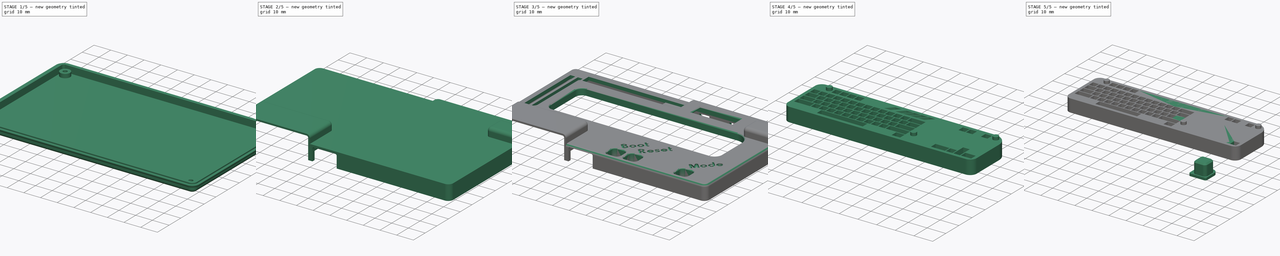
[diagram: build sequence overview — one tinted view per stage of 5, left to right]
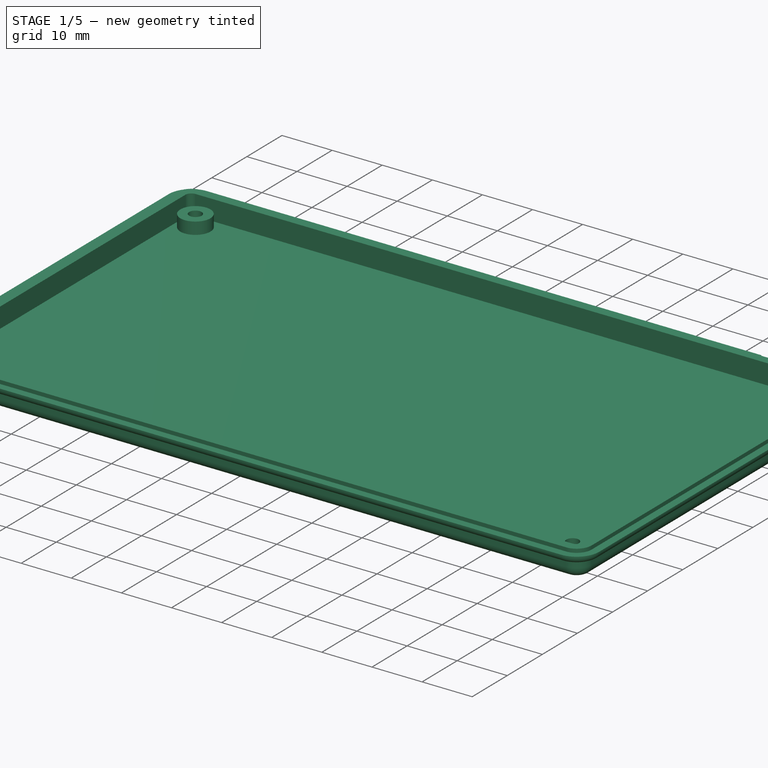
[diagram: stage 1 of 5 — iso view after this stage's code; geometry added in this stage tinted green]
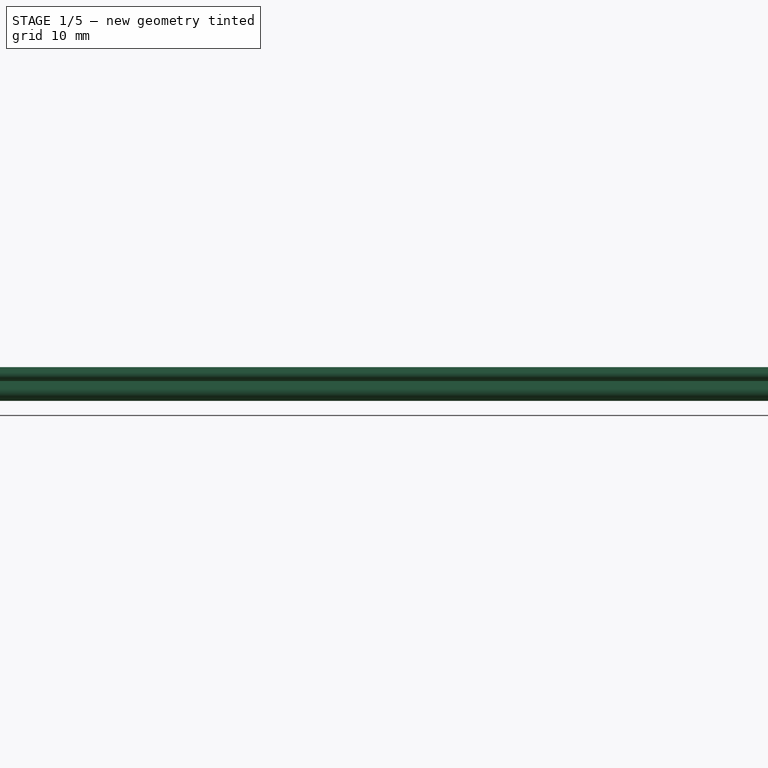
[diagram: stage 1 of 5 — front view after this stage's code; geometry added in this stage tinted green]
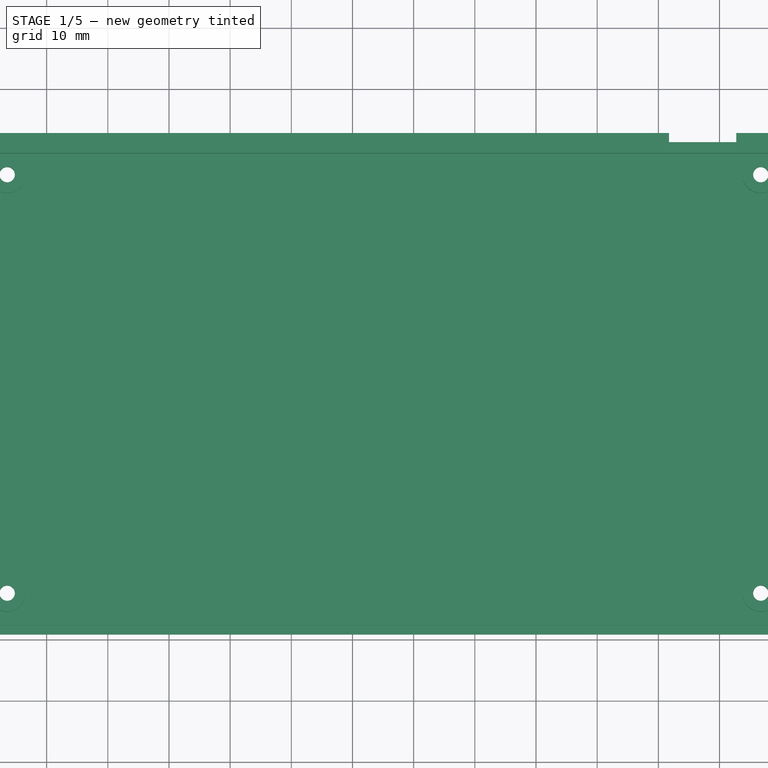
[diagram: stage 1 of 5 — top view after this stage's code; geometry added in this stage tinted green]
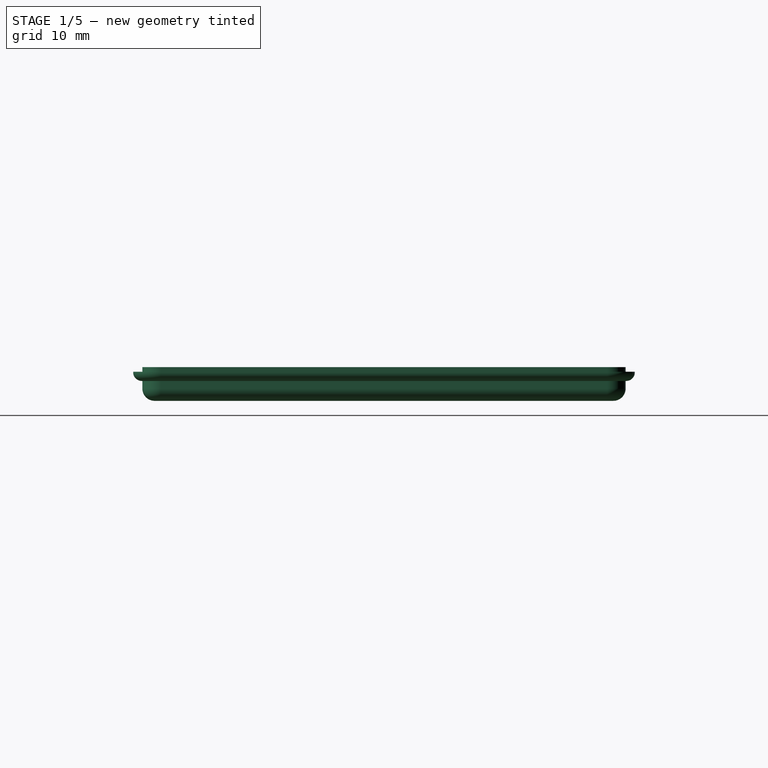
[diagram: stage 1 of 5 — right view after this stage's code; geometry added in this stage tinted green]
FCSTD DOCUMENT  (FreeCAD 1.0R39109 (Git))
Label: Decent Retro Keyboard Tester Enclosure
License: Creative Commons Attribution 4.0
LicenseURL: https://creativecommons.org/licenses/by/4.0/
objects: Sketcher::SketchObject×28, PartDesign::Pad×19, PartDesign::Pocket×18, Part::Part2DObjectPython×10, PartDesign::Body×6, PartDesign::Fillet×5, PartDesign::SubShapeBinder×3, PartDesign::Point×3, App::VRMLObject×1, PartDesign::Chamfer×1
note: 207 computed .brp shape members not serialized (recipe doc carries the construction recipe); baked Part::Feature solids carry a one-line shape summary decoded from their .brp

FEATURE [App::VRMLObject] DecentKeyboardTester
  Resources = DecentKeyboardTester/shapes3D/TS-1187A.wrl | DecentKeyboardTester/shapes3D/C_0402_1005Metric.wrl | DecentKeyboardTester/shapes3D/SK6805-EC15.wrl | DecentKeyboardTester/shapes3D/R_0805_2012Metric.wrl | DecentKeyboardTester/shapes3D/PinHeader_1x04_P2.54mm_Vertical.wrl | DecentKeyboardTester/shapes3D/0.91in OLED Module - Without Glass.wrl | DecentKeyboardTester/shapes3D/R_0402_1005Metric.wrl | DecentKeyboardTester/shapes3D/DSUB-15_Male_Horizontal_P2.77x2.84mm_EdgePinOffset4.94mm_Housed_MountingHolesOffset7.48mm.wrl | DecentKeyboardTester/shapes3D/Nexperia_CFP3_SOD-123W.wrl | DecentKeyboardTester/shapes3D/USB_Micro-B_Molex_47346-0001.wrl | DecentKeyboardTester/shapes3D/PinSocket_1x24_P2.54mm_Vertical.wrl | DecentKeyboardTester/shapes3D/SW_SPDT_PCM12.wrl | DecentKeyboardTester/shapes3D/SM3B-SRSS-TB.wrl | DecentKeyboardTester/shapes3D/BarrelJack_Horizontal.wrl | DecentKeyboardTester/shapes3D/SOT-23.wrl | DecentKeyboardTester/shapes3D/USB_A_Molex_67643_Horizontal.wrl | DecentKeyboardTester/shapes3D/PinSocket_1x22_P2.54mm_Vertical.wrl | DecentKeyboardTester/shapes3D/SOIC-8_5.275x5.275mm_P1.27mm.wrl | DecentKeyboardTester/shapes3D/BM3B-SRSS-TB.wrl | DecentKeyboardTester/shapes3D/QFN-56-1EP_7x7mm_P0.4mm_EP3.2x3.2mm.wrl | DecentKeyboardTester/shapes3D/SPARKFUN_QWIIC_RIGHT_ANGLE.wrl | DecentKeyboardTester/shapes3D/PinSocket_1x15_P2.54mm_Vertical.wrl | DecentKeyboardTester/shapes3D/Crystal_SMD_Abracon_ABM8G-4Pin_3.2x2.5mm.wrl | DecentKeyboardTester/shapes3D/PinSocket_1x18_P2.54mm_Vertical.wrl | DecentKeyboardTester/shapes3D/SOT-223.wrl
FEATURE [Sketcher::SketchObject] Sketch
  ArcFitTolerance = 1e-06
  AttachmentOffset = pos=(0,0,0.8) rot=(0,0,1;0rad)
  AttachmentSupport = -> [XY_Plane]
  FullyConstrained = true
  MakeInternals = false
  MapMode = 5
  Placement = pos=(0,0,0.8) rot=(0,0,1;0rad)
  sketch-geometry (10):
    g0: LineSegment StartX=18.1518 StartY=-21.7338 StartZ=0 EndX=18.1518 EndY=-94.7338 EndZ=0
    g1: LineSegment StartX=21.1518 StartY=-97.7338 StartZ=0 EndX=149.152 EndY=-97.7338 EndZ=0
    g2: LineSegment StartX=152.152 StartY=-94.7338 StartZ=0 EndX=152.152 EndY=-21.7338 EndZ=0
    g3: LineSegment StartX=149.152 StartY=-18.7338 StartZ=0 EndX=21.1518 EndY=-18.7338 EndZ=0
    g4: ArcOfCircle CenterX=21.1518 CenterY=-21.7338 CenterZ=0 NormalX=0 NormalY=0 NormalZ=1 AngleXU=0 Radius=3 StartAngle=1.5708 EndAngle=3.14159
    g5: ArcOfCircle CenterX=21.1518 CenterY=-94.7338 CenterZ=0 NormalX=0 NormalY=0 NormalZ=1 AngleXU=0 Radius=3 StartAngle=3.14159 EndAngle=4.71239
    g6: ArcOfCircle CenterX=149.152 CenterY=-94.7338 CenterZ=0 NormalX=0 NormalY=0 NormalZ=1 AngleXU=0 Radius=3 StartAngle=4.71239 EndAngle=6.28319
    g7: ArcOfCircle CenterX=149.152 CenterY=-21.7338 CenterZ=0 NormalX=0 NormalY=0 NormalZ=1 AngleXU=0 Radius=3 StartAngle=5e-16 EndAngle=1.5708
    g8: GeomPoint [constr] X=18.1518 Y=-18.7338 Z=0
    g9: GeomPoint [constr] X=152.152 Y=-97.7338 Z=0
  constraints (23):
    c: Tangent(g0,g4) = -1.5708
    c: Tangent(g0,g5) = -1.5708
    c: Tangent(g1,g5) = -1.5708
    c: Tangent(g1,g6) = -1.5708
    c: Tangent(g2,g6) = -1.5708
    c: Tangent(g2,g7) = -1.5708
    c: Tangent(g3,g7) = -1.5708
    c: Tangent(g3,g4) = -1.5708
    c: Vertical(g0)
    c: Vertical(g2)
    c: Horizontal(g1)
    c: Horizontal(g3)
    c: Equal(g4,g5)
    c: Equal(g5,g6)
    c: Equal(g6,g7)
    c: PointOnObject(g8,g0)
    c: PointOnObject(g8,g3)
    c: PointOnObject(g9,g1)
    c: PointOnObject(g9,g2)
    c: Radius(g5) = 3
    c: DistanceX(g0,g2) = 134
    c: DistanceY(g1,g3) = 79
    c: Block(g3)
FEATURE [PartDesign::Pad] Pad
  Direction = (0,0,1)
  Length = 5.5
  Length2 = 10
  Profile = -> Sketch
  ReferenceAxis = -> Sketch [N_Axis]
  Reversed = true
  Suppressed = false
  Type = 0
FEATURE [PartDesign::Fillet] Fillet
  Base = -> Pad [Edge10]
  BaseFeature = -> Pad
  Radius = 2
  SupportTransform = false
  Suppressed = false
  UseAllEdges = false
FEATURE [Sketcher::SketchObject] Sketch001
  ArcFitTolerance = 1e-06
  AttachmentSupport = -> [Fillet]
  ExternalGeometry = -> [Fillet]
  FullyConstrained = true
  MakeInternals = false
  MapMode = 5
  Placement = pos=(0,0,0.8) rot=(0,0,1;0rad)
  sketch-geometry (6):
    g0: Circle CenterX=23.5568 CenterY=-24.0198 CenterZ=0 NormalX=0 NormalY=0 NormalZ=1 AngleXU=0 Radius=1.25
    g1: Circle CenterX=146.747 CenterY=-24.0198 CenterZ=0 NormalX=0 NormalY=0 NormalZ=1 AngleXU=0 Radius=1.25
    g2: Circle CenterX=146.747 CenterY=-92.4478 CenterZ=0 NormalX=0 NormalY=0 NormalZ=1 AngleXU=0 Radius=1.25
    g3: Circle CenterX=23.5568 CenterY=-92.4478 CenterZ=0 NormalX=0 NormalY=0 NormalZ=1 AngleXU=0 Radius=1.25
    g4: LineSegment [constr] StartX=85.1518 StartY=-97.7338 StartZ=0 EndX=85.1518 EndY=-18.7338 EndZ=0
    g5: LineSegment [constr] StartX=152.152 StartY=-58.2338 StartZ=0 EndX=18.1518 EndY=-58.2338 EndZ=0
  constraints (14):
    c: Equal(g3,g0)
    c: Equal(g3,g2)
    c: Equal(g1,g3)
    c: Diameter(g3) = 2.5
    c: Vertical(g1,g2)
    c: Horizontal(g3,g2)
    c: DistanceX(g0,g1) = 123.19
    c: DistanceY(g2,g1) = 68.428
    c: Symmetric(g-6,g-6,g4)
    c: Symmetric(g-4,g-4,g4)
    c: Symmetric(g-5,g-5,g5)
    c: Symmetric(g-3,g-3,g5)
    c: Symmetric(g0,g1,g4)
    c: Symmetric(g3,g0,g5)
FEATURE [PartDesign::Pocket] Pocket
  BaseFeature = -> Fillet
  Direction = (0,0,-1)
  Length = 5
  Length2 = 5
  Profile = -> Sketch001
  ReferenceAxis = -> Sketch001 [N_Axis]
  Suppressed = false
  Type = 1
FEATURE [Sketcher::SketchObject] Sketch002
  ArcFitTolerance = 1e-06
  AttachmentSupport = -> [Pocket]
  ExternalGeometry = -> [Pocket]
  FullyConstrained = true
  MakeInternals = false
  MapMode = 5
  Placement = pos=(0,0,0.8) rot=(0,0,1;0rad)
  sketch-geometry (10):
    g0: LineSegment StartX=19.9518 StartY=-21.7338 StartZ=0 EndX=19.9518 EndY=-94.7338 EndZ=0
    g1: LineSegment StartX=21.1518 StartY=-95.9338 StartZ=0 EndX=149.152 EndY=-95.9338 EndZ=0
    g2: LineSegment StartX=150.352 StartY=-94.7338 StartZ=0 EndX=150.352 EndY=-21.7338 EndZ=0
    g3: LineSegment StartX=149.152 StartY=-20.5338 StartZ=0 EndX=21.1518 EndY=-20.5338 EndZ=0
    g4: ArcOfCircle CenterX=21.1518 CenterY=-21.7338 CenterZ=0 NormalX=0 NormalY=0 NormalZ=1 AngleXU=0 Radius=1.2 StartAngle=1.5708 EndAngle=3.14159
    g5: ArcOfCircle CenterX=21.1518 CenterY=-94.7338 CenterZ=0 NormalX=0 NormalY=0 NormalZ=1 AngleXU=0 Radius=1.2 StartAngle=3.14159 EndAngle=4.71239
    g6: ArcOfCircle CenterX=149.152 CenterY=-94.7338 CenterZ=0 NormalX=0 NormalY=0 NormalZ=1 AngleXU=0 Radius=1.2 StartAngle=4.71239 EndAngle=6.28319
    g7: ArcOfCircle CenterX=149.152 CenterY=-21.7338 CenterZ=0 NormalX=0 NormalY=0 NormalZ=1 AngleXU=0 Radius=1.2 StartAngle=-9e-16 EndAngle=1.5708
    g8: GeomPoint [constr] X=19.9518 Y=-20.5338 Z=0
    g9: GeomPoint [constr] X=150.352 Y=-95.9338 Z=0
  constraints (22):
    c: Tangent(g0,g4) = -1.5708
    c: Tangent(g0,g5) = -1.5708
    c: Tangent(g1,g5) = -1.5708
    c: Tangent(g1,g6) = -1.5708
    c: Tangent(g2,g6) = -1.5708
    c: Tangent(g2,g7) = -1.5708
    c: Tangent(g3,g7) = -1.5708
    c: Tangent(g3,g4) = -1.5708
    c: Vertical(g0)
    c: Vertical(g2)
    c: Horizontal(g1)
    c: Horizontal(g3)
    c: Equal(g4,g5)
    c: Equal(g5,g6)
    c: Equal(g6,g7)
    c: PointOnObject(g8,g0)
    c: PointOnObject(g8,g3)
    c: PointOnObject(g9,g1)
    c: PointOnObject(g9,g2)
    c: Coincident(g6,g-5)
    c: Coincident(g-3,g4)
    c: DistanceX(g2,g-4) = 1.8
FEATURE [PartDesign::Pocket] Pocket001
  BaseFeature = -> Pocket
  Direction = (0,0,-1)
  Length = 4
  Length2 = 5
  Profile = -> Sketch002
  ReferenceAxis = -> Sketch002 [N_Axis]
  Suppressed = false
  Type = 0
FEATURE [Sketcher::SketchObject] Sketch003
  ArcFitTolerance = 1e-06
  AttachmentSupport = -> [Pocket001]
  ExternalGeometry = -> [Pocket001]
  FullyConstrained = true
  MakeInternals = false
  MapMode = 5
  Placement = pos=(0,0,-3.2) rot=(0,0,1;0rad)
  sketch-geometry (8):
    g0: Circle CenterX=23.5568 CenterY=-24.0198 CenterZ=0 NormalX=0 NormalY=0 NormalZ=1 AngleXU=0 Radius=3
    g1: Circle CenterX=146.747 CenterY=-24.0198 CenterZ=0 NormalX=0 NormalY=0 NormalZ=1 AngleXU=0 Radius=3
    g2: Circle CenterX=146.747 CenterY=-92.4478 CenterZ=0 NormalX=0 NormalY=0 NormalZ=1 AngleXU=0 Radius=3
    g3: Circle CenterX=23.5568 CenterY=-92.4478 CenterZ=0 NormalX=0 NormalY=0 NormalZ=1 AngleXU=0 Radius=3
    g4: Circle CenterX=23.5568 CenterY=-24.0198 CenterZ=0 NormalX=0 NormalY=0 NormalZ=1 AngleXU=0 Radius=1.25
    g5: Circle CenterX=146.747 CenterY=-24.0198 CenterZ=0 NormalX=0 NormalY=0 NormalZ=1 AngleXU=0 Radius=1.25
    g6: Circle CenterX=146.747 CenterY=-92.4478 CenterZ=0 NormalX=0 NormalY=0 NormalZ=1 AngleXU=0 Radius=1.25
    g7: Circle CenterX=23.5568 CenterY=-92.4478 CenterZ=0 NormalX=0 NormalY=0 NormalZ=1 AngleXU=0 Radius=1.25
  constraints (16):
    c: Diameter(g0) = 6
    c: Coincident(g0,g-4)
    c: Coincident(g1,g-3)
    c: Coincident(g2,g-6)
    c: Coincident(g3,g-5)
    c: Equal(g0,g3)
    c: Equal(g0,g1)
    c: Equal(g0,g2)
    c: Coincident(g4,g0)
    c: Coincident(g5,g1)
    c: Coincident(g6,g2)
    c: Coincident(g7,g3)
    c: Equal(g4,g-4)
    c: Equal(g5,g-3)
    c: Equal(g6,g-6)
    c: Equal(g7,g-5)
FEATURE [PartDesign::Pad] Pad001
  BaseFeature = -> Pocket001
  Direction = (0,0,1)
  Length = 2.4
  Length2 = 10
  Profile = -> Sketch003
  ReferenceAxis = -> Sketch003 [N_Axis]
  Suppressed = false
  Type = 0
FEATURE [Sketcher::SketchObject] Sketch004
  ArcFitTolerance = 1e-06
  AttachmentSupport = -> [Pad001]
  FullyConstrained = true
  MakeInternals = false
  MapMode = 5
  Placement = pos=(0,0,-4.7) rot=(1,0,0;3.14159rad)
  sketch-geometry (4):
    g0: Circle CenterX=23.5568 CenterY=92.4478 CenterZ=0 NormalX=0 NormalY=0 NormalZ=1 AngleXU=0 Radius=2.25
    g1: Circle CenterX=146.747 CenterY=92.4478 CenterZ=0 NormalX=0 NormalY=0 NormalZ=1 AngleXU=0 Radius=2.25
    g2: Circle CenterX=146.747 CenterY=24.0198 CenterZ=0 NormalX=0 NormalY=0 NormalZ=1 AngleXU=0 Radius=2.25
    g3: Circle CenterX=23.5568 CenterY=24.0198 CenterZ=0 NormalX=0 NormalY=0 NormalZ=1 AngleXU=0 Radius=2.25
  constraints (8):
    c: Coincident(g0,g-3)
    c: Coincident(g1,g-4)
    c: Coincident(g2,g-5)
    c: Coincident(g3,g-6)
    c: Diameter(g0) = 4.5
    c: Equal(g0,g1)
    c: Equal(g0,g3)
    c: Equal(g0,g2)
FEATURE [PartDesign::Pocket] Pocket002
  BaseFeature = -> Pad001
  Direction = (0,0,1)
  Length = 1.5
  Length2 = 5
  Profile = -> Sketch004
  ReferenceAxis = -> Sketch004 [N_Axis]
  Suppressed = false
  Type = 0
FEATURE [Sketcher::SketchObject] Sketch005
  ArcFitTolerance = 1e-06
  AttachmentSupport = -> [Pocket002]
  FullyConstrained = true
  MakeInternals = false
  MapMode = 5
  Placement = pos=(0,0,-4.7) rot=(1,0,0;3.14159rad)
  sketch-geometry (5):
    g0: Circle CenterX=33.1518 CenterY=88.7338 CenterZ=0 NormalX=0 NormalY=0 NormalZ=1 AngleXU=0 Radius=6.25
    g1: Circle CenterX=137.152 CenterY=88.7338 CenterZ=0 NormalX=0 NormalY=0 NormalZ=1 AngleXU=0 Radius=6.25
    g2: Circle CenterX=137.152 CenterY=27.7338 CenterZ=0 NormalX=0 NormalY=0 NormalZ=1 AngleXU=0 Radius=6.25
    g3: Circle CenterX=33.1518 CenterY=27.7338 CenterZ=0 NormalX=0 NormalY=0 NormalZ=1 AngleXU=0 Radius=6.25
    g4: LineSegment [constr] StartX=85.1518 StartY=20.7338 StartZ=0 EndX=85.1518 EndY=95.7338 EndZ=0
  constraints (13):
    c: Vertical(g0,g3)
    c: Vertical(g1,g2)
    c: Horizontal(g3,g2)
    c: Equal(g0,g1)
    c: Equal(g0,g3)
    c: Equal(g0,g2)
    c: Symmetric(g-4,g-4,g4)
    c: Symmetric(g-3,g-3,g4)
    c: Symmetric(g0,g1,g4)
    c: Diameter(g0) = 12.5
    c: DistanceX(g0,g4) = 52
    c: DistanceY(g0,g4) = 7
    c: DistanceY(g4,g3) = 7
FEATURE [PartDesign::Pocket] Pocket003  label="Rubber feet"
  BaseFeature = -> Pocket002
  Direction = (0,0,1)
  Length = 0.8
  Length2 = 5
  Profile = -> Sketch005
  ReferenceAxis = -> Sketch005 [N_Axis]
  Suppressed = false
  Type = 0
FEATURE [PartDesign::Body] Body001  label="Top"
  AllowCompound = false
  Group = -> [Binder,Sketch006,Pad002,Sketch007,Pad003,Fillet001,Sketch008,Pocket004,Sketch009,Pocket005,Sketch010,Pocket006,Sketch011,Pocket007,Sketch012,Pocket008,Sketch013,Pocket009,Sketch014,Pocket010,Chamfer,Fillet002,Sketch015,Pad004,DatumPoint,ShapeString,DatumPoint001,DatumPoint002,ShapeString001,ShapeString002,Pocket012,Pocket013,Pocket014,Sketch021,Pocket015,Sketch022,Pad010,Sketch023,Pad011,+1 more]
  Origin = -> Origin001
  Tip = -> Fillet003
FEATURE [Sketcher::SketchObject] Sketch024
  ArcFitTolerance = 1e-06
  AttachmentOffset = pos=(0,0,-0.75) rot=(0,0,1;0rad)
  AttachmentSupport = -> [Pocket003]
  ExternalGeometry = -> [Pocket003]
  FullyConstrained = true
  MakeInternals = false
  MapMode = 5
  Placement = pos=(0,0,0.05) rot=(0,0,1;0rad)
  sketch-geometry (21):
    g0: ArcOfCircle CenterX=149.152 CenterY=-21.7338 CenterZ=0 NormalX=0 NormalY=0 NormalZ=1 AngleXU=0 Radius=3 StartAngle=2e-16 EndAngle=1.5708
    g1: LineSegment StartX=152.152 StartY=-21.7338 StartZ=0 EndX=152.152 EndY=-94.7338 EndZ=0
    g2: ArcOfCircle CenterX=149.152 CenterY=-94.7338 CenterZ=0 NormalX=0 NormalY=0 NormalZ=1 AngleXU=0 Radius=3 StartAngle=4.71239 EndAngle=6.28319
    g3: LineSegment StartX=149.152 StartY=-97.7338 StartZ=0 EndX=21.1518 EndY=-97.7338 EndZ=0
    g4: ArcOfCircle CenterX=21.1518 CenterY=-94.7338 CenterZ=0 NormalX=0 NormalY=0 NormalZ=1 AngleXU=0 Radius=3 StartAngle=3.14159 EndAngle=4.71239
    g5: LineSegment StartX=18.1518 StartY=-94.7338 StartZ=0 EndX=18.1518 EndY=-21.7338 EndZ=0
    g6: ArcOfCircle CenterX=21.1518 CenterY=-21.7338 CenterZ=0 NormalX=0 NormalY=0 NormalZ=1 AngleXU=0 Radius=3 StartAngle=1.5708 EndAngle=3.14159
    g7: ArcOfCircle CenterX=149.152 CenterY=-21.7338 CenterZ=0 NormalX=0 NormalY=0 NormalZ=1 AngleXU=0 Radius=4.5 StartAngle=1e-16 EndAngle=1.5708
    g8: LineSegment StartX=153.652 StartY=-21.7338 StartZ=0 EndX=153.652 EndY=-94.7338 EndZ=0
    g9: ArcOfCircle CenterX=149.152 CenterY=-94.7338 CenterZ=0 NormalX=0 NormalY=0 NormalZ=1 AngleXU=0 Radius=4.5 StartAngle=4.71239 EndAngle=6.28319
    g10: LineSegment StartX=149.152 StartY=-99.2338 StartZ=0 EndX=21.1518 EndY=-99.2338 EndZ=0
    g11: ArcOfCircle CenterX=21.1518 CenterY=-94.7338 CenterZ=0 NormalX=0 NormalY=0 NormalZ=1 AngleXU=0 Radius=4.5 StartAngle=3.14159 EndAngle=4.71239
    g12: LineSegment StartX=16.6518 StartY=-94.7338 StartZ=0 EndX=16.6518 EndY=-21.7338 EndZ=0
    g13: ArcOfCircle CenterX=21.1518 CenterY=-21.7338 CenterZ=0 NormalX=0 NormalY=0 NormalZ=1 AngleXU=0 Radius=4.5 StartAngle=1.5708 EndAngle=3.14159
    g14: LineSegment StartX=21.1518 StartY=-17.2338 StartZ=0 EndX=131.737 EndY=-17.2338 EndZ=0
    g15: LineSegment StartX=142.737 StartY=-17.2338 StartZ=0 EndX=149.152 EndY=-17.2338 EndZ=0
    g16: LineSegment StartX=21.1518 StartY=-18.7338 StartZ=0 EndX=131.737 EndY=-18.7338 EndZ=0
    g17: LineSegment StartX=142.737 StartY=-18.7338 StartZ=0 EndX=149.152 EndY=-18.7338 EndZ=0
    g18: LineSegment StartX=131.737 StartY=-17.2338 StartZ=0 EndX=131.737 EndY=-18.7338 EndZ=0
    g19: LineSegment StartX=142.737 StartY=-17.2338 StartZ=0 EndX=142.737 EndY=-18.7338 EndZ=0
    g20: GeomPoint [constr] X=137.237 Y=-18.7338 Z=0
  constraints (51):
    c: Coincident(g-3,g16)
    c: Coincident(g17,g-3)
    c: Coincident(g17,g0) = 1.5708
    c: Coincident(g0,g-4)
    c: Coincident(g0,g1)
    c: Coincident(g1,g-4)
    c: Tangent(g1,g2) = 1.5708
    c: Coincident(g2,g-5)
    c: Coincident(g2,g3)
    c: Coincident(g3,g-5)
    c: Tangent(g3,g4) = 1.5708
    c: Coincident(g4,g-6)
    c: Coincident(g4,g5)
    c: Coincident(g5,g-6)
    c: Tangent(g5,g6) = 1.5708
    c: Coincident(g6,g16)
    c: Coincident(g15,g7) = 1.5708
    c: Coincident(g7,g8)
    c: Vertical(g8)
    c: Tangent(g8,g9) = 1.5708
    c: Coincident(g9,g10)
    c: Horizontal(g10)
    c: Tangent(g10,g11) = 1.5708
    c: Coincident(g11,g12)
    c: Vertical(g12)
    c: Tangent(g12,g13) = 1.5708
    c: Coincident(g13,g14)
    c: Coincident(g6,g13)
    c: Coincident(g11,g4)
    c: Coincident(g7,g0)
    c: Coincident(g9,g2)
    c: DistanceY(g16,g14) = 1.5
    c: Vertical(g9,g2)
    c: Horizontal(g11,g4)
    c: Horizontal(g0,g7)
    c: Horizontal(g14)
    c: Vertical(g0,g7)
    c: PointOnObject(g17,g-3)
    c: PointOnObject(g16,g-3)
    c: Vertical(g13,g6)
    c: Horizontal(g15)
    c: Coincident(g18,g14)
    c: Coincident(g18,g16)
    c: Coincident(g19,g15)
    c: Coincident(g19,g17)
    c: Vertical(g18)
    c: Vertical(g19)
    c: DistanceX(g14,g15) = 11
    c: Horizontal(g0,g7)
    c: Symmetric(g16,g17,g20)
    c: DistanceX(g20,g0) = 14.915
FEATURE [PartDesign::Pad] Pad012  label="Lower rim"
  BaseFeature = -> Pocket003
  Direction = (0,0,1)
  Length = 1.5
  Length2 = 10
  Profile = -> Sketch024
  ReferenceAxis = -> Sketch024 [N_Axis]
  Reversed = true
  Suppressed = false
  Type = 0
FEATURE [PartDesign::Fillet] Fillet004
  Base = -> Pad012 [Edge87]
  BaseFeature = -> Pad012
  Radius = 1.4
  SupportTransform = false
  Suppressed = false
  UseAllEdges = false
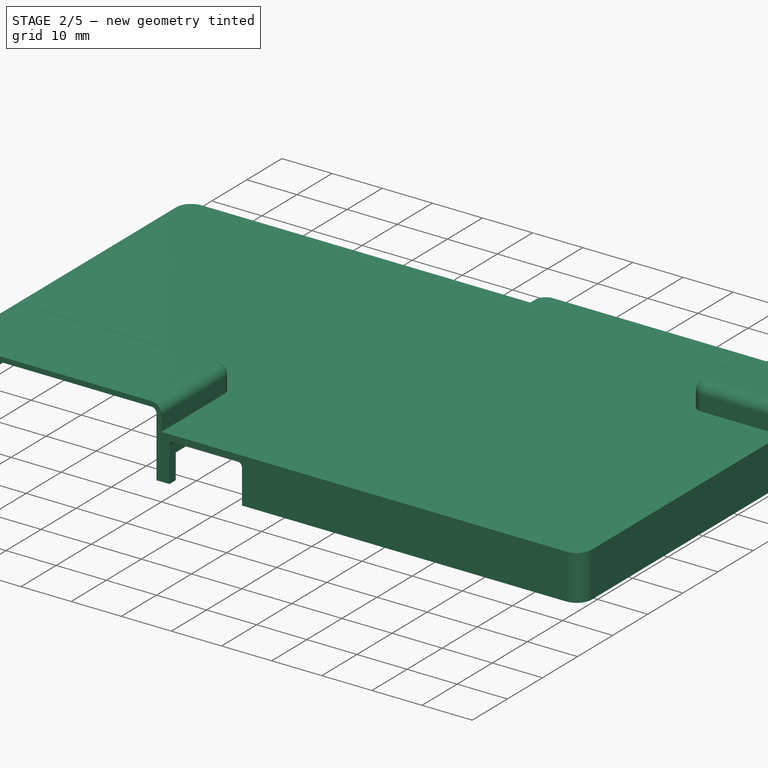
[diagram: stage 2 of 5 — iso view after this stage's code; geometry added in this stage tinted green]
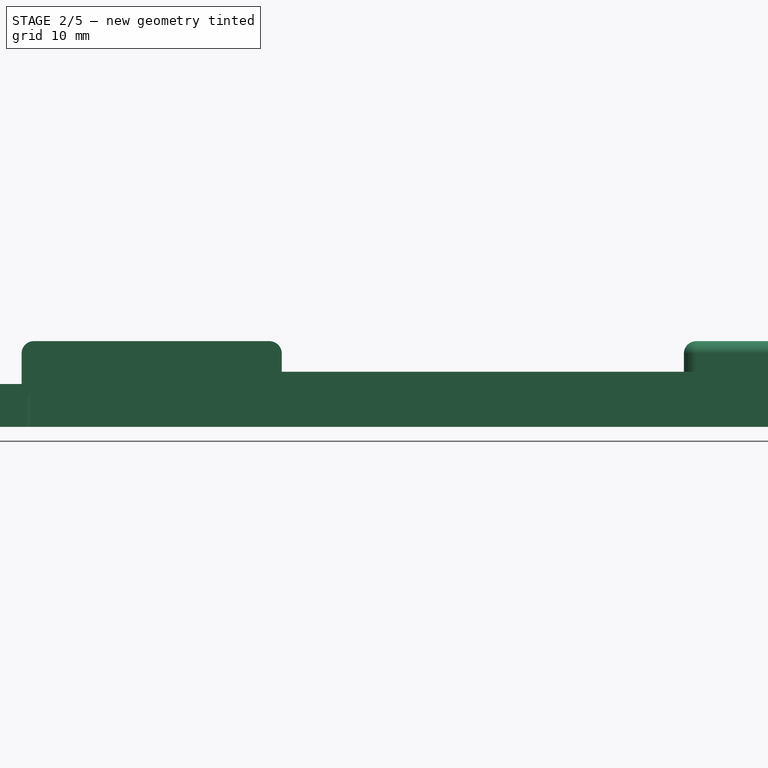
[diagram: stage 2 of 5 — front view after this stage's code; geometry added in this stage tinted green]
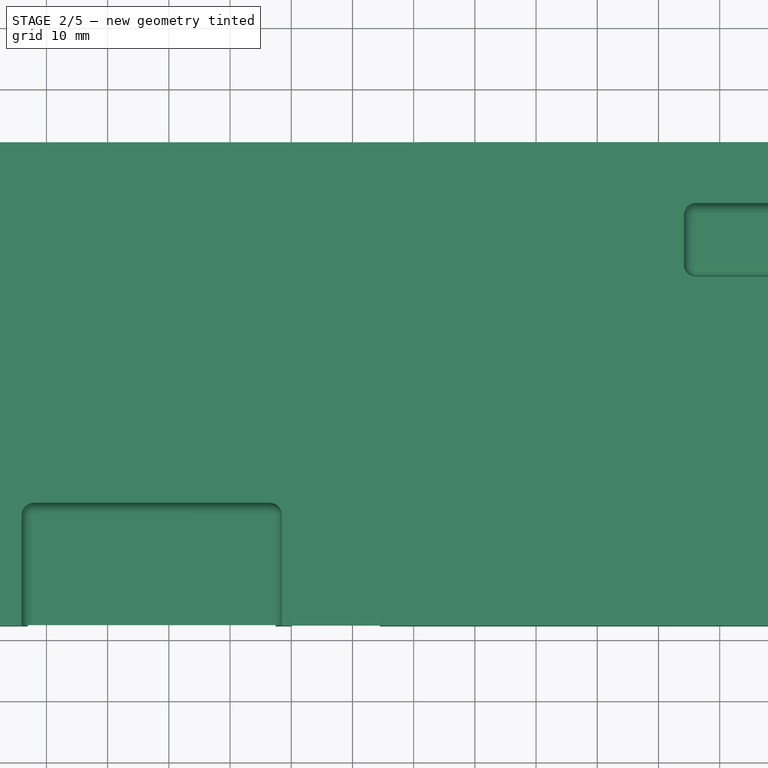
[diagram: stage 2 of 5 — top view after this stage's code; geometry added in this stage tinted green]
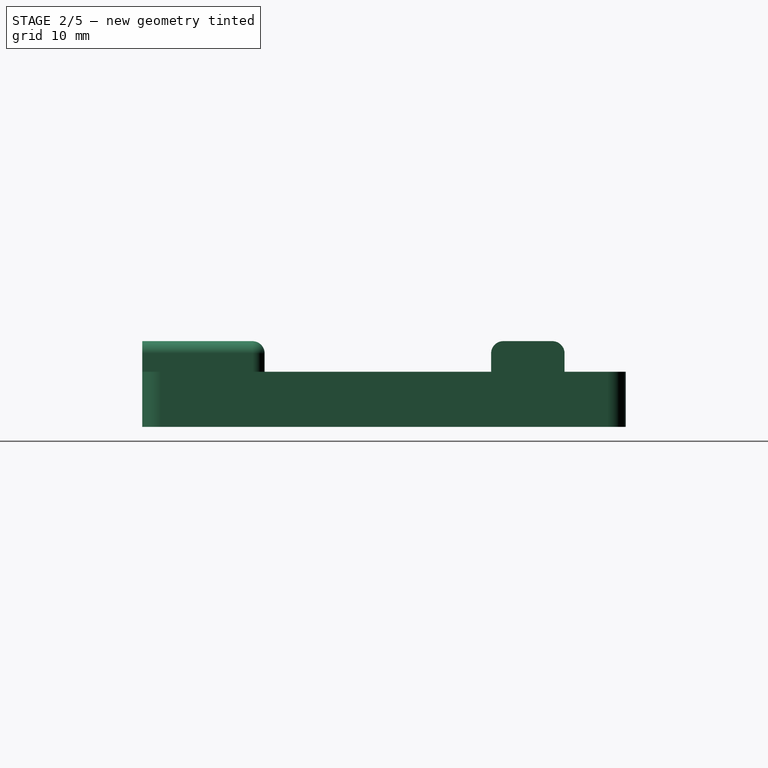
[diagram: stage 2 of 5 — right view after this stage's code; geometry added in this stage tinted green]
FEATURE [PartDesign::SubShapeBinder] Binder
  BindCopyOnChange = 0
  BindMode = 0
  ClaimChildren = false
  Context = -> Body001 [Binder.]
  Fuse = false
  MakeFace = true
  OffsetFill = false
  OffsetIntersection = false
  OffsetJoinType = 0
  OffsetOpenResult = false
  PartialLoad = false
  Relative = true
  Support = -> [Body]
  _Version = 2
FEATURE [Sketcher::SketchObject] Sketch006
  ArcFitTolerance = 1e-06
  AttachmentSupport = -> [Binder]
  ExternalGeometry = -> [Binder]
  FullyConstrained = true
  MakeInternals = false
  MapMode = 5
  Placement = pos=(0,0,0.8) rot=(0,0,1;0rad)
  sketch-geometry (8):
    g0: LineSegment StartX=18.1518 StartY=-21.7338 StartZ=0 EndX=18.1518 EndY=-94.7338 EndZ=0
    g1: LineSegment StartX=21.1518 StartY=-18.7338 StartZ=0 EndX=149.152 EndY=-18.7338 EndZ=0
    g2: LineSegment StartX=21.1518 StartY=-97.7338 StartZ=0 EndX=149.152 EndY=-97.7338 EndZ=0
    g3: LineSegment StartX=152.152 StartY=-21.7338 StartZ=0 EndX=152.152 EndY=-94.7338 EndZ=0
    g4: ArcOfCircle CenterX=21.1518 CenterY=-21.7338 CenterZ=0 NormalX=0 NormalY=0 NormalZ=1 AngleXU=0 Radius=3 StartAngle=1.5708 EndAngle=3.14159
    g5: ArcOfCircle CenterX=149.152 CenterY=-21.7338 CenterZ=0 NormalX=0 NormalY=0 NormalZ=1 AngleXU=0 Radius=3 StartAngle=2e-16 EndAngle=1.5708
    g6: ArcOfCircle CenterX=149.152 CenterY=-94.7338 CenterZ=0 NormalX=0 NormalY=0 NormalZ=1 AngleXU=0 Radius=3 StartAngle=4.71239 EndAngle=6.28319
    g7: ArcOfCircle CenterX=21.1518 CenterY=-94.7338 CenterZ=0 NormalX=0 NormalY=0 NormalZ=1 AngleXU=0 Radius=3 StartAngle=3.14159 EndAngle=4.71239
  constraints (20):
    c: Coincident(g1,g-3)
    c: Coincident(g1,g-4)
    c: Coincident(g0,g-3)
    c: Coincident(g0,g-6)
    c: Coincident(g2,g-6)
    c: Coincident(g2,g-5)
    c: Coincident(g3,g-4)
    c: Coincident(g3,g-5)
    c: Coincident(g4,g-3)
    c: Coincident(g4,g0)
    c: Coincident(g5,g-4)
    c: Coincident(g5,g1)
    c: Coincident(g6,g-5)
    c: Coincident(g6,g3)
    c: Coincident(g7,g-6)
    c: Coincident(g7,g2)
    c: Vertical(g4,g4)
    c: Horizontal(g7,g7)
    c: Vertical(g6,g6)
    c: Horizontal(g5,g5)
FEATURE [PartDesign::Pad] Pad002
  Direction = (0,0,1)
  Length = 9
  Length2 = 10
  Profile = -> Sketch006
  ReferenceAxis = -> Sketch006 [N_Axis]
  Suppressed = false
  Type = 0
FEATURE [Sketcher::SketchObject] Sketch007
  ArcFitTolerance = 1e-06
  AttachmentSupport = -> [Pad002]
  ExternalGeometry = -> [Pad002]
  FullyConstrained = true
  MakeInternals = false
  MapMode = 5
  Placement = pos=(0,0,9.8) rot=(0,0,1;0rad)
  sketch-geometry (12):
    g0: ArcOfCircle CenterX=27.9418 CenterY=-79.7338 CenterZ=0 NormalX=0 NormalY=0 NormalZ=1 AngleXU=0 Radius=2 StartAngle=1.5708 EndAngle=3.14159
    g1: ArcOfCircle CenterX=66.4418 CenterY=-79.7338 CenterZ=0 NormalX=0 NormalY=0 NormalZ=1 AngleXU=0 Radius=2 StartAngle=2e-16 EndAngle=1.5708
    g2: ArcOfCircle CenterX=136.152 CenterY=-30.7338 CenterZ=0 NormalX=0 NormalY=0 NormalZ=1 AngleXU=0 Radius=2 StartAngle=1.5708 EndAngle=3.14159
    g3: ArcOfCircle CenterX=136.152 CenterY=-38.7338 CenterZ=0 NormalX=0 NormalY=0 NormalZ=1 AngleXU=0 Radius=2 StartAngle=3.14159 EndAngle=4.71239
    g4: LineSegment StartX=136.152 StartY=-28.7338 StartZ=0 EndX=152.152 EndY=-28.7338 EndZ=0
    g5: LineSegment StartX=27.9418 StartY=-77.7338 StartZ=0 EndX=66.4418 EndY=-77.7338 EndZ=0
    g6: LineSegment StartX=134.152 StartY=-30.7338 StartZ=0 EndX=134.152 EndY=-38.7338 EndZ=0
    g7: LineSegment StartX=136.152 StartY=-40.7338 StartZ=0 EndX=152.152 EndY=-40.7338 EndZ=0
    g8: LineSegment StartX=25.9418 StartY=-79.7338 StartZ=0 EndX=25.9418 EndY=-97.7338 EndZ=0
    g9: LineSegment StartX=68.4418 StartY=-79.7338 StartZ=0 EndX=68.4418 EndY=-97.7338 EndZ=0
    g10: LineSegment StartX=25.9418 StartY=-97.7338 StartZ=0 EndX=68.4418 EndY=-97.7338 EndZ=0
    g11: LineSegment StartX=152.152 StartY=-40.7338 StartZ=0 EndX=152.152 EndY=-28.7338 EndZ=0
  constraints (39):
    c: Horizontal(g2,g2)
    c: Horizontal(g3,g3)
    c: Horizontal(g0,g0)
    c: Horizontal(g1,g1)
    c: Vertical(g0,g0)
    c: Vertical(g1,g1)
    c: Vertical(g3,g3)
    c: Vertical(g2,g2)
    c: Vertical(g2,g3)
    c: Coincident(g5,g0)
    c: Coincident(g5,g1)
    c: Horizontal(g5)
    c: Tangent(g6,g2) = -1.5708
    c: Coincident(g6,g3)
    c: Coincident(g7,g3)
    c: Horizontal(g7)
    c: Coincident(g9,g1)
    c: Vertical(g9)
    c: Coincident(g10,g8)
    c: Coincident(g10,g9)
    c: Horizontal(g10)
    c: Coincident(g11,g7)
    c: Coincident(g11,g4)
    c: Vertical(g11)
    c: Coincident(g0,g8)
    c: Radius(g0) = 2
    c: Vertical(g8)
    c: Equal(g0,g1)
    c: Horizontal(g4)
    c: Coincident(g2,g4)
    c: Equal(g0,g2)
    c: DistanceX(g2,g4) = 18
    c: DistanceY(g8,g0) = 20
    c: PointOnObject(g9,g-3)
    c: PointOnObject(g7,g-6)
    c: DistanceY(g11,g11) = 12
    c: DistanceY(g4,g-6) = 7
    c: DistanceX(g10,g10) = 42.5
    c: DistanceX(g-4,g8) = 7.79
FEATURE [PartDesign::Pad] Pad003  label="Port bumps"
  BaseFeature = -> Pad002
  Direction = (0,0,1)
  Length = 5
  Length2 = 10
  Profile = -> Sketch007
  ReferenceAxis = -> Sketch007 [N_Axis]
  Suppressed = false
  Type = 0
FEATURE [PartDesign::Fillet] Fillet001
  Base = -> Pad003 [Edge56,Edge45]
  BaseFeature = -> Pad003
  Radius = 2
  Refine = true
  SupportTransform = false
  Suppressed = false
  UseAllEdges = false
FEATURE [Sketcher::SketchObject] Sketch008
  ArcFitTolerance = 1e-06
  AttachmentSupport = -> [Fillet001]
  ExternalGeometry = -> [Fillet001]
  FullyConstrained = true
  MakeInternals = false
  MapMode = 5
  Placement = pos=(0,0,9.8) rot=(0,0,1;0rad)
  sketch-geometry (12):
    g0: LineSegment StartX=25.9418 StartY=-97.7338 StartZ=0 EndX=25.9418 EndY=-71.7338 EndZ=0
    g1: LineSegment StartX=18.1518 StartY=-18.7338 StartZ=0 EndX=18.1518 EndY=-97.7338 EndZ=0
    g2: LineSegment StartX=18.1518 StartY=-97.7338 StartZ=0 EndX=25.9418 EndY=-97.7338 EndZ=0
    g3: LineSegment StartX=89.1518 StartY=-20.7338 StartZ=0 EndX=89.1518 EndY=-29.7338 EndZ=0
    g4: LineSegment StartX=18.1518 StartY=-18.7338 StartZ=0 EndX=91.1518 EndY=-18.7338 EndZ=0
    g5: LineSegment StartX=31.9418 StartY=-31.7338 StartZ=0 EndX=87.1518 EndY=-31.7338 EndZ=0
    g6: LineSegment StartX=29.9418 StartY=-33.7338 StartZ=0 EndX=29.9418 EndY=-67.7338 EndZ=0
    g7: ArcOfCircle CenterX=31.9418 CenterY=-33.7338 CenterZ=0 NormalX=0 NormalY=0 NormalZ=1 AngleXU=0 Radius=2 StartAngle=1.5708 EndAngle=3.14159
    g8: ArcOfCircle CenterX=87.1518 CenterY=-29.7338 CenterZ=0 NormalX=0 NormalY=0 NormalZ=1 AngleXU=0 Radius=2 StartAngle=4.71239 EndAngle=6.28319
    g9: ArcOfCircle CenterX=27.9418 CenterY=-67.7338 CenterZ=0 NormalX=0 NormalY=0 NormalZ=1 AngleXU=0 Radius=2 StartAngle=4.71239 EndAngle=6.28319
    g10: ArcOfCircle CenterX=27.9418 CenterY=-71.7338 CenterZ=0 NormalX=0 NormalY=0 NormalZ=1 AngleXU=0 Radius=2 StartAngle=1.5708 EndAngle=3.14159
    g11: ArcOfCircle CenterX=91.1518 CenterY=-20.7338 CenterZ=0 NormalX=0 NormalY=0 NormalZ=1 AngleXU=0 Radius=2 StartAngle=1.5708 EndAngle=3.14159
  constraints (41):
    c: Vertical(g0)
    c: Vertical(g1)
    c: Horizontal(g1,g0)
    c: Coincident(g2,g1)
    c: Coincident(g2,g0)
    c: Vertical(g3)
    c: Coincident(g4,g1)
    c: Horizontal(g5)
    c: Vertical(g6)
    c: Vertical(g10,g10)
    c: Vertical(g9,g9)
    c: Vertical(g7,g7)
    c: Vertical(g8,g8)
    c: Horizontal(g10,g10)
    c: Horizontal(g9,g9)
    c: Horizontal(g7,g7)
    c: Horizontal(g8,g8)
    c: Equal(g10,g9)
    c: Equal(g10,g7)
    c: Equal(g10,g8)
    c: Coincident(g10,g0)
    c: Radius(g10) = 2
    c: Coincident(g9,g6)
    c: Coincident(g7,g5)
    c: Coincident(g8,g5)
    c: Coincident(g8,g3)
    c: Coincident(g6,g7)
    c: Coincident(g9,g10)
    c: DistanceX(g4,g4) = 73
    c: DistanceY(g5,g1) = 13
    c: DistanceY(g1,g9) = 28
    c: Horizontal(g4)
    c: Vertical(g11,g11)
    c: Horizontal(g11,g11)
    c: Equal(g11,g10)
    c: Coincident(g11,g4)
    c: Coincident(g11,g3)
    c: Horizontal(g1,g-3)
    c: Vertical(g1,g-3)
    c: DistanceY(g1,g1) = 79
    c: Vertical(g0,g-4)
FEATURE [PartDesign::Pocket] Pocket004
  BaseFeature = -> Fillet001
  Direction = (0,0,-1)
  Length = 2
  Length2 = 5
  Profile = -> Sketch008
  ReferenceAxis = -> Sketch008 [N_Axis]
  Suppressed = false
  Type = 0
FEATURE [Sketcher::SketchObject] Sketch009
  ArcFitTolerance = 1e-06
  AttachmentSupport = -> [Pocket004]
  ExternalGeometry = -> [Sketch006]
  FullyConstrained = true
  MakeInternals = false
  MapMode = 5
  Placement = pos=(0,0,0.8) rot=(1,0,0;3.14159rad)
  sketch-geometry (30):
    g0: ArcOfCircle CenterX=21.5518 CenterY=88.3338 CenterZ=0 NormalX=0 NormalY=0 NormalZ=1 AngleXU=0 Radius=1.6 StartAngle=1.5708 EndAngle=3.14159
    g1: ArcOfCircle CenterX=24.3518 CenterY=91.5338 CenterZ=0 NormalX=0 NormalY=0 NormalZ=1 AngleXU=0 Radius=1.6 StartAngle=4.71239 EndAngle=6.28319
    g2: ArcOfCircle CenterX=27.5518 CenterY=94.3338 CenterZ=0 NormalX=0 NormalY=0 NormalZ=1 AngleXU=0 Radius=1.6 StartAngle=1.5708 EndAngle=3.14159
    g3: ArcOfCircle CenterX=142.752 CenterY=94.3338 CenterZ=0 NormalX=0 NormalY=0 NormalZ=1 AngleXU=0 Radius=1.6 StartAngle=0 EndAngle=1.5708
    g4: ArcOfCircle CenterX=145.952 CenterY=91.5338 CenterZ=0 NormalX=0 NormalY=0 NormalZ=1 AngleXU=0 Radius=1.6 StartAngle=3.14159 EndAngle=4.71239
    g5: ArcOfCircle CenterX=148.752 CenterY=88.3338 CenterZ=0 NormalX=0 NormalY=0 NormalZ=1 AngleXU=0 Radius=1.6 StartAngle=3e-16 EndAngle=1.5708
    g6: ArcOfCircle CenterX=24.3518 CenterY=24.9338 CenterZ=0 NormalX=0 NormalY=0 NormalZ=1 AngleXU=0 Radius=1.6 StartAngle=0 EndAngle=1.5708
    g7: ArcOfCircle CenterX=21.5518 CenterY=28.1338 CenterZ=0 NormalX=0 NormalY=0 NormalZ=1 AngleXU=0 Radius=1.6 StartAngle=3.14159 EndAngle=4.71239
    g8: ArcOfCircle CenterX=27.5518 CenterY=22.1338 CenterZ=0 NormalX=0 NormalY=0 NormalZ=1 AngleXU=0 Radius=1.6 StartAngle=3.14159 EndAngle=4.71239
    g9: ArcOfCircle CenterX=142.752 CenterY=22.1338 CenterZ=0 NormalX=0 NormalY=0 NormalZ=1 AngleXU=0 Radius=1.6 StartAngle=4.71239 EndAngle=6.28319
    g10: ArcOfCircle CenterX=145.952 CenterY=24.9338 CenterZ=0 NormalX=0 NormalY=0 NormalZ=1 AngleXU=0 Radius=1.6 StartAngle=1.5708 EndAngle=3.14159
    g11: ArcOfCircle CenterX=148.752 CenterY=28.1338 CenterZ=0 NormalX=0 NormalY=0 NormalZ=1 AngleXU=0 Radius=1.6 StartAngle=4.71239 EndAngle=6.28319
    g12: GeomPoint [constr] X=85.1518 Y=58.2338 Z=0
    g13: LineSegment [constr] StartX=23.5618 StartY=24.0238 StartZ=0 EndX=24.3518 EndY=24.9338 EndZ=0
    g14: LineSegment StartX=21.5518 StartY=89.9338 StartZ=0 EndX=24.3518 EndY=89.9338 EndZ=0
    g15: LineSegment StartX=25.9518 StartY=91.5338 StartZ=0 EndX=25.9518 EndY=94.3338 EndZ=0
    g16: LineSegment StartX=27.5518 StartY=95.9338 StartZ=0 EndX=142.752 EndY=95.9338 EndZ=0
    g17: LineSegment StartX=144.352 StartY=94.3338 StartZ=0 EndX=144.352 EndY=91.5338 EndZ=0
    g18: LineSegment StartX=145.952 StartY=89.9338 StartZ=0 EndX=148.752 EndY=89.9338 EndZ=0
    g19: LineSegment StartX=150.352 StartY=88.3338 StartZ=0 EndX=150.352 EndY=28.1338 EndZ=0
    g20: LineSegment StartX=148.752 StartY=26.5338 StartZ=0 EndX=145.952 EndY=26.5338 EndZ=0
    g21: LineSegment StartX=144.352 StartY=24.9338 StartZ=0 EndX=144.352 EndY=22.1338 EndZ=0
    g22: LineSegment StartX=142.752 StartY=20.5338 StartZ=0 EndX=27.5518 EndY=20.5338 EndZ=0
    g23: LineSegment StartX=25.9518 StartY=22.1338 StartZ=0 EndX=25.9518 EndY=24.9338 EndZ=0
    g24: LineSegment StartX=24.3518 StartY=26.5338 StartZ=0 EndX=21.5518 EndY=26.5338 EndZ=0
    g25: LineSegment StartX=19.9518 StartY=28.1338 StartZ=0 EndX=19.9518 EndY=88.3338 EndZ=0
    g26: Circle CenterX=23.5618 CenterY=92.4438 CenterZ=0 NormalX=0 NormalY=0 NormalZ=1 AngleXU=0 Radius=1.6
    g27: Circle CenterX=146.742 CenterY=92.4438 CenterZ=0 NormalX=0 NormalY=0 NormalZ=1 AngleXU=0 Radius=1.6
    g28: Circle CenterX=146.742 CenterY=24.0238 CenterZ=0 NormalX=0 NormalY=0 NormalZ=1 AngleXU=0 Radius=1.6
    g29: Circle CenterX=23.5618 CenterY=24.0238 CenterZ=0 NormalX=0 NormalY=0 NormalZ=1 AngleXU=0 Radius=1.6
  constraints (80):
    c: Horizontal(g0,g0)
    c: Horizontal(g1,g1)
    c: Horizontal(g2,g2)
    c: Horizontal(g3,g3)
    c: Horizontal(g4,g4)
    c: Horizontal(g5,g5)
    c: Horizontal(g11,g11)
    c: Horizontal(g10,g10)
    c: Horizontal(g9,g9)
    c: Horizontal(g8,g8)
    c: Horizontal(g6,g6)
    c: Horizontal(g7,g7)
    c: Vertical(g7,g7)
    c: Vertical(g6,g6)
    c: Vertical(g10,g10)
    c: Vertical(g9,g9)
    c: Vertical(g11,g11)
    c: Vertical(g5,g5)
    c: Vertical(g4,g4)
    c: Vertical(g3,g3)
    c: Vertical(g2,g2)
    c: Vertical(g1,g1)
    c: Vertical(g0,g0)
    c: Equal(g7,g6)
    c: Equal(g7,g8)
    c: Equal(g7, g0-g5) x6
    c: Equal(g7,g11)
    c: Equal(g7,g10)
    c: Equal(g7,g9)
    c: Vertical(g6,g1)
    c: Vertical(g4,g10)
    c: Horizontal(g1,g4)
    c: Horizontal(g6,g10)
    c: Symmetric(g1,g10,g12)
    c: Vertical(g8,g8)
    c: Coincident(g13,g6)
    c: Tangent(g14,g0) = 1.5708
    c: Coincident(g14,g1)
    c: Tangent(g15,g1) = -1.5708
    c: Coincident(g15,g2)
    c: Coincident(g16,g2)
    c: Tangent(g16,g3) = 1.5708
    c: Tangent(g17,g3) = 1.5708
    c: Coincident(g17,g4)
    c: Coincident(g19,g5)
    c: Tangent(g19,g11) = 1.5708
    c: Coincident(g20,g11)
    c: Tangent(g20,g10) = -1.5708
    c: Coincident(g21,g10)
    c: Tangent(g21,g9) = 1.5708
    c: Coincident(g22,g9)
    c: Tangent(g22,g8) = 1.5708
    c: Coincident(g23,g8)
    c: Tangent(g23,g6) = -1.5708
    c: Tangent(g24,g6) = -1.5708
    c: Coincident(g24,g7)
    c: Coincident(g25,g7)
    c: Tangent(g25,g0) = 1.5708
    c: Coincident(g29,g13)
    c: Coincident(g18,g5)
    c: Coincident(g18,g4)
    c: Horizontal(g18)
    c: Radius(g6) = 1.6
    c: Diameter(g27) = 3.2
    c: Equal(g26,g27)
    c: Equal(g27,g29)
    c: Equal(g28,g27)
    c: Symmetric(g28,g26,g12)
    c: DistanceY(g0,g2) = 7.6
    c: DistanceX(g0,g2) = 7.6
    c: Symmetric(g-5,g-6,g12)
    c: DistanceX(g5,g-6) = 1.8
    c: DistanceY(g3,g-6) = 1.8
    c: DistanceX(g-3,g0) = 1.8
    c: DistanceY(g-4,g9) = 1.8
    c: Symmetric(g13,g27,g12)
    c: DistanceX(g27,g-6) = 5.41
    c: DistanceY(g27,g-6) = 5.29
    c: Horizontal(g26,g27)
    c: Vertical(g27,g28)
FEATURE [PartDesign::Pocket] Pocket005  label="Interior pocket and screw holes"
  BaseFeature = -> Pocket004
  Direction = (0,0,1)
  Length = 5
  Length2 = 5
  Profile = -> Sketch009
  ReferenceAxis = -> Sketch009 [N_Axis]
  Suppressed = false
  Type = 0
FEATURE [Sketcher::SketchObject] Sketch010
  ArcFitTolerance = 1e-06
  AttachmentSupport = -> [Pocket005]
  ExternalGeometry = -> [Pocket005]
  FullyConstrained = true
  MakeInternals = false
  MapMode = 5
  Placement = pos=(152.152,0,0) rot=(0.57735,0.57735,0.57735;2.0944rad)
  sketch-geometry (6):
    g0: LineSegment StartX=-39.3088 StartY=11.57 StartZ=0 EndX=-39.3088 EndY=0.8 EndZ=0
    g1: LineSegment StartX=-39.3088 StartY=0.8 StartZ=0 EndX=-30.1588 EndY=0.8 EndZ=0
    g2: LineSegment StartX=-30.1588 StartY=0.8 StartZ=0 EndX=-30.1588 EndY=11.57 EndZ=0
    g3: LineSegment StartX=-30.1588 StartY=11.57 StartZ=0 EndX=-39.3088 EndY=11.57 EndZ=0
    g4: GeomPoint [constr] X=-34.7338 Y=14.8 Z=0
    g5: GeomPoint [constr] X=-34.7338 Y=11.57 Z=0
  constraints (14):
    c: Coincident(g0,g1)
    c: Coincident(g1,g2)
    c: Coincident(g2,g3)
    c: Coincident(g3,g0)
    c: Vertical(g0)
    c: Vertical(g2)
    c: Horizontal(g1)
    c: Horizontal(g3)
    c: DistanceY(g0,g0) = 10.77
    c: DistanceX(g1,g1) = 9.15
    c: PointOnObject(g1,g-3)
    c: Symmetric(g-4,g-4,g4)
    c: Symmetric(g3,g3,g5)
    c: Vertical(g4,g5)
FEATURE [PartDesign::Pocket] Pocket006  label="Barrel jack pocket"
  BaseFeature = -> Pocket005
  Direction = (-1,0,0)
  Length = 16.75
  Length2 = 5
  Profile = -> Sketch010
  ReferenceAxis = -> Sketch010 [N_Axis]
  Suppressed = false
  Type = 0
FEATURE [Sketcher::SketchObject] Sketch011
  ArcFitTolerance = 1e-06
  AttachmentSupport = -> [Pocket006]
  ExternalGeometry = -> [Pocket006]
  FullyConstrained = true
  MakeInternals = false
  MapMode = 5
  Placement = pos=(0,-97.7338,0) rot=(1,0,0;1.5708rad)
  sketch-geometry (6):
    g0: LineSegment StartX=26.9418 StartY=0.8 StartZ=0 EndX=26.9418 EndY=12.8 EndZ=0
    g1: LineSegment StartX=67.4418 StartY=0.8 StartZ=0 EndX=67.4418 EndY=12.8 EndZ=0
    g2: LineSegment StartX=27.9418 StartY=13.8 StartZ=0 EndX=66.4418 EndY=13.8 EndZ=0
    g3: ArcOfCircle CenterX=27.9418 CenterY=12.8 CenterZ=0 NormalX=0 NormalY=0 NormalZ=1 AngleXU=0 Radius=1 StartAngle=1.5708 EndAngle=3.14159
    g4: ArcOfCircle CenterX=66.4418 CenterY=12.8 CenterZ=0 NormalX=0 NormalY=0 NormalZ=1 AngleXU=0 Radius=1 StartAngle=0 EndAngle=1.5708
    g5: LineSegment StartX=26.9418 StartY=0.8 StartZ=0 EndX=67.4418 EndY=0.8 EndZ=0
  constraints (19):
    c: Vertical(g0)
    c: Vertical(g1)
    c: Horizontal(g0,g1)
    c: Horizontal(g2)
    c: Vertical(g3,g3)
    c: Horizontal(g3,g3)
    c: Vertical(g4,g4)
    c: Horizontal(g4,g4)
    c: Coincident(g3,g0)
    c: Coincident(g3,g2)
    c: Coincident(g4,g1)
    c: Coincident(g4,g2)
    c: Radius(g3) = 1
    c: Coincident(g5,g0)
    c: Coincident(g5,g1)
    c: PointOnObject(g1,g-3)
    c: Coincident(g4,g-4)
    c: Vertical(g3,g-5)
    c: Horizontal(g5)
FEATURE [PartDesign::Pocket] Pocket007  label="DB25 pocket"
  BaseFeature = -> Pocket006
  Direction = (0,1,-2e-16)
  Length = 18.5
  Length2 = 5
  Profile = -> Sketch011
  ReferenceAxis = -> Sketch011 [N_Axis]
  Suppressed = false
  Type = 0
FEATURE [Sketcher::SketchObject] Sketch012
  ArcFitTolerance = 1e-06
  AttachmentSupport = -> [Pocket007]
  ExternalGeometry = -> [Pocket007]
  FullyConstrained = true
  MakeInternals = false
  MapMode = 5
  Placement = pos=(0,-97.7338,0) rot=(1,0,0;1.5708rad)
  sketch-geometry (6):
    g0: LineSegment StartX=70.0053 StartY=0.8 StartZ=0 EndX=70.0053 EndY=7.57 EndZ=0
    g1: ArcOfCircle CenterX=71.0053 CenterY=7.57 CenterZ=0 NormalX=0 NormalY=0 NormalZ=1 AngleXU=0 Radius=1 StartAngle=1.5708 EndAngle=3.14159
    g2: LineSegment StartX=71.0053 StartY=8.57 StartZ=0 EndX=83.4953 EndY=8.57 EndZ=0
    g3: ArcOfCircle CenterX=83.4953 CenterY=7.57 CenterZ=0 NormalX=0 NormalY=0 NormalZ=1 AngleXU=0 Radius=1 StartAngle=0 EndAngle=1.5708
    g4: LineSegment StartX=84.4953 StartY=7.57 StartZ=0 EndX=84.4953 EndY=0.8 EndZ=0
    g5: LineSegment StartX=84.4953 StartY=0.8 StartZ=0 EndX=70.0053 EndY=0.8 EndZ=0
  constraints (17):
    c: Vertical(g0)
    c: Tangent(g0,g1) = 1.5708
    c: Coincident(g1,g2)
    c: Horizontal(g2)
    c: Tangent(g2,g3) = 1.5708
    c: Coincident(g3,g4)
    c: Vertical(g4)
    c: Coincident(g4,g5)
    c: Coincident(g5,g0)
    c: Equal(g1,g3)
    c: Vertical(g1,g1)
    c: Horizontal(g3,g3)
    c: Radius(g1) = 1
    c: DistanceY(g4,g2) = 7.77
    c: DistanceX(g0,g4) = 14.49
    c: PointOnObject(g4,g-3)
    c: Block(g5)
FEATURE [PartDesign::Pocket] Pocket008  label="USB pocket"
  BaseFeature = -> Pocket007
  Direction = (0,1,-2e-16)
  Length = 17
  Length2 = 5
  Profile = -> Sketch012
  ReferenceAxis = -> Sketch012 [N_Axis]
  Suppressed = false
  Type = 0
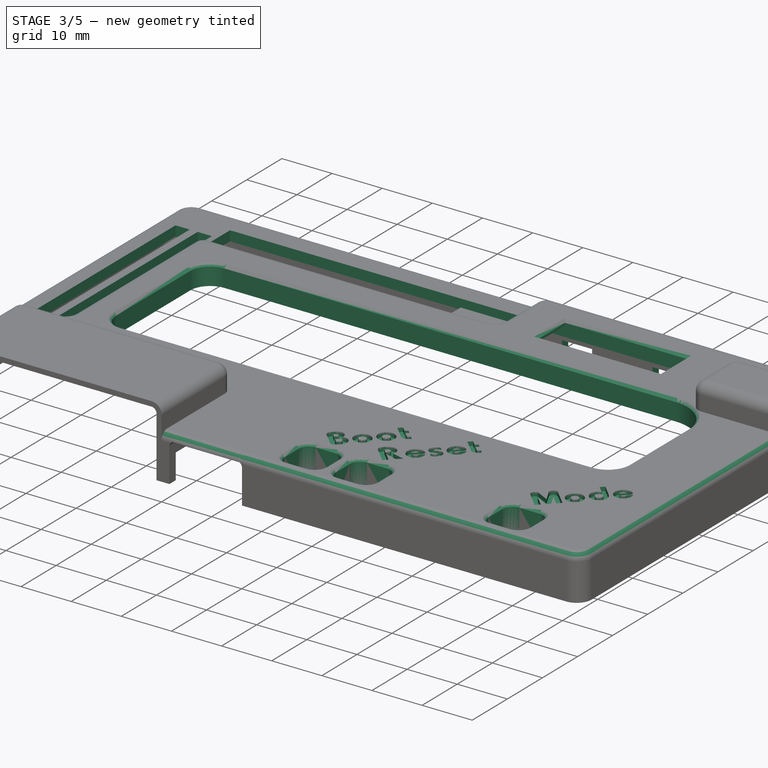
[diagram: stage 3 of 5 — iso view after this stage's code; geometry added in this stage tinted green]
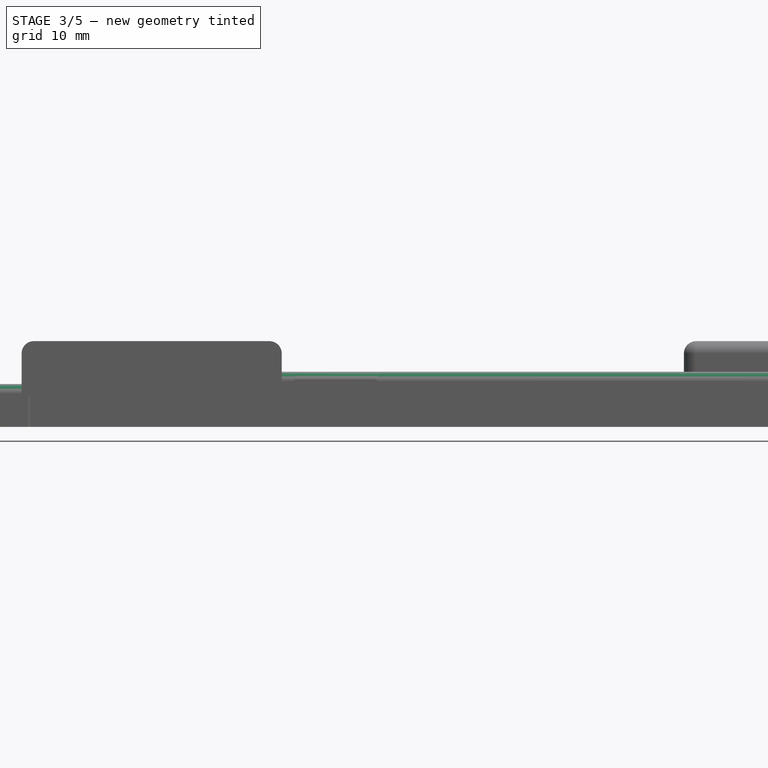
[diagram: stage 3 of 5 — front view after this stage's code; geometry added in this stage tinted green]
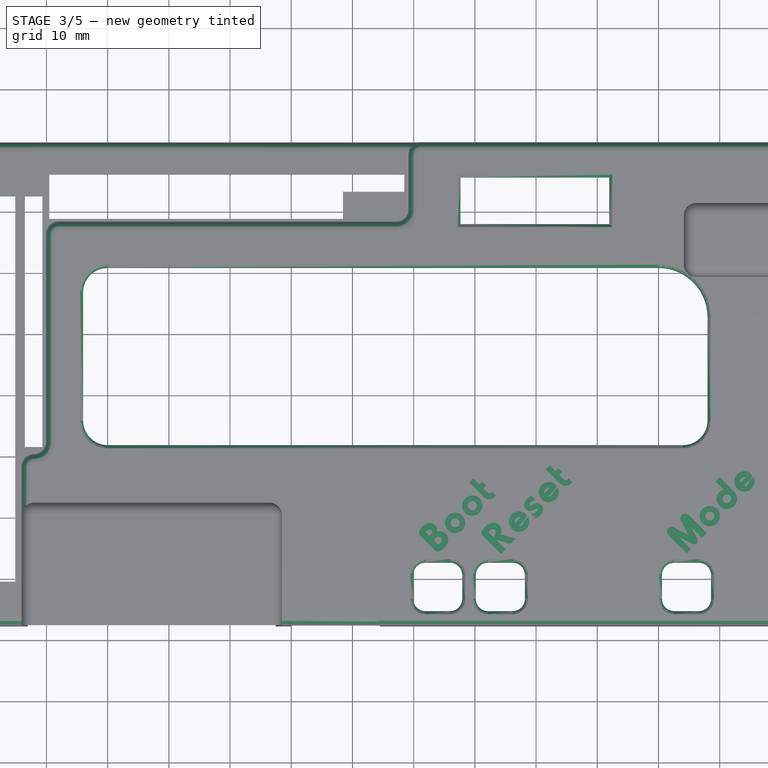
[diagram: stage 3 of 5 — top view after this stage's code; geometry added in this stage tinted green]
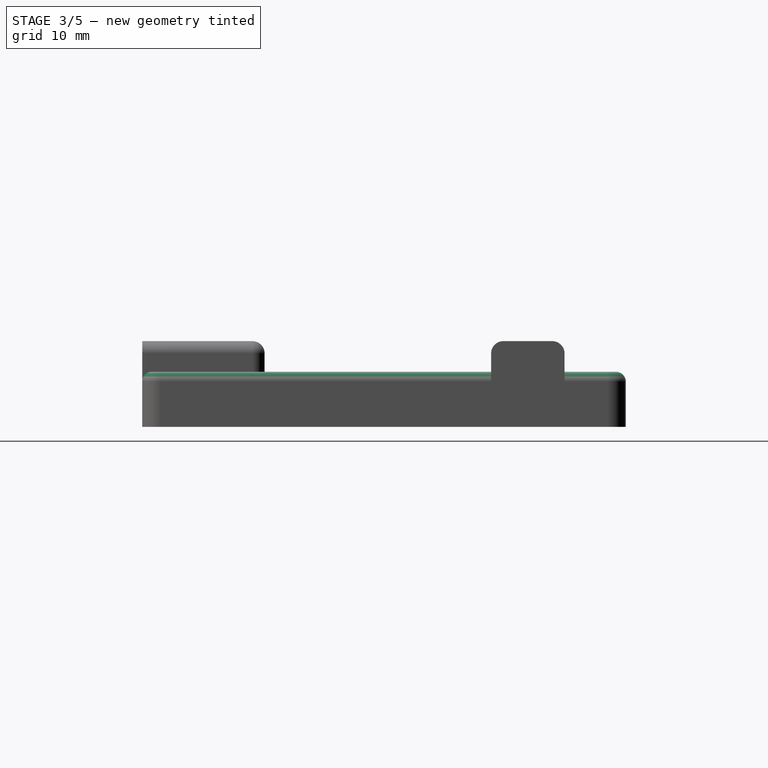
[diagram: stage 3 of 5 — right view after this stage's code; geometry added in this stage tinted green]
FEATURE [Sketcher::SketchObject] Sketch013
  ArcFitTolerance = 1e-06
  AttachmentSupport = -> [Pocket008]
  ExternalGeometry = -> [Pocket008]
  FullyConstrained = true
  MakeInternals = false
  MapMode = 5
  Placement = pos=(6e-16,-18.7338,0) rot=(0,0.707107,0.707107;3.14159rad)
  sketch-geometry (18):
    g0: LineSegment StartX=-140.952 StartY=0.8 StartZ=0 EndX=-140.952 EndY=2.75 EndZ=0
    g1: ArcOfCircle CenterX=-140.402 CenterY=2.75 CenterZ=0 NormalX=0 NormalY=0 NormalZ=1 AngleXU=0 Radius=0.55 StartAngle=1.5708 EndAngle=3.14159
    g2: LineSegment StartX=-140.402 StartY=3.3 StartZ=0 EndX=-134.072 EndY=3.3 EndZ=0
    g3: ArcOfCircle CenterX=-134.072 CenterY=2.75 CenterZ=0 NormalX=0 NormalY=0 NormalZ=1 AngleXU=0 Radius=0.55 StartAngle=0 EndAngle=1.5708
    g4: LineSegment StartX=-133.522 StartY=2.75 StartZ=0 EndX=-133.522 EndY=0.8 EndZ=0
    g5: LineSegment StartX=-133.522 StartY=0.8 StartZ=0 EndX=-140.952 EndY=0.8 EndZ=0
    g6: LineSegment StartX=-100.258 StartY=0.8 StartZ=0 EndX=-100.258 EndY=3.73303 EndZ=0
    g7: LineSegment StartX=-100.258 StartY=3.73303 StartZ=0 EndX=-94.2466 EndY=3.73303 EndZ=0
    g8: LineSegment StartX=-94.2466 StartY=3.73303 StartZ=0 EndX=-94.2466 EndY=0.8 EndZ=0
    g9: LineSegment StartX=-94.2466 StartY=0.8 StartZ=0 EndX=-100.258 EndY=0.8 EndZ=0
    g10: LineSegment StartX=-112.315 StartY=0.8 StartZ=0 EndX=-112.315 EndY=3.69868 EndZ=0
    g11: LineSegment StartX=-112.315 StartY=3.69868 StartZ=0 EndX=-117.475 EndY=3.69868 EndZ=0
    g12: LineSegment StartX=-117.475 StartY=3.69868 StartZ=0 EndX=-117.475 EndY=0.8 EndZ=0
    g13: LineSegment StartX=-117.475 StartY=0.8 StartZ=0 EndX=-112.315 EndY=0.8 EndZ=0
    g14: LineSegment StartX=-127.187 StartY=0.8 StartZ=0 EndX=-120.987 EndY=0.8 EndZ=0
    g15: LineSegment StartX=-120.987 StartY=0.8 StartZ=0 EndX=-120.987 EndY=2.3699 EndZ=0
    g16: LineSegment StartX=-120.987 StartY=2.3699 StartZ=0 EndX=-127.187 EndY=2.3699 EndZ=0
    g17: LineSegment StartX=-127.187 StartY=2.3699 StartZ=0 EndX=-127.187 EndY=0.8 EndZ=0
  constraints (49):
    c: PointOnObject(g0,g-3)
    c: Vertical(g0)
    c: Tangent(g0,g1) = 1.5708
    c: Coincident(g1,g2)
    c: Horizontal(g2)
    c: Tangent(g2,g3) = 1.5708
    c: Coincident(g3,g4)
    c: PointOnObject(g4,g-3)
    c: Vertical(g4)
    c: Coincident(g4,g5)
    c: Coincident(g5,g0)
    c: Radius(g1) = 0.55
    c: Equal(g1,g3)
    c: Horizontal(g3,g3)
    c: Vertical(g1,g1)
    c: PointOnObject(g6,g-3)
    c: Vertical(g6)
    c: Coincident(g6,g7)
    c: Horizontal(g7)
    c: Coincident(g7,g8)
    c: PointOnObject(g8,g-3)
    c: Vertical(g8)
    c: Coincident(g8,g9)
    c: Coincident(g9,g6)
    c: PointOnObject(g10,g-3)
    c: Vertical(g10)
    c: Coincident(g10,g11)
    c: Horizontal(g11)
    c: Coincident(g11,g12)
    c: PointOnObject(g12,g-3)
    c: Vertical(g12)
    c: Coincident(g12,g13)
    c: Coincident(g13,g10)
    c: Block(g7)
    c: Coincident(g14,g15)
    c: Coincident(g15,g16)
    c: Coincident(g16,g17)
    c: Coincident(g17,g14)
    c: Horizontal(g14)
    c: Horizontal(g16)
    c: Vertical(g15)
    c: Vertical(g17)
    c: PointOnObject(g14,g-3)
    c: DistanceX(g16,g16) = 6.2
    c: Block(g16)
    c: Block(g11)
    c: DistanceX(g-4,g0) = 11.2
    c: DistanceY(g4,g2) = 2.5
    c: DistanceX(g5,g5) = 7.43
FEATURE [PartDesign::Pocket] Pocket009  label="Back ports"
  BaseFeature = -> Pocket008
  Direction = (0,-1,2e-16)
  Length = 0
  Length2 = 5
  Profile = -> Sketch013
  ReferenceAxis = -> Sketch013 [N_Axis]
  Suppressed = false
  Type = 3
  UpToFace = -> Pocket008 [Face63]
FEATURE [Sketcher::SketchObject] Sketch014
  ArcFitTolerance = 1e-06
  AttachmentSupport = -> [Pocket009]
  ExternalGeometry = -> [Pocket009]
  FullyConstrained = true
  MakeInternals = false
  MapMode = 5
  Placement = pos=(0,0,9.8) rot=(0,0,1;0rad)
  sketch-geometry (62):
    g0: LineSegment StartX=97.6518 StartY=-24.5338 StartZ=0 EndX=97.6518 EndY=-32.1338 EndZ=0
    g1: LineSegment StartX=97.6518 StartY=-32.1338 StartZ=0 EndX=121.952 EndY=-32.1338 EndZ=0
    g2: LineSegment StartX=121.952 StartY=-32.1338 StartZ=0 EndX=121.952 EndY=-24.5338 EndZ=0
    g3: LineSegment StartX=121.952 StartY=-24.5338 StartZ=0 EndX=97.6518 EndY=-24.5338 EndZ=0
    g4: LineSegment StartX=89.9297 StartY=-89.3751 StartZ=0 EndX=89.9297 EndY=-93.3751 EndZ=0
    g5: LineSegment StartX=91.9297 StartY=-95.3751 StartZ=0 EndX=95.9297 EndY=-95.3751 EndZ=0
    g6: LineSegment StartX=97.9297 StartY=-93.3751 StartZ=0 EndX=97.9297 EndY=-89.3751 EndZ=0
    g7: LineSegment StartX=95.9297 StartY=-87.3751 StartZ=0 EndX=91.9297 EndY=-87.3751 EndZ=0
    g8: ArcOfCircle CenterX=91.9297 CenterY=-89.3751 CenterZ=0 NormalX=0 NormalY=0 NormalZ=1 AngleXU=0 Radius=2 StartAngle=1.5708 EndAngle=3.14159
    g9: ArcOfCircle CenterX=91.9297 CenterY=-93.3751 CenterZ=0 NormalX=0 NormalY=0 NormalZ=1 AngleXU=0 Radius=2 StartAngle=3.14159 EndAngle=4.71239
    g10: ArcOfCircle CenterX=95.9297 CenterY=-93.3751 CenterZ=0 NormalX=0 NormalY=0 NormalZ=1 AngleXU=0 Radius=2 StartAngle=4.71239 EndAngle=6.28319
    g11: ArcOfCircle CenterX=95.9297 CenterY=-89.3751 CenterZ=0 NormalX=0 NormalY=0 NormalZ=1 AngleXU=0 Radius=2 StartAngle=-2.7e-15 EndAngle=1.5708
    g12: GeomPoint [constr] X=89.9297 Y=-87.3751 Z=0
    g13: GeomPoint [constr] X=97.9297 Y=-95.3751 Z=0
    g14: LineSegment StartX=100.163 StartY=-89.3751 StartZ=0 EndX=100.163 EndY=-93.3751 EndZ=0
    g15: LineSegment StartX=102.163 StartY=-95.3751 StartZ=0 EndX=106.163 EndY=-95.3751 EndZ=0
    g16: LineSegment StartX=108.163 StartY=-93.3751 StartZ=0 EndX=108.163 EndY=-89.3751 EndZ=0
    g17: LineSegment StartX=106.163 StartY=-87.3751 StartZ=0 EndX=102.163 EndY=-87.3751 EndZ=0
    g18: ArcOfCircle CenterX=102.163 CenterY=-89.3751 CenterZ=0 NormalX=0 NormalY=0 NormalZ=1 AngleXU=0 Radius=2 StartAngle=1.5708 EndAngle=3.14159
    g19: ArcOfCircle CenterX=102.163 CenterY=-93.3751 CenterZ=0 NormalX=0 NormalY=0 NormalZ=1 AngleXU=0 Radius=2 StartAngle=3.14159 EndAngle=4.71239
    g20: ArcOfCircle CenterX=106.163 CenterY=-93.3751 CenterZ=0 NormalX=0 NormalY=0 NormalZ=1 AngleXU=0 Radius=2 StartAngle=4.71239 EndAngle=6.28319
    g21: ArcOfCircle CenterX=106.163 CenterY=-89.3751 CenterZ=0 NormalX=0 NormalY=0 NormalZ=1 AngleXU=0 Radius=2 StartAngle=1.1e-15 EndAngle=1.5708
    g22: GeomPoint [constr] X=100.163 Y=-87.3751 Z=0
    g23: GeomPoint [constr] X=108.163 Y=-95.3751 Z=0
    g24: LineSegment StartX=130.584 StartY=-89.3751 StartZ=0 EndX=130.584 EndY=-93.3751 EndZ=0
    g25: LineSegment StartX=132.584 StartY=-95.3751 StartZ=0 EndX=136.584 EndY=-95.3751 EndZ=0
    g26: LineSegment StartX=138.584 StartY=-93.3751 StartZ=0 EndX=138.584 EndY=-89.3751 EndZ=0
    g27: LineSegment StartX=136.584 StartY=-87.3751 StartZ=0 EndX=132.584 EndY=-87.3751 EndZ=0
    g28: ArcOfCircle CenterX=132.584 CenterY=-89.3751 CenterZ=0 NormalX=0 NormalY=0 NormalZ=1 AngleXU=0 Radius=2 StartAngle=1.5708 EndAngle=3.14159
    g29: ArcOfCircle CenterX=132.584 CenterY=-93.3751 CenterZ=0 NormalX=0 NormalY=0 NormalZ=1 AngleXU=0 Radius=2 StartAngle=3.14159 EndAngle=4.71239
    g30: ArcOfCircle CenterX=136.584 CenterY=-93.3751 CenterZ=0 NormalX=0 NormalY=0 NormalZ=1 AngleXU=0 Radius=2 StartAngle=4.71239 EndAngle=6.28319
    g31: ArcOfCircle CenterX=136.584 CenterY=-89.3751 CenterZ=0 NormalX=0 NormalY=0 NormalZ=1 AngleXU=0 Radius=2 StartAngle=1e-15 EndAngle=1.5708
    g32: GeomPoint [constr] X=130.584 Y=-87.3751 Z=0
    g33: GeomPoint [constr] X=138.584 Y=-95.3751 Z=0
    g34: LineSegment StartX=22.0618 StartY=-27.5338 StartZ=0 EndX=22.0618 EndY=-90.5338 EndZ=0
    g35: LineSegment StartX=22.0618 StartY=-90.5338 StartZ=0 EndX=24.9071 EndY=-90.5338 EndZ=0
    g36: LineSegment StartX=24.9071 StartY=-90.5338 StartZ=0 EndX=24.9071 EndY=-27.5338 EndZ=0
    g37: LineSegment StartX=24.9071 StartY=-27.5338 StartZ=0 EndX=22.0618 EndY=-27.5338 EndZ=0
    g38: LineSegment StartX=26.4818 StartY=-27.5338 StartZ=0 EndX=26.4818 EndY=-68.5338 EndZ=0
    g39: LineSegment StartX=26.4818 StartY=-68.5338 StartZ=0 EndX=29.3271 EndY=-68.5338 EndZ=0
    g40: LineSegment StartX=29.3271 StartY=-68.5338 StartZ=0 EndX=29.3271 EndY=-27.5338 EndZ=0
    g41: LineSegment StartX=29.3271 StartY=-27.5338 StartZ=0 EndX=26.4818 EndY=-27.5338 EndZ=0
    g42: LineSegment StartX=30.4518 StartY=-23.9738 StartZ=0 EndX=30.4518 EndY=-31.2538 EndZ=0
    g43: LineSegment StartX=88.4518 StartY=-26.8238 StartZ=0 EndX=88.4518 EndY=-23.9738 EndZ=0
    g44: LineSegment StartX=88.4518 StartY=-23.9738 StartZ=0 EndX=30.4518 EndY=-23.9738 EndZ=0
    g45: LineSegment StartX=30.4518 StartY=-31.2538 StartZ=0 EndX=78.4518 EndY=-31.2538 EndZ=0
    g46: LineSegment StartX=78.4518 StartY=-31.2538 StartZ=0 EndX=78.4518 EndY=-26.8238 EndZ=0
    g47: LineSegment StartX=35.9983 StartY=-43.2513 StartZ=0 EndX=35.9983 EndY=-64.2449 EndZ=0
    g48: LineSegment StartX=39.9983 StartY=-68.2449 StartZ=0 EndX=134.001 EndY=-68.2449 EndZ=0
    g49: LineSegment StartX=138.001 StartY=-64.2449 StartZ=0 EndX=138.001 EndY=-47.2513 EndZ=0
    g50: LineSegment StartX=130.001 StartY=-39.2513 StartZ=0 EndX=39.9983 EndY=-39.2513 EndZ=0
    g51: ArcOfCircle CenterX=39.9983 CenterY=-43.2513 CenterZ=0 NormalX=0 NormalY=0 NormalZ=1 AngleXU=0 Radius=4 StartAngle=1.5708 EndAngle=3.14159
    g52: ArcOfCircle CenterX=39.9983 CenterY=-64.2449 CenterZ=0 NormalX=0 NormalY=0 NormalZ=1 AngleXU=0 Radius=4 StartAngle=3.14159 EndAngle=4.71239
    g53: ArcOfCircle CenterX=134.001 CenterY=-64.2449 CenterZ=0 NormalX=0 NormalY=0 NormalZ=1 AngleXU=0 Radius=4 StartAngle=4.71239 EndAngle=6.28319
    g54: ArcOfCircle CenterX=130.001 CenterY=-47.2513 CenterZ=0 NormalX=0 NormalY=0 NormalZ=1 AngleXU=0 Radius=8 StartAngle=1e-16 EndAngle=1.5708
    g55: GeomPoint [constr] X=35.9983 Y=-39.2513 Z=0
    g56: GeomPoint [constr] X=138.001 Y=-68.2449 Z=0
    g57: LineSegment [constr] StartX=38.9997 StartY=-44.2499 StartZ=0 EndX=40.9969 EndY=-42.2527 EndZ=0
    g58: LineSegment [constr] StartX=38.9997 StartY=-42.2527 StartZ=0 EndX=40.9969 EndY=-44.2499 EndZ=0
    g59: LineSegment [constr] StartX=132.999 StartY=-65.2466 StartZ=0 EndX=135.003 EndY=-63.2432 EndZ=0
    g60: LineSegment [constr] StartX=132.999 StartY=-63.2432 StartZ=0 EndX=135.003 EndY=-65.2466 EndZ=0
    g61: LineSegment StartX=78.4518 StartY=-26.8238 StartZ=0 EndX=88.4518 EndY=-26.8238 EndZ=0
  constraints (161):
    c: Coincident(g0,g1)
    c: Coincident(g1,g2)
    c: Coincident(g2,g3)
    c: Coincident(g3,g0)
    c: Vertical(g0)
    c: Vertical(g2)
    c: Horizontal(g1)
    c: Horizontal(g3)
    c: Tangent(g4,g8) = -1.5708
    c: Tangent(g4,g9) = -1.5708
    c: Tangent(g5,g9) = -1.5708
    c: Tangent(g5,g10) = -1.5708
    c: Tangent(g6,g10) = -1.5708
    c: Tangent(g6,g11) = -1.5708
    c: Tangent(g7,g11) = -1.5708
    c: Tangent(g7,g8) = -1.5708
    c: Vertical(g4)
    c: Vertical(g6)
    c: Horizontal(g5)
    c: Horizontal(g7)
    c: Equal(g8,g9)
    c: Equal(g9,g10)
    c: Equal(g10,g11)
    c: PointOnObject(g12,g4)
    c: PointOnObject(g12,g7)
    c: PointOnObject(g13,g5)
    c: PointOnObject(g13,g6)
    c: Radius(g9) = 2
    c: Equal(g4,g7)
    c: DistanceX(g4,g6) = 8
    c: Block(g7)
    c: Tangent(g14,g18) = -1.5708
    c: Tangent(g14,g19) = -1.5708
    c: Tangent(g15,g19) = -1.5708
    c: Tangent(g15,g20) = -1.5708
    c: Tangent(g16,g20) = -1.5708
    c: Tangent(g16,g21) = -1.5708
    c: Tangent(g17,g21) = -1.5708
    c: Tangent(g17,g18) = -1.5708
    c: Vertical(g14)
    c: Vertical(g16)
    c: Horizontal(g15)
    c: Horizontal(g17)
    c: Equal(g18,g19)
    c: Equal(g19,g20)
    c: Equal(g20,g21)
    c: PointOnObject(g22,g14)
    c: PointOnObject(g22,g17)
    c: PointOnObject(g23,g15)
    c: PointOnObject(g23,g16)
    c: Tangent(g24,g28) = -1.5708
    c: Tangent(g24,g29) = -1.5708
    c: Tangent(g25,g29) = -1.5708
    c: Tangent(g25,g30) = -1.5708
    c: Tangent(g26,g30) = -1.5708
    c: Tangent(g26,g31) = -1.5708
    c: Tangent(g27,g31) = -1.5708
    c: Tangent(g27,g28) = -1.5708
    c: Vertical(g24)
    c: Vertical(g26)
    c: Horizontal(g25)
    c: Horizontal(g27)
    c: Equal(g28,g29)
    c: Equal(g29,g30)
    c: Equal(g30,g31)
    c: PointOnObject(g32,g24)
    c: PointOnObject(g32,g27)
    c: PointOnObject(g33,g25)
    c: PointOnObject(g33,g26)
    c: Horizontal(g7,g17)
    c: Horizontal(g7,g27)
    c: Equal(g8,g18)
    c: Equal(g8,g28)
    c: Equal(g7,g17)
    c: Equal(g7,g27)
    c: Horizontal(g5,g15)
    c: Horizontal(g5,g25)
    c: Block(g17)
    c: Block(g27)
    c: Coincident(g34,g35)
    c: Coincident(g35,g36)
    c: Coincident(g36,g37)
    c: Coincident(g37,g34)
    c: Vertical(g34)
    c: Vertical(g36)
    c: Horizontal(g35)
    c: Horizontal(g37)
    c: Coincident(g38,g39)
    c: Coincident(g39,g40)
    c: Coincident(g40,g41)
    c: Coincident(g41,g38)
    c: Vertical(g38)
    c: Vertical(g40)
    c: Horizontal(g39)
    c: Horizontal(g41)
    c: Coincident(g43,g44)
    c: Coincident(g44,g42)
    c: Vertical(g42)
    c: Vertical(g43)
    c: Horizontal(g44)
    c: Coincident(g45,g46)
    c: Vertical(g46)
    c: Horizontal(g45)
    c: Tangent(g47,g51) = -1.5708
    c: Tangent(g47,g52) = -1.5708
    c: Tangent(g48,g52) = -1.5708
    c: Tangent(g48,g53) = -1.5708
    c: Tangent(g49,g53) = -1.5708
    c: Tangent(g49,g54) = -1.5708
    c: Tangent(g50,g54) = -1.5708
    c: Tangent(g50,g51) = -1.5708
    c: Vertical(g47)
    c: Vertical(g49)
    c: Horizontal(g48)
    c: Horizontal(g50)
    c: Equal(g51,g52)
    c: Equal(g52,g53)
    c: PointOnObject(g55,g47)
    c: PointOnObject(g55,g50)
    c: PointOnObject(g56,g48)
    c: PointOnObject(g56,g49)
    c: Horizontal(g36,g38)
    c: Equal(g37,g41)
    c: Block(g37)
    c: Radius(g51) = 4
    c: Horizontal(g58,g57)
    c: Horizontal(g57,g58)
    c: Vertical(g57,g58)
    c: Vertical(g58,g57)
    c: Angle(g57,g58) = 1.5708
    c: Block(g57)
    c: PointOnObject(g51,g57)
    c: PointOnObject(g51,g58)
    c: Horizontal(g60,g59)
    c: Horizontal(g59,g60)
    c: Vertical(g60,g59)
    c: Vertical(g59,g60)
    c: Angle(g59,g60) = 1.5708
    c: Block(g59)
    c: PointOnObject(g53,g59)
    c: PointOnObject(g53,g60)
    c: Radius(g54) = 8
    c: DistanceX(g3,g3) = 24.3
    c: DistanceY(g2,g2) = 7.6
    c: DistanceX(g-7,g0) = 8.5
    c: DistanceY(g0,g-7) = 3.8
    c: DistanceY(g34,g34) = 63
    c: DistanceY(g34,g-5) = 1
    c: DistanceX(g-5,g34) = 0.51
    c: DistanceX(g-5,g38) = 4.93
    c: DistanceY(g38,g38) = 41
    c: DistanceX(g-6,g42) = 4.5
    c: DistanceY(g42,g-6) = 1.84
    c: DistanceX(g44,g44) = 58
    c: DistanceY(g45,g-6) = 9.12
    c: Coincident(g42,g45)
    c: DistanceY(g43,g43) = 2.85
    c: Horizontal(g46,g43)
    c: Coincident(g61,g46)
    c: Coincident(g61,g43)
    c: DistanceX(g45,g45) = 48
FEATURE [PartDesign::Pocket] Pocket010  label="Screen opening"
  BaseFeature = -> Pocket009
  Direction = (0,0,-1)
  Length = 5
  Length2 = 5
  Profile = -> Sketch014
  ReferenceAxis = -> Sketch014 [N_Axis]
  Suppressed = false
  Type = 1
FEATURE [PartDesign::Chamfer] Chamfer
  Angle = 45
  Base = -> Pocket010 [Edge59,Edge39,Edge47,Edge55,Edge65,Edge68,Edge67,Edge66]
  BaseFeature = -> Pocket010
  ChamferType = 0
  FlipDirection = false
  Refine = true
  Size = 0.5
  Size2 = 1
  SupportTransform = false
  Suppressed = false
  UseAllEdges = false
FEATURE [PartDesign::Fillet] Fillet002
  Base = -> Chamfer [Edge29,Edge144,Edge26]
  BaseFeature = -> Chamfer
  Radius = 1.6
  Refine = true
  SupportTransform = false
  Suppressed = false
  UseAllEdges = false
FEATURE [Sketcher::SketchObject] Sketch015
  ArcFitTolerance = 1e-06
  AttachmentSupport = -> [Fillet002]
  ExternalGeometry = -> [Fillet002]
  FullyConstrained = true
  MakeInternals = false
  MapMode = 5
  Placement = pos=(0,0,5.8) rot=(1,0,0;3.14159rad)
  sketch-geometry (36):
    g0: LineSegment StartX=87.9297 StartY=95.9338 StartZ=0 EndX=87.9297 EndY=89.3751 EndZ=0
    g1: ArcOfCircle CenterX=91.9297 CenterY=89.3751 CenterZ=0 NormalX=0 NormalY=0 NormalZ=1 AngleXU=0 Radius=4 StartAngle=3.14159 EndAngle=4.71239
    g2: LineSegment StartX=91.9297 StartY=85.3751 StartZ=0 EndX=136.584 EndY=85.3751 EndZ=0
    g3: ArcOfCircle CenterX=136.584 CenterY=89.3751 CenterZ=0 NormalX=0 NormalY=0 NormalZ=1 AngleXU=0 Radius=4 StartAngle=4.71239 EndAngle=6.28319
    g4: LineSegment StartX=140.584 StartY=89.3751 StartZ=0 EndX=140.584 EndY=95.9338 EndZ=0
    g5: LineSegment StartX=140.584 StartY=95.9338 StartZ=0 EndX=87.9297 EndY=95.9338 EndZ=0
    g6: LineSegment StartX=89.9297 StartY=93.3751 StartZ=0 EndX=89.9297 EndY=89.3751 EndZ=0
    g7: LineSegment StartX=91.9297 StartY=87.3751 StartZ=0 EndX=95.9297 EndY=87.3751 EndZ=0
    g8: LineSegment StartX=97.9297 StartY=89.3751 StartZ=0 EndX=97.9297 EndY=93.3751 EndZ=0
    g9: LineSegment StartX=95.9297 StartY=95.3751 StartZ=0 EndX=91.9297 EndY=95.3751 EndZ=0
    g10: ArcOfCircle CenterX=91.9297 CenterY=93.3751 CenterZ=0 NormalX=0 NormalY=0 NormalZ=1 AngleXU=0 Radius=2 StartAngle=1.5708 EndAngle=3.14159
    g11: ArcOfCircle CenterX=91.9297 CenterY=89.3751 CenterZ=0 NormalX=0 NormalY=0 NormalZ=1 AngleXU=0 Radius=2 StartAngle=3.14159 EndAngle=4.71239
    g12: ArcOfCircle CenterX=95.9297 CenterY=89.3751 CenterZ=0 NormalX=0 NormalY=0 NormalZ=1 AngleXU=0 Radius=2 StartAngle=4.71239 EndAngle=6.28319
    g13: ArcOfCircle CenterX=95.9297 CenterY=93.3751 CenterZ=0 NormalX=0 NormalY=0 NormalZ=1 AngleXU=0 Radius=2 StartAngle=-2.7e-15 EndAngle=1.5708
    g14: GeomPoint [constr] X=89.9297 Y=95.3751 Z=0
    g15: GeomPoint [constr] X=97.9297 Y=87.3751 Z=0
    g16: LineSegment StartX=100.163 StartY=93.3751 StartZ=0 EndX=100.163 EndY=89.3751 EndZ=0
    g17: LineSegment StartX=102.163 StartY=87.3751 StartZ=0 EndX=106.163 EndY=87.3751 EndZ=0
    g18: LineSegment StartX=108.163 StartY=89.3751 StartZ=0 EndX=108.163 EndY=93.3751 EndZ=0
    g19: LineSegment StartX=106.163 StartY=95.3751 StartZ=0 EndX=102.163 EndY=95.3751 EndZ=0
    g20: ArcOfCircle CenterX=102.163 CenterY=93.3751 CenterZ=0 NormalX=0 NormalY=0 NormalZ=1 AngleXU=0 Radius=2 StartAngle=1.5708 EndAngle=3.14159
    g21: ArcOfCircle CenterX=102.163 CenterY=89.3751 CenterZ=0 NormalX=0 NormalY=0 NormalZ=1 AngleXU=0 Radius=2 StartAngle=3.14159 EndAngle=4.71239
    g22: ArcOfCircle CenterX=106.163 CenterY=89.3751 CenterZ=0 NormalX=0 NormalY=0 NormalZ=1 AngleXU=0 Radius=2 StartAngle=4.71239 EndAngle=6.28319
    g23: ArcOfCircle CenterX=106.163 CenterY=93.3751 CenterZ=0 NormalX=0 NormalY=0 NormalZ=1 AngleXU=0 Radius=2 StartAngle=-2.7e-15 EndAngle=1.5708
    g24: GeomPoint [constr] X=100.163 Y=95.3751 Z=0
    g25: GeomPoint [constr] X=108.163 Y=87.3751 Z=0
    g26: LineSegment StartX=130.584 StartY=93.3751 StartZ=0 EndX=130.584 EndY=89.3751 EndZ=0
    g27: LineSegment StartX=132.584 StartY=87.3751 StartZ=0 EndX=136.584 EndY=87.3751 EndZ=0
    g28: LineSegment StartX=138.584 StartY=89.3751 StartZ=0 EndX=138.584 EndY=93.3751 EndZ=0
    g29: LineSegment StartX=136.584 StartY=95.3751 StartZ=0 EndX=132.584 EndY=95.3751 EndZ=0
    g30: ArcOfCircle CenterX=132.584 CenterY=93.3751 CenterZ=0 NormalX=0 NormalY=0 NormalZ=1 AngleXU=0 Radius=2 StartAngle=1.5708 EndAngle=3.14159
    g31: ArcOfCircle CenterX=132.584 CenterY=89.3751 CenterZ=0 NormalX=0 NormalY=0 NormalZ=1 AngleXU=0 Radius=2 StartAngle=3.14159 EndAngle=4.71239
    g32: ArcOfCircle CenterX=136.584 CenterY=89.3751 CenterZ=0 NormalX=0 NormalY=0 NormalZ=1 AngleXU=0 Radius=2 StartAngle=4.71239 EndAngle=6.28319
    g33: ArcOfCircle CenterX=136.584 CenterY=93.3751 CenterZ=0 NormalX=0 NormalY=0 NormalZ=1 AngleXU=0 Radius=2 StartAngle=-1.8e-15 EndAngle=1.5708
    g34: GeomPoint [constr] X=130.584 Y=95.3751 Z=0
    g35: GeomPoint [constr] X=138.584 Y=87.3751 Z=0
  constraints (79):
    c: PointOnObject(g0,g-3)
    c: Vertical(g0)
    c: Tangent(g0,g1) = -1.5708
    c: Coincident(g1,g2)
    c: Horizontal(g2)
    c: Tangent(g2,g3) = -1.5708
    c: Coincident(g3,g4)
    c: PointOnObject(g4,g-3)
    c: Vertical(g4)
    c: Coincident(g4,g5)
    c: Coincident(g5,g0)
    c: Vertical(g1,g1)
    c: Horizontal(g3,g3)
    c: Coincident(g-4,g1)
    c: Coincident(g3,g-14)
    c: DistanceX(g0,g-4) = 2
    c: Tangent(g6,g10) = -1.5708
    c: Tangent(g6,g11) = -1.5708
    c: Tangent(g7,g11) = -1.5708
    c: Tangent(g7,g12) = -1.5708
    c: Tangent(g8,g12) = -1.5708
    c: Tangent(g8,g13) = -1.5708
    c: Tangent(g9,g13) = -1.5708
    c: Tangent(g9,g10) = -1.5708
    c: Vertical(g6)
    c: Vertical(g8)
    c: Horizontal(g7)
    c: Horizontal(g9)
    c: Equal(g10,g11)
    c: Equal(g11,g12)
    c: PointOnObject(g14,g6)
    c: PointOnObject(g14,g9)
    c: PointOnObject(g15,g7)
    c: PointOnObject(g15,g8)
    c: Tangent(g16,g20) = -1.5708
    c: Tangent(g16,g21) = -1.5708
    c: Tangent(g17,g21) = -1.5708
    c: Tangent(g17,g22) = -1.5708
    c: Tangent(g18,g22) = -1.5708
    c: Tangent(g18,g23) = -1.5708
    c: Tangent(g19,g23) = -1.5708
    c: Tangent(g19,g20) = -1.5708
    c: Vertical(g16)
    c: Vertical(g18)
    c: Horizontal(g17)
    c: Horizontal(g19)
    c: Equal(g20,g21)
    c: Equal(g21,g22)
    c: PointOnObject(g24,g16)
    c: PointOnObject(g24,g19)
    c: PointOnObject(g25,g17)
    c: PointOnObject(g25,g18)
    c: Tangent(g26,g30) = -1.5708
    c: Tangent(g26,g31) = -1.5708
    c: Tangent(g27,g31) = -1.5708
    c: Tangent(g27,g32) = -1.5708
    c: Tangent(g28,g32) = -1.5708
    c: Tangent(g28,g33) = -1.5708
    c: Tangent(g29,g33) = -1.5708
    c: Tangent(g29,g30) = -1.5708
    c: Vertical(g26)
    c: Vertical(g28)
    c: Horizontal(g27)
    c: Horizontal(g29)
    c: Equal(g30,g31)
    c: Equal(g31,g32)
    c: PointOnObject(g34,g26)
    c: PointOnObject(g34,g29)
    c: PointOnObject(g35,g27)
    c: PointOnObject(g35,g28)
    c: Coincident(g10,g-5)
    c: Coincident(g12,g-7)
    c: Coincident(g-8,g20)
    c: Coincident(g22,g-10)
    c: Coincident(g30,g-12)
    c: Coincident(g32,g3)
    c: Coincident(g8,g-6)
    c: Coincident(g18,g-11)
    c: Coincident(g28,g-15)
FEATURE [PartDesign::Pad] Pad004  label="Inner button pad"
  BaseFeature = -> Fillet002
  Direction = (0,0,-1)
  Length = 2
  Length2 = 10
  Profile = -> Sketch015
  ReferenceAxis = -> Sketch015 [N_Axis]
  Refine = true
  Suppressed = false
  Type = 0
FEATURE [PartDesign::Body] Body003  label="All light tunnels"
  AllowCompound = false
  Group = -> [Binder002,Sketch018,Pad008,Sketch019,Pocket011,Sketch020,Pad009]
  Origin = -> Origin003
  Tip = -> Pad009
FEATURE [PartDesign::Point] DatumPoint
  AttacherType = Attacher::AttachEnginePoint
  AttachmentSupport = -> [Pad004]
  MapMode = 37
  Placement = pos=(134.584,-86.8751,9.8) rot=(0,0,1;0rad)
FEATURE [Part::Part2DObjectPython] ShapeString  label="Mode string"  # Draft 2D object (typed FeaturePython)
  FontFile = <path>
  Fuse = false
  Justification = 6
  JustificationReference = 0
  KeepLeftMargin = false
  MakeFace = true
  ObliqueAngle = 0
  Placement = pos=(134.59,-85.92,10) rot=(0,0,-1;5.49779rad)
  ScaleToSize = true
  Size = 5
  String = Mode
  Tracking = 0
FEATURE [PartDesign::Point] DatumPoint001
  AttacherType = Attacher::AttachEnginePoint
  AttachmentSupport = -> [Pad004]
  MapMode = 37
  Placement = pos=(93.9297,-86.8751,9.8) rot=(0,0,1;0rad)
FEATURE [PartDesign::Point] DatumPoint002
  AttacherType = Attacher::AttachEnginePoint
  AttachmentSupport = -> [Pad004]
  MapMode = 37
  Placement = pos=(104.163,-86.8751,9.8) rot=(0,0,1;0rad)
FEATURE [Part::Part2DObjectPython] ShapeString001  label="Boot string"  # Draft 2D object (typed FeaturePython)
  FontFile = <path>
  Fuse = false
  Justification = 6
  JustificationReference = 0
  KeepLeftMargin = false
  MakeFace = true
  ObliqueAngle = 0
  Placement = pos=(94,-86,10) rot=(0,0,1;0.785398rad)
  ScaleToSize = true
  Size = 5
  String = Boot
  Tracking = 0
FEATURE [Part::Part2DObjectPython] ShapeString002  label="Reset string"  # Draft 2D object (typed FeaturePython)
  FontFile = <path>
  Fuse = false
  Justification = 6
  JustificationReference = 0
  KeepLeftMargin = false
  MakeFace = true
  ObliqueAngle = 0
  Placement = pos=(104.25,-86,10) rot=(0,0,-1;5.49779rad)
  ScaleToSize = true
  Size = 5
  String = Reset
  Tracking = 0
FEATURE [PartDesign::Pocket] Pocket012  label="Mode"
  BaseFeature = -> Pad004
  Direction = (0,0,-1)
  Length = 1
  Length2 = 5
  Profile = -> ShapeString
  ReferenceAxis = -> ShapeString [N_Axis]
  Suppressed = false
  Type = 0
FEATURE [PartDesign::Pocket] Pocket013  label="Boot"
  BaseFeature = -> Pocket012
  Direction = (0,0,-1)
  Length = 1
  Length2 = 5
  Profile = -> ShapeString001
  ReferenceAxis = -> ShapeString001 [N_Axis]
  Suppressed = false
  Type = 0
FEATURE [PartDesign::Pocket] Pocket014  label="Reset"
  BaseFeature = -> Pocket013
  Direction = (0,0,-1)
  Length = 1
  Length2 = 5
  Profile = -> ShapeString002
  ReferenceAxis = -> ShapeString002 [N_Axis]
  Suppressed = false
  Type = 0
FEATURE [Sketcher::SketchObject] Sketch021
  ArcFitTolerance = 1e-06
  AttachmentSupport = -> [Pocket014]
  FullyConstrained = true
  MakeInternals = false
  MapMode = 5
  Placement = pos=(0,0,5.8) rot=(1,0,0;3.14159rad)
  sketch-geometry (4):
    g0: LineSegment StartX=128.885 StartY=35.3798 StartZ=0 EndX=89.8845 EndY=35.3798 EndZ=0
    g1: LineSegment StartX=89.8845 StartY=35.3798 StartZ=0 EndX=89.8845 EndY=22.8798 EndZ=0
    g2: LineSegment StartX=89.8845 StartY=22.8798 StartZ=0 EndX=128.885 EndY=22.8798 EndZ=0
    g3: LineSegment StartX=128.885 StartY=22.8798 StartZ=0 EndX=128.885 EndY=35.3798 EndZ=0
  constraints (11):
    c: Coincident(g0,g1)
    c: Coincident(g1,g2)
    c: Coincident(g2,g3)
    c: Coincident(g3,g0)
    c: Horizontal(g0)
    c: Horizontal(g2)
    c: Vertical(g1)
    c: Vertical(g3)
    c: DistanceY(g1,g1) = 12.5
    c: DistanceX(g0,g0) = 39
    c: Block(g3)
FEATURE [PartDesign::Pocket] Pocket015  label="Screen space"
  BaseFeature = -> Pocket014
  Direction = (0,0,1)
  Length = 3
  Length2 = 5
  Profile = -> Sketch021
  ReferenceAxis = -> Sketch021 [N_Axis]
  Suppressed = false
  Type = 0
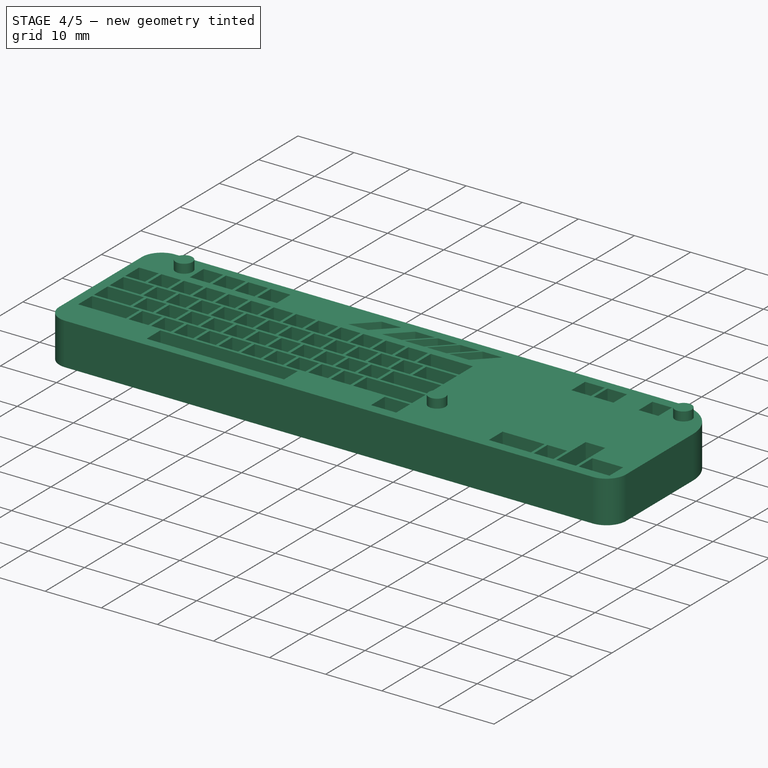
[diagram: stage 4 of 5 — iso view after this stage's code; geometry added in this stage tinted green]
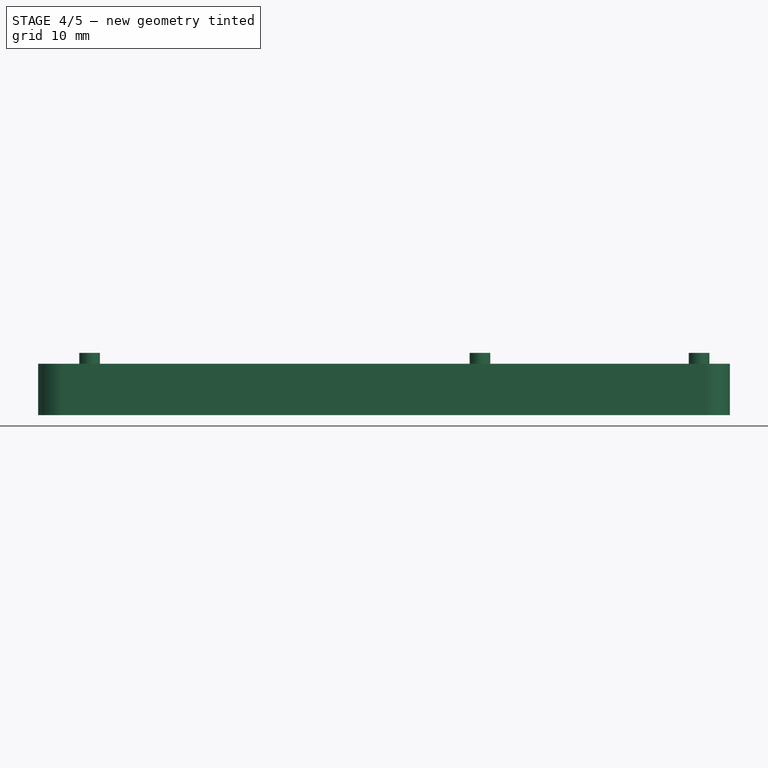
[diagram: stage 4 of 5 — front view after this stage's code; geometry added in this stage tinted green]
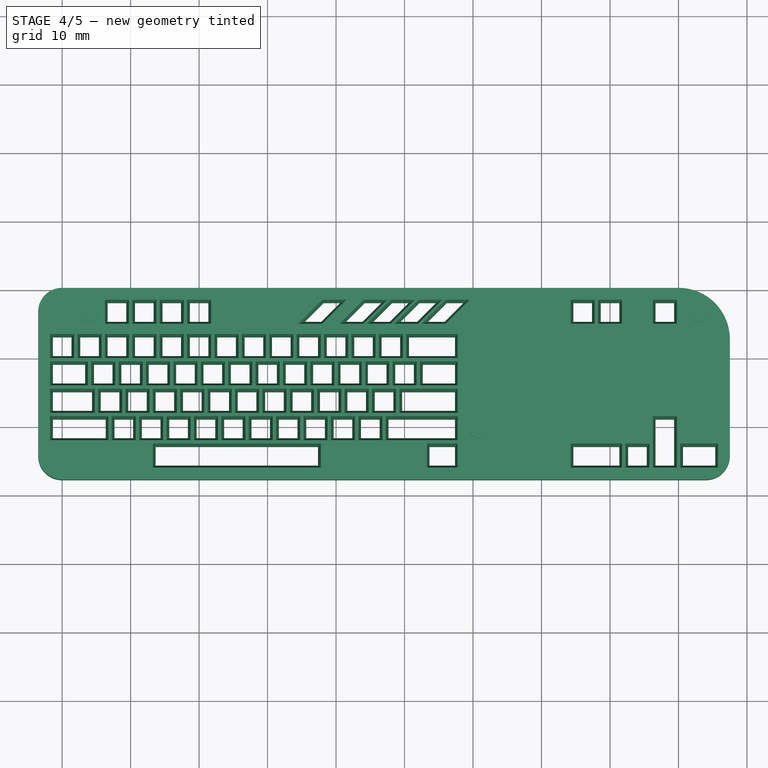
[diagram: stage 4 of 5 — top view after this stage's code; geometry added in this stage tinted green]
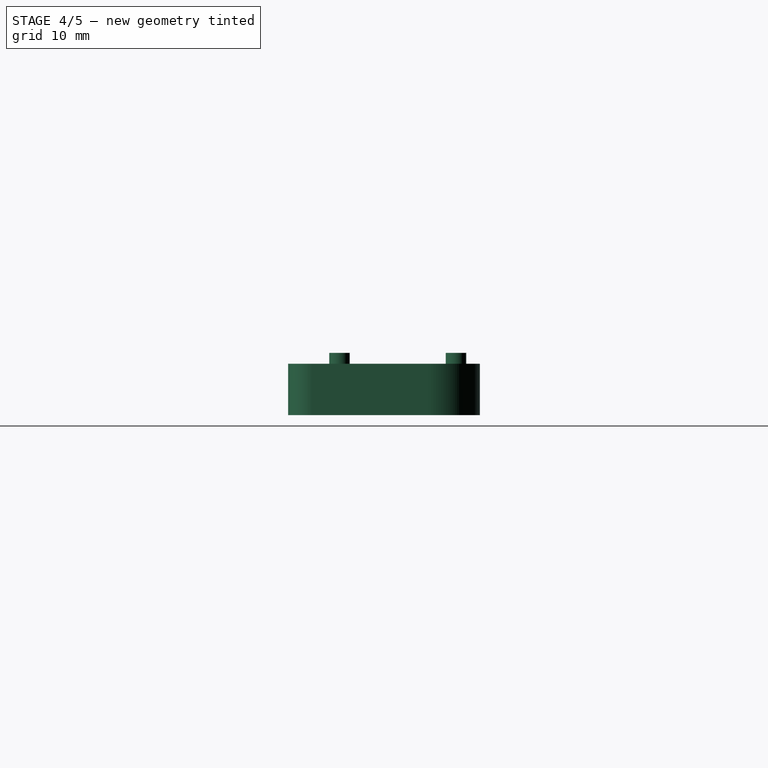
[diagram: stage 4 of 5 — right view after this stage's code; geometry added in this stage tinted green]
FEATURE [PartDesign::Body] Body002  label="Button"
  AllowCompound = false
  Group = -> [Binder001,Sketch016,Pad005,Sketch017,Pad006,Pad007]
  Origin = -> Origin002
  Tip = -> Pad007
FEATURE [PartDesign::SubShapeBinder] Binder002
  BindCopyOnChange = 0
  BindMode = 0
  ClaimChildren = false
  Context = -> Body003 [Binder002.]
  Fuse = false
  MakeFace = true
  OffsetFill = false
  OffsetIntersection = false
  OffsetJoinType = 0
  OffsetOpenResult = false
  PartialLoad = false
  Relative = true
  Support = -> [Body001]
  _Version = 2
FEATURE [Sketcher::SketchObject] Sketch018
  ArcFitTolerance = 1e-06
  AttachmentOffset = pos=(0,0,-1) rot=(0,0,1;0rad)
  AttachmentSupport = -> [Binder002]
  ExternalGeometry = -> [Binder002]
  FullyConstrained = true
  MakeInternals = false
  MapMode = 5
  Placement = pos=(0,0,8.8) rot=(0,0,1;0rad)
  sketch-geometry (8):
    g0: LineSegment StartX=36.4997 StartY=-43.2513 StartZ=0 EndX=36.4997 EndY=-64.2449 EndZ=0
    g1: LineSegment StartX=39.9983 StartY=-67.7436 StartZ=0 EndX=134.001 EndY=-67.7436 EndZ=0
    g2: LineSegment StartX=137.5 StartY=-64.2449 StartZ=0 EndX=137.5 EndY=-47.2513 EndZ=0
    g3: LineSegment StartX=130.001 StartY=-39.7527 StartZ=0 EndX=39.9983 EndY=-39.7527 EndZ=0
    g4: ArcOfCircle CenterX=39.9983 CenterY=-43.2513 CenterZ=0 NormalX=0 NormalY=0 NormalZ=1 AngleXU=0 Radius=3.49866 StartAngle=1.5708 EndAngle=3.14159
    g5: ArcOfCircle CenterX=39.9983 CenterY=-64.2449 CenterZ=0 NormalX=0 NormalY=0 NormalZ=1 AngleXU=0 Radius=3.49866 StartAngle=3.14159 EndAngle=4.71239
    g6: ArcOfCircle CenterX=134.001 CenterY=-64.2449 CenterZ=0 NormalX=0 NormalY=0 NormalZ=1 AngleXU=0 Radius=3.49866 StartAngle=4.71239 EndAngle=6.28319
    g7: ArcOfCircle CenterX=130.001 CenterY=-47.2513 CenterZ=0 NormalX=0 NormalY=0 NormalZ=1 AngleXU=0 Radius=7.49866 StartAngle=0 EndAngle=1.5708
  constraints (16):
    c: Tangent(g0,g4) = -1.5708
    c: Tangent(g0,g5) = -1.5708
    c: Tangent(g1,g5) = -1.5708
    c: Tangent(g1,g6) = -1.5708
    c: Tangent(g2,g6) = -1.5708
    c: Tangent(g2,g7) = -1.5708
    c: Tangent(g3,g7) = -1.5708
    c: Tangent(g3,g4) = -1.5708
    c: Vertical(g0)
    c: Vertical(g2)
    c: Horizontal(g1)
    c: Coincident(g4,g-3)
    c: Coincident(g7,g-4)
    c: Coincident(g-5,g6)
    c: Coincident(g-6,g5)
    c: DistanceX(g0,g2) = 101
FEATURE [PartDesign::Pad] Pad008
  Direction = (0,0,1)
  Length = 7.5
  Length2 = 10
  Profile = -> Sketch018
  ReferenceAxis = -> Sketch018 [N_Axis]
  Reversed = true
  Suppressed = false
  Type = 0
FEATURE [Sketcher::SketchObject] Sketch019
  ArcFitTolerance = 1e-06
  AttachmentSupport = -> [Pad008]
  FullyConstrained = true
  MakeInternals = false
  MapMode = 5
  Placement = pos=(0,0,8.8) rot=(0,0,1;0rad)
  expr: Constraints[55] = .Constraints.U
  expr: Constraints[56] = .Constraints.U
  expr: Constraints[57] = 2 * .Constraints.U
  sketch-geometry (458):
    g0: LineSegment StartX=38.2562 StartY=-41.4897 StartZ=0 EndX=38.2562 EndY=-44.9897 EndZ=0
    g1: LineSegment StartX=38.2562 StartY=-44.9897 StartZ=0 EndX=41.7562 EndY=-44.9897 EndZ=0
    g2: LineSegment StartX=41.7562 StartY=-44.9897 StartZ=0 EndX=41.7562 EndY=-41.4897 EndZ=0
    g3: LineSegment StartX=41.7562 StartY=-41.4897 StartZ=0 EndX=38.2562 EndY=-41.4897 EndZ=0
    g4: LineSegment StartX=46.2562 StartY=-41.4897 StartZ=0 EndX=46.2562 EndY=-44.9897 EndZ=0
    g5: LineSegment StartX=46.2562 StartY=-44.9897 StartZ=0 EndX=49.7562 EndY=-44.9897 EndZ=0
    g6: LineSegment StartX=49.7562 StartY=-44.9897 StartZ=0 EndX=49.7562 EndY=-41.4897 EndZ=0
    g7: LineSegment StartX=49.7562 StartY=-41.4897 StartZ=0 EndX=46.2562 EndY=-41.4897 EndZ=0
    g8: LineSegment StartX=50.2562 StartY=-41.4897 StartZ=0 EndX=50.2562 EndY=-44.9897 EndZ=0
    g9: LineSegment StartX=50.2562 StartY=-44.9897 StartZ=0 EndX=53.7562 EndY=-44.9897 EndZ=0
    g10: LineSegment StartX=53.7562 StartY=-44.9897 StartZ=0 EndX=53.7562 EndY=-41.4897 EndZ=0
    g11: LineSegment StartX=53.7562 StartY=-41.4897 StartZ=0 EndX=50.2562 EndY=-41.4897 EndZ=0
    g12: LineSegment StartX=54.2562 StartY=-41.4897 StartZ=0 EndX=54.2562 EndY=-44.9897 EndZ=0
    g13: LineSegment StartX=54.2562 StartY=-44.9897 StartZ=0 EndX=57.7562 EndY=-44.9897 EndZ=0
    g14: LineSegment StartX=57.7562 StartY=-44.9897 StartZ=0 EndX=57.7562 EndY=-41.4897 EndZ=0
    g15: LineSegment StartX=57.7562 StartY=-41.4897 StartZ=0 EndX=54.2562 EndY=-41.4897 EndZ=0
    g16: LineSegment StartX=58.2562 StartY=-41.4897 StartZ=0 EndX=58.2562 EndY=-44.9897 EndZ=0
    g17: LineSegment StartX=58.2562 StartY=-44.9897 StartZ=0 EndX=61.7562 EndY=-44.9897 EndZ=0
    g18: LineSegment StartX=61.7562 StartY=-44.9897 StartZ=0 EndX=61.7562 EndY=-41.4897 EndZ=0
    g19: LineSegment StartX=61.7562 StartY=-41.4897 StartZ=0 EndX=58.2562 EndY=-41.4897 EndZ=0
    g20: LineSegment StartX=64.2562 StartY=-41.4897 StartZ=0 EndX=64.2562 EndY=-44.9897 EndZ=0
    g21: LineSegment StartX=64.2562 StartY=-44.9897 StartZ=0 EndX=67.7562 EndY=-44.9897 EndZ=0
    g22: LineSegment StartX=67.7562 StartY=-44.9897 StartZ=0 EndX=67.7562 EndY=-41.4897 EndZ=0
    g23: LineSegment StartX=67.7562 StartY=-41.4897 StartZ=0 EndX=64.2562 EndY=-41.4897 EndZ=0
    g24: LineSegment StartX=68.2562 StartY=-41.4897 StartZ=0 EndX=68.2562 EndY=-44.9897 EndZ=0
    g25: LineSegment StartX=68.2562 StartY=-44.9897 StartZ=0 EndX=71.7562 EndY=-44.9897 EndZ=0
    g26: LineSegment StartX=71.7562 StartY=-44.9897 StartZ=0 EndX=71.7562 EndY=-41.4897 EndZ=0
    g27: LineSegment StartX=71.7562 StartY=-41.4897 StartZ=0 EndX=68.2562 EndY=-41.4897 EndZ=0
    g28: LineSegment StartX=72.2562 StartY=-41.4897 StartZ=0 EndX=72.2562 EndY=-44.9897 EndZ=0
    g29: LineSegment StartX=72.2562 StartY=-44.9897 StartZ=0 EndX=75.7562 EndY=-44.9897 EndZ=0
    g30: LineSegment StartX=75.7562 StartY=-44.9897 StartZ=0 EndX=75.7562 EndY=-41.4897 EndZ=0
    g31: LineSegment StartX=75.7562 StartY=-41.4897 StartZ=0 EndX=72.2562 EndY=-41.4897 EndZ=0
    g32: LineSegment StartX=76.2562 StartY=-41.4897 StartZ=0 EndX=76.2562 EndY=-44.9897 EndZ=0
    g33: LineSegment StartX=76.2562 StartY=-44.9897 StartZ=0 EndX=79.7562 EndY=-44.9897 EndZ=0
    g34: LineSegment StartX=79.7562 StartY=-44.9897 StartZ=0 EndX=79.7562 EndY=-41.4897 EndZ=0
    g35: LineSegment StartX=79.7562 StartY=-41.4897 StartZ=0 EndX=76.2562 EndY=-41.4897 EndZ=0
    g36: LineSegment StartX=82.2562 StartY=-41.4897 StartZ=0 EndX=82.2562 EndY=-44.9897 EndZ=0
    g37: LineSegment StartX=82.2562 StartY=-44.9897 StartZ=0 EndX=85.7562 EndY=-44.9897 EndZ=0
    g38: LineSegment StartX=85.7562 StartY=-44.9897 StartZ=0 EndX=85.7562 EndY=-41.4897 EndZ=0
    g39: LineSegment StartX=85.7562 StartY=-41.4897 StartZ=0 EndX=82.2562 EndY=-41.4897 EndZ=0
    g40: LineSegment StartX=86.2562 StartY=-41.4897 StartZ=0 EndX=86.2562 EndY=-44.9897 EndZ=0
    g41: LineSegment StartX=86.2562 StartY=-44.9897 StartZ=0 EndX=89.7562 EndY=-44.9897 EndZ=0
    g42: LineSegment StartX=89.7562 StartY=-44.9897 StartZ=0 EndX=89.7562 EndY=-41.4897 EndZ=0
    g43: LineSegment StartX=89.7562 StartY=-41.4897 StartZ=0 EndX=86.2562 EndY=-41.4897 EndZ=0
    g44: LineSegment StartX=90.2562 StartY=-41.4897 StartZ=0 EndX=90.2562 EndY=-44.9897 EndZ=0
    g45: LineSegment StartX=90.2562 StartY=-44.9897 StartZ=0 EndX=93.7562 EndY=-44.9897 EndZ=0
    g46: LineSegment StartX=93.7562 StartY=-44.9897 StartZ=0 EndX=93.7562 EndY=-41.4897 EndZ=0
    g47: LineSegment StartX=93.7562 StartY=-41.4897 StartZ=0 EndX=90.2562 EndY=-41.4897 EndZ=0
    g48: LineSegment StartX=94.2562 StartY=-41.4897 StartZ=0 EndX=94.2562 EndY=-44.9897 EndZ=0
    g49: LineSegment StartX=94.2562 StartY=-44.9897 StartZ=0 EndX=97.7562 EndY=-44.9897 EndZ=0
    g50: LineSegment StartX=97.7562 StartY=-44.9897 StartZ=0 EndX=97.7562 EndY=-41.4897 EndZ=0
    g51: LineSegment StartX=97.7562 StartY=-41.4897 StartZ=0 EndX=94.2562 EndY=-41.4897 EndZ=0
    g52: LineSegment StartX=100.256 StartY=-41.4897 StartZ=0 EndX=100.256 EndY=-44.9897 EndZ=0
    g53: LineSegment StartX=100.256 StartY=-44.9897 StartZ=0 EndX=103.756 EndY=-44.9897 EndZ=0
    g54: LineSegment StartX=103.756 StartY=-44.9897 StartZ=0 EndX=103.756 EndY=-41.4897 EndZ=0
    g55: LineSegment StartX=103.756 StartY=-41.4897 StartZ=0 EndX=100.256 EndY=-41.4897 EndZ=0
    g56: LineSegment StartX=104.256 StartY=-41.4897 StartZ=0 EndX=104.256 EndY=-44.9897 EndZ=0
    g57: LineSegment StartX=104.256 StartY=-44.9897 StartZ=0 EndX=107.756 EndY=-44.9897 EndZ=0
    g58: LineSegment StartX=107.756 StartY=-44.9897 StartZ=0 EndX=107.756 EndY=-41.4897 EndZ=0
    g59: LineSegment StartX=107.756 StartY=-41.4897 StartZ=0 EndX=104.256 EndY=-41.4897 EndZ=0
    g60: LineSegment StartX=108.256 StartY=-41.4897 StartZ=0 EndX=108.256 EndY=-44.9897 EndZ=0
    g61: LineSegment StartX=108.256 StartY=-44.9897 StartZ=0 EndX=111.756 EndY=-44.9897 EndZ=0
    g62: LineSegment StartX=111.756 StartY=-44.9897 StartZ=0 EndX=111.756 EndY=-41.4897 EndZ=0
    g63: LineSegment StartX=111.756 StartY=-41.4897 StartZ=0 EndX=108.256 EndY=-41.4897 EndZ=0
    g64: LineSegment StartX=114.256 StartY=-41.4897 StartZ=0 EndX=114.256 EndY=-44.9897 EndZ=0
    g65: LineSegment StartX=114.256 StartY=-44.9897 StartZ=0 EndX=117.756 EndY=-44.9897 EndZ=0
    g66: LineSegment StartX=117.756 StartY=-44.9897 StartZ=0 EndX=117.756 EndY=-41.4897 EndZ=0
    g67: LineSegment StartX=117.756 StartY=-41.4897 StartZ=0 EndX=114.256 EndY=-41.4897 EndZ=0
    g68: LineSegment StartX=118.256 StartY=-41.4897 StartZ=0 EndX=118.256 EndY=-44.9897 EndZ=0
    g69: LineSegment StartX=118.256 StartY=-44.9897 StartZ=0 EndX=121.756 EndY=-44.9897 EndZ=0
    g70: LineSegment StartX=121.756 StartY=-44.9897 StartZ=0 EndX=121.756 EndY=-41.4897 EndZ=0
    g71: LineSegment StartX=121.756 StartY=-41.4897 StartZ=0 EndX=118.256 EndY=-41.4897 EndZ=0
    g72: LineSegment StartX=126.256 StartY=-41.4897 StartZ=0 EndX=126.256 EndY=-44.9897 EndZ=0
    g73: LineSegment StartX=126.256 StartY=-44.9897 StartZ=0 EndX=129.756 EndY=-44.9897 EndZ=0
    g74: LineSegment StartX=129.756 StartY=-44.9897 StartZ=0 EndX=129.756 EndY=-41.4897 EndZ=0
    g75: LineSegment StartX=129.756 StartY=-41.4897 StartZ=0 EndX=126.256 EndY=-41.4897 EndZ=0
    g76: LineSegment StartX=38.2562 StartY=-46.4897 StartZ=0 EndX=38.2562 EndY=-49.9897 EndZ=0
    g77: LineSegment StartX=38.2562 StartY=-49.9897 StartZ=0 EndX=41.7562 EndY=-49.9897 EndZ=0
    g78: LineSegment StartX=41.7562 StartY=-49.9897 StartZ=0 EndX=41.7562 EndY=-46.4897 EndZ=0
    g79: LineSegment StartX=41.7562 StartY=-46.4897 StartZ=0 EndX=38.2562 EndY=-46.4897 EndZ=0
    g80: LineSegment StartX=42.2562 StartY=-46.4897 StartZ=0 EndX=42.2562 EndY=-49.9897 EndZ=0
    g81: LineSegment StartX=42.2562 StartY=-49.9897 StartZ=0 EndX=45.7562 EndY=-49.9897 EndZ=0
    g82: LineSegment StartX=45.7562 StartY=-49.9897 StartZ=0 EndX=45.7562 EndY=-46.4897 EndZ=0
    g83: LineSegment StartX=45.7562 StartY=-46.4897 StartZ=0 EndX=42.2562 EndY=-46.4897 EndZ=0
    g84: LineSegment StartX=46.2562 StartY=-46.4897 StartZ=0 EndX=46.2562 EndY=-49.9897 EndZ=0
    g85: LineSegment StartX=46.2562 StartY=-49.9897 StartZ=0 EndX=49.7562 EndY=-49.9897 EndZ=0
    g86: LineSegment StartX=49.7562 StartY=-49.9897 StartZ=0 EndX=49.7562 EndY=-46.4897 EndZ=0
    g87: LineSegment StartX=49.7562 StartY=-46.4897 StartZ=0 EndX=46.2562 EndY=-46.4897 EndZ=0
    g88: LineSegment StartX=50.2562 StartY=-46.4897 StartZ=0 EndX=50.2562 EndY=-49.9897 EndZ=0
    g89: LineSegment StartX=50.2562 StartY=-49.9897 StartZ=0 EndX=53.7562 EndY=-49.9897 EndZ=0
    g90: LineSegment StartX=53.7562 StartY=-49.9897 StartZ=0 EndX=53.7562 EndY=-46.4897 EndZ=0
    g91: LineSegment StartX=53.7562 StartY=-46.4897 StartZ=0 EndX=50.2562 EndY=-46.4897 EndZ=0
    g92: LineSegment StartX=54.2562 StartY=-46.4897 StartZ=0 EndX=54.2562 EndY=-49.9897 EndZ=0
    g93: LineSegment StartX=54.2562 StartY=-49.9897 StartZ=0 EndX=57.7562 EndY=-49.9897 EndZ=0
    g94: LineSegment StartX=57.7562 StartY=-49.9897 StartZ=0 EndX=57.7562 EndY=-46.4897 EndZ=0
    g95: LineSegment StartX=57.7562 StartY=-46.4897 StartZ=0 EndX=54.2562 EndY=-46.4897 EndZ=0
    g96: LineSegment StartX=58.2562 StartY=-46.4897 StartZ=0 EndX=58.2562 EndY=-49.9897 EndZ=0
    g97: LineSegment StartX=58.2562 StartY=-49.9897 StartZ=0 EndX=61.7562 EndY=-49.9897 EndZ=0
    g98: LineSegment StartX=61.7562 StartY=-49.9897 StartZ=0 EndX=61.7562 EndY=-46.4897 EndZ=0
    g99: LineSegment StartX=61.7562 StartY=-46.4897 StartZ=0 EndX=58.2562 EndY=-46.4897 EndZ=0
    g100: LineSegment StartX=62.2562 StartY=-46.4897 StartZ=0 EndX=62.2562 EndY=-49.9897 EndZ=0
    g101: LineSegment StartX=62.2562 StartY=-49.9897 StartZ=0 EndX=65.7562 EndY=-49.9897 EndZ=0
    g102: LineSegment StartX=65.7562 StartY=-49.9897 StartZ=0 EndX=65.7562 EndY=-46.4897 EndZ=0
    g103: LineSegment StartX=65.7562 StartY=-46.4897 StartZ=0 EndX=62.2562 EndY=-46.4897 EndZ=0
    g104: LineSegment StartX=66.2562 StartY=-46.4897 StartZ=0 EndX=66.2562 EndY=-49.9897 EndZ=0
    g105: LineSegment StartX=66.2562 StartY=-49.9897 StartZ=0 EndX=69.7562 EndY=-49.9897 EndZ=0
    g106: LineSegment StartX=69.7562 StartY=-46.4897 StartZ=0 EndX=66.2562 EndY=-46.4897 EndZ=0
    g107: LineSegment StartX=70.2562 StartY=-46.4897 StartZ=0 EndX=70.2562 EndY=-49.9897 EndZ=0
    g108: LineSegment StartX=70.2562 StartY=-49.9897 StartZ=0 EndX=73.7562 EndY=-49.9897 EndZ=0
    g109: LineSegment StartX=73.7562 StartY=-49.9897 StartZ=0 EndX=73.7562 EndY=-46.4897 EndZ=0
    g110: LineSegment StartX=73.7562 StartY=-46.4897 StartZ=0 EndX=70.2562 EndY=-46.4897 EndZ=0
    g111: LineSegment StartX=74.2562 StartY=-46.4897 StartZ=0 EndX=74.2562 EndY=-49.9897 EndZ=0
    g112: LineSegment StartX=74.2562 StartY=-49.9897 StartZ=0 EndX=77.7562 EndY=-49.9897 EndZ=0
    g113: LineSegment StartX=77.7562 StartY=-49.9897 StartZ=0 EndX=77.7562 EndY=-46.4897 EndZ=0
    g114: LineSegment StartX=77.7562 StartY=-46.4897 StartZ=0 EndX=74.2562 EndY=-46.4897 EndZ=0
    g115: LineSegment StartX=78.2562 StartY=-46.4897 StartZ=0 EndX=78.2562 EndY=-49.9897 EndZ=0
    g116: LineSegment StartX=78.2562 StartY=-49.9897 StartZ=0 EndX=81.7562 EndY=-49.9897 EndZ=0
    g117: LineSegment StartX=81.7562 StartY=-49.9897 StartZ=0 EndX=81.7562 EndY=-46.4897 EndZ=0
    g118: LineSegment StartX=81.7562 StartY=-46.4897 StartZ=0 EndX=78.2562 EndY=-46.4897 EndZ=0
    g119: LineSegment StartX=82.2562 StartY=-46.4897 StartZ=0 EndX=82.2562 EndY=-49.9897 EndZ=0
    g120: LineSegment StartX=82.2562 StartY=-49.9897 StartZ=0 EndX=85.7562 EndY=-49.9897 EndZ=0
    g121: LineSegment StartX=85.7562 StartY=-49.9897 StartZ=0 EndX=85.7562 EndY=-46.4897 EndZ=0
    g122: LineSegment StartX=85.7562 StartY=-46.4897 StartZ=0 EndX=82.2562 EndY=-46.4897 EndZ=0
    g123: LineSegment StartX=86.2562 StartY=-46.4897 StartZ=0 EndX=86.2562 EndY=-49.9897 EndZ=0
    g124: LineSegment StartX=86.2562 StartY=-49.9897 StartZ=0 EndX=89.7562 EndY=-49.9897 EndZ=0
    g125: LineSegment StartX=89.7562 StartY=-49.9897 StartZ=0 EndX=89.7562 EndY=-46.4897 EndZ=0
    g126: LineSegment StartX=89.7562 StartY=-46.4897 StartZ=0 EndX=86.2562 EndY=-46.4897 EndZ=0
    g127: LineSegment StartX=90.2562 StartY=-46.4897 StartZ=0 EndX=90.2562 EndY=-49.9897 EndZ=0
    g128: LineSegment StartX=90.2562 StartY=-49.9897 StartZ=0 EndX=97.7562 EndY=-49.9897 EndZ=0
    g129: LineSegment StartX=97.7562 StartY=-49.9897 StartZ=0 EndX=97.7562 EndY=-46.4897 EndZ=0
    g130: LineSegment StartX=97.7562 StartY=-46.4897 StartZ=0 EndX=90.2562 EndY=-46.4897 EndZ=0
    g131: LineSegment StartX=38.2562 StartY=-50.4897 StartZ=0 EndX=38.2562 EndY=-53.9897 EndZ=0
    g132: LineSegment StartX=38.2562 StartY=-53.9897 StartZ=0 EndX=43.7562 EndY=-53.9897 EndZ=0
    g133: LineSegment StartX=43.7562 StartY=-53.9897 StartZ=0 EndX=43.7562 EndY=-50.4897 EndZ=0
    g134: LineSegment StartX=43.7562 StartY=-50.4897 StartZ=0 EndX=38.2562 EndY=-50.4897 EndZ=0
    g135: LineSegment StartX=38.2562 StartY=-54.4897 StartZ=0 EndX=38.2562 EndY=-57.9897 EndZ=0
    g136: LineSegment StartX=38.2562 StartY=-57.9897 StartZ=0 EndX=44.7562 EndY=-57.9897 EndZ=0
    g137: LineSegment StartX=44.7562 StartY=-57.9897 StartZ=0 EndX=44.7562 EndY=-54.4897 EndZ=0
    g138: LineSegment StartX=44.7562 StartY=-54.4897 StartZ=0 EndX=38.2562 EndY=-54.4897 EndZ=0
    g139: LineSegment StartX=38.2562 StartY=-58.4897 StartZ=0 EndX=38.2562 EndY=-61.9897 EndZ=0
    g140: LineSegment StartX=38.2562 StartY=-61.9897 StartZ=0 EndX=46.7562 EndY=-61.9897 EndZ=0
    g141: LineSegment StartX=46.7562 StartY=-61.9897 StartZ=0 EndX=46.7562 EndY=-58.4897 EndZ=0
    g142: LineSegment StartX=46.7562 StartY=-58.4897 StartZ=0 EndX=38.2562 EndY=-58.4897 EndZ=0
    g143: LineSegment StartX=42.7562 StartY=-65.9897 StartZ=0 EndX=42.7562 EndY=-62.4897 EndZ=0
    g144: LineSegment StartX=42.7562 StartY=-62.4897 StartZ=0 EndX=38.2562 EndY=-62.4897 EndZ=0
    g145: LineSegment StartX=38.2562 StartY=-62.4897 StartZ=0 EndX=38.2562 EndY=-65.9897 EndZ=0
    g146: LineSegment StartX=38.2562 StartY=-65.9897 StartZ=0 EndX=42.7562 EndY=-65.9897 EndZ=0
    g147: LineSegment StartX=43.2562 StartY=-62.4897 StartZ=0 EndX=43.2562 EndY=-65.9897 EndZ=0
    g148: LineSegment StartX=43.2562 StartY=-65.9897 StartZ=0 EndX=47.7562 EndY=-65.9897 EndZ=0
    g149: LineSegment StartX=47.7562 StartY=-65.9897 StartZ=0 EndX=47.7562 EndY=-62.4897 EndZ=0
    g150: LineSegment StartX=47.7562 StartY=-62.4897 StartZ=0 EndX=43.2562 EndY=-62.4897 EndZ=0
    g151: LineSegment StartX=48.2562 StartY=-62.4897 StartZ=0 EndX=48.2562 EndY=-65.9897 EndZ=0
    g152: LineSegment StartX=48.2562 StartY=-65.9897 StartZ=0 EndX=52.7562 EndY=-65.9897 EndZ=0
    g153: LineSegment StartX=52.7562 StartY=-65.9897 StartZ=0 EndX=52.7562 EndY=-62.4897 EndZ=0
    g154: LineSegment StartX=52.7562 StartY=-62.4897 StartZ=0 EndX=48.2562 EndY=-62.4897 EndZ=0
    g155: LineSegment StartX=53.2562 StartY=-62.4897 StartZ=0 EndX=53.2562 EndY=-65.9897 EndZ=0
    g156: LineSegment StartX=53.2562 StartY=-65.9897 StartZ=0 EndX=77.7562 EndY=-65.9897 EndZ=0
    g157: LineSegment StartX=77.7562 StartY=-65.9897 StartZ=0 EndX=77.7562 EndY=-62.4897 EndZ=0
    g158: LineSegment StartX=77.7562 StartY=-62.4897 StartZ=0 EndX=53.2562 EndY=-62.4897 EndZ=0
    g159: LineSegment StartX=78.2562 StartY=-62.4897 StartZ=0 EndX=78.2562 EndY=-65.9897 EndZ=0
    g160: LineSegment StartX=78.2562 StartY=-65.9897 StartZ=0 EndX=82.7562 EndY=-65.9897 EndZ=0
    g161: LineSegment StartX=82.7562 StartY=-65.9897 StartZ=0 EndX=82.7562 EndY=-62.4897 EndZ=0
    g162: LineSegment StartX=82.7562 StartY=-62.4897 StartZ=0 EndX=78.2562 EndY=-62.4897 EndZ=0
    g163: LineSegment StartX=83.2562 StartY=-62.4897 StartZ=0 EndX=83.2562 EndY=-65.9897 EndZ=0
    g164: LineSegment StartX=83.2562 StartY=-65.9897 StartZ=0 EndX=87.7562 EndY=-65.9897 EndZ=0
    g165: LineSegment StartX=87.7562 StartY=-65.9897 StartZ=0 EndX=87.7562 EndY=-62.4897 EndZ=0
    g166: LineSegment StartX=87.7562 StartY=-62.4897 StartZ=0 EndX=83.2562 EndY=-62.4897 EndZ=0
    g167: LineSegment StartX=88.2562 StartY=-62.4897 StartZ=0 EndX=88.2562 EndY=-65.9897 EndZ=0
    g168: LineSegment StartX=88.2562 StartY=-65.9897 StartZ=0 EndX=92.7562 EndY=-65.9897 EndZ=0
    g169: LineSegment StartX=92.7562 StartY=-65.9897 StartZ=0 EndX=92.7562 EndY=-62.4897 EndZ=0
    g170: LineSegment StartX=92.7562 StartY=-62.4897 StartZ=0 EndX=88.2562 EndY=-62.4897 EndZ=0
    g171: LineSegment StartX=93.2562 StartY=-62.4897 StartZ=0 EndX=93.2562 EndY=-65.9897 EndZ=0
    g172: LineSegment StartX=93.2562 StartY=-65.9897 StartZ=0 EndX=97.7562 EndY=-65.9897 EndZ=0
    g173: LineSegment StartX=97.7562 StartY=-65.9897 StartZ=0 EndX=97.7562 EndY=-62.4897 EndZ=0
    g174: LineSegment StartX=97.7562 StartY=-62.4897 StartZ=0 EndX=93.2562 EndY=-62.4897 EndZ=0
    g175: LineSegment StartX=87.2562 StartY=-58.4897 StartZ=0 EndX=87.2562 EndY=-61.9897 EndZ=0
    g176: LineSegment StartX=87.2562 StartY=-61.9897 StartZ=0 EndX=97.7562 EndY=-61.9897 EndZ=0
    g177: LineSegment StartX=97.7562 StartY=-61.9897 StartZ=0 EndX=97.7562 EndY=-58.4897 EndZ=0
    g178: LineSegment StartX=97.7562 StartY=-58.4897 StartZ=0 EndX=87.2562 EndY=-58.4897 EndZ=0
    g179: LineSegment StartX=89.2562 StartY=-54.4897 StartZ=0 EndX=89.2562 EndY=-57.9897 EndZ=0
    g180: LineSegment StartX=89.2562 StartY=-57.9897 StartZ=0 EndX=97.7562 EndY=-57.9897 EndZ=0
    g181: LineSegment StartX=97.7562 StartY=-57.9897 StartZ=0 EndX=97.7562 EndY=-54.4897 EndZ=0
    g182: LineSegment StartX=97.7562 StartY=-54.4897 StartZ=0 EndX=89.2562 EndY=-54.4897 EndZ=0
    g183: LineSegment StartX=92.2562 StartY=-50.4897 StartZ=0 EndX=92.2562 EndY=-53.9897 EndZ=0
    g184: LineSegment StartX=92.2562 StartY=-53.9897 StartZ=0 EndX=97.7562 EndY=-53.9897 EndZ=0
    g185: LineSegment StartX=97.7562 StartY=-53.9897 StartZ=0 EndX=97.7562 EndY=-50.4897 EndZ=0
    g186: LineSegment StartX=97.7562 StartY=-50.4897 StartZ=0 EndX=92.2562 EndY=-50.4897 EndZ=0
    g187: LineSegment StartX=44.2562 StartY=-50.4897 StartZ=0 EndX=44.2562 EndY=-53.9897 EndZ=0
    g188: LineSegment StartX=44.2562 StartY=-53.9897 StartZ=0 EndX=47.7562 EndY=-53.9897 EndZ=0
    g189: LineSegment StartX=47.7562 StartY=-53.9897 StartZ=0 EndX=47.7562 EndY=-50.4897 EndZ=0
    g190: LineSegment StartX=47.7562 StartY=-50.4897 StartZ=0 EndX=44.2562 EndY=-50.4897 EndZ=0
    g191: LineSegment StartX=48.2562 StartY=-50.4897 StartZ=0 EndX=48.2562 EndY=-53.9897 EndZ=0
    g192: LineSegment StartX=48.2562 StartY=-53.9897 StartZ=0 EndX=51.7562 EndY=-53.9897 EndZ=0
    g193: LineSegment StartX=51.7562 StartY=-53.9897 StartZ=0 EndX=51.7562 EndY=-50.4897 EndZ=0
    g194: LineSegment StartX=51.7562 StartY=-50.4897 StartZ=0 EndX=48.2562 EndY=-50.4897 EndZ=0
    g195: LineSegment StartX=52.2562 StartY=-50.4897 StartZ=0 EndX=52.2562 EndY=-53.9897 EndZ=0
    g196: LineSegment StartX=52.2562 StartY=-53.9897 StartZ=0 EndX=55.7562 EndY=-53.9897 EndZ=0
    g197: LineSegment StartX=55.7562 StartY=-53.9897 StartZ=0 EndX=55.7562 EndY=-50.4897 EndZ=0
    g198: LineSegment StartX=55.7562 StartY=-50.4897 StartZ=0 EndX=52.2562 EndY=-50.4897 EndZ=0
    g199: LineSegment StartX=56.2562 StartY=-50.4897 StartZ=0 EndX=56.2562 EndY=-53.9897 EndZ=0
    g200: LineSegment StartX=56.2562 StartY=-53.9897 StartZ=0 EndX=59.7562 EndY=-53.9897 EndZ=0
    g201: LineSegment StartX=59.7562 StartY=-53.9897 StartZ=0 EndX=59.7562 EndY=-50.4897 EndZ=0
    g202: LineSegment StartX=59.7562 StartY=-50.4897 StartZ=0 EndX=56.2562 EndY=-50.4897 EndZ=0
    g203: LineSegment StartX=60.2562 StartY=-50.4897 StartZ=0 EndX=60.2562 EndY=-53.9897 EndZ=0
    g204: LineSegment StartX=60.2562 StartY=-53.9897 StartZ=0 EndX=63.7562 EndY=-53.9897 EndZ=0
    g205: LineSegment StartX=63.7562 StartY=-53.9897 StartZ=0 EndX=63.7562 EndY=-50.4897 EndZ=0
    g206: LineSegment StartX=63.7562 StartY=-50.4897 StartZ=0 EndX=60.2562 EndY=-50.4897 EndZ=0
    g207: LineSegment StartX=64.2562 StartY=-50.4897 StartZ=0 EndX=64.2562 EndY=-53.9897 EndZ=0
    g208: LineSegment StartX=64.2562 StartY=-53.9897 StartZ=0 EndX=67.7562 EndY=-53.9897 EndZ=0
    g209: LineSegment StartX=67.7562 StartY=-53.9897 StartZ=0 EndX=67.7562 EndY=-50.4897 EndZ=0
    g210: LineSegment StartX=67.7562 StartY=-50.4897 StartZ=0 EndX=64.2562 EndY=-50.4897 EndZ=0
    g211: LineSegment StartX=68.2562 StartY=-50.4897 StartZ=0 EndX=68.2562 EndY=-53.9897 EndZ=0
    g212: LineSegment StartX=68.2562 StartY=-53.9897 StartZ=0 EndX=71.7562 EndY=-53.9897 EndZ=0
    g213: LineSegment StartX=71.7562 StartY=-53.9897 StartZ=0 EndX=71.7562 EndY=-50.4897 EndZ=0
    g214: LineSegment StartX=71.7562 StartY=-50.4897 StartZ=0 EndX=68.2562 EndY=-50.4897 EndZ=0
    g215: LineSegment StartX=72.2562 StartY=-50.4897 StartZ=0 EndX=72.2562 EndY=-53.9897 EndZ=0
    g216: LineSegment StartX=72.2562 StartY=-53.9897 StartZ=0 EndX=75.7562 EndY=-53.9897 EndZ=0
    g217: LineSegment StartX=75.7562 StartY=-53.9897 StartZ=0 EndX=75.7562 EndY=-50.4897 EndZ=0
    g218: LineSegment StartX=75.7562 StartY=-50.4897 StartZ=0 EndX=72.2562 EndY=-50.4897 EndZ=0
    g219: LineSegment StartX=76.2562 StartY=-50.4897 StartZ=0 EndX=76.2562 EndY=-53.9897 EndZ=0
    g220: LineSegment StartX=76.2562 StartY=-53.9897 StartZ=0 EndX=79.7562 EndY=-53.9897 EndZ=0
    g221: LineSegment StartX=79.7562 StartY=-53.9897 StartZ=0 EndX=79.7562 EndY=-50.4897 EndZ=0
    g222: LineSegment StartX=79.7562 StartY=-50.4897 StartZ=0 EndX=76.2562 EndY=-50.4897 EndZ=0
    g223: LineSegment StartX=80.2562 StartY=-50.4897 StartZ=0 EndX=80.2562 EndY=-53.9897 EndZ=0
    g224: LineSegment StartX=80.2562 StartY=-53.9897 StartZ=0 EndX=83.7562 EndY=-53.9897 EndZ=0
    g225: LineSegment StartX=83.7562 StartY=-53.9897 StartZ=0 EndX=83.7562 EndY=-50.4897 EndZ=0
    g226: LineSegment StartX=83.7562 StartY=-50.4897 StartZ=0 EndX=80.2562 EndY=-50.4897 EndZ=0
    g227: LineSegment StartX=84.2562 StartY=-50.4897 StartZ=0 EndX=84.2562 EndY=-53.9897 EndZ=0
    g228: LineSegment StartX=84.2562 StartY=-53.9897 StartZ=0 EndX=87.7562 EndY=-53.9897 EndZ=0
    g229: LineSegment StartX=87.7562 StartY=-53.9897 StartZ=0 EndX=87.7562 EndY=-50.4897 EndZ=0
    g230: LineSegment StartX=87.7562 StartY=-50.4897 StartZ=0 EndX=84.2562 EndY=-50.4897 EndZ=0
    g231: LineSegment StartX=88.2562 StartY=-50.4897 StartZ=0 EndX=88.2562 EndY=-53.9897 EndZ=0
    g232: LineSegment StartX=88.2562 StartY=-53.9897 StartZ=0 EndX=91.7562 EndY=-53.9897 EndZ=0
    g233: LineSegment StartX=91.7562 StartY=-53.9897 StartZ=0 EndX=91.7562 EndY=-50.4897 EndZ=0
    g234: LineSegment StartX=91.7562 StartY=-50.4897 StartZ=0 EndX=88.2562 EndY=-50.4897 EndZ=0
    g235: LineSegment StartX=45.2562 StartY=-54.4897 StartZ=0 EndX=45.2562 EndY=-57.9897 EndZ=0
    g236: LineSegment StartX=45.2562 StartY=-57.9897 StartZ=0 EndX=48.7562 EndY=-57.9897 EndZ=0
    g237: LineSegment StartX=48.7562 StartY=-57.9897 StartZ=0 EndX=48.7562 EndY=-54.4897 EndZ=0
    g238: LineSegment StartX=48.7562 StartY=-54.4897 StartZ=0 EndX=45.2562 EndY=-54.4897 EndZ=0
    g239: LineSegment StartX=49.2562 StartY=-54.4897 StartZ=0 EndX=49.2562 EndY=-57.9897 EndZ=0
    g240: LineSegment StartX=49.2562 StartY=-57.9897 StartZ=0 EndX=52.7562 EndY=-57.9897 EndZ=0
    g241: LineSegment StartX=52.7562 StartY=-57.9897 StartZ=0 EndX=52.7562 EndY=-54.4897 EndZ=0
    g242: LineSegment StartX=52.7562 StartY=-54.4897 StartZ=0 EndX=49.2562 EndY=-54.4897 EndZ=0
    g243: LineSegment StartX=53.2562 StartY=-54.4897 StartZ=0 EndX=53.2562 EndY=-57.9897 EndZ=0
    g244: LineSegment StartX=53.2562 StartY=-57.9897 StartZ=0 EndX=56.7562 EndY=-57.9897 EndZ=0
    g245: LineSegment StartX=56.7562 StartY=-57.9897 StartZ=0 EndX=56.7562 EndY=-54.4897 EndZ=0
    g246: LineSegment StartX=56.7562 StartY=-54.4897 StartZ=0 EndX=53.2562 EndY=-54.4897 EndZ=0
    g247: LineSegment StartX=57.2562 StartY=-54.4897 StartZ=0 EndX=57.2562 EndY=-57.9897 EndZ=0
    g248: LineSegment StartX=57.2562 StartY=-57.9897 StartZ=0 EndX=60.7562 EndY=-57.9897 EndZ=0
    g249: LineSegment StartX=60.7562 StartY=-57.9897 StartZ=0 EndX=60.7562 EndY=-54.4897 EndZ=0
    g250: LineSegment StartX=60.7562 StartY=-54.4897 StartZ=0 EndX=57.2562 EndY=-54.4897 EndZ=0
    g251: LineSegment StartX=61.2562 StartY=-54.4897 StartZ=0 EndX=61.2562 EndY=-57.9897 EndZ=0
    g252: LineSegment StartX=61.2562 StartY=-57.9897 StartZ=0 EndX=64.7562 EndY=-57.9897 EndZ=0
    g253: LineSegment StartX=64.7562 StartY=-57.9897 StartZ=0 EndX=64.7562 EndY=-54.4897 EndZ=0
    g254: LineSegment StartX=64.7562 StartY=-54.4897 StartZ=0 EndX=61.2562 EndY=-54.4897 EndZ=0
    g255: LineSegment StartX=65.2562 StartY=-54.4897 StartZ=0 EndX=65.2562 EndY=-57.9897 EndZ=0
    g256: LineSegment StartX=65.2562 StartY=-57.9897 StartZ=0 EndX=68.7562 EndY=-57.9897 EndZ=0
    g257: LineSegment StartX=68.7562 StartY=-57.9897 StartZ=0 EndX=68.7562 EndY=-54.4897 EndZ=0
    g258: LineSegment StartX=68.7562 StartY=-54.4897 StartZ=0 EndX=65.2562 EndY=-54.4897 EndZ=0
    g259: LineSegment StartX=69.2562 StartY=-54.4897 StartZ=0 EndX=69.2562 EndY=-57.9897 EndZ=0
    g260: LineSegment StartX=69.2562 StartY=-57.9897 StartZ=0 EndX=72.7562 EndY=-57.9897 EndZ=0
    g261: LineSegment StartX=72.7562 StartY=-57.9897 StartZ=0 EndX=72.7562 EndY=-54.4897 EndZ=0
    g262: LineSegment StartX=72.7562 StartY=-54.4897 StartZ=0 EndX=69.2562 EndY=-54.4897 EndZ=0
    g263: LineSegment StartX=73.2562 StartY=-54.4897 StartZ=0 EndX=73.2562 EndY=-57.9897 EndZ=0
    g264: LineSegment StartX=73.2562 StartY=-57.9897 StartZ=0 EndX=76.7562 EndY=-57.9897 EndZ=0
    g265: LineSegment StartX=76.7562 StartY=-57.9897 StartZ=0 EndX=76.7562 EndY=-54.4897 EndZ=0
    g266: LineSegment StartX=76.7562 StartY=-54.4897 StartZ=0 EndX=73.2562 EndY=-54.4897 EndZ=0
    g267: LineSegment StartX=77.2562 StartY=-54.4897 StartZ=0 EndX=77.2562 EndY=-57.9897 EndZ=0
    g268: LineSegment StartX=77.2562 StartY=-57.9897 StartZ=0 EndX=80.7562 EndY=-57.9897 EndZ=0
    g269: LineSegment StartX=80.7562 StartY=-57.9897 StartZ=0 EndX=80.7562 EndY=-54.4897 EndZ=0
    g270: LineSegment StartX=80.7562 StartY=-54.4897 StartZ=0 EndX=77.2562 EndY=-54.4897 EndZ=0
    g271: LineSegment StartX=81.2562 StartY=-54.4897 StartZ=0 EndX=81.2562 EndY=-57.9897 EndZ=0
    g272: LineSegment StartX=81.2562 StartY=-57.9897 StartZ=0 EndX=84.7562 EndY=-57.9897 EndZ=0
    g273: LineSegment StartX=84.7562 StartY=-57.9897 StartZ=0 EndX=84.7562 EndY=-54.4897 EndZ=0
    g274: LineSegment StartX=84.7562 StartY=-54.4897 StartZ=0 EndX=81.2562 EndY=-54.4897 EndZ=0
    g275: LineSegment StartX=85.2562 StartY=-54.4897 StartZ=0 EndX=85.2562 EndY=-57.9897 EndZ=0
    g276: LineSegment StartX=85.2562 StartY=-57.9897 StartZ=0 EndX=88.7562 EndY=-57.9897 EndZ=0
    g277: LineSegment StartX=88.7562 StartY=-57.9897 StartZ=0 EndX=88.7562 EndY=-54.4897 EndZ=0
    g278: LineSegment StartX=88.7562 StartY=-54.4897 StartZ=0 EndX=85.2562 EndY=-54.4897 EndZ=0
    g279: LineSegment StartX=47.2562 StartY=-58.4897 StartZ=0 EndX=47.2562 EndY=-61.9897 EndZ=0
    g280: LineSegment StartX=47.2562 StartY=-61.9897 StartZ=0 EndX=50.7562 EndY=-61.9897 EndZ=0
    g281: LineSegment StartX=50.7562 StartY=-61.9897 StartZ=0 EndX=50.7562 EndY=-58.4897 EndZ=0
    g282: LineSegment StartX=50.7562 StartY=-58.4897 StartZ=0 EndX=47.2562 EndY=-58.4897 EndZ=0
    g283: LineSegment StartX=51.2562 StartY=-58.4897 StartZ=0 EndX=51.2562 EndY=-61.9897 EndZ=0
    g284: LineSegment StartX=51.2562 StartY=-61.9897 StartZ=0 EndX=54.7562 EndY=-61.9897 EndZ=0
    g285: LineSegment StartX=54.7562 StartY=-61.9897 StartZ=0 EndX=54.7562 EndY=-58.4897 EndZ=0
    g286: LineSegment StartX=54.7562 StartY=-58.4897 StartZ=0 EndX=51.2562 EndY=-58.4897 EndZ=0
    g287: LineSegment StartX=55.2562 StartY=-58.4897 StartZ=0 EndX=55.2562 EndY=-61.9897 EndZ=0
    g288: LineSegment StartX=55.2562 StartY=-61.9897 StartZ=0 EndX=58.7562 EndY=-61.9897 EndZ=0
    g289: LineSegment StartX=58.7562 StartY=-61.9897 StartZ=0 EndX=58.7562 EndY=-58.4897 EndZ=0
    g290: LineSegment StartX=58.7562 StartY=-58.4897 StartZ=0 EndX=55.2562 EndY=-58.4897 EndZ=0
    g291: LineSegment StartX=59.2562 StartY=-58.4897 StartZ=0 EndX=59.2562 EndY=-61.9897 EndZ=0
    g292: LineSegment StartX=59.2562 StartY=-61.9897 StartZ=0 EndX=62.7562 EndY=-61.9897 EndZ=0
    g293: LineSegment StartX=62.7562 StartY=-61.9897 StartZ=0 EndX=62.7562 EndY=-58.4897 EndZ=0
    g294: LineSegment StartX=62.7562 StartY=-58.4897 StartZ=0 EndX=59.2562 EndY=-58.4897 EndZ=0
    g295: LineSegment StartX=63.2562 StartY=-58.4897 StartZ=0 EndX=63.2562 EndY=-61.9897 EndZ=0
    g296: LineSegment StartX=63.2562 StartY=-61.9897 StartZ=0 EndX=66.7562 EndY=-61.9897 EndZ=0
    g297: LineSegment StartX=66.7562 StartY=-61.9897 StartZ=0 EndX=66.7562 EndY=-58.4897 EndZ=0
    g298: LineSegment StartX=66.7562 StartY=-58.4897 StartZ=0 EndX=63.2562 EndY=-58.4897 EndZ=0
    g299: LineSegment StartX=67.2562 StartY=-58.4897 StartZ=0 EndX=67.2562 EndY=-61.9897 EndZ=0
    g300: LineSegment StartX=67.2562 StartY=-61.9897 StartZ=0 EndX=70.7562 EndY=-61.9897 EndZ=0
    g301: LineSegment StartX=70.7562 StartY=-61.9897 StartZ=0 EndX=70.7562 EndY=-58.4897 EndZ=0
    g302: LineSegment StartX=70.7562 StartY=-58.4897 StartZ=0 EndX=67.2562 EndY=-58.4897 EndZ=0
    g303: LineSegment StartX=71.2562 StartY=-58.4897 StartZ=0 EndX=71.2562 EndY=-61.9897 EndZ=0
    g304: LineSegment StartX=71.2562 StartY=-61.9897 StartZ=0 EndX=74.7562 EndY=-61.9897 EndZ=0
    g305: LineSegment StartX=74.7562 StartY=-61.9897 StartZ=0 EndX=74.7562 EndY=-58.4897 EndZ=0
    g306: LineSegment StartX=74.7562 StartY=-58.4897 StartZ=0 EndX=71.2562 EndY=-58.4897 EndZ=0
    g307: LineSegment StartX=75.2562 StartY=-58.4897 StartZ=0 EndX=75.2562 EndY=-61.9897 EndZ=0
    g308: LineSegment StartX=75.2562 StartY=-61.9897 StartZ=0 EndX=78.7562 EndY=-61.9897 EndZ=0
    g309: LineSegment StartX=78.7562 StartY=-61.9897 StartZ=0 EndX=78.7562 EndY=-58.4897 EndZ=0
    g310: LineSegment StartX=78.7562 StartY=-58.4897 StartZ=0 EndX=75.2562 EndY=-58.4897 EndZ=0
    g311: LineSegment StartX=79.2562 StartY=-58.4897 StartZ=0 EndX=79.2562 EndY=-61.9897 EndZ=0
    g312: LineSegment StartX=79.2562 StartY=-61.9897 StartZ=0 EndX=82.7562 EndY=-61.9897 EndZ=0
    g313: LineSegment StartX=82.7562 StartY=-61.9897 StartZ=0 EndX=82.7562 EndY=-58.4897 EndZ=0
    g314: LineSegment StartX=82.7562 StartY=-58.4897 StartZ=0 EndX=79.2562 EndY=-58.4897 EndZ=0
    g315: LineSegment StartX=83.2562 StartY=-58.4897 StartZ=0 EndX=83.2562 EndY=-61.9897 EndZ=0
    g316: LineSegment StartX=83.2562 StartY=-61.9897 StartZ=0 EndX=86.7562 EndY=-61.9897 EndZ=0
    g317: LineSegment StartX=86.7562 StartY=-61.9897 StartZ=0 EndX=86.7562 EndY=-58.4897 EndZ=0
    g318: LineSegment StartX=86.7562 StartY=-58.4897 StartZ=0 EndX=83.2562 EndY=-58.4897 EndZ=0
    g319: LineSegment StartX=100.256 StartY=-46.4897 StartZ=0 EndX=100.256 EndY=-49.9897 EndZ=0
    g320: LineSegment StartX=100.256 StartY=-49.9897 StartZ=0 EndX=103.756 EndY=-49.9897 EndZ=0
    g321: LineSegment StartX=103.756 StartY=-49.9897 StartZ=0 EndX=103.756 EndY=-46.4897 EndZ=0
    g322: LineSegment StartX=103.756 StartY=-46.4897 StartZ=0 EndX=100.256 EndY=-46.4897 EndZ=0
    g323: LineSegment StartX=104.256 StartY=-46.4897 StartZ=0 EndX=104.256 EndY=-49.9897 EndZ=0
    g324: LineSegment StartX=104.256 StartY=-49.9897 StartZ=0 EndX=107.756 EndY=-49.9897 EndZ=0
    g325: LineSegment StartX=107.756 StartY=-49.9897 StartZ=0 EndX=107.756 EndY=-46.4897 EndZ=0
    g326: LineSegment StartX=107.756 StartY=-46.4897 StartZ=0 EndX=104.256 EndY=-46.4897 EndZ=0
    g327: LineSegment StartX=108.256 StartY=-46.4897 StartZ=0 EndX=108.256 EndY=-49.9897 EndZ=0
    g328: LineSegment StartX=108.256 StartY=-49.9897 StartZ=0 EndX=111.756 EndY=-49.9897 EndZ=0
    g329: LineSegment StartX=111.756 StartY=-49.9897 StartZ=0 EndX=111.756 EndY=-46.4897 EndZ=0
    g330: LineSegment StartX=111.756 StartY=-46.4897 StartZ=0 EndX=108.256 EndY=-46.4897 EndZ=0
    g331: LineSegment StartX=100.256 StartY=-50.4897 StartZ=0 EndX=100.256 EndY=-53.9897 EndZ=0
    g332: LineSegment StartX=100.256 StartY=-53.9897 StartZ=0 EndX=103.756 EndY=-53.9897 EndZ=0
    g333: LineSegment StartX=103.756 StartY=-53.9897 StartZ=0 EndX=103.756 EndY=-50.4897 EndZ=0
    g334: LineSegment StartX=103.756 StartY=-50.4897 StartZ=0 EndX=100.256 EndY=-50.4897 EndZ=0
    g335: LineSegment StartX=104.256 StartY=-50.4897 StartZ=0 EndX=104.256 EndY=-53.9897 EndZ=0
    g336: LineSegment StartX=104.256 StartY=-53.9897 StartZ=0 EndX=107.756 EndY=-53.9897 EndZ=0
    g337: LineSegment StartX=107.756 StartY=-53.9897 StartZ=0 EndX=107.756 EndY=-50.4897 EndZ=0
    g338: LineSegment StartX=107.756 StartY=-50.4897 StartZ=0 EndX=104.256 EndY=-50.4897 EndZ=0
    g339: LineSegment StartX=108.256 StartY=-50.4897 StartZ=0 EndX=108.256 EndY=-53.9897 EndZ=0
    g340: LineSegment StartX=108.256 StartY=-53.9897 StartZ=0 EndX=111.756 EndY=-53.9897 EndZ=0
    g341: LineSegment StartX=111.756 StartY=-53.9897 StartZ=0 EndX=111.756 EndY=-50.4897 EndZ=0
    g342: LineSegment StartX=111.756 StartY=-50.4897 StartZ=0 EndX=108.256 EndY=-50.4897 EndZ=0
    g343: LineSegment StartX=104.256 StartY=-58.4897 StartZ=0 EndX=104.256 EndY=-61.9897 EndZ=0
    g344: LineSegment StartX=104.256 StartY=-61.9897 StartZ=0 EndX=107.756 EndY=-61.9897 EndZ=0
    g345: LineSegment StartX=107.756 StartY=-61.9897 StartZ=0 EndX=107.756 EndY=-58.4897 EndZ=0
    g346: LineSegment StartX=107.756 StartY=-58.4897 StartZ=0 EndX=104.256 EndY=-58.4897 EndZ=0
    g347: LineSegment StartX=100.256 StartY=-62.4897 StartZ=0 EndX=100.256 EndY=-65.9897 EndZ=0
    g348: LineSegment StartX=100.256 StartY=-65.9897 StartZ=0 EndX=103.756 EndY=-65.9897 EndZ=0
    g349: LineSegment StartX=103.756 StartY=-65.9897 StartZ=0 EndX=103.756 EndY=-62.4897 EndZ=0
    g350: LineSegment StartX=103.756 StartY=-62.4897 StartZ=0 EndX=100.256 EndY=-62.4897 EndZ=0
    g351: LineSegment StartX=104.256 StartY=-62.4897 StartZ=0 EndX=104.256 EndY=-65.9897 EndZ=0
    g352: LineSegment StartX=104.256 StartY=-65.9897 StartZ=0 EndX=107.756 EndY=-65.9897 EndZ=0
    g353: LineSegment StartX=107.756 StartY=-65.9897 StartZ=0 EndX=107.756 EndY=-62.4897 EndZ=0
    g354: LineSegment StartX=107.756 StartY=-62.4897 StartZ=0 EndX=104.256 EndY=-62.4897 EndZ=0
    g355: LineSegment StartX=108.256 StartY=-62.4897 StartZ=0 EndX=108.256 EndY=-65.9897 EndZ=0
    g356: LineSegment StartX=108.256 StartY=-65.9897 StartZ=0 EndX=111.756 EndY=-65.9897 EndZ=0
    g357: LineSegment StartX=111.756 StartY=-65.9897 StartZ=0 EndX=111.756 EndY=-62.4897 EndZ=0
    g358: LineSegment StartX=111.756 StartY=-62.4897 StartZ=0 EndX=108.256 EndY=-62.4897 EndZ=0
    g359: LineSegment StartX=114.256 StartY=-46.4897 StartZ=0 EndX=114.256 EndY=-49.9897 EndZ=0
    g360: LineSegment StartX=114.256 StartY=-49.9897 StartZ=0 EndX=117.756 EndY=-49.9897 EndZ=0
    g361: LineSegment StartX=117.756 StartY=-49.9897 StartZ=0 EndX=117.756 EndY=-46.4897 EndZ=0
    g362: LineSegment StartX=117.756 StartY=-46.4897 StartZ=0 EndX=114.256 EndY=-46.4897 EndZ=0
    g363: LineSegment StartX=118.256 StartY=-46.4897 StartZ=0 EndX=118.256 EndY=-49.9897 EndZ=0
    g364: LineSegment StartX=118.256 StartY=-49.9897 StartZ=0 EndX=121.756 EndY=-49.9897 EndZ=0
    g365: LineSegment StartX=121.756 StartY=-49.9897 StartZ=0 EndX=121.756 EndY=-46.4897 EndZ=0
    g366: LineSegment StartX=121.756 StartY=-46.4897 StartZ=0 EndX=118.256 EndY=-46.4897 EndZ=0
    g367: LineSegment StartX=122.256 StartY=-46.4897 StartZ=0 EndX=122.256 EndY=-49.9897 EndZ=0
    g368: LineSegment StartX=122.256 StartY=-49.9897 StartZ=0 EndX=125.756 EndY=-49.9897 EndZ=0
    g369: LineSegment StartX=125.756 StartY=-49.9897 StartZ=0 EndX=125.756 EndY=-46.4897 EndZ=0
    g370: LineSegment StartX=125.756 StartY=-46.4897 StartZ=0 EndX=122.256 EndY=-46.4897 EndZ=0
    g371: LineSegment StartX=126.256 StartY=-46.4897 StartZ=0 EndX=126.256 EndY=-49.9897 EndZ=0
    g372: LineSegment StartX=126.256 StartY=-49.9897 StartZ=0 EndX=129.756 EndY=-49.9897 EndZ=0
    g373: LineSegment StartX=129.756 StartY=-49.9897 StartZ=0 EndX=129.756 EndY=-46.4897 EndZ=0
    g374: LineSegment StartX=129.756 StartY=-46.4897 StartZ=0 EndX=126.256 EndY=-46.4897 EndZ=0
    g375: LineSegment StartX=114.256 StartY=-50.4897 StartZ=0 EndX=114.256 EndY=-53.9897 EndZ=0
    g376: LineSegment StartX=114.256 StartY=-53.9897 StartZ=0 EndX=117.756 EndY=-53.9897 EndZ=0
    g377: LineSegment StartX=117.756 StartY=-53.9897 StartZ=0 EndX=117.756 EndY=-50.4897 EndZ=0
    g378: LineSegment StartX=117.756 StartY=-50.4897 StartZ=0 EndX=114.256 EndY=-50.4897 EndZ=0
    g379: LineSegment StartX=114.256 StartY=-54.4897 StartZ=0 EndX=114.256 EndY=-57.9897 EndZ=0
    g380: LineSegment StartX=114.256 StartY=-57.9897 StartZ=0 EndX=117.756 EndY=-57.9897 EndZ=0
    g381: LineSegment StartX=117.756 StartY=-57.9897 StartZ=0 EndX=117.756 EndY=-54.4897 EndZ=0
    g382: LineSegment StartX=117.756 StartY=-54.4897 StartZ=0 EndX=114.256 EndY=-54.4897 EndZ=0
    g383: LineSegment StartX=118.256 StartY=-54.4897 StartZ=0 EndX=118.256 EndY=-57.9897 EndZ=0
    g384: LineSegment StartX=118.256 StartY=-57.9897 StartZ=0 EndX=121.756 EndY=-57.9897 EndZ=0
    g385: LineSegment StartX=121.756 StartY=-57.9897 StartZ=0 EndX=121.756 EndY=-54.4897 EndZ=0
    g386: LineSegment StartX=121.756 StartY=-54.4897 StartZ=0 EndX=118.256 EndY=-54.4897 EndZ=0
    g387: LineSegment StartX=118.256 StartY=-50.4897 StartZ=0 EndX=118.256 EndY=-53.9897 EndZ=0
    g388: LineSegment StartX=118.256 StartY=-53.9897 StartZ=0 EndX=121.756 EndY=-53.9897 EndZ=0
    g389: LineSegment StartX=121.756 StartY=-53.9897 StartZ=0 EndX=121.756 EndY=-50.4897 EndZ=0
    g390: LineSegment StartX=121.756 StartY=-50.4897 StartZ=0 EndX=118.256 EndY=-50.4897 EndZ=0
    g391: LineSegment StartX=122.256 StartY=-50.4897 StartZ=0 EndX=122.256 EndY=-53.9897 EndZ=0
    g392: LineSegment StartX=122.256 StartY=-53.9897 StartZ=0 EndX=125.756 EndY=-53.9897 EndZ=0
    g393: LineSegment StartX=125.756 StartY=-53.9897 StartZ=0 EndX=125.756 EndY=-50.4897 EndZ=0
    g394: LineSegment StartX=125.756 StartY=-50.4897 StartZ=0 EndX=122.256 EndY=-50.4897 EndZ=0
    g395: LineSegment StartX=126.256 StartY=-50.4897 StartZ=0 EndX=126.256 EndY=-57.9897 EndZ=0
    g396: LineSegment StartX=126.256 StartY=-57.9897 StartZ=0 EndX=129.756 EndY=-57.9897 EndZ=0
    g397: LineSegment StartX=129.756 StartY=-57.9897 StartZ=0 EndX=129.756 EndY=-50.4897 EndZ=0
    g398: LineSegment StartX=129.756 StartY=-50.4897 StartZ=0 EndX=126.256 EndY=-50.4897 EndZ=0
    g399: LineSegment StartX=126.256 StartY=-58.4897 StartZ=0 EndX=126.256 EndY=-65.9897 EndZ=0
    ... +58 more geometry lines
  constraints (1363):
    c: Coincident(g0,g1)
    c: Coincident(g1,g2)
    c: Coincident(g2,g3)
    c: Coincident(g3,g0)
    c: Vertical(g0)
    c: Vertical(g2)
    c: Horizontal(g1)
    c: Horizontal(g3)
    c: Equal(g3,g0)
    c: DistanceX(g3,g3) = 3.5
    c: Coincident(g4,g5)
    c: Coincident(g5,g6)
    c: Coincident(g6,g7)
    c: Coincident(g7,g4)
    c: Vertical(g4)
    c: Vertical(g6)
    c: Horizontal(g5)
    c: Horizontal(g7)
    c: Coincident(g8,g9)
    c: Coincident(g9,g10)
    c: Coincident(g10,g11)
    c: Coincident(g11,g8)
    c: Vertical(g8)
    c: Vertical(g10)
    c: Horizontal(g9)
    c: Horizontal(g11)
    c: Coincident(g12,g13)
    c: Coincident(g13,g14)
    c: Coincident(g14,g15)
    c: Coincident(g15,g12)
    c: Vertical(g12)
    c: Vertical(g14)
    c: Horizontal(g13)
    c: Horizontal(g15)
    c: Coincident(g16,g17)
    c: Coincident(g17,g18)
    c: Coincident(g18,g19)
    c: Coincident(g19,g16)
    c: Vertical(g16)
    c: Vertical(g18)
    c: Horizontal(g17)
    c: Horizontal(g19)
    c: Equal(g3,g7)
    c: Horizontal(g2,g4)
    c: Horizontal(g1,g4)
    c: Horizontal(g2,g8)
    c: Horizontal(g1,g8)
    c: Horizontal(g1,g12)
    c: Horizontal(g2,g12)
    c: Equal(g3,g11)
    c: Equal(g3,g15)
    c: Horizontal(g2,g16)
    c: Horizontal(g1,g16)
    c: Equal(g3,g19)
    c: DistanceX(g4,g8) = 4  'U'
    c: DistanceX(g8,g12) = 4
    c: DistanceX(g12,g16) = 4
    c: DistanceX(g0,g4) = 8
    c: Coincident(g20,g21)
    c: Coincident(g36,g37)
    c: Coincident(g21,g22)
    c: Coincident(g37,g38)
    c: Coincident(g22,g23)
    c: Coincident(g38,g39)
    c: Coincident(g23,g20)
    c: Coincident(g39,g36)
    c: Vertical(g20)
    c: Vertical(g36)
    c: Vertical(g22)
    c: Vertical(g38)
    c: Horizontal(g21)
    c: Horizontal(g37)
    c: Horizontal(g23)
    c: Horizontal(g39)
    c: Coincident(g24,g25)
    c: Coincident(g40,g41)
    c: Coincident(g25,g26)
    c: Coincident(g41,g42)
    c: Coincident(g26,g27)
    c: Coincident(g42,g43)
    c: Coincident(g27,g24)
    c: Coincident(g43,g40)
    c: Vertical(g24)
    c: Vertical(g40)
    c: Vertical(g26)
    c: Vertical(g42)
    c: Horizontal(g25)
    c: Horizontal(g41)
    c: Horizontal(g27)
    c: Horizontal(g43)
    c: Coincident(g28,g29)
    c: Coincident(g44,g45)
    c: Coincident(g29,g30)
    c: Coincident(g45,g46)
    c: Coincident(g30,g31)
    c: Coincident(g46,g47)
    c: Coincident(g31,g28)
    c: Coincident(g47,g44)
    c: Vertical(g28)
    c: Vertical(g44)
    c: Vertical(g30)
    c: Vertical(g46)
    c: Horizontal(g29)
    c: Horizontal(g45)
    c: Horizontal(g31)
    c: Horizontal(g47)
    c: Coincident(g32,g33)
    c: Coincident(g48,g49)
    c: Coincident(g33,g34)
    c: Coincident(g49,g50)
    c: Coincident(g34,g35)
    c: Coincident(g50,g51)
    c: Coincident(g35,g32)
    c: Coincident(g51,g48)
    c: Vertical(g32)
    c: Vertical(g48)
    c: Vertical(g34)
    c: Vertical(g50)
    c: Horizontal(g33)
    c: Horizontal(g49)
    c: Horizontal(g35)
    c: Horizontal(g51)
    c: DistanceX(g20,g24) = 4
    c: DistanceX(g36,g40) = 4
    c: DistanceX(g24,g28) = 4
    c: DistanceX(g40,g44) = 4
    c: DistanceX(g28,g32) = 4
    c: DistanceX(g44,g48) = 4
    c: Equal(g3,g23)
    c: Horizontal(g2,g20)
    c: DistanceX(g4,g20) = 18
    c: Horizontal(g1,g20)
    c: Horizontal(g1,g25)
    c: Horizontal(g1,g29)
    c: Horizontal(g1,g33)
    c: Equal(g3,g27)
    c: Equal(g3,g31)
    c: Equal(g3,g35)
    c: Horizontal(g2,g26)
    c: Horizontal(g2,g30)
    c: Horizontal(g2,g34)
    c: Horizontal(g34,g36)
    c: Horizontal(g34,g42)
    c: Horizontal(g34,g46)
    c: Horizontal(g34,g50)
    c: DistanceX(g20,g36) = 18
    c: Horizontal(g33,g36)
    c: Horizontal(g33,g40)
    c: Horizontal(g33,g48)
    c: Equal(g35,g39)
    c: Equal(g39,g43)
    c: Equal(g43,g47)
    c: Equal(g47,g51)
    c: Horizontal(g44,g33)
    c: Coincident(g52,g53)
    c: Coincident(g53,g54)
    c: Coincident(g54,g55)
    c: Coincident(g55,g52)
    c: Vertical(g52)
    c: Vertical(g54)
    c: Horizontal(g53)
    c: Horizontal(g55)
    c: Coincident(g56,g57)
    c: Coincident(g57,g58)
    c: Coincident(g58,g59)
    c: Coincident(g59,g56)
    c: Vertical(g56)
    c: Vertical(g58)
    c: Horizontal(g57)
    c: Horizontal(g59)
    c: Coincident(g60,g61)
    c: Coincident(g61,g62)
    c: Coincident(g62,g63)
    c: Coincident(g63,g60)
    c: Vertical(g60)
    c: Vertical(g62)
    c: Horizontal(g61)
    c: Horizontal(g63)
    c: Coincident(g64,g65)
    c: Coincident(g65,g66)
    c: Coincident(g66,g67)
    c: Coincident(g67,g64)
    c: Vertical(g64)
    c: Vertical(g66)
    c: Horizontal(g65)
    c: Horizontal(g67)
    c: Coincident(g68,g69)
    c: Coincident(g69,g70)
    c: Coincident(g70,g71)
    c: Coincident(g71,g68)
    c: Vertical(g68)
    c: Vertical(g70)
    c: Horizontal(g69)
    c: Horizontal(g71)
    c: Coincident(g72,g73)
    c: Coincident(g73,g74)
    c: Coincident(g74,g75)
    c: Coincident(g75,g72)
    c: Vertical(g72)
    c: Vertical(g74)
    c: Horizontal(g73)
    c: Horizontal(g75)
    c: Coincident(g76,g77)
    c: Coincident(g77,g78)
    c: Coincident(g78,g79)
    c: Coincident(g79,g76)
    c: Vertical(g76)
    c: Vertical(g78)
    c: Horizontal(g77)
    c: Horizontal(g79)
    c: Coincident(g80,g81)
    c: Coincident(g81,g82)
    c: Coincident(g82,g83)
    c: Coincident(g83,g80)
    c: Vertical(g80)
    c: Vertical(g82)
    c: Horizontal(g81)
    c: Horizontal(g83)
    c: Coincident(g84,g85)
    c: Coincident(g85,g86)
    c: Coincident(g86,g87)
    c: Coincident(g87,g84)
    c: Vertical(g84)
    c: Vertical(g86)
    c: Horizontal(g85)
    c: Horizontal(g87)
    c: Coincident(g88,g89)
    c: Coincident(g89,g90)
    c: Coincident(g90,g91)
    c: Coincident(g91,g88)
    c: Vertical(g88)
    c: Vertical(g90)
    c: Horizontal(g89)
    c: Horizontal(g91)
    c: Coincident(g92,g93)
    c: Coincident(g93,g94)
    c: Coincident(g94,g95)
    c: Coincident(g95,g92)
    c: Vertical(g92)
    c: Vertical(g94)
    c: Horizontal(g93)
    c: Horizontal(g95)
    c: Coincident(g96,g97)
    c: Coincident(g97,g98)
    c: Coincident(g98,g99)
    c: Coincident(g99,g96)
    c: Vertical(g96)
    c: Vertical(g98)
    c: Horizontal(g97)
    c: Horizontal(g99)
    c: Coincident(g100,g101)
    c: Coincident(g101,g102)
    c: Coincident(g102,g103)
    c: Coincident(g103,g100)
    c: Vertical(g100)
    c: Vertical(g102)
    c: Horizontal(g101)
    c: Horizontal(g103)
    c: Coincident(g104,g105)
    c: Coincident(g106,g104)
    c: Vertical(g104)
    c: Horizontal(g105)
    c: Horizontal(g106)
    c: Coincident(g107,g108)
    c: Coincident(g108,g109)
    c: Coincident(g109,g110)
    c: Coincident(g110,g107)
    c: Vertical(g107)
    c: Vertical(g109)
    c: Horizontal(g108)
    c: Horizontal(g110)
    c: Coincident(g111,g112)
    c: Coincident(g112,g113)
    c: Coincident(g113,g114)
    c: Coincident(g114,g111)
    c: Vertical(g111)
    c: Vertical(g113)
    c: Horizontal(g112)
    c: Horizontal(g114)
    c: Coincident(g115,g116)
    c: Coincident(g116,g117)
    c: Coincident(g117,g118)
    c: Coincident(g118,g115)
    c: Vertical(g115)
    c: Vertical(g117)
    c: Horizontal(g116)
    c: Horizontal(g118)
    c: Coincident(g119,g120)
    c: Coincident(g120,g121)
    c: Coincident(g121,g122)
    c: Coincident(g122,g119)
    c: Vertical(g119)
    c: Vertical(g121)
    c: Horizontal(g120)
    c: Horizontal(g122)
    c: Coincident(g123,g124)
    c: Coincident(g124,g125)
    c: Coincident(g125,g126)
    c: Coincident(g126,g123)
    c: Vertical(g123)
    c: Vertical(g125)
    c: Horizontal(g124)
    c: Horizontal(g126)
    c: Coincident(g127,g128)
    c: Coincident(g128,g129)
    c: Coincident(g129,g130)
    c: Coincident(g130,g127)
    c: Vertical(g127)
    c: Vertical(g129)
    c: Horizontal(g128)
    c: Horizontal(g130)
    c: Coincident(g131,g132)
    c: Coincident(g132,g133)
    c: Coincident(g133,g134)
    c: Coincident(g134,g131)
    c: Vertical(g131)
    c: Vertical(g133)
    c: Horizontal(g132)
    c: Horizontal(g134)
    c: Coincident(g135,g136)
    c: Coincident(g136,g137)
    c: Coincident(g137,g138)
    c: Coincident(g138,g135)
    c: Vertical(g135)
    c: Vertical(g137)
    c: Horizontal(g136)
    c: Horizontal(g138)
    c: Coincident(g139,g140)
    c: Coincident(g140,g141)
    c: Coincident(g141,g142)
    c: Coincident(g142,g139)
    c: Vertical(g139)
    c: Vertical(g141)
    c: Horizontal(g140)
    c: Horizontal(g142)
    c: Coincident(g143,g144)
    c: Coincident(g144,g145)
    c: Coincident(g145,g146)
    c: Coincident(g146,g143)
    c: Vertical(g143)
    c: Vertical(g145)
    c: Horizontal(g144)
    c: Horizontal(g146)
    c: Coincident(g147,g148)
    c: Coincident(g148,g149)
    c: Coincident(g149,g150)
    c: Coincident(g150,g147)
    c: Vertical(g147)
    c: Vertical(g149)
    c: Horizontal(g148)
    c: Horizontal(g150)
    c: Coincident(g151,g152)
    c: Coincident(g152,g153)
    c: Coincident(g153,g154)
    c: Coincident(g154,g151)
    c: Vertical(g151)
    c: Vertical(g153)
    c: Horizontal(g152)
    c: Horizontal(g154)
    c: Coincident(g155,g156)
    c: Coincident(g156,g157)
    c: Coincident(g157,g158)
    c: Coincident(g158,g155)
    c: Vertical(g155)
    c: Vertical(g157)
    c: Horizontal(g156)
    c: Horizontal(g158)
    c: Coincident(g159,g160)
    c: Coincident(g160,g161)
    c: Coincident(g161,g162)
    c: Coincident(g162,g159)
    c: Vertical(g159)
    c: Vertical(g161)
    c: Horizontal(g160)
    c: Horizontal(g162)
    c: Coincident(g163,g164)
    c: Coincident(g164,g165)
    c: Coincident(g165,g166)
    c: Coincident(g166,g163)
    c: Vertical(g163)
    c: Vertical(g165)
    c: Horizontal(g164)
    c: Horizontal(g166)
    c: Coincident(g167,g168)
    c: Coincident(g168,g169)
    c: Coincident(g169,g170)
    c: Coincident(g170,g167)
    c: Vertical(g167)
    c: Vertical(g169)
    c: Horizontal(g168)
    c: Horizontal(g170)
    c: Coincident(g171,g172)
    c: Coincident(g172,g173)
    c: Coincident(g173,g174)
    c: Coincident(g174,g171)
    c: Vertical(g171)
    c: Vertical(g173)
    c: Horizontal(g172)
    c: Horizontal(g174)
    c: Coincident(g175,g176)
    c: Coincident(g176,g177)
    c: Coincident(g177,g178)
    c: Coincident(g178,g175)
    c: Vertical(g175)
    c: Vertical(g177)
    c: Horizontal(g176)
    c: Horizontal(g178)
    c: Coincident(g179,g180)
    c: Coincident(g180,g181)
    c: Coincident(g181,g182)
    c: Coincident(g182,g179)
    c: Vertical(g179)
    c: Vertical(g181)
    c: Horizontal(g180)
    c: Horizontal(g182)
    c: Coincident(g183,g184)
    c: Coincident(g184,g185)
    c: Coincident(g185,g186)
    c: Coincident(g186,g183)
    c: Vertical(g183)
    c: Vertical(g185)
    c: Horizontal(g184)
    c: Horizontal(g186)
    c: Coincident(g187,g188)
    c: Coincident(g188,g189)
    c: Coincident(g189,g190)
    c: Coincident(g190,g187)
    c: Vertical(g187)
    c: Vertical(g189)
    c: Horizontal(g188)
    c: Horizontal(g190)
    c: Coincident(g191,g192)
    c: Coincident(g192,g193)
    c: Coincident(g193,g194)
    c: Coincident(g194,g191)
    c: Vertical(g191)
    c: Vertical(g193)
    c: Horizontal(g192)
    c: Horizontal(g194)
    c: Coincident(g195,g196)
    c: Coincident(g196,g197)
    c: Coincident(g197,g198)
    c: Coincident(g198,g195)
    c: Vertical(g195)
    c: Vertical(g197)
    c: Horizontal(g196)
    c: Horizontal(g198)
    c: Coincident(g199,g200)
    c: Coincident(g200,g201)
    c: Coincident(g201,g202)
    c: Coincident(g202,g199)
    c: Vertical(g199)
    c: Vertical(g201)
    c: Horizontal(g200)
    c: Horizontal(g202)
    c: Coincident(g203,g204)
    c: Coincident(g204,g205)
    c: Coincident(g205,g206)
    c: Coincident(g206,g203)
    c: Vertical(g203)
    c: Vertical(g205)
    c: Horizontal(g204)
    c: Horizontal(g206)
    c: Coincident(g207,g208)
    c: Coincident(g208,g209)
    c: Coincident(g209,g210)
    c: Coincident(g210,g207)
    c: Vertical(g207)
    c: Vertical(g209)
    c: Horizontal(g208)
    c: Horizontal(g210)
    c: Coincident(g211,g212)
    c: Coincident(g212,g213)
    c: Coincident(g213,g214)
    c: Coincident(g214,g211)
    c: Vertical(g211)
    c: Vertical(g213)
    c: Horizontal(g212)
    c: Horizontal(g214)
    c: Coincident(g215,g216)
    c: Coincident(g216,g217)
    c: Coincident(g217,g218)
    c: Coincident(g218,g215)
    c: Vertical(g215)
    c: Vertical(g217)
    c: Horizontal(g216)
    c: Horizontal(g218)
    c: Coincident(g219,g220)
    c: Coincident(g220,g221)
    c: Coincident(g221,g222)
    c: Coincident(g222,g219)
    c: Vertical(g219)
    c: Vertical(g221)
    c: Horizontal(g220)
    c: Horizontal(g222)
    c: Coincident(g223,g224)
    c: Coincident(g224,g225)
    c: Coincident(g225,g226)
    c: Coincident(g226,g223)
    c: Vertical(g223)
    c: Vertical(g225)
    c: Horizontal(g224)
    c: Horizontal(g226)
    c: Coincident(g227,g228)
    c: Coincident(g228,g229)
    c: Coincident(g229,g230)
    c: Coincident(g230,g227)
    c: Vertical(g227)
    c: Vertical(g229)
    c: Horizontal(g228)
    c: Horizontal(g230)
    c: Coincident(g231,g232)
    c: Coincident(g232,g233)
    c: Coincident(g233,g234)
    c: Coincident(g234,g231)
    c: Vertical(g231)
    c: Vertical(g233)
    c: Horizontal(g232)
    c: Horizontal(g234)
    c: Coincident(g235,g236)
    c: Coincident(g236,g237)
    c: Coincident(g237,g238)
    c: Coincident(g238,g235)
    c: Vertical(g235)
    c: Vertical(g237)
    c: Horizontal(g236)
    c: Horizontal(g238)
    c: Coincident(g239,g240)
    c: Coincident(g240,g241)
    c: Coincident(g241,g242)
    c: Coincident(g242,g239)
    c: Vertical(g239)
    c: Vertical(g241)
    c: Horizontal(g240)
    c: Horizontal(g242)
    c: Coincident(g243,g244)
    c: Coincident(g244,g245)
    c: Coincident(g245,g246)
    c: Coincident(g246,g243)
    c: Vertical(g243)
    c: Vertical(g245)
    c: Horizontal(g244)
    c: Horizontal(g246)
    c: Coincident(g247,g248)
    c: Coincident(g248,g249)
    c: Coincident(g249,g250)
    c: Coincident(g250,g247)
    c: Vertical(g247)
    c: Vertical(g249)
    c: Horizontal(g248)
    c: Horizontal(g250)
    c: Coincident(g251,g252)
    c: Coincident(g252,g253)
    c: Coincident(g253,g254)
    c: Coincident(g254,g251)
    c: Vertical(g251)
    c: Vertical(g253)
    c: Horizontal(g252)
    c: Horizontal(g254)
    c: Coincident(g255,g256)
    c: Coincident(g256,g257)
    c: Coincident(g257,g258)
    c: Coincident(g258,g255)
    c: Vertical(g255)
    c: Vertical(g257)
    c: Horizontal(g256)
    c: Horizontal(g258)
    c: Coincident(g259,g260)
    c: Coincident(g260,g261)
    c: Coincident(g261,g262)
    c: Coincident(g262,g259)
    c: Vertical(g259)
    c: Vertical(g261)
    c: Horizontal(g260)
    c: Horizontal(g262)
    c: Coincident(g263,g264)
    c: Coincident(g264,g265)
    c: Coincident(g265,g266)
    c: Coincident(g266,g263)
    c: Vertical(g263)
    c: Vertical(g265)
    c: Horizontal(g264)
    c: Horizontal(g266)
    c: Coincident(g267,g268)
    c: Coincident(g268,g269)
    c: Coincident(g269,g270)
    c: Coincident(g270,g267)
    c: Vertical(g267)
    c: Vertical(g269)
    c: Horizontal(g268)
    c: Horizontal(g270)
    c: Coincident(g271,g272)
    c: Coincident(g272,g273)
    c: Coincident(g273,g274)
    c: Coincident(g274,g271)
    c: Vertical(g271)
    c: Vertical(g273)
    c: Horizontal(g272)
    c: Horizontal(g274)
    c: Coincident(g275,g276)
    c: Coincident(g276,g277)
    c: Coincident(g277,g278)
    c: Coincident(g278,g275)
    c: Vertical(g275)
    c: Vertical(g277)
    c: Horizontal(g276)
    c: Horizontal(g278)
    c: Coincident(g279,g280)
    c: Coincident(g280,g281)
    c: Coincident(g281,g282)
    c: Coincident(g282,g279)
    c: Vertical(g279)
    c: Vertical(g281)
    c: Horizontal(g280)
    c: Horizontal(g282)
    c: Coincident(g283,g284)
    c: Coincident(g284,g285)
    c: Coincident(g285,g286)
    c: Coincident(g286,g283)
    c: Vertical(g283)
    c: Vertical(g285)
    c: Horizontal(g284)
    c: Horizontal(g286)
    c: Coincident(g287,g288)
    c: Coincident(g288,g289)
    c: Coincident(g289,g290)
    c: Coincident(g290,g287)
    c: Vertical(g287)
    c: Vertical(g289)
    c: Horizontal(g288)
    c: Horizontal(g290)
    c: Coincident(g291,g292)
    c: Coincident(g292,g293)
    c: Coincident(g293,g294)
    c: Coincident(g294,g291)
    c: Vertical(g291)
    c: Vertical(g293)
    c: Horizontal(g292)
    c: Horizontal(g294)
    c: Coincident(g295,g296)
    c: Coincident(g296,g297)
    c: Coincident(g297,g298)
    c: Coincident(g298,g295)
    c: Vertical(g295)
    c: Vertical(g297)
    c: Horizontal(g296)
    c: Horizontal(g298)
    c: Coincident(g299,g300)
    c: Coincident(g300,g301)
    c: Coincident(g301,g302)
    c: Coincident(g302,g299)
    c: Vertical(g299)
    c: Vertical(g301)
    c: Horizontal(g300)
    c: Horizontal(g302)
    c: Coincident(g303,g304)
    c: Coincident(g304,g305)
    c: Coincident(g305,g306)
    c: Coincident(g306,g303)
    c: Vertical(g303)
    c: Vertical(g305)
    c: Horizontal(g304)
    c: Horizontal(g306)
    c: Coincident(g307,g308)
    c: Coincident(g308,g309)
    c: Coincident(g309,g310)
    c: Coincident(g310,g307)
    c: Vertical(g307)
    c: Vertical(g309)
    c: Horizontal(g308)
    c: Horizontal(g310)
    c: Coincident(g311,g312)
    c: Coincident(g312,g313)
    c: Coincident(g313,g314)
    c: Coincident(g314,g311)
    c: Vertical(g311)
    c: Vertical(g313)
    c: Horizontal(g312)
    c: Horizontal(g314)
    c: Coincident(g315,g316)
    c: Coincident(g316,g317)
    c: Coincident(g317,g318)
    c: Coincident(g318,g315)
    c: Vertical(g315)
    c: Vertical(g317)
    c: Horizontal(g316)
    c: Horizontal(g318)
    c: Coincident(g319,g320)
    c: Coincident(g320,g321)
    c: Coincident(g321,g322)
    c: Coincident(g322,g319)
    c: Vertical(g319)
    c: Vertical(g321)
    c: Horizontal(g320)
    c: Horizontal(g322)
    c: Coincident(g323,g324)
    c: Coincident(g324,g325)
    c: Coincident(g325,g326)
    c: Coincident(g326,g323)
    c: Vertical(g323)
    c: Vertical(g325)
    c: Horizontal(g324)
    c: Horizontal(g326)
    c: Coincident(g327,g328)
    c: Coincident(g328,g329)
    c: Coincident(g329,g330)
    c: Coincident(g330,g327)
    c: Vertical(g327)
    c: Vertical(g329)
    c: Horizontal(g328)
    c: Horizontal(g330)
    c: Coincident(g331,g332)
    c: Coincident(g332,g333)
    c: Coincident(g333,g334)
    c: Coincident(g334,g331)
    c: Vertical(g331)
    c: Vertical(g333)
    c: Horizontal(g332)
    c: Horizontal(g334)
    c: Coincident(g335,g336)
    c: Coincident(g336,g337)
    c: Coincident(g337,g338)
    c: Coincident(g338,g335)
    c: Vertical(g335)
    c: Vertical(g337)
    c: Horizontal(g336)
    c: Horizontal(g338)
    c: Coincident(g339,g340)
    c: Coincident(g340,g341)
    c: Coincident(g341,g342)
    c: Coincident(g342,g339)
    c: Vertical(g339)
    c: Vertical(g341)
    c: Horizontal(g340)
    c: Horizontal(g342)
    c: Coincident(g343,g344)
    c: Coincident(g344,g345)
    c: Coincident(g345,g346)
    c: Coincident(g346,g343)
    c: Vertical(g343)
    c: Vertical(g345)
    c: Horizontal(g344)
    c: Horizontal(g346)
    c: Coincident(g347,g348)
    c: Coincident(g348,g349)
    c: Coincident(g349,g350)
    c: Coincident(g350,g347)
    c: Vertical(g347)
    c: Vertical(g349)
    c: Horizontal(g348)
    c: Horizontal(g350)
    c: Coincident(g351,g352)
    c: Coincident(g352,g353)
    c: Coincident(g353,g354)
    c: Coincident(g354,g351)
    c: Vertical(g351)
    c: Vertical(g353)
    c: Horizontal(g352)
    c: Horizontal(g354)
    c: Coincident(g355,g356)
    c: Coincident(g356,g357)
    c: Coincident(g357,g358)
    c: Coincident(g358,g355)
    c: Vertical(g355)
    c: Vertical(g357)
    c: Horizontal(g356)
    c: Horizontal(g358)
    c: Coincident(g359,g360)
    c: Coincident(g360,g361)
    c: Coincident(g361,g362)
    c: Coincident(g362,g359)
    c: Vertical(g359)
    c: Vertical(g361)
    c: Horizontal(g360)
    c: Horizontal(g362)
    c: Coincident(g363,g364)
    c: Coincident(g364,g365)
    c: Coincident(g365,g366)
    c: Coincident(g366,g363)
    c: Vertical(g363)
    c: Vertical(g365)
    c: Horizontal(g364)
    c: Horizontal(g366)
    c: Coincident(g367,g368)
    c: Coincident(g368,g369)
    c: Coincident(g369,g370)
    c: Coincident(g370,g367)
    c: Vertical(g367)
    c: Vertical(g369)
    c: Horizontal(g368)
    c: Horizontal(g370)
    c: Coincident(g371,g372)
    c: Coincident(g372,g373)
    c: Coincident(g373,g374)
    c: Coincident(g374,g371)
    c: Vertical(g371)
    c: Vertical(g373)
    c: Horizontal(g372)
    c: Horizontal(g374)
    c: Coincident(g375,g376)
    c: Coincident(g376,g377)
    c: Coincident(g377,g378)
    c: Coincident(g378,g375)
    c: Vertical(g375)
    c: Vertical(g377)
    c: Horizontal(g376)
    c: Horizontal(g378)
    c: Coincident(g379,g380)
    c: Coincident(g380,g381)
    c: Coincident(g381,g382)
    c: Coincident(g382,g379)
    c: Vertical(g379)
    c: Vertical(g381)
    c: Horizontal(g380)
    c: Horizontal(g382)
    c: Coincident(g383,g384)
    c: Coincident(g384,g385)
    c: Coincident(g385,g386)
    c: Coincident(g386,g383)
    c: Vertical(g383)
    c: Vertical(g385)
    c: Horizontal(g384)
    c: Horizontal(g386)
    c: Coincident(g387,g388)
    c: Coincident(g388,g389)
    c: Coincident(g389,g390)
    c: Coincident(g390,g387)
    c: Vertical(g387)
    c: Vertical(g389)
    c: Horizontal(g388)
    c: Horizontal(g390)
    c: Coincident(g391,g392)
    c: Coincident(g392,g393)
    c: Coincident(g393,g394)
    c: Coincident(g394,g391)
    c: Vertical(g391)
    c: Vertical(g393)
    c: Horizontal(g392)
    c: Horizontal(g394)
    c: Coincident(g395,g396)
    c: Coincident(g396,g397)
    c: Coincident(g397,g398)
    c: Coincident(g398,g395)
    c: Vertical(g395)
    c: Vertical(g397)
    c: Horizontal(g396)
    c: Horizontal(g398)
    c: Coincident(g399,g400)
    c: Coincident(g400,g401)
    c: Coincident(g401,g402)
    c: Coincident(g402,g399)
    c: Vertical(g399)
    c: Vertical(g401)
    c: Horizontal(g400)
    c: Horizontal(g402)
    c: Coincident(g403,g404)
    c: Coincident(g404,g405)
    c: Coincident(g405,g406)
    c: Coincident(g406,g403)
    c: Vertical(g403)
    c: Vertical(g405)
    c: Horizontal(g404)
    c: Horizontal(g406)
    c: Coincident(g407,g408)
    c: Coincident(g408,g409)
    c: Coincident(g409,g410)
    c: Coincident(g410,g407)
    c: Vertical(g407)
    c: Vertical(g409)
    c: Horizontal(g408)
    c: Horizontal(g410)
    c: Coincident(g411,g412)
    c: Coincident(g412,g413)
    c: Coincident(g413,g414)
    c: Coincident(g414,g411)
    c: Vertical(g411)
    c: Vertical(g413)
    c: Horizontal(g412)
    c: Horizontal(g414)
    c: Coincident(g415,g416)
    c: Coincident(g416,g417)
    c: Coincident(g417,g418)
    c: Coincident(g418,g415)
    c: Vertical(g415)
    c: Vertical(g417)
    c: Horizontal(g416)
    c: Horizontal(g418)
    c: Coincident(g419,g420)
    c: Coincident(g420,g421)
    c: Coincident(g421,g422)
    c: Coincident(g422,g419)
    c: Vertical(g419)
    c: Vertical(g421)
    c: Horizontal(g420)
    c: Horizontal(g422)
    c: Coincident(g423,g424)
    c: Coincident(g424,g425)
    c: Coincident(g425,g426)
    c: Coincident(g426,g423)
    c: Vertical(g423)
    c: Vertical(g425)
    c: Horizontal(g424)
    c: Horizontal(g426)
    c: Coincident(g427,g428)
    c: Coincident(g428,g429)
    c: Coincident(g429,g430)
    c: Coincident(g430,g427)
    c: Vertical(g427)
    c: Vertical(g429)
    c: Horizontal(g428)
    c: Horizontal(g430)
    c: Coincident(g431,g432)
    c: Coincident(g432,g433)
    c: Coincident(g433,g434)
    c: Coincident(g434,g431)
    c: Vertical(g431)
    c: Vertical(g433)
    c: Horizontal(g432)
    c: Horizontal(g434)
    c: Coincident(g435,g436)
    c: Coincident(g436,g437)
    c: Coincident(g437,g438)
    c: Coincident(g438,g435)
    c: Vertical(g435)
    c: Vertical(g437)
    c: Horizontal(g436)
    c: Horizontal(g438)
    c: Coincident(g439,g440)
    c: Coincident(g440,g441)
    c: Coincident(g441,g442)
    c: Coincident(g442,g439)
    c: Vertical(g439)
    c: Vertical(g441)
    c: Horizontal(g440)
    c: Horizontal(g442)
    c: Coincident(g443,g444)
    c: Coincident(g444,g445)
    c: Coincident(g445,g446)
    c: Coincident(g446,g443)
    c: Vertical(g443)
    c: Vertical(g445)
    c: Horizontal(g444)
    c: Horizontal(g446)
    c: Horizontal(g50,g52)
    c: Horizontal(g54,g56)
    c: Horizontal(g58,g60)
    c: Horizontal(g62,g64)
    c: Horizontal(g66,g68)
    c: Horizontal(g70,g72)
    c: Horizontal(g49,g52)
    c: Horizontal(g53,g56)
    c: Horizontal(g57,g60)
    c: Horizontal(g61,g64)
    c: Horizontal(g65,g68)
    c: Horizontal(g69,g72)
    c: Horizontal(g78,g80)
    c: Horizontal(g82,g84)
    c: Horizontal(g86,g88)
    c: Horizontal(g90,g92)
    c: Horizontal(g94,g96)
    c: Horizontal(g98,g100)
    c: Horizontal(g102,g104)
    c: Horizontal(g106,g107)
    c: Horizontal(g109,g111)
    c: Horizontal(g113,g115)
    c: Horizontal(g117,g119)
    c: Horizontal(g121,g123)
    c: Horizontal(g125,g127)
    c: Horizontal(g129,g319)
    c: Horizontal(g321,g323)
    c: Horizontal(g325,g327)
    c: Horizontal(g329,g359)
    c: Horizontal(g361,g363)
    c: Horizontal(g365,g367)
    c: Horizontal(g369,g371)
    c: Horizontal(g373,g427)
    c: Horizontal(g77,g80)
    c: Horizontal(g133,g187)
    c: Horizontal(g81,g84)
    c: Horizontal(g189,g191)
    c: Horizontal(g85,g88)
    c: Horizontal(g193,g195)
    c: Horizontal(g89,g92)
    c: Horizontal(g197,g199)
    c: Horizontal(g93,g96)
    c: Horizontal(g201,g203)
    c: Horizontal(g97,g100)
    c: Horizontal(g205,g207)
    c: Horizontal(g101,g104)
    c: Horizontal(g209,g211)
    c: Horizontal(g105,g107)
    c: Horizontal(g213,g215)
    c: Horizontal(g108,g111)
    c: Horizontal(g217,g219)
    c: Horizontal(g112,g115)
    c: Horizontal(g221,g223)
    c: Horizontal(g116,g119)
    c: Horizontal(g225,g227)
    c: Horizontal(g120,g123)
    c: Horizontal(g124,g127)
    c: Horizontal(g229,g231)
    c: Horizontal(g233,g183)
    c: Horizontal(g128,g319)
    c: Horizontal(g185,g331)
    c: Horizontal(g320,g323)
    c: Horizontal(g333,g335)
    c: Horizontal(g324,g327)
    c: Horizontal(g337,g339)
    c: Horizontal(g328,g359)
    c: Horizontal(g341,g375)
    c: Horizontal(g360,g363)
    c: Horizontal(g377,g387)
    c: Horizontal(g364,g367)
    c: Horizontal(g389,g391)
    c: Horizontal(g368,g371)
    c: Horizontal(g393,g395)
    c: Horizontal(g372,g427)
    c: Horizontal(g397,g431)
    c: Horizontal(g132,g187)
    c: Horizontal(g137,g235)
    c: Horizontal(g188,g191)
    c: Horizontal(g237,g239)
    c: Horizontal(g192,g195)
    c: Horizontal(g241,g243)
    c: Horizontal(g196,g199)
    c: Horizontal(g245,g247)
    c: Horizontal(g200,g203)
    c: Horizontal(g249,g251)
    c: Horizontal(g204,g207)
    c: Horizontal(g253,g255)
    c: Horizontal(g208,g211)
    c: Horizontal(g257,g259)
    c: Horizontal(g212,g215)
    c: Horizontal(g261,g263)
    c: Horizontal(g216,g219)
    c: Horizontal(g265,g267)
    c: Horizontal(g220,g223)
    c: Horizontal(g269,g271)
    c: Horizontal(g224,g227)
    c: Horizontal(g273,g275)
    c: Horizontal(g228,g231)
    c: Horizontal(g277,g179)
    c: Horizontal(g232,g183)
    c: Horizontal(g184,g331)
    c: Horizontal(g332,g335)
    c: Horizontal(g336,g339)
    c: Horizontal(g340,g375)
    c: Horizontal(g181,g379)
    c: Horizontal(g376,g387)
    c: Horizontal(g381,g383)
    c: Horizontal(g388,g391)
    c: Horizontal(g385,g407)
    c: Horizontal(g392,g431)
    c: Horizontal(g409,g435)
    c: Horizontal(g136,g235)
    c: Horizontal(g141,g279)
    c: Horizontal(g236,g239)
    c: Horizontal(g281,g283)
    c: Horizontal(g240,g243)
    c: Horizontal(g285,g287)
    c: Horizontal(g244,g247)
    c: Horizontal(g289,g291)
    c: Horizontal(g248,g251)
    c: Horizontal(g293,g295)
    c: Horizontal(g252,g255)
    c: Horizontal(g297,g299)
    c: Horizontal(g256,g259)
    c: Horizontal(g301,g303)
    c: Horizontal(g260,g263)
    c: Horizontal(g305,g307)
    c: Horizontal(g264,g267)
    c: Horizontal(g309,g311)
    c: Horizontal(g268,g271)
    c: Horizontal(g313,g315)
    c: Horizontal(g272,g275)
    c: Horizontal(g317,g175)
    c: Horizontal(g276,g179)
    c: Horizontal(g180,g379)
    c: Horizontal(g177,g343)
    c: Horizontal(g345,g403)
    c: Horizontal(g405,g411)
    c: Horizontal(g384,g407)
    c: Horizontal(g413,g415)
    c: Horizontal(g408,g395)
    c: Horizontal(g417,g399)
    c: Horizontal(g396,g435)
    c: Horizontal(g401,g439)
    c: Horizontal(g140,g279)
    c: Horizontal(g143,g147)
    c: Horizontal(g143,g147)
    c: Horizontal(g149,g151)
    c: Horizontal(g148,g151)
    c: Horizontal(g280,g283)
    c: Horizontal(g153,g155)
    c: Horizontal(g152,g155)
    c: Horizontal(g284,g287)
    c: Horizontal(g288,g291)
    c: Horizontal(g292,g295)
    c: Horizontal(g296,g299)
    c: Horizontal(g300,g303)
    c: Horizontal(g304,g307)
    c: Horizontal(g157,g159)
    c: Horizontal(g156,g159)
    c: Horizontal(g308,g311)
    c: Horizontal(g312,g315)
    c: Horizontal(g161,g163)
    c: Horizontal(g160,g163)
    c: Horizontal(g316,g175)
    c: Horizontal(g165,g167)
    c: Horizontal(g164,g167)
    c: Horizontal(g169,g171)
    c: Horizontal(g168,g171)
    c: Horizontal(g176,g343)
    c: Horizontal(g173,g347)
    c: Horizontal(g172,g347)
    c: Horizontal(g349,g351)
    c: Horizontal(g348,g351)
    c: Horizontal(g344,g403)
    c: Horizontal(g353,g355)
    c: Horizontal(g352,g355)
    c: Horizontal(g357,g419)
    c: Horizontal(g356,g419)
    c: Horizontal(g404,g411)
    c: Horizontal(g412,g415)
    c: Horizontal(g421,g423)
    c: Horizontal(g420,g423)
    c: Horizontal(g416,g439)
    c: Horizontal(g425,g443)
    c: Horizontal(g400,g443)
    c: Vertical(g428,g433)
    c: Vertical(g432,g437)
    c: Vertical(g436,g441)
    c: Vertical(g440,g445)
    c: Vertical(g427,g431)
    c: Vertical(g431,g435)
    c: Vertical(g435,g439)
    c: Vertical(g439,g443)
    c: Vertical(g73,g373)
    c: Vertical(g372,g397)
    c: Vertical(g396,g401)
    c: Vertical(g72,g371)
    c: Vertical(g371,g395)
    c: Vertical(g368,g393)
    c: Vertical(g392,g409)
    c: Vertical(g408,g417)
    c: Vertical(g395,g399)
    c: Vertical(g416,g425)
    c: Vertical(g69,g365)
    c: Vertical(g364,g389)
    c: Vertical(g367,g391)
    c: Vertical(g388,g385)
    c: Vertical(g391,g407)
    c: Vertical(g384,g413)
    c: Vertical(g407,g415)
    c: Vertical(g412,g421)
    c: Vertical(g415,g423)
    c: Vertical(g68,g363)
    c: Vertical(g65,g361)
    c: Vertical(g360,g377)
    c: Vertical(g363,g387)
    c: Vertical(g376,g381)
    c: Vertical(g387,g383)
    c: Vertical(g380,g405)
    c: Vertical(g383,g411)
    c: Vertical(g64,g359)
    c: Vertical(g61,g329)
    c: Vertical(g359,g375)
    c: Vertical(g328,g341)
    c: Vertical(g375,g379)
    c: Vertical(g340,g357)
    c: Vertical(g57,g325)
    c: Vertical(g60,g327)
    c: Vertical(g324,g337)
    c: Vertical(g327,g339)
    c: Vertical(g336,g345)
    c: Vertical(g339,g355)
    c: Vertical(g344,g353)
    c: Vertical(g56,g323)
    c: Vertical(g53,g321)
    c: Vertical(g323,g335)
    c: Vertical(g320,g333)
    c: Vertical(g335,g343)
    c: Vertical(g332,g349)
    c: Vertical(g343,g351)
    c: Vertical(g52,g319)
    c: Vertical(g49,g129)
    c: Vertical(g319,g331)
    c: Vertical(g128,g185)
    c: Vertical(g331,g347)
    c: Vertical(g184,g181)
    c: Vertical(g180,g177)
    c: Vertical(g176,g173)
    c: Vertical(g0,g76)
    c: Vertical(g76,g131)
    c: Vertical(g135,g139)
    c: Vertical(g139,g144)
    c: Vertical(g131,g135)
    c: DistanceX(g36,g52) = 18
    c: Equal(g51,g55)
    c: Equal(g55,g59)
    c: Equal(g59,g63)
    c: Equal(g63,g67)
    c: Equal(g67,g71)
    c: Equal(g71,g75)
    c: DistanceX(g52,g64) = 14
    c: DistanceX(g52,g56) = 4
    c: DistanceX(g56,g60) = 4
    c: DistanceX(g64,g68) = 4
    c: DistanceX(g68,g72) = 8
    c: DistanceY(g76,g0) = 5
    c: Equal(g0,g76)
    c: Equal(g76,g131)
    c: Equal(g131,g135)
    c: Equal(g135,g139)
    c: Equal(g139,g145)
    c: DistanceY(g131,g76) = 4
    c: DistanceY(g135,g131) = 4
    c: DistanceY(g139,g135) = 4
    c: DistanceY(g144,g139) = 4
    c: Vertical(g403,g419)
    c: Vertical(g379,g403)
    c: DistanceX(g72,g427) = 6
    c: Equal(g430,g75)
    c: Horizontal(g380,g383)
    c: DistanceX(g68,g367) = 4
    c: Equal(g71,g370)
    c: Horizontal(g424,g399)
    c: Vertical(g1,g78)
    c: Vertical(g4,g84)
    c: DistanceX(g76,g80) = 4
    c: Equal(g79,g83)
    c: Vertical(g5,g86)
    c: Vertical(g8,g88)
    c: Vertical(g9,g90)
    c: Vertical(g12,g92)
    c: Vertical(g13,g94)
    c: Vertical(g16,g96)
    c: Vertical(g17,g98)
    c: Vertical(g44,g127)
    c: Vertical(g41,g125)
    c: Vertical(g40,g123)
    c: Vertical(g37,g121)
    c: Vertical(g36,g119)
    c: DistanceX(g96,g100) = 4
    c: Equal(g99,g103)
    c: DistanceX(g100,g104) = 4
    c: Coincident(g447,g106)
    c: Coincident(g447,g105)
    c: Vertical(g447)
    c: Equal(g103,g106)
    c: Equal(g106,g110)
    c: DistanceX(g104,g107) = 4
    c: Equal(g110,g114)
    c: DistanceX(g107,g111) = 4
    c: Equal(g114,g118)
    c: DistanceX(g111,g115) = 4
    c: DistanceX(g131,g187) = 6
    c: Coincident(g448,g78)
    c: Coincident(g448,g80)
    c: Coincident(g449,g133)
    c: Coincident(g449,g187)
    c: Coincident(g450,g137)
    c: Coincident(g450,g235)
    c: Coincident(g451,g141)
    c: Coincident(g451,g279)
    c: Coincident(g452,g143)
    c: Coincident(g452,g147)
    c: Equal(g448,g449)
    c: Equal(g449,g450)
    c: Equal(g450,g451)
    c: Equal(g451,g452)
    c: DistanceX(g135,g235) = 7
    c: DistanceX(g139,g279) = 9
    c: DistanceX(g144,g147) = 5
    c: DistanceX(g143,g149) = 5
    c: DistanceX(g149,g153) = 5
    c: Equal(g150,g154)
    c: Coincident(g453,g153)
    c: Coincident(g453,g155)
    c: Equal(g453,g452)
    c: DistanceX(g169,g173) = 5
    c: Equal(g144,g174)
    c: DistanceX(g167,g171) = 5
    c: DistanceX(g163,g167) = 5
    c: DistanceX(g159,g163) = 5
    c: Equal(g144,g162)
    c: Equal(g144,g166)
    c: Coincident(g454,g157)
    c: Coincident(g454,g159)
    c: Equal(g452,g454)
    c: DistanceX(g133,g189) = 4
    c: DistanceX(g189,g193) = 4
    c: DistanceX(g193,g197) = 4
    c: Equal(g190,g194)
    c: Equal(g194,g198)
    c: DistanceX(g197,g201) = 4
    c: Equal(g198,g202)
    c: DistanceX(g201,g205) = 4
    c: Equal(g202,g206)
    c: DistanceX(g205,g209) = 4
    c: Equal(g206,g210)
    c: DistanceX(g209,g213) = 4
    c: Equal(g210,g214)
    c: DistanceX(g213,g217) = 4
    c: Equal(g214,g218)
    c: DistanceX(g217,g221) = 4
    c: Equal(g218,g222)
    c: DistanceX(g221,g225) = 4
    c: Equal(g222,g226)
    c: DistanceX(g225,g229) = 4
    c: Equal(g226,g230)
    c: DistanceX(g229,g233) = 4
    c: Equal(g230,g234)
    c: Coincident(g455,g233)
    c: Coincident(g455,g183)
    c: Coincident(g456,g277)
    c: Coincident(g456,g179)
    c: Coincident(g457,g317)
    c: Coincident(g457,g175)
    c: Equal(g457,g456)
    c: Equal(g456,g455)
    c: Equal(g455,g449)
    c: DistanceX(g235,g239) = 4
    c: Equal(g190,g238)
    c: DistanceX(g239,g243) = 4
    c: Equal(g238,g242)
    c: DistanceX(g243,g247) = 4
    c: Equal(g242,g246)
    c: DistanceX(g247,g251) = 4
    c: Equal(g246,g250)
    c: DistanceX(g251,g255) = 4
    c: Equal(g250,g254)
    c: DistanceX(g255,g259) = 4
    c: Equal(g254,g258)
    c: DistanceX(g259,g263) = 4
    c: Equal(g258,g262)
    c: DistanceX(g263,g267) = 4
    c: Equal(g262,g266)
    c: DistanceX(g267,g271) = 4
    c: Equal(g266,g270)
    c: DistanceX(g271,g275) = 4
    c: Equal(g270,g274)
    c: DistanceX(g275,g179) = 4
    c: DistanceX(g279,g283) = 4
    c: Equal(g238,g282)
    c: DistanceX(g283,g287) = 4
    c: Equal(g282,g286)
    c: DistanceX(g287,g291) = 4
    c: Equal(g286,g290)
    c: DistanceX(g291,g295) = 4
    c: Equal(g290,g294)
    c: DistanceX(g295,g299) = 4
    c: Equal(g294,g298)
    c: DistanceX(g299,g303) = 4
    c: Equal(g298,g302)
    c: DistanceX(g303,g307) = 4
    c: Equal(g302,g306)
    c: DistanceX(g307,g311) = 4
    c: Equal(g306,g310)
    c: DistanceX(g311,g315) = 4
    c: Equal(g310,g314)
    c: Equal(g314,g318)
    c: Block(g0)
FEATURE [PartDesign::Pocket] Pocket011
  BaseFeature = -> Pad008
  Direction = (0,0,-1)
  Length = 10
  Length2 = 5
  Profile = -> Sketch019
  ReferenceAxis = -> Sketch019 [N_Axis]
  Suppressed = false
  TaperAngle = -3
  Type = 0
FEATURE [Sketcher::SketchObject] Sketch022
  ArcFitTolerance = 1e-06
  AttachmentOffset = pos=(0,0,-1) rot=(0,0,1;0rad)
  AttachmentSupport = -> [Pocket015]
  ExternalGeometry = -> [Pocket015]
  FullyConstrained = true
  MakeInternals = false
  MapMode = 5
  Placement = pos=(0,-36.3798,2e-16) rot=(0,0.707107,0.707107;3.14159rad)
  sketch-geometry (5):
    g0: LineSegment StartX=-130.885 StartY=5.8 StartZ=0 EndX=-128.885 EndY=3.8 EndZ=0
    g1: LineSegment StartX=-128.885 StartY=3.8 StartZ=0 EndX=-127.385 EndY=3.8 EndZ=0
    g2: LineSegment StartX=-127.385 StartY=3.8 StartZ=0 EndX=-127.385 EndY=5.8 EndZ=0
    g3: LineSegment StartX=-127.385 StartY=5.8 StartZ=0 EndX=-128.885 EndY=5.8 EndZ=0
    g4: LineSegment StartX=-128.885 StartY=5.8 StartZ=0 EndX=-130.885 EndY=5.8 EndZ=0
  constraints (15):
    c: Coincident(g0,g1)
    c: Horizontal(g1)
    c: Coincident(g1,g2)
    c: Vertical(g2)
    c: Coincident(g2,g3)
    c: PointOnObject(g3,g-3)
    c: Horizontal(g3)
    c: Coincident(g3,g4)
    c: Coincident(g4,g0)
    c: PointOnObject(g0,g-4)
    c: DistanceX(g3,g3) = 1.5
    c: DistanceY(g3,g-3) = 3
    c: Vertical(g0,g3)
    c: Angle(g0,g-4) = 0.785398
    c: DistanceY(g2,g2) = 2
FEATURE [PartDesign::Pad] Pad010  label="Screen holding tip"
  BaseFeature = -> Pocket015
  Direction = (0,1,-2e-16)
  Length = 14.5
  Length2 = 10
  Profile = -> Sketch022
  ReferenceAxis = -> Sketch022 [N_Axis]
  Suppressed = false
  Type = 0
FEATURE [Sketcher::SketchObject] Sketch023
  ArcFitTolerance = 1e-06
  AttachmentSupport = -> [Pocket009]
  ExternalGeometry = -> [Pocket009]
  FullyConstrained = true
  MakeInternals = false
  MapMode = 5
  Placement = pos=(0,0,0.8) rot=(1,0,0;3.14159rad)
  sketch-geometry (45):
    g0: ArcOfCircle CenterX=21.1518 CenterY=94.7338 CenterZ=0 NormalX=0 NormalY=0 NormalZ=1 AngleXU=0 Radius=3 StartAngle=1.5708 EndAngle=3.14159
    g1: ArcOfCircle CenterX=149.152 CenterY=94.7338 CenterZ=0 NormalX=0 NormalY=0 NormalZ=1 AngleXU=0 Radius=3 StartAngle=9e-16 EndAngle=1.5708
    g2: ArcOfCircle CenterX=149.152 CenterY=21.7338 CenterZ=0 NormalX=0 NormalY=0 NormalZ=1 AngleXU=0 Radius=3 StartAngle=4.71239 EndAngle=6.28319
    g3: ArcOfCircle CenterX=21.1518 CenterY=21.7338 CenterZ=0 NormalX=0 NormalY=0 NormalZ=1 AngleXU=0 Radius=3 StartAngle=3.14159 EndAngle=4.71239
    g4: LineSegment StartX=21.1518 StartY=97.7338 StartZ=0 EndX=26.9418 EndY=97.7338 EndZ=0
    g5: LineSegment StartX=18.1518 StartY=94.7338 StartZ=0 EndX=18.1518 EndY=21.7338 EndZ=0
    g6: LineSegment StartX=21.1518 StartY=18.7338 StartZ=0 EndX=94.2466 EndY=18.7338 EndZ=0
    g7: LineSegment StartX=100.258 StartY=18.7338 StartZ=0 EndX=112.315 EndY=18.7338 EndZ=0
    g8: LineSegment StartX=117.475 StartY=18.7338 StartZ=0 EndX=120.987 EndY=18.7338 EndZ=0
    g9: LineSegment StartX=127.187 StartY=18.7338 StartZ=0 EndX=131.737 EndY=18.7338 EndZ=0
    g10: LineSegment StartX=152.152 StartY=21.7338 StartZ=0 EndX=152.152 EndY=30.1588 EndZ=0
    g11: LineSegment StartX=152.152 StartY=39.3088 StartZ=0 EndX=152.152 EndY=94.7338 EndZ=0
    g12: LineSegment StartX=149.152 StartY=97.7338 StartZ=0 EndX=84.4953 EndY=97.7338 EndZ=0
    g13: LineSegment StartX=70.0053 StartY=97.7338 StartZ=0 EndX=67.4418 EndY=97.7338 EndZ=0
    g14: LineSegment StartX=26.9418 StartY=97.7338 StartZ=0 EndX=26.9418 EndY=99.2338 EndZ=0
    g15: LineSegment StartX=26.9418 StartY=99.2338 StartZ=0 EndX=21.1518 EndY=99.2338 EndZ=0
    g16: ArcOfCircle CenterX=21.1518 CenterY=94.7338 CenterZ=0 NormalX=0 NormalY=0 NormalZ=1 AngleXU=0 Radius=4.5 StartAngle=1.5708 EndAngle=3.14159
    g17: LineSegment StartX=16.6518 StartY=94.7338 StartZ=0 EndX=16.6518 EndY=21.7338 EndZ=0
    g18: ArcOfCircle CenterX=21.1518 CenterY=21.7338 CenterZ=0 NormalX=0 NormalY=0 NormalZ=1 AngleXU=0 Radius=4.5 StartAngle=3.14159 EndAngle=4.71239
    g19: LineSegment StartX=21.1518 StartY=17.2338 StartZ=0 EndX=94.2466 EndY=17.2338 EndZ=0
    g20: LineSegment StartX=94.2466 StartY=17.2338 StartZ=0 EndX=94.2466 EndY=18.7338 EndZ=0
    g21: LineSegment StartX=67.4418 StartY=97.7338 StartZ=0 EndX=67.4418 EndY=99.2338 EndZ=0
    g22: LineSegment StartX=67.4418 StartY=99.2338 StartZ=0 EndX=70.0053 EndY=99.2338 EndZ=0
    g23: LineSegment StartX=70.0053 StartY=99.2338 StartZ=0 EndX=70.0053 EndY=97.7338 EndZ=0
    g24: LineSegment StartX=100.258 StartY=18.7338 StartZ=0 EndX=100.258 EndY=17.2338 EndZ=0
    g25: LineSegment StartX=100.258 StartY=17.2338 StartZ=0 EndX=112.315 EndY=17.2338 EndZ=0
    g26: LineSegment StartX=112.315 StartY=17.2338 StartZ=0 EndX=112.315 EndY=18.7338 EndZ=0
    g27: LineSegment StartX=117.475 StartY=18.7338 StartZ=0 EndX=117.475 EndY=17.2338 EndZ=0
    g28: LineSegment StartX=117.475 StartY=17.2338 StartZ=0 EndX=120.987 EndY=17.2338 EndZ=0
    g29: LineSegment StartX=120.987 StartY=17.2338 StartZ=0 EndX=120.987 EndY=18.7338 EndZ=0
    g30: LineSegment StartX=127.187 StartY=18.7338 StartZ=0 EndX=127.187 EndY=17.2338 EndZ=0
    g31: LineSegment StartX=127.187 StartY=17.2338 StartZ=0 EndX=131.737 EndY=17.2338 EndZ=0
    g32: LineSegment StartX=131.737 StartY=17.2338 StartZ=0 EndX=131.737 EndY=18.7338 EndZ=0
    g33: LineSegment StartX=142.737 StartY=17.2338 StartZ=0 EndX=149.152 EndY=17.2338 EndZ=0
    g34: ArcOfCircle CenterX=149.152 CenterY=21.7338 CenterZ=0 NormalX=0 NormalY=0 NormalZ=1 AngleXU=0 Radius=4.5 StartAngle=4.71239 EndAngle=6.28319
    g35: LineSegment StartX=153.652 StartY=21.7338 StartZ=0 EndX=153.652 EndY=30.1588 EndZ=0
    g36: LineSegment StartX=153.652 StartY=30.1588 StartZ=0 EndX=152.152 EndY=30.1588 EndZ=0
    g37: LineSegment StartX=84.4953 StartY=97.7338 StartZ=0 EndX=84.4953 EndY=99.2338 EndZ=0
    g38: LineSegment StartX=84.4953 StartY=99.2338 StartZ=0 EndX=149.152 EndY=99.2338 EndZ=0
    g39: ArcOfCircle CenterX=149.152 CenterY=94.7338 CenterZ=0 NormalX=0 NormalY=0 NormalZ=1 AngleXU=0 Radius=4.5 StartAngle=1.4e-15 EndAngle=1.5708
    g40: LineSegment StartX=153.652 StartY=94.7338 StartZ=0 EndX=153.652 EndY=39.3088 EndZ=0
    g41: LineSegment StartX=153.652 StartY=39.3088 StartZ=0 EndX=152.152 EndY=39.3088 EndZ=0
    g42: LineSegment StartX=142.737 StartY=17.2338 StartZ=0 EndX=142.737 EndY=18.7338 EndZ=0
    g43: LineSegment StartX=142.737 StartY=18.7338 StartZ=0 EndX=149.152 EndY=18.7338 EndZ=0
    g44: GeomPoint [constr] X=137.237 Y=18.7338 Z=0
  constraints (116):
    c: Horizontal(g0,g0)
    c: Horizontal(g3,g3)
    c: Horizontal(g2,g2)
    c: Horizontal(g1,g1)
    c: Coincident(g5,g0)
    c: Coincident(g5,g3)
    c: Coincident(g6,g3)
    c: Coincident(g10,g2)
    c: Coincident(g11,g1)
    c: Coincident(g12,g1)
    c: Coincident(g4,g14)
    c: Vertical(g14)
    c: Coincident(g14,g15)
    c: Horizontal(g15)
    c: Coincident(g16,g17)
    c: Vertical(g17)
    c: Coincident(g18,g19)
    c: Horizontal(g19)
    c: Coincident(g19,g20)
    c: Coincident(g20,g6)
    c: Vertical(g20)
    c: Coincident(g3,g18)
    c: Coincident(g16,g0)
    c: Horizontal(g16,g0)
    c: DistanceY(g14,g14) = 1.5
    c: Vertical(g3,g18)
    c: Coincident(g4,g0)
    c: Coincident(g13,g21)
    c: Vertical(g21)
    c: Coincident(g21,g22)
    c: Horizontal(g22)
    c: Coincident(g22,g23)
    c: Coincident(g23,g13)
    c: Vertical(g23)
    c: Horizontal(g14,g21)
    c: Coincident(g7,g24)
    c: Vertical(g24)
    c: Coincident(g24,g25)
    c: Horizontal(g25)
    c: Coincident(g25,g26)
    c: Coincident(g26,g7)
    c: Vertical(g26)
    c: Coincident(g8,g27)
    c: Vertical(g27)
    c: Coincident(g27,g28)
    c: Horizontal(g28)
    c: Coincident(g28,g29)
    c: Coincident(g29,g8)
    c: Vertical(g29)
    c: Coincident(g9,g30)
    c: Vertical(g30)
    c: Coincident(g30,g31)
    c: Horizontal(g31)
    c: Coincident(g31,g32)
    c: Coincident(g32,g9)
    c: Vertical(g32)
    c: Horizontal(g19,g24)
    c: Horizontal(g25,g27)
    c: Horizontal(g28,g30)
    c: Horizontal(g33)
    c: Coincident(g34,g35)
    c: Vertical(g35)
    c: Coincident(g35,g36)
    c: Coincident(g36,g10)
    c: Horizontal(g36)
    c: Coincident(g34,g2)
    c: Horizontal(g31,g33)
    c: Horizontal(g2,g34)
    c: Coincident(g12,g37)
    c: Vertical(g37)
    c: Coincident(g37,g38)
    c: Horizontal(g38)
    c: Coincident(g39,g40)
    c: Vertical(g40)
    c: Coincident(g40,g41)
    c: Coincident(g41,g11)
    c: Horizontal(g41)
    c: Coincident(g39,g1)
    c: Horizontal(g1,g39)
    c: Horizontal(g22,g37)
    c: Coincident(g33,g42)
    c: Vertical(g42)
    c: Coincident(g42,g43)
    c: Coincident(g43,g2)
    c: Symmetric(g9,g42,g44)
    c: DistanceX(g9,g42) = 11
    c: Coincident(g3,g-3)
    c: Coincident(g3,g-4)
    c: Coincident(g6,g-3)
    c: Coincident(g0,g-4)
    c: Coincident(g16,g15)
    c: Coincident(g0,g-5)
    c: Coincident(g4,g-5)
    c: Vertical(g15,g0)
    c: Coincident(g18,g17)
    c: Horizontal(g17,g3)
    c: Coincident(g7,g-6)
    c: Coincident(g7,g-6)
    c: Coincident(g8,g-7)
    c: Coincident(g-7,g8)
    c: Symmetric(g-8,g-9,g44)
    c: Coincident(g9,g-8)
    c: PointOnObject(g9,g-8)
    c: Coincident(g2,g-9)
    c: Coincident(g33,g34)
    c: Vertical(g33,g2)
    c: Coincident(g2,g-10)
    c: Coincident(g10,g-10)
    c: Coincident(g13,g-11)
    c: Coincident(g13,g-11)
    c: Coincident(g11,g-13)
    c: Coincident(g1,g-13)
    c: Coincident(g39,g38)
    c: Coincident(g-12,g1)
    c: Coincident(g12,g-12)
    c: Vertical(g38,g1)
FEATURE [PartDesign::Pad] Pad011  label="Upper rim"
  BaseFeature = -> Pad010
  Direction = (0,0,-1)
  Length = 1.6
  Length2 = 10
  Midplane = true
  Profile = -> Sketch023
  ReferenceAxis = -> Sketch023 [N_Axis]
  Suppressed = false
  Type = 0
FEATURE [PartDesign::Fillet] Fillet003  label="Rim fillet"
  Base = -> Pad011 [Edge932,Edge817,Edge798,Edge829,Edge827,Edge843,Edge855,Edge867]
  BaseFeature = -> Pad011
  Radius = 1.4
  SupportTransform = false
  Suppressed = false
  UseAllEdges = false
FEATURE [PartDesign::Body] Body  label="Bottom"
  AllowCompound = false
  Group = -> [Sketch,Pad,Fillet,Sketch001,Pocket,Sketch002,Pocket001,Sketch003,Pad001,Sketch004,Pocket002,Sketch005,Pocket003,Sketch024,Pad012,Fillet004]
  Origin = -> Origin
  Tip = -> Fillet004
FEATURE [Part::Part2DObjectPython] Clone2D  label="Sketch018 (2D)"  # Draft 2D object (typed FeaturePython)
  Fuse = false
  Objects = -> [Sketch018]
  Placement = pos=(0,0,8.8) rot=(0,0,1;0rad)
  Scale = (1,1,1)
FEATURE [PartDesign::Pad] Pad013
  Direction = (0,0,1)
  Length = 7.5
  Length2 = 10
  Placement = pos=(0,0,8.8) rot=(0,0,1;0rad)
  Profile = -> Clone2D
  ReferenceAxis = -> Clone2D [N_Axis]
  Reversed = true
  Suppressed = false
  Type = 0
FEATURE [Part::Part2DObjectPython] Clone2D001  label="Sketch020 (2D)"  # Draft 2D object (typed FeaturePython)
  Fuse = false
  Objects = -> [Sketch020]
  Placement = pos=(0,0,8.8) rot=(0,0,1;0rad)
  Scale = (1,1,1)
FEATURE [PartDesign::Pad] Pad014
  BaseFeature = -> Pad013
  Direction = (0,0,1)
  Length = 1.6
  Length2 = 10
  Placement = pos=(0,0,8.8) rot=(0,0,1;0rad)
  Profile = -> Clone2D001
  ReferenceAxis = -> Clone2D001 [N_Axis]
  Suppressed = false
  Type = 0
FEATURE [Part::Part2DObjectPython] Clone2D002  label="Sketch019 (2D)"  # Draft 2D object (typed FeaturePython)
  Fuse = false
  Objects = -> [Sketch019]
  Placement = pos=(0,0,8.8) rot=(0,0,1;0rad)
  Scale = (1,1,1)
FEATURE [Sketcher::SketchObject] Sketch025
  ArcFitTolerance = 1e-06
  AttachmentSupport = -> [Pad014]
  ExternalGeometry = -> [Clone2D002]
  FullyConstrained = true
  MakeInternals = false
  MapMode = 5
  Placement = pos=(0,0,8.8) rot=(0,0,1;0rad)
  sketch-geometry (286):
    g0: LineSegment StartX=46.2562 StartY=-41.4897 StartZ=0 EndX=46.2562 EndY=-44.9897 EndZ=0
    g1: LineSegment StartX=46.2562 StartY=-44.9897 StartZ=0 EndX=49.7562 EndY=-44.9897 EndZ=0
    g2: LineSegment StartX=49.7562 StartY=-44.9897 StartZ=0 EndX=49.7562 EndY=-41.4897 EndZ=0
    g3: LineSegment StartX=49.7562 StartY=-41.4897 StartZ=0 EndX=46.2562 EndY=-41.4897 EndZ=0
    g4: LineSegment StartX=50.2562 StartY=-41.4897 StartZ=0 EndX=50.2562 EndY=-44.9897 EndZ=0
    g5: LineSegment StartX=50.2562 StartY=-44.9897 StartZ=0 EndX=53.7562 EndY=-44.9897 EndZ=0
    g6: LineSegment StartX=53.7562 StartY=-44.9897 StartZ=0 EndX=53.7562 EndY=-41.4897 EndZ=0
    g7: LineSegment StartX=53.7562 StartY=-41.4897 StartZ=0 EndX=50.2562 EndY=-41.4897 EndZ=0
    g8: LineSegment StartX=54.2562 StartY=-41.4897 StartZ=0 EndX=54.2562 EndY=-44.9897 EndZ=0
    g9: LineSegment StartX=54.2562 StartY=-44.9897 StartZ=0 EndX=57.7562 EndY=-44.9897 EndZ=0
    g10: LineSegment StartX=57.7562 StartY=-44.9897 StartZ=0 EndX=57.7562 EndY=-41.4897 EndZ=0
    g11: LineSegment StartX=57.7562 StartY=-41.4897 StartZ=0 EndX=54.2562 EndY=-41.4897 EndZ=0
    g12: LineSegment StartX=58.2562 StartY=-41.4897 StartZ=0 EndX=58.2562 EndY=-44.9897 EndZ=0
    g13: LineSegment StartX=58.2562 StartY=-44.9897 StartZ=0 EndX=61.7562 EndY=-44.9897 EndZ=0
    g14: LineSegment StartX=61.7562 StartY=-44.9897 StartZ=0 EndX=61.7562 EndY=-41.4897 EndZ=0
    g15: LineSegment StartX=61.7562 StartY=-41.4897 StartZ=0 EndX=58.2562 EndY=-41.4897 EndZ=0
    g16: LineSegment StartX=114.256 StartY=-41.4897 StartZ=0 EndX=114.256 EndY=-44.9897 EndZ=0
    g17: LineSegment StartX=114.256 StartY=-44.9897 StartZ=0 EndX=117.756 EndY=-44.9897 EndZ=0
    g18: LineSegment StartX=117.756 StartY=-44.9897 StartZ=0 EndX=117.756 EndY=-41.4897 EndZ=0
    g19: LineSegment StartX=117.756 StartY=-41.4897 StartZ=0 EndX=114.256 EndY=-41.4897 EndZ=0
    g20: LineSegment StartX=118.256 StartY=-41.4897 StartZ=0 EndX=118.256 EndY=-44.9897 EndZ=0
    g21: LineSegment StartX=118.256 StartY=-44.9897 StartZ=0 EndX=121.756 EndY=-44.9897 EndZ=0
    g22: LineSegment StartX=121.756 StartY=-44.9897 StartZ=0 EndX=121.756 EndY=-41.4897 EndZ=0
    g23: LineSegment StartX=121.756 StartY=-41.4897 StartZ=0 EndX=118.256 EndY=-41.4897 EndZ=0
    g24: LineSegment StartX=126.256 StartY=-41.4897 StartZ=0 EndX=126.256 EndY=-44.9897 EndZ=0
    g25: LineSegment StartX=126.256 StartY=-44.9897 StartZ=0 EndX=129.756 EndY=-44.9897 EndZ=0
    g26: LineSegment StartX=129.756 StartY=-44.9897 StartZ=0 EndX=129.756 EndY=-41.4897 EndZ=0
    g27: LineSegment StartX=129.756 StartY=-41.4897 StartZ=0 EndX=126.256 EndY=-41.4897 EndZ=0
    g28: LineSegment StartX=38.2562 StartY=-46.4897 StartZ=0 EndX=38.2562 EndY=-49.9897 EndZ=0
    g29: LineSegment StartX=38.2562 StartY=-49.9897 StartZ=0 EndX=41.7562 EndY=-49.9897 EndZ=0
    g30: LineSegment StartX=41.7562 StartY=-49.9897 StartZ=0 EndX=41.7562 EndY=-46.4897 EndZ=0
    g31: LineSegment StartX=41.7562 StartY=-46.4897 StartZ=0 EndX=38.2562 EndY=-46.4897 EndZ=0
    g32: LineSegment StartX=42.2562 StartY=-46.4897 StartZ=0 EndX=42.2562 EndY=-49.9897 EndZ=0
    g33: LineSegment StartX=42.2562 StartY=-49.9897 StartZ=0 EndX=45.7562 EndY=-49.9897 EndZ=0
    g34: LineSegment StartX=45.7562 StartY=-49.9897 StartZ=0 EndX=45.7562 EndY=-46.4897 EndZ=0
    g35: LineSegment StartX=45.7562 StartY=-46.4897 StartZ=0 EndX=42.2562 EndY=-46.4897 EndZ=0
    g36: LineSegment StartX=46.2562 StartY=-46.4897 StartZ=0 EndX=46.2562 EndY=-49.9897 EndZ=0
    g37: LineSegment StartX=46.2562 StartY=-49.9897 StartZ=0 EndX=49.7562 EndY=-49.9897 EndZ=0
    g38: LineSegment StartX=49.7562 StartY=-49.9897 StartZ=0 EndX=49.7562 EndY=-46.4897 EndZ=0
    g39: LineSegment StartX=49.7562 StartY=-46.4897 StartZ=0 EndX=46.2562 EndY=-46.4897 EndZ=0
    g40: LineSegment StartX=50.2562 StartY=-46.4897 StartZ=0 EndX=50.2562 EndY=-49.9897 EndZ=0
    g41: LineSegment StartX=50.2562 StartY=-49.9897 StartZ=0 EndX=53.7562 EndY=-49.9897 EndZ=0
    g42: LineSegment StartX=53.7562 StartY=-49.9897 StartZ=0 EndX=53.7562 EndY=-46.4897 EndZ=0
    g43: LineSegment StartX=53.7562 StartY=-46.4897 StartZ=0 EndX=50.2562 EndY=-46.4897 EndZ=0
    g44: LineSegment StartX=54.2562 StartY=-46.4897 StartZ=0 EndX=54.2562 EndY=-49.9897 EndZ=0
    g45: LineSegment StartX=54.2562 StartY=-49.9897 StartZ=0 EndX=57.7562 EndY=-49.9897 EndZ=0
    g46: LineSegment StartX=57.7562 StartY=-49.9897 StartZ=0 EndX=57.7562 EndY=-46.4897 EndZ=0
    g47: LineSegment StartX=57.7562 StartY=-46.4897 StartZ=0 EndX=54.2562 EndY=-46.4897 EndZ=0
    g48: LineSegment StartX=58.2562 StartY=-46.4897 StartZ=0 EndX=58.2562 EndY=-49.9897 EndZ=0
    g49: LineSegment StartX=58.2562 StartY=-49.9897 StartZ=0 EndX=61.7562 EndY=-49.9897 EndZ=0
    g50: LineSegment StartX=61.7562 StartY=-49.9897 StartZ=0 EndX=61.7562 EndY=-46.4897 EndZ=0
    g51: LineSegment StartX=61.7562 StartY=-46.4897 StartZ=0 EndX=58.2562 EndY=-46.4897 EndZ=0
    g52: LineSegment StartX=62.2562 StartY=-46.4897 StartZ=0 EndX=62.2562 EndY=-49.9897 EndZ=0
    g53: LineSegment StartX=62.2562 StartY=-49.9897 StartZ=0 EndX=65.7562 EndY=-49.9897 EndZ=0
    g54: LineSegment StartX=65.7562 StartY=-49.9897 StartZ=0 EndX=65.7562 EndY=-46.4897 EndZ=0
    g55: LineSegment StartX=65.7562 StartY=-46.4897 StartZ=0 EndX=62.2562 EndY=-46.4897 EndZ=0
    g56: LineSegment StartX=66.2562 StartY=-46.4897 StartZ=0 EndX=66.2562 EndY=-49.9897 EndZ=0
    g57: LineSegment StartX=66.2562 StartY=-49.9897 StartZ=0 EndX=69.7562 EndY=-49.9897 EndZ=0
    g58: LineSegment StartX=69.7562 StartY=-49.9897 StartZ=0 EndX=69.7562 EndY=-46.4897 EndZ=0
    g59: LineSegment StartX=69.7562 StartY=-46.4897 StartZ=0 EndX=66.2562 EndY=-46.4897 EndZ=0
    g60: LineSegment StartX=70.2562 StartY=-46.4897 StartZ=0 EndX=70.2562 EndY=-49.9897 EndZ=0
    g61: LineSegment StartX=70.2562 StartY=-49.9897 StartZ=0 EndX=73.7562 EndY=-49.9897 EndZ=0
    g62: LineSegment StartX=73.7562 StartY=-49.9897 StartZ=0 EndX=73.7562 EndY=-46.4897 EndZ=0
    g63: LineSegment StartX=73.7562 StartY=-46.4897 StartZ=0 EndX=70.2562 EndY=-46.4897 EndZ=0
    g64: LineSegment StartX=74.2562 StartY=-46.4897 StartZ=0 EndX=74.2562 EndY=-49.9897 EndZ=0
    g65: LineSegment StartX=74.2562 StartY=-49.9897 StartZ=0 EndX=77.7562 EndY=-49.9897 EndZ=0
    g66: LineSegment StartX=77.7562 StartY=-49.9897 StartZ=0 EndX=77.7562 EndY=-46.4897 EndZ=0
    g67: LineSegment StartX=77.7562 StartY=-46.4897 StartZ=0 EndX=74.2562 EndY=-46.4897 EndZ=0
    g68: LineSegment StartX=78.2562 StartY=-46.4897 StartZ=0 EndX=78.2562 EndY=-49.9897 EndZ=0
    g69: LineSegment StartX=78.2562 StartY=-49.9897 StartZ=0 EndX=81.7562 EndY=-49.9897 EndZ=0
    g70: LineSegment StartX=81.7562 StartY=-49.9897 StartZ=0 EndX=81.7562 EndY=-46.4897 EndZ=0
    g71: LineSegment StartX=81.7562 StartY=-46.4897 StartZ=0 EndX=78.2562 EndY=-46.4897 EndZ=0
    g72: LineSegment StartX=82.2562 StartY=-46.4897 StartZ=0 EndX=82.2562 EndY=-49.9897 EndZ=0
    g73: LineSegment StartX=82.2562 StartY=-49.9897 StartZ=0 EndX=85.7562 EndY=-49.9897 EndZ=0
    g74: LineSegment StartX=85.7562 StartY=-49.9897 StartZ=0 EndX=85.7562 EndY=-46.4897 EndZ=0
    g75: LineSegment StartX=85.7562 StartY=-46.4897 StartZ=0 EndX=82.2562 EndY=-46.4897 EndZ=0
    g76: LineSegment StartX=86.2562 StartY=-46.4897 StartZ=0 EndX=86.2562 EndY=-49.9897 EndZ=0
    g77: LineSegment StartX=86.2562 StartY=-49.9897 StartZ=0 EndX=89.7562 EndY=-49.9897 EndZ=0
    g78: LineSegment StartX=89.7562 StartY=-49.9897 StartZ=0 EndX=89.7562 EndY=-46.4897 EndZ=0
    g79: LineSegment StartX=89.7562 StartY=-46.4897 StartZ=0 EndX=86.2562 EndY=-46.4897 EndZ=0
    g80: LineSegment StartX=90.2562 StartY=-46.4897 StartZ=0 EndX=90.2562 EndY=-49.9897 EndZ=0
    g81: LineSegment StartX=90.2562 StartY=-49.9897 StartZ=0 EndX=97.7562 EndY=-49.9897 EndZ=0
    g82: LineSegment StartX=97.7562 StartY=-49.9897 StartZ=0 EndX=97.7562 EndY=-46.4897 EndZ=0
    g83: LineSegment StartX=97.7562 StartY=-46.4897 StartZ=0 EndX=90.2562 EndY=-46.4897 EndZ=0
    g84: LineSegment StartX=92.2562 StartY=-50.4897 StartZ=0 EndX=92.2562 EndY=-53.9897 EndZ=0
    g85: LineSegment StartX=92.2562 StartY=-53.9897 StartZ=0 EndX=97.7562 EndY=-53.9897 EndZ=0
    g86: LineSegment StartX=97.7562 StartY=-53.9897 StartZ=0 EndX=97.7562 EndY=-50.4897 EndZ=0
    g87: LineSegment StartX=97.7562 StartY=-50.4897 StartZ=0 EndX=92.2562 EndY=-50.4897 EndZ=0
    g88: LineSegment StartX=88.2562 StartY=-50.4897 StartZ=0 EndX=88.2562 EndY=-53.9897 EndZ=0
    g89: LineSegment StartX=88.2562 StartY=-53.9897 StartZ=0 EndX=91.7562 EndY=-53.9897 EndZ=0
    g90: LineSegment StartX=91.7562 StartY=-53.9897 StartZ=0 EndX=91.7562 EndY=-50.4897 EndZ=0
    g91: LineSegment StartX=91.7562 StartY=-50.4897 StartZ=0 EndX=88.2562 EndY=-50.4897 EndZ=0
    g92: LineSegment StartX=84.2562 StartY=-50.4897 StartZ=0 EndX=84.2562 EndY=-53.9897 EndZ=0
    g93: LineSegment StartX=84.2562 StartY=-53.9897 StartZ=0 EndX=87.7562 EndY=-53.9897 EndZ=0
    g94: LineSegment StartX=87.7562 StartY=-53.9897 StartZ=0 EndX=87.7562 EndY=-50.4897 EndZ=0
    g95: LineSegment StartX=87.7562 StartY=-50.4897 StartZ=0 EndX=84.2562 EndY=-50.4897 EndZ=0
    g96: LineSegment StartX=80.2562 StartY=-50.4897 StartZ=0 EndX=80.2562 EndY=-53.9897 EndZ=0
    g97: LineSegment StartX=80.2562 StartY=-53.9897 StartZ=0 EndX=83.7562 EndY=-53.9897 EndZ=0
    g98: LineSegment StartX=83.7562 StartY=-53.9897 StartZ=0 EndX=83.7562 EndY=-50.4897 EndZ=0
    g99: LineSegment StartX=83.7562 StartY=-50.4897 StartZ=0 EndX=80.2562 EndY=-50.4897 EndZ=0
    g100: LineSegment StartX=76.2562 StartY=-50.4897 StartZ=0 EndX=76.2562 EndY=-53.9897 EndZ=0
    g101: LineSegment StartX=76.2562 StartY=-53.9897 StartZ=0 EndX=79.7562 EndY=-53.9897 EndZ=0
    g102: LineSegment StartX=79.7562 StartY=-53.9897 StartZ=0 EndX=79.7562 EndY=-50.4897 EndZ=0
    g103: LineSegment StartX=79.7562 StartY=-50.4897 StartZ=0 EndX=76.2562 EndY=-50.4897 EndZ=0
    g104: LineSegment StartX=72.2562 StartY=-50.4897 StartZ=0 EndX=72.2562 EndY=-53.9897 EndZ=0
    g105: LineSegment StartX=72.2562 StartY=-53.9897 StartZ=0 EndX=75.7562 EndY=-53.9897 EndZ=0
    g106: LineSegment StartX=75.7562 StartY=-53.9897 StartZ=0 EndX=75.7562 EndY=-50.4897 EndZ=0
    g107: LineSegment StartX=75.7562 StartY=-50.4897 StartZ=0 EndX=72.2562 EndY=-50.4897 EndZ=0
    g108: LineSegment StartX=68.2562 StartY=-50.4897 StartZ=0 EndX=68.2562 EndY=-53.9897 EndZ=0
    g109: LineSegment StartX=68.2562 StartY=-53.9897 StartZ=0 EndX=71.7562 EndY=-53.9897 EndZ=0
    g110: LineSegment StartX=71.7562 StartY=-53.9897 StartZ=0 EndX=71.7562 EndY=-50.4897 EndZ=0
    g111: LineSegment StartX=71.7562 StartY=-50.4897 StartZ=0 EndX=68.2562 EndY=-50.4897 EndZ=0
    g112: LineSegment StartX=64.2562 StartY=-50.4897 StartZ=0 EndX=64.2562 EndY=-53.9897 EndZ=0
    g113: LineSegment StartX=64.2562 StartY=-53.9897 StartZ=0 EndX=67.7562 EndY=-53.9897 EndZ=0
    g114: LineSegment StartX=67.7562 StartY=-53.9897 StartZ=0 EndX=67.7562 EndY=-50.4897 EndZ=0
    g115: LineSegment StartX=67.7562 StartY=-50.4897 StartZ=0 EndX=64.2562 EndY=-50.4897 EndZ=0
    g116: LineSegment StartX=60.2562 StartY=-50.4897 StartZ=0 EndX=60.2562 EndY=-53.9897 EndZ=0
    g117: LineSegment StartX=60.2562 StartY=-53.9897 StartZ=0 EndX=63.7562 EndY=-53.9897 EndZ=0
    g118: LineSegment StartX=63.7562 StartY=-53.9897 StartZ=0 EndX=63.7562 EndY=-50.4897 EndZ=0
    g119: LineSegment StartX=63.7562 StartY=-50.4897 StartZ=0 EndX=60.2562 EndY=-50.4897 EndZ=0
    g120: LineSegment StartX=56.2562 StartY=-50.4897 StartZ=0 EndX=56.2562 EndY=-53.9897 EndZ=0
    g121: LineSegment StartX=56.2562 StartY=-53.9897 StartZ=0 EndX=59.7562 EndY=-53.9897 EndZ=0
    g122: LineSegment StartX=59.7562 StartY=-53.9897 StartZ=0 EndX=59.7562 EndY=-50.4897 EndZ=0
    g123: LineSegment StartX=59.7562 StartY=-50.4897 StartZ=0 EndX=56.2562 EndY=-50.4897 EndZ=0
    g124: LineSegment StartX=52.2562 StartY=-50.4897 StartZ=0 EndX=52.2562 EndY=-53.9897 EndZ=0
    g125: LineSegment StartX=52.2562 StartY=-53.9897 StartZ=0 EndX=55.7562 EndY=-53.9897 EndZ=0
    g126: LineSegment StartX=55.7562 StartY=-53.9897 StartZ=0 EndX=55.7562 EndY=-50.4897 EndZ=0
    g127: LineSegment StartX=55.7562 StartY=-50.4897 StartZ=0 EndX=52.2562 EndY=-50.4897 EndZ=0
    g128: LineSegment StartX=48.2562 StartY=-50.4897 StartZ=0 EndX=48.2562 EndY=-53.9897 EndZ=0
    g129: LineSegment StartX=48.2562 StartY=-53.9897 StartZ=0 EndX=51.7562 EndY=-53.9897 EndZ=0
    g130: LineSegment StartX=51.7562 StartY=-53.9897 StartZ=0 EndX=51.7562 EndY=-50.4897 EndZ=0
    g131: LineSegment StartX=51.7562 StartY=-50.4897 StartZ=0 EndX=48.2562 EndY=-50.4897 EndZ=0
    g132: LineSegment StartX=44.2562 StartY=-50.4897 StartZ=0 EndX=44.2562 EndY=-53.9897 EndZ=0
    g133: LineSegment StartX=44.2562 StartY=-53.9897 StartZ=0 EndX=47.7562 EndY=-53.9897 EndZ=0
    g134: LineSegment StartX=47.7562 StartY=-53.9897 StartZ=0 EndX=47.7562 EndY=-50.4897 EndZ=0
    g135: LineSegment StartX=47.7562 StartY=-50.4897 StartZ=0 EndX=44.2562 EndY=-50.4897 EndZ=0
    g136: LineSegment StartX=38.2562 StartY=-50.4897 StartZ=0 EndX=38.2562 EndY=-53.9897 EndZ=0
    g137: LineSegment StartX=38.2562 StartY=-53.9897 StartZ=0 EndX=43.7562 EndY=-53.9897 EndZ=0
    g138: LineSegment StartX=43.7562 StartY=-53.9897 StartZ=0 EndX=43.7562 EndY=-50.4897 EndZ=0
    g139: LineSegment StartX=43.7562 StartY=-50.4897 StartZ=0 EndX=38.2562 EndY=-50.4897 EndZ=0
    g140: LineSegment StartX=38.2562 StartY=-54.4897 StartZ=0 EndX=38.2562 EndY=-57.9897 EndZ=0
    g141: LineSegment StartX=38.2562 StartY=-57.9897 StartZ=0 EndX=44.7562 EndY=-57.9897 EndZ=0
    g142: LineSegment StartX=44.7562 StartY=-57.9897 StartZ=0 EndX=44.7562 EndY=-54.4897 EndZ=0
    g143: LineSegment StartX=44.7562 StartY=-54.4897 StartZ=0 EndX=38.2562 EndY=-54.4897 EndZ=0
    g144: LineSegment StartX=45.2562 StartY=-54.4897 StartZ=0 EndX=45.2562 EndY=-57.9897 EndZ=0
    g145: LineSegment StartX=45.2562 StartY=-57.9897 StartZ=0 EndX=48.7562 EndY=-57.9897 EndZ=0
    g146: LineSegment StartX=48.7562 StartY=-57.9897 StartZ=0 EndX=48.7562 EndY=-54.4897 EndZ=0
    g147: LineSegment StartX=48.7562 StartY=-54.4897 StartZ=0 EndX=45.2562 EndY=-54.4897 EndZ=0
    g148: LineSegment StartX=49.2562 StartY=-54.4897 StartZ=0 EndX=49.2562 EndY=-57.9897 EndZ=0
    g149: LineSegment StartX=49.2562 StartY=-57.9897 StartZ=0 EndX=52.7562 EndY=-57.9897 EndZ=0
    g150: LineSegment StartX=52.7562 StartY=-57.9897 StartZ=0 EndX=52.7562 EndY=-54.4897 EndZ=0
    g151: LineSegment StartX=52.7562 StartY=-54.4897 StartZ=0 EndX=49.2562 EndY=-54.4897 EndZ=0
    g152: LineSegment StartX=53.2562 StartY=-54.4897 StartZ=0 EndX=53.2562 EndY=-57.9897 EndZ=0
    g153: LineSegment StartX=53.2562 StartY=-57.9897 StartZ=0 EndX=56.7562 EndY=-57.9897 EndZ=0
    g154: LineSegment StartX=56.7562 StartY=-57.9897 StartZ=0 EndX=56.7562 EndY=-54.4897 EndZ=0
    g155: LineSegment StartX=56.7562 StartY=-54.4897 StartZ=0 EndX=53.2562 EndY=-54.4897 EndZ=0
    g156: LineSegment StartX=57.2562 StartY=-54.4897 StartZ=0 EndX=57.2562 EndY=-57.9897 EndZ=0
    g157: LineSegment StartX=57.2562 StartY=-57.9897 StartZ=0 EndX=60.7562 EndY=-57.9897 EndZ=0
    g158: LineSegment StartX=60.7562 StartY=-57.9897 StartZ=0 EndX=60.7562 EndY=-54.4897 EndZ=0
    g159: LineSegment StartX=60.7562 StartY=-54.4897 StartZ=0 EndX=57.2562 EndY=-54.4897 EndZ=0
    g160: LineSegment StartX=61.2562 StartY=-54.4897 StartZ=0 EndX=61.2562 EndY=-57.9897 EndZ=0
    g161: LineSegment StartX=61.2562 StartY=-57.9897 StartZ=0 EndX=64.7562 EndY=-57.9897 EndZ=0
    g162: LineSegment StartX=64.7562 StartY=-57.9897 StartZ=0 EndX=64.7562 EndY=-54.4897 EndZ=0
    g163: LineSegment StartX=64.7562 StartY=-54.4897 StartZ=0 EndX=61.2562 EndY=-54.4897 EndZ=0
    g164: LineSegment StartX=65.2562 StartY=-54.4897 StartZ=0 EndX=65.2562 EndY=-57.9897 EndZ=0
    g165: LineSegment StartX=65.2562 StartY=-57.9897 StartZ=0 EndX=68.7562 EndY=-57.9897 EndZ=0
    g166: LineSegment StartX=68.7562 StartY=-57.9897 StartZ=0 EndX=68.7562 EndY=-54.4897 EndZ=0
    g167: LineSegment StartX=68.7562 StartY=-54.4897 StartZ=0 EndX=65.2562 EndY=-54.4897 EndZ=0
    g168: LineSegment StartX=69.2562 StartY=-54.4897 StartZ=0 EndX=69.2562 EndY=-57.9897 EndZ=0
    g169: LineSegment StartX=69.2562 StartY=-57.9897 StartZ=0 EndX=72.7562 EndY=-57.9897 EndZ=0
    g170: LineSegment StartX=72.7562 StartY=-57.9897 StartZ=0 EndX=72.7562 EndY=-54.4897 EndZ=0
    g171: LineSegment StartX=72.7562 StartY=-54.4897 StartZ=0 EndX=69.2562 EndY=-54.4897 EndZ=0
    g172: LineSegment StartX=73.2562 StartY=-54.4897 StartZ=0 EndX=73.2562 EndY=-57.9897 EndZ=0
    g173: LineSegment StartX=73.2562 StartY=-57.9897 StartZ=0 EndX=76.7562 EndY=-57.9897 EndZ=0
    g174: LineSegment StartX=76.7562 StartY=-57.9897 StartZ=0 EndX=76.7562 EndY=-54.4897 EndZ=0
    g175: LineSegment StartX=76.7562 StartY=-54.4897 StartZ=0 EndX=73.2562 EndY=-54.4897 EndZ=0
    g176: LineSegment StartX=77.2562 StartY=-54.4897 StartZ=0 EndX=77.2562 EndY=-57.9897 EndZ=0
    g177: LineSegment StartX=77.2562 StartY=-57.9897 StartZ=0 EndX=80.7562 EndY=-57.9897 EndZ=0
    g178: LineSegment StartX=80.7562 StartY=-57.9897 StartZ=0 EndX=80.7562 EndY=-54.4897 EndZ=0
    g179: LineSegment StartX=80.7562 StartY=-54.4897 StartZ=0 EndX=77.2562 EndY=-54.4897 EndZ=0
    g180: LineSegment StartX=81.2562 StartY=-54.4897 StartZ=0 EndX=81.2562 EndY=-57.9897 EndZ=0
    g181: LineSegment StartX=81.2562 StartY=-57.9897 StartZ=0 EndX=84.7562 EndY=-57.9897 EndZ=0
    g182: LineSegment StartX=84.7562 StartY=-57.9897 StartZ=0 EndX=84.7562 EndY=-54.4897 EndZ=0
    g183: LineSegment StartX=84.7562 StartY=-54.4897 StartZ=0 EndX=81.2562 EndY=-54.4897 EndZ=0
    g184: LineSegment StartX=85.2562 StartY=-54.4897 StartZ=0 EndX=85.2562 EndY=-57.9897 EndZ=0
    g185: LineSegment StartX=85.2562 StartY=-57.9897 StartZ=0 EndX=88.7562 EndY=-57.9897 EndZ=0
    g186: LineSegment StartX=88.7562 StartY=-57.9897 StartZ=0 EndX=88.7562 EndY=-54.4897 EndZ=0
    g187: LineSegment StartX=88.7562 StartY=-54.4897 StartZ=0 EndX=85.2562 EndY=-54.4897 EndZ=0
    g188: LineSegment StartX=89.2562 StartY=-54.4897 StartZ=0 EndX=89.2562 EndY=-57.9897 EndZ=0
    g189: LineSegment StartX=89.2562 StartY=-57.9897 StartZ=0 EndX=97.7562 EndY=-57.9897 EndZ=0
    g190: LineSegment StartX=97.7562 StartY=-57.9897 StartZ=0 EndX=97.7562 EndY=-54.4897 EndZ=0
    g191: LineSegment StartX=97.7562 StartY=-54.4897 StartZ=0 EndX=89.2562 EndY=-54.4897 EndZ=0
    g192: LineSegment StartX=38.2562 StartY=-58.4897 StartZ=0 EndX=38.2562 EndY=-61.9897 EndZ=0
    g193: LineSegment StartX=38.2562 StartY=-61.9897 StartZ=0 EndX=46.7562 EndY=-61.9897 EndZ=0
    g194: LineSegment StartX=46.7562 StartY=-61.9897 StartZ=0 EndX=46.7562 EndY=-58.4897 EndZ=0
    g195: LineSegment StartX=46.7562 StartY=-58.4897 StartZ=0 EndX=38.2562 EndY=-58.4897 EndZ=0
    g196: LineSegment StartX=114.256 StartY=-62.4897 StartZ=0 EndX=114.256 EndY=-65.9897 EndZ=0
    g197: LineSegment StartX=114.256 StartY=-65.9897 StartZ=0 EndX=121.756 EndY=-65.9897 EndZ=0
    g198: LineSegment StartX=121.756 StartY=-65.9897 StartZ=0 EndX=121.756 EndY=-62.4897 EndZ=0
    g199: LineSegment StartX=121.756 StartY=-62.4897 StartZ=0 EndX=114.256 EndY=-62.4897 EndZ=0
    g200: LineSegment StartX=122.256 StartY=-62.4897 StartZ=0 EndX=122.256 EndY=-65.9897 EndZ=0
    g201: LineSegment StartX=122.256 StartY=-65.9897 StartZ=0 EndX=125.756 EndY=-65.9897 EndZ=0
    g202: LineSegment StartX=125.756 StartY=-65.9897 StartZ=0 EndX=125.756 EndY=-62.4897 EndZ=0
    g203: LineSegment StartX=125.756 StartY=-62.4897 StartZ=0 EndX=122.256 EndY=-62.4897 EndZ=0
    g204: LineSegment StartX=129.756 StartY=-65.9897 StartZ=0 EndX=129.756 EndY=-58.4897 EndZ=0
    g205: LineSegment StartX=129.756 StartY=-58.4897 StartZ=0 EndX=126.256 EndY=-58.4897 EndZ=0
    g206: LineSegment StartX=126.256 StartY=-58.4897 StartZ=0 EndX=126.256 EndY=-65.9897 EndZ=0
    g207: LineSegment StartX=126.256 StartY=-65.9897 StartZ=0 EndX=129.756 EndY=-65.9897 EndZ=0
    g208: LineSegment StartX=135.756 StartY=-65.9897 StartZ=0 EndX=135.756 EndY=-62.4897 EndZ=0
    g209: LineSegment StartX=135.756 StartY=-62.4897 StartZ=0 EndX=130.256 EndY=-62.4897 EndZ=0
    g210: LineSegment StartX=130.256 StartY=-62.4897 StartZ=0 EndX=130.256 EndY=-65.9897 EndZ=0
    g211: LineSegment StartX=130.256 StartY=-65.9897 StartZ=0 EndX=135.756 EndY=-65.9897 EndZ=0
    g212: LineSegment [constr] StartX=121.756 StartY=-65.9897 StartZ=0 EndX=122.256 EndY=-65.9897 EndZ=0
    g213: LineSegment [constr] StartX=129.756 StartY=-65.9897 StartZ=0 EndX=130.256 EndY=-65.9897 EndZ=0
    g214: LineSegment StartX=47.2562 StartY=-58.4897 StartZ=0 EndX=47.2562 EndY=-61.9897 EndZ=0
    g215: LineSegment StartX=47.2562 StartY=-61.9897 StartZ=0 EndX=50.7562 EndY=-61.9897 EndZ=0
    g216: LineSegment StartX=50.7562 StartY=-61.9897 StartZ=0 EndX=50.7562 EndY=-58.4897 EndZ=0
    g217: LineSegment StartX=50.7562 StartY=-58.4897 StartZ=0 EndX=47.2562 EndY=-58.4897 EndZ=0
    g218: LineSegment StartX=51.2562 StartY=-58.4897 StartZ=0 EndX=51.2562 EndY=-61.9897 EndZ=0
    g219: LineSegment StartX=51.2562 StartY=-61.9897 StartZ=0 EndX=54.7562 EndY=-61.9897 EndZ=0
    g220: LineSegment StartX=54.7562 StartY=-61.9897 StartZ=0 EndX=54.7562 EndY=-58.4897 EndZ=0
    g221: LineSegment StartX=54.7562 StartY=-58.4897 StartZ=0 EndX=51.2562 EndY=-58.4897 EndZ=0
    g222: LineSegment StartX=55.2562 StartY=-58.4897 StartZ=0 EndX=55.2562 EndY=-61.9897 EndZ=0
    g223: LineSegment StartX=55.2562 StartY=-61.9897 StartZ=0 EndX=58.7562 EndY=-61.9897 EndZ=0
    g224: LineSegment StartX=58.7562 StartY=-61.9897 StartZ=0 EndX=58.7562 EndY=-58.4897 EndZ=0
    g225: LineSegment StartX=58.7562 StartY=-58.4897 StartZ=0 EndX=55.2562 EndY=-58.4897 EndZ=0
    g226: LineSegment StartX=59.2562 StartY=-58.4897 StartZ=0 EndX=59.2562 EndY=-61.9897 EndZ=0
    g227: LineSegment StartX=59.2562 StartY=-61.9897 StartZ=0 EndX=62.7562 EndY=-61.9897 EndZ=0
    g228: LineSegment StartX=62.7562 StartY=-61.9897 StartZ=0 EndX=62.7562 EndY=-58.4897 EndZ=0
    g229: LineSegment StartX=62.7562 StartY=-58.4897 StartZ=0 EndX=59.2562 EndY=-58.4897 EndZ=0
    g230: LineSegment StartX=63.2562 StartY=-58.4897 StartZ=0 EndX=63.2562 EndY=-61.9897 EndZ=0
    g231: LineSegment StartX=63.2562 StartY=-61.9897 StartZ=0 EndX=66.7562 EndY=-61.9897 EndZ=0
    g232: LineSegment StartX=66.7562 StartY=-61.9897 StartZ=0 EndX=66.7562 EndY=-58.4897 EndZ=0
    g233: LineSegment StartX=66.7562 StartY=-58.4897 StartZ=0 EndX=63.2562 EndY=-58.4897 EndZ=0
    g234: LineSegment StartX=67.2562 StartY=-58.4897 StartZ=0 EndX=67.2562 EndY=-61.9897 EndZ=0
    g235: LineSegment StartX=67.2562 StartY=-61.9897 StartZ=0 EndX=70.7562 EndY=-61.9897 EndZ=0
    g236: LineSegment StartX=70.7562 StartY=-61.9897 StartZ=0 EndX=70.7562 EndY=-58.4897 EndZ=0
    g237: LineSegment StartX=70.7562 StartY=-58.4897 StartZ=0 EndX=67.2562 EndY=-58.4897 EndZ=0
    g238: LineSegment StartX=71.2562 StartY=-58.4897 StartZ=0 EndX=71.2562 EndY=-61.9897 EndZ=0
    g239: LineSegment StartX=71.2562 StartY=-61.9897 StartZ=0 EndX=74.7562 EndY=-61.9897 EndZ=0
    g240: LineSegment StartX=74.7562 StartY=-61.9897 StartZ=0 EndX=74.7562 EndY=-58.4897 EndZ=0
    g241: LineSegment StartX=74.7562 StartY=-58.4897 StartZ=0 EndX=71.2562 EndY=-58.4897 EndZ=0
    g242: LineSegment StartX=75.2562 StartY=-58.4897 StartZ=0 EndX=75.2562 EndY=-61.9897 EndZ=0
    g243: LineSegment StartX=75.2562 StartY=-61.9897 StartZ=0 EndX=78.7562 EndY=-61.9897 EndZ=0
    g244: LineSegment StartX=78.7562 StartY=-61.9897 StartZ=0 EndX=78.7562 EndY=-58.4897 EndZ=0
    g245: LineSegment StartX=78.7562 StartY=-58.4897 StartZ=0 EndX=75.2562 EndY=-58.4897 EndZ=0
    g246: LineSegment StartX=79.2562 StartY=-58.4897 StartZ=0 EndX=79.2562 EndY=-61.9897 EndZ=0
    g247: LineSegment StartX=79.2562 StartY=-61.9897 StartZ=0 EndX=82.7562 EndY=-61.9897 EndZ=0
    g248: LineSegment StartX=82.7562 StartY=-61.9897 StartZ=0 EndX=82.7562 EndY=-58.4897 EndZ=0
    g249: LineSegment StartX=82.7562 StartY=-58.4897 StartZ=0 EndX=79.2562 EndY=-58.4897 EndZ=0
    g250: LineSegment StartX=83.2562 StartY=-58.4897 StartZ=0 EndX=83.2562 EndY=-61.9897 EndZ=0
    g251: LineSegment StartX=83.2562 StartY=-61.9897 StartZ=0 EndX=86.7562 EndY=-61.9897 EndZ=0
    g252: LineSegment StartX=86.7562 StartY=-61.9897 StartZ=0 EndX=86.7562 EndY=-58.4897 EndZ=0
    g253: LineSegment StartX=86.7562 StartY=-58.4897 StartZ=0 EndX=83.2562 EndY=-58.4897 EndZ=0
    g254: LineSegment StartX=87.2562 StartY=-58.4897 StartZ=0 EndX=87.2562 EndY=-61.9897 EndZ=0
    g255: LineSegment StartX=87.2562 StartY=-61.9897 StartZ=0 EndX=97.7562 EndY=-61.9897 EndZ=0
    g256: LineSegment StartX=97.7562 StartY=-61.9897 StartZ=0 EndX=97.7562 EndY=-58.4897 EndZ=0
    g257: LineSegment StartX=97.7562 StartY=-58.4897 StartZ=0 EndX=87.2562 EndY=-58.4897 EndZ=0
    g258: LineSegment StartX=93.2562 StartY=-62.4897 StartZ=0 EndX=93.2562 EndY=-65.9897 EndZ=0
    g259: LineSegment StartX=93.2562 StartY=-65.9897 StartZ=0 EndX=97.7562 EndY=-65.9897 EndZ=0
    g260: LineSegment StartX=97.7562 StartY=-65.9897 StartZ=0 EndX=97.7562 EndY=-62.4897 EndZ=0
    g261: LineSegment StartX=97.7562 StartY=-62.4897 StartZ=0 EndX=93.2562 EndY=-62.4897 EndZ=0
    g262: LineSegment StartX=53.2562 StartY=-62.4897 StartZ=0 EndX=53.2562 EndY=-65.9897 EndZ=0
    g263: LineSegment StartX=53.2562 StartY=-65.9897 StartZ=0 EndX=77.7562 EndY=-65.9897 EndZ=0
    g264: LineSegment StartX=77.7562 StartY=-65.9897 StartZ=0 EndX=77.7562 EndY=-62.4897 EndZ=0
    g265: LineSegment StartX=77.7562 StartY=-62.4897 StartZ=0 EndX=53.2562 EndY=-62.4897 EndZ=0
    g266: LineSegment StartX=78.0062 StartY=-41.4897 StartZ=0 EndX=81.5062 EndY=-41.4897 EndZ=0
    g267: LineSegment StartX=81.5062 StartY=-41.4897 StartZ=0 EndX=78.0062 EndY=-44.9897 EndZ=0
    g268: LineSegment StartX=78.0062 StartY=-44.9897 StartZ=0 EndX=74.5062 EndY=-44.9897 EndZ=0
    g269: LineSegment StartX=74.5062 StartY=-44.9897 StartZ=0 EndX=78.0062 EndY=-41.4897 EndZ=0
    g270: LineSegment StartX=84.0062 StartY=-41.4897 StartZ=0 EndX=87.5062 EndY=-41.4897 EndZ=0
    g271: LineSegment StartX=87.5062 StartY=-41.4897 StartZ=0 EndX=84.0062 EndY=-44.9897 EndZ=0
    g272: LineSegment StartX=84.0062 StartY=-44.9897 StartZ=0 EndX=80.5062 EndY=-44.9897 EndZ=0
    g273: LineSegment StartX=80.5062 StartY=-44.9897 StartZ=0 EndX=84.0062 EndY=-41.4897 EndZ=0
    g274: LineSegment StartX=88.0062 StartY=-44.9897 StartZ=0 EndX=91.5062 EndY=-41.4897 EndZ=0
    g275: LineSegment StartX=88.0062 StartY=-41.4897 StartZ=0 EndX=84.5062 EndY=-44.9897 EndZ=0
    g276: LineSegment StartX=88.0062 StartY=-41.4897 StartZ=0 EndX=91.5062 EndY=-41.4897 EndZ=0
    g277: LineSegment StartX=84.5062 StartY=-44.9897 StartZ=0 EndX=88.0062 EndY=-44.9897 EndZ=0
    g278: LineSegment StartX=92.0062 StartY=-44.9897 StartZ=0 EndX=95.5062 EndY=-41.4897 EndZ=0
    g279: LineSegment StartX=92.0062 StartY=-41.4897 StartZ=0 EndX=88.5062 EndY=-44.9897 EndZ=0
    g280: LineSegment StartX=92.0062 StartY=-41.4897 StartZ=0 EndX=95.5062 EndY=-41.4897 EndZ=0
    g281: LineSegment StartX=88.5062 StartY=-44.9897 StartZ=0 EndX=92.0062 EndY=-44.9897 EndZ=0
    g282: LineSegment StartX=96.0062 StartY=-41.4897 StartZ=0 EndX=92.5062 EndY=-44.9897 EndZ=0
    g283: LineSegment StartX=96.0062 StartY=-44.9897 StartZ=0 EndX=99.5062 EndY=-41.4897 EndZ=0
    g284: LineSegment StartX=92.5062 StartY=-44.9897 StartZ=0 EndX=96.0062 EndY=-44.9897 EndZ=0
    g285: LineSegment StartX=96.0062 StartY=-41.4897 StartZ=0 EndX=99.5062 EndY=-41.4897 EndZ=0
  constraints (715):
    c: Coincident(g0,g1)
    c: Coincident(g1,g2)
    c: Coincident(g2,g3)
    c: Coincident(g3,g0)
    c: Vertical(g0)
    c: Vertical(g2)
    c: Horizontal(g1)
    c: Horizontal(g3)
    c: Coincident(g0,g-3)
    c: Coincident(g1,g-5)
    c: Coincident(g4,g5)
    c: Coincident(g5,g6)
    c: Coincident(g6,g7)
    c: Coincident(g7,g4)
    c: Vertical(g4)
    c: Vertical(g6)
    c: Horizontal(g5)
    c: Horizontal(g7)
    c: Coincident(g4,g-8)
    c: Coincident(g5,g-6)
    c: Coincident(g8,g9)
    c: Coincident(g9,g10)
    c: Coincident(g10,g11)
    c: Coincident(g11,g8)
    c: Vertical(g8)
    c: Vertical(g10)
    c: Horizontal(g9)
    c: Horizontal(g11)
    c: Coincident(g8,g-9)
    c: Coincident(g9,g-7)
    c: Coincident(g12,g13)
    c: Coincident(g13,g14)
    c: Coincident(g14,g15)
    c: Coincident(g15,g12)
    c: Vertical(g12)
    c: Vertical(g14)
    c: Horizontal(g13)
    c: Horizontal(g15)
    c: Coincident(g12,g-10)
    c: Coincident(g13,g-4)
    c: Coincident(g16,g17)
    c: Coincident(g17,g18)
    c: Coincident(g18,g19)
    c: Coincident(g19,g16)
    c: Vertical(g16)
    c: Vertical(g18)
    c: Horizontal(g17)
    c: Horizontal(g19)
    c: Coincident(g16,g-11)
    c: Coincident(g17,g-13)
    c: Coincident(g20,g21)
    c: Coincident(g21,g22)
    c: Coincident(g22,g23)
    c: Coincident(g23,g20)
    c: Vertical(g20)
    c: Vertical(g22)
    c: Horizontal(g21)
    c: Horizontal(g23)
    c: Coincident(g20,g-12)
    c: Coincident(g21,g-14)
    c: Coincident(g24,g25)
    c: Coincident(g25,g26)
    c: Coincident(g26,g27)
    c: Coincident(g27,g24)
    c: Vertical(g24)
    c: Vertical(g26)
    c: Horizontal(g25)
    c: Horizontal(g27)
    c: Coincident(g24,g-15)
    c: Coincident(g25,g-16)
    c: Coincident(g28,g29)
    c: Coincident(g29,g30)
    c: Coincident(g30,g31)
    c: Coincident(g31,g28)
    c: Vertical(g28)
    c: Vertical(g30)
    c: Horizontal(g29)
    c: Horizontal(g31)
    c: Coincident(g28,g-25)
    c: Coincident(g29,g-121)
    c: Coincident(g32,g33)
    c: Coincident(g33,g34)
    c: Coincident(g34,g35)
    c: Coincident(g35,g32)
    c: Vertical(g32)
    c: Vertical(g34)
    c: Horizontal(g33)
    c: Horizontal(g35)
    c: Coincident(g32,g-26)
    c: Coincident(g33,g-122)
    c: Coincident(g36,g37)
    c: Coincident(g37,g38)
    c: Coincident(g38,g39)
    c: Coincident(g39,g36)
    c: Vertical(g36)
    c: Vertical(g38)
    c: Horizontal(g37)
    c: Horizontal(g39)
    c: Coincident(g36,g-27)
    c: Coincident(g37,g-123)
    c: Coincident(g40,g41)
    c: Coincident(g41,g42)
    c: Coincident(g42,g43)
    c: Coincident(g43,g40)
    c: Vertical(g40)
    c: Vertical(g42)
    c: Horizontal(g41)
    c: Horizontal(g43)
    c: Coincident(g40,g-28)
    c: Coincident(g41,g-124)
    c: Coincident(g44,g45)
    c: Coincident(g45,g46)
    c: Coincident(g46,g47)
    c: Coincident(g47,g44)
    c: Vertical(g44)
    c: Vertical(g46)
    c: Horizontal(g45)
    c: Horizontal(g47)
    c: Coincident(g44,g-29)
    c: Coincident(g45,g-125)
    c: Coincident(g48,g49)
    c: Coincident(g49,g50)
    c: Coincident(g50,g51)
    c: Coincident(g51,g48)
    c: Vertical(g48)
    c: Vertical(g50)
    c: Horizontal(g49)
    c: Horizontal(g51)
    c: Coincident(g48,g-30)
    c: Coincident(g49,g-126)
    c: Coincident(g52,g53)
    c: Coincident(g53,g54)
    c: Coincident(g54,g55)
    c: Coincident(g55,g52)
    c: Vertical(g52)
    c: Vertical(g54)
    c: Horizontal(g53)
    c: Horizontal(g55)
    c: Coincident(g52,g-31)
    c: Coincident(g53,g-127)
    c: Coincident(g56,g57)
    c: Coincident(g57,g58)
    c: Coincident(g58,g59)
    c: Coincident(g59,g56)
    c: Vertical(g56)
    c: Vertical(g58)
    c: Horizontal(g57)
    c: Horizontal(g59)
    c: Coincident(g56,g-32)
    c: Coincident(g57,g-128)
    c: Coincident(g60,g61)
    c: Coincident(g61,g62)
    c: Coincident(g62,g63)
    c: Coincident(g63,g60)
    c: Vertical(g60)
    c: Vertical(g62)
    c: Horizontal(g61)
    c: Horizontal(g63)
    c: Coincident(g60,g-33)
    c: Coincident(g61,g-129)
    c: Coincident(g64,g65)
    c: Coincident(g65,g66)
    c: Coincident(g66,g67)
    c: Coincident(g67,g64)
    c: Vertical(g64)
    c: Vertical(g66)
    c: Horizontal(g65)
    c: Horizontal(g67)
    c: Coincident(g64,g-34)
    c: Coincident(g65,g-130)
    c: Coincident(g68,g69)
    c: Coincident(g69,g70)
    c: Coincident(g70,g71)
    c: Coincident(g71,g68)
    c: Vertical(g68)
    c: Vertical(g70)
    c: Horizontal(g69)
    c: Horizontal(g71)
    c: Coincident(g68,g-35)
    c: Coincident(g69,g-131)
    c: Coincident(g72,g73)
    c: Coincident(g73,g74)
    c: Coincident(g74,g75)
    c: Coincident(g75,g72)
    c: Vertical(g72)
    c: Vertical(g74)
    c: Horizontal(g73)
    c: Horizontal(g75)
    c: Coincident(g72,g-36)
    c: Coincident(g73,g-132)
    c: Coincident(g76,g77)
    c: Coincident(g77,g78)
    c: Coincident(g78,g79)
    c: Coincident(g79,g76)
    c: Vertical(g76)
    c: Vertical(g78)
    c: Horizontal(g77)
    c: Horizontal(g79)
    c: Coincident(g76,g-37)
    c: Coincident(g77,g-133)
    c: Coincident(g80,g81)
    c: Coincident(g81,g82)
    c: Coincident(g82,g83)
    c: Coincident(g83,g80)
    c: Vertical(g80)
    c: Vertical(g82)
    c: Horizontal(g81)
    c: Horizontal(g83)
    c: Coincident(g80,g-38)
    c: Coincident(g81,g-134)
    c: Coincident(g84,g85)
    c: Coincident(g85,g86)
    c: Coincident(g86,g87)
    c: Coincident(g87,g84)
    c: Vertical(g84)
    c: Vertical(g86)
    c: Horizontal(g85)
    c: Horizontal(g87)
    c: Coincident(g84,g-52)
    c: Coincident(g85,g-107)
    c: Coincident(g88,g89)
    c: Coincident(g89,g90)
    c: Coincident(g90,g91)
    c: Coincident(g91,g88)
    c: Vertical(g88)
    c: Vertical(g90)
    c: Horizontal(g89)
    c: Horizontal(g91)
    c: Coincident(g88,g-51)
    c: Coincident(g89,g-108)
    c: Coincident(g92,g93)
    c: Coincident(g93,g94)
    c: Coincident(g94,g95)
    c: Coincident(g95,g92)
    c: Vertical(g92)
    c: Vertical(g94)
    c: Horizontal(g93)
    c: Horizontal(g95)
    c: Coincident(g92,g-50)
    c: Coincident(g93,g-109)
    c: Coincident(g96,g97)
    c: Coincident(g97,g98)
    c: Coincident(g98,g99)
    c: Coincident(g99,g96)
    c: Vertical(g96)
    c: Vertical(g98)
    c: Horizontal(g97)
    c: Horizontal(g99)
    c: Coincident(g96,g-49)
    c: Coincident(g97,g-110)
    c: Coincident(g100,g101)
    c: Coincident(g101,g102)
    c: Coincident(g102,g103)
    c: Coincident(g103,g100)
    c: Vertical(g100)
    c: Vertical(g102)
    c: Horizontal(g101)
    c: Horizontal(g103)
    c: Coincident(g100,g-48)
    c: Coincident(g101,g-111)
    c: Coincident(g104,g105)
    c: Coincident(g105,g106)
    c: Coincident(g106,g107)
    c: Coincident(g107,g104)
    c: Vertical(g104)
    c: Vertical(g106)
    c: Horizontal(g105)
    c: Horizontal(g107)
    c: Coincident(g104,g-47)
    c: Coincident(g105,g-112)
    c: Coincident(g108,g109)
    c: Coincident(g109,g110)
    c: Coincident(g110,g111)
    c: Coincident(g111,g108)
    c: Vertical(g108)
    c: Vertical(g110)
    c: Horizontal(g109)
    c: Horizontal(g111)
    c: Coincident(g108,g-46)
    c: Coincident(g109,g-113)
    c: Coincident(g112,g113)
    c: Coincident(g113,g114)
    c: Coincident(g114,g115)
    c: Coincident(g115,g112)
    c: Vertical(g112)
    c: Vertical(g114)
    c: Horizontal(g113)
    c: Horizontal(g115)
    c: Coincident(g112,g-45)
    c: Coincident(g113,g-114)
    c: Coincident(g116,g117)
    c: Coincident(g117,g118)
    c: Coincident(g118,g119)
    c: Coincident(g119,g116)
    c: Vertical(g116)
    c: Vertical(g118)
    c: Horizontal(g117)
    c: Horizontal(g119)
    c: Coincident(g116,g-44)
    c: Coincident(g117,g-115)
    c: Coincident(g120,g121)
    c: Coincident(g121,g122)
    c: Coincident(g122,g123)
    c: Coincident(g123,g120)
    c: Vertical(g120)
    c: Vertical(g122)
    c: Horizontal(g121)
    c: Horizontal(g123)
    c: Coincident(g120,g-43)
    c: Coincident(g121,g-116)
    c: Coincident(g124,g125)
    c: Coincident(g125,g126)
    c: Coincident(g126,g127)
    c: Coincident(g127,g124)
    c: Vertical(g124)
    c: Vertical(g126)
    c: Horizontal(g125)
    c: Horizontal(g127)
    c: Coincident(g124,g-42)
    c: Coincident(g125,g-117)
    c: Coincident(g128,g129)
    c: Coincident(g129,g130)
    c: Coincident(g130,g131)
    c: Coincident(g131,g128)
    c: Vertical(g128)
    c: Vertical(g130)
    c: Horizontal(g129)
    c: Horizontal(g131)
    c: Coincident(g128,g-41)
    c: Coincident(g129,g-118)
    c: Coincident(g132,g133)
    c: Coincident(g133,g134)
    c: Coincident(g134,g135)
    c: Coincident(g135,g132)
    c: Vertical(g132)
    c: Vertical(g134)
    c: Horizontal(g133)
    c: Horizontal(g135)
    c: Coincident(g132,g-40)
    c: Coincident(g133,g-119)
    c: Coincident(g136,g137)
    c: Coincident(g137,g138)
    c: Coincident(g138,g139)
    c: Coincident(g139,g136)
    c: Vertical(g136)
    c: Vertical(g138)
    c: Horizontal(g137)
    c: Horizontal(g139)
    c: Coincident(g136,g-39)
    c: Coincident(g137,g-120)
    c: Coincident(g140,g141)
    c: Coincident(g141,g142)
    c: Coincident(g142,g143)
    c: Coincident(g143,g140)
    c: Vertical(g140)
    c: Vertical(g142)
    c: Horizontal(g141)
    c: Horizontal(g143)
    c: Coincident(g140,g-53)
    c: Coincident(g141,g-94)
    c: Coincident(g144,g145)
    c: Coincident(g145,g146)
    c: Coincident(g146,g147)
    c: Coincident(g147,g144)
    c: Vertical(g144)
    c: Vertical(g146)
    c: Horizontal(g145)
    c: Horizontal(g147)
    c: Coincident(g144,g-54)
    c: Coincident(g145,g-95)
    c: Coincident(g148,g149)
    c: Coincident(g149,g150)
    c: Coincident(g150,g151)
    c: Coincident(g151,g148)
    c: Vertical(g148)
    c: Vertical(g150)
    c: Horizontal(g149)
    c: Horizontal(g151)
    c: Coincident(g148,g-55)
    c: Coincident(g149,g-96)
    c: Coincident(g152,g153)
    c: Coincident(g153,g154)
    c: Coincident(g154,g155)
    c: Coincident(g155,g152)
    c: Vertical(g152)
    c: Vertical(g154)
    c: Horizontal(g153)
    c: Horizontal(g155)
    c: Coincident(g152,g-56)
    c: Coincident(g153,g-97)
    c: Coincident(g156,g157)
    c: Coincident(g157,g158)
    c: Coincident(g158,g159)
    c: Coincident(g159,g156)
    c: Vertical(g156)
    c: Vertical(g158)
    c: Horizontal(g157)
    c: Horizontal(g159)
    c: Coincident(g156,g-57)
    c: Coincident(g157,g-98)
    c: Coincident(g160,g161)
    c: Coincident(g161,g162)
    c: Coincident(g162,g163)
    c: Coincident(g163,g160)
    c: Vertical(g160)
    c: Vertical(g162)
    c: Horizontal(g161)
    c: Horizontal(g163)
    c: Coincident(g160,g-58)
    c: Coincident(g161,g-99)
    c: Coincident(g164,g165)
    c: Coincident(g165,g166)
    c: Coincident(g166,g167)
    c: Coincident(g167,g164)
    c: Vertical(g164)
    c: Vertical(g166)
    c: Horizontal(g165)
    c: Horizontal(g167)
    c: Coincident(g164,g-59)
    c: Coincident(g165,g-100)
    c: Coincident(g168,g169)
    c: Coincident(g169,g170)
    c: Coincident(g170,g171)
    c: Coincident(g171,g168)
    c: Vertical(g168)
    c: Vertical(g170)
    c: Horizontal(g169)
    c: Horizontal(g171)
    c: Coincident(g168,g-60)
    c: Coincident(g169,g-101)
    c: Coincident(g172,g173)
    c: Coincident(g173,g174)
    c: Coincident(g174,g175)
    c: Coincident(g175,g172)
    c: Vertical(g172)
    c: Vertical(g174)
    c: Horizontal(g173)
    c: Horizontal(g175)
    c: Coincident(g172,g-61)
    c: Coincident(g173,g-102)
    c: Coincident(g176,g177)
    c: Coincident(g177,g178)
    c: Coincident(g178,g179)
    c: Coincident(g179,g176)
    c: Vertical(g176)
    c: Vertical(g178)
    c: Horizontal(g177)
    c: Horizontal(g179)
    c: Coincident(g176,g-62)
    c: Coincident(g177,g-103)
    c: Coincident(g180,g181)
    c: Coincident(g181,g182)
    c: Coincident(g182,g183)
    c: Coincident(g183,g180)
    c: Vertical(g180)
    c: Vertical(g182)
    c: Horizontal(g181)
    c: Horizontal(g183)
    c: Coincident(g180,g-63)
    c: Coincident(g181,g-104)
    c: Coincident(g184,g185)
    c: Coincident(g185,g186)
    c: Coincident(g186,g187)
    c: Coincident(g187,g184)
    c: Vertical(g184)
    c: Vertical(g186)
    c: Horizontal(g185)
    c: Horizontal(g187)
    c: Coincident(g184,g-64)
    c: Coincident(g185,g-105)
    c: Coincident(g188,g189)
    c: Coincident(g189,g190)
    c: Coincident(g190,g191)
    c: Coincident(g191,g188)
    c: Vertical(g188)
    c: Vertical(g190)
    c: Horizontal(g189)
    c: Horizontal(g191)
    c: Coincident(g188,g-65)
    c: Coincident(g189,g-106)
    c: Coincident(g192,g193)
    c: Coincident(g193,g194)
    c: Coincident(g194,g195)
    c: Coincident(g195,g192)
    c: Vertical(g192)
    c: Vertical(g194)
    c: Horizontal(g193)
    c: Horizontal(g195)
    c: Coincident(g192,g-66)
    c: Coincident(g193,g-93)
    c: Coincident(g196,g197)
    c: Coincident(g197,g198)
    c: Coincident(g198,g199)
    c: Coincident(g199,g196)
    c: Vertical(g196)
    c: Vertical(g198)
    c: Horizontal(g197)
    c: Horizontal(g199)
    c: Coincident(g196,g-17)
    c: Coincident(g197,g-18)
    c: Coincident(g200,g201)
    c: Coincident(g201,g202)
    c: Coincident(g202,g203)
    c: Coincident(g203,g200)
    c: Vertical(g200)
    c: Vertical(g202)
    c: Horizontal(g201)
    c: Horizontal(g203)
    c: Coincident(g200,g-19)
    c: Coincident(g201,g-20)
    c: Coincident(g204,g205)
    c: Coincident(g205,g206)
    c: Coincident(g206,g207)
    c: Coincident(g207,g204)
    c: Vertical(g204)
    c: Vertical(g206)
    c: Horizontal(g205)
    c: Horizontal(g207)
    c: Coincident(g204,g-22)
    c: Coincident(g205,g-21)
    c: Coincident(g208,g209)
    c: Coincident(g209,g210)
    c: Coincident(g210,g211)
    c: Coincident(g211,g208)
    c: Vertical(g208)
    c: Vertical(g210)
    c: Horizontal(g209)
    c: Horizontal(g211)
    c: Coincident(g208,g-24)
    c: Horizontal(g-23,g209)
    c: Coincident(g212,g197)
    c: Coincident(g212,g200)
    c: Coincident(g213,g204)
    c: Coincident(g213,g210)
    c: Equal(g212,g213)
    c: Coincident(g214,g215)
    c: Coincident(g215,g216)
    c: Coincident(g216,g217)
    c: Coincident(g217,g214)
    c: Vertical(g214)
    c: Vertical(g216)
    c: Horizontal(g215)
    c: Horizontal(g217)
    c: Coincident(g214,g-67)
    c: Coincident(g215,g-92)
    c: Coincident(g218,g219)
    c: Coincident(g219,g220)
    c: Coincident(g220,g221)
    c: Coincident(g221,g218)
    c: Vertical(g218)
    c: Vertical(g220)
    c: Horizontal(g219)
    c: Horizontal(g221)
    c: Coincident(g218,g-68)
    c: Coincident(g219,g-91)
    c: Coincident(g222,g223)
    c: Coincident(g223,g224)
    c: Coincident(g224,g225)
    c: Coincident(g225,g222)
    c: Vertical(g222)
    c: Vertical(g224)
    c: Horizontal(g223)
    c: Horizontal(g225)
    c: Coincident(g222,g-69)
    c: Coincident(g223,g-90)
    c: Coincident(g226,g227)
    c: Coincident(g227,g228)
    c: Coincident(g228,g229)
    c: Coincident(g229,g226)
    c: Vertical(g226)
    c: Vertical(g228)
    c: Horizontal(g227)
    c: Horizontal(g229)
    c: Coincident(g226,g-70)
    c: Coincident(g227,g-89)
    c: Coincident(g230,g231)
    c: Coincident(g231,g232)
    c: Coincident(g232,g233)
    c: Coincident(g233,g230)
    c: Vertical(g230)
    c: Vertical(g232)
    c: Horizontal(g231)
    c: Horizontal(g233)
    c: Coincident(g230,g-71)
    c: Coincident(g231,g-88)
    c: Coincident(g234,g235)
    c: Coincident(g235,g236)
    c: Coincident(g236,g237)
    c: Coincident(g237,g234)
    c: Vertical(g234)
    c: Vertical(g236)
    c: Horizontal(g235)
    c: Horizontal(g237)
    c: Coincident(g234,g-72)
    c: Coincident(g235,g-87)
    c: Coincident(g238,g239)
    c: Coincident(g239,g240)
    c: Coincident(g240,g241)
    c: Coincident(g241,g238)
    c: Vertical(g238)
    c: Vertical(g240)
    c: Horizontal(g239)
    c: Horizontal(g241)
    c: Coincident(g238,g-73)
    c: Coincident(g239,g-86)
    c: Coincident(g242,g243)
    c: Coincident(g243,g244)
    c: Coincident(g244,g245)
    c: Coincident(g245,g242)
    c: Vertical(g242)
    c: Vertical(g244)
    c: Horizontal(g243)
    c: Horizontal(g245)
    c: Coincident(g242,g-74)
    c: Coincident(g243,g-85)
    c: Coincident(g246,g247)
    c: Coincident(g247,g248)
    c: Coincident(g248,g249)
    c: Coincident(g249,g246)
    c: Vertical(g246)
    c: Vertical(g248)
    c: Horizontal(g247)
    c: Horizontal(g249)
    c: Coincident(g246,g-75)
    c: Coincident(g247,g-84)
    c: Coincident(g250,g251)
    c: Coincident(g251,g252)
    c: Coincident(g252,g253)
    c: Coincident(g253,g250)
    c: Vertical(g250)
    c: Vertical(g252)
    c: Horizontal(g251)
    c: Horizontal(g253)
    c: Coincident(g250,g-76)
    c: Coincident(g251,g-83)
    c: Coincident(g254,g255)
    c: Coincident(g255,g256)
    c: Coincident(g256,g257)
    c: Coincident(g257,g254)
    c: Vertical(g254)
    c: Vertical(g256)
    c: Horizontal(g255)
    c: Horizontal(g257)
    c: Coincident(g254,g-77)
    c: Coincident(g255,g-82)
    c: Coincident(g258,g259)
    c: Coincident(g259,g260)
    c: Coincident(g260,g261)
    c: Coincident(g261,g258)
    c: Vertical(g258)
    c: Vertical(g260)
    c: Horizontal(g259)
    c: Horizontal(g261)
    c: Coincident(g258,g-78)
    c: Coincident(g259,g-81)
    c: Coincident(g262,g263)
    c: Coincident(g263,g264)
    c: Coincident(g264,g265)
    c: Coincident(g265,g262)
    c: Vertical(g262)
    c: Vertical(g264)
    c: Horizontal(g263)
    c: Horizontal(g265)
    c: Coincident(g262,g-79)
    c: Coincident(g263,g-80)
    c: Horizontal(g266)
    c: Coincident(g266,g267)
    c: Coincident(g267,g268)
    c: Horizontal(g268)
    c: Coincident(g268,g269)
    c: Coincident(g269,g266)
    c: Angle(g268,g269) = 0.785398
    c: Equal(g268,g266)
    c: Symmetric(g-136,g-136,g267)
    c: Symmetric(g-135,g-135,g266)
    c: Symmetric(g-137,g-137,g270)
    c: PointOnObject(g270,g-139)
    c: Coincident(g270,g271)
    c: Symmetric(g-138,g-138,g271)
    c: Coincident(g271,g272)
    c: Horizontal(g272)
    c: Coincident(g272,g273)
    c: Coincident(g273,g270)
    c: Equal(g272,g268)
    c: Equal(g270,g266)
    c: Symmetric(g-140,g-140,g274)
    c: Symmetric(g-139,g-139,g275)
    c: Coincident(g276,g275)
    c: Coincident(g276,g274)
    c: Coincident(g277,g275)
    c: Coincident(g277,g274)
    c: Symmetric(g-142,g-142,g278)
    c: Symmetric(g-141,g-141,g279)
    c: Coincident(g280,g279)
    c: Coincident(g280,g278)
    c: Coincident(g281,g279)
    c: Coincident(g281,g278)
    c: Symmetric(g-143,g-143,g282)
    c: Symmetric(g-144,g-144,g283)
    c: Coincident(g284,g282)
    c: Coincident(g284,g283)
    c: Coincident(g285,g282)
    c: Coincident(g285,g283)
    c: Horizontal(g285)
    c: Horizontal(g284)
    c: Horizontal(g281)
    c: Horizontal(g277)
    c: Horizontal(g276)
    c: Horizontal(g280)
    c: Equal(g277,g268)
    c: Equal(g266,g276)
    c: Equal(g280,g266)
    c: Equal(g281,g268)
    c: Equal(g284,g268)
    c: Equal(g285,g266)
FEATURE [PartDesign::Pocket] Pocket016
  BaseFeature = -> Pad014
  Direction = (0,0,-1)
  Length = 10
  Length2 = 5
  Placement = pos=(0,0,8.8) rot=(0,0,1;0rad)
  Profile = -> Sketch025
  ReferenceAxis = -> Sketch025 [N_Axis]
  Suppressed = false
  TaperAngle = -3
  Type = 0
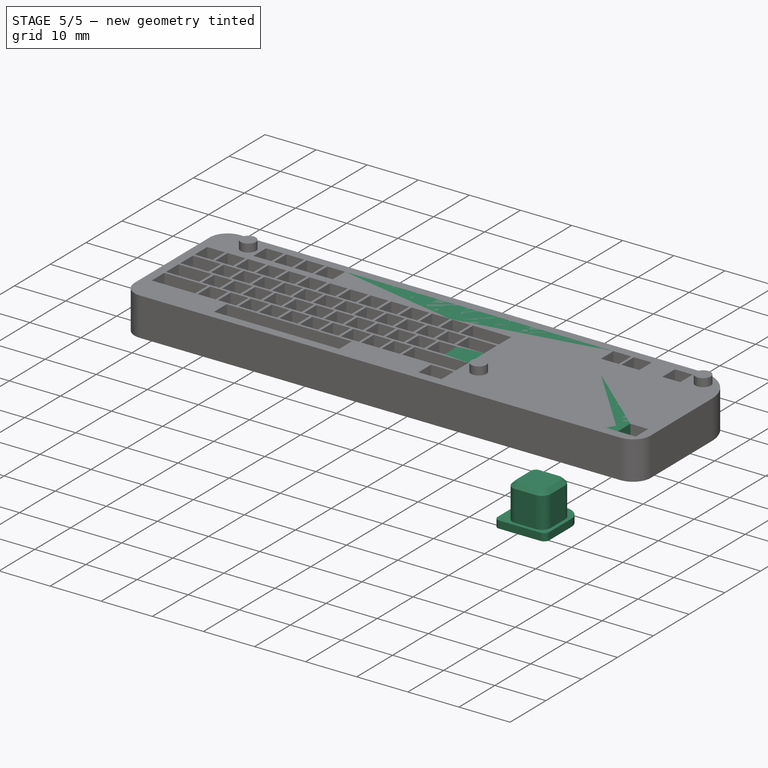
[diagram: stage 5 of 5 — iso view after this stage's code; geometry added in this stage tinted green]
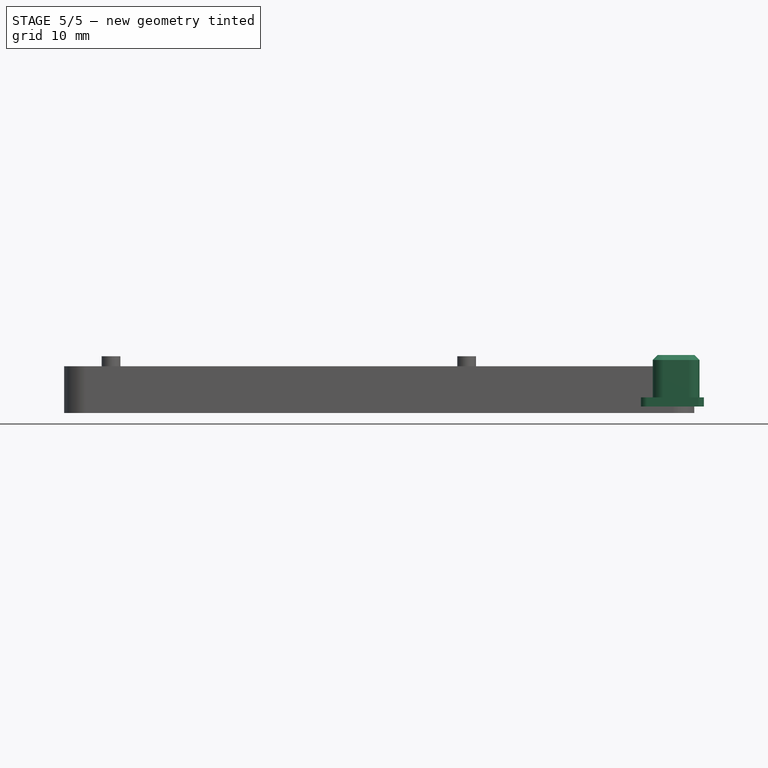
[diagram: stage 5 of 5 — front view after this stage's code; geometry added in this stage tinted green]
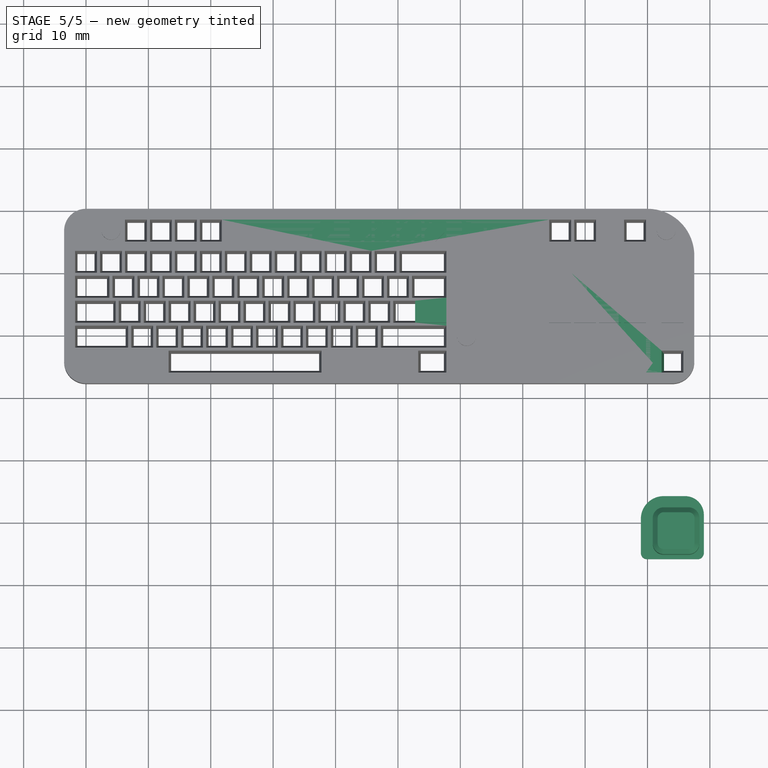
[diagram: stage 5 of 5 — top view after this stage's code; geometry added in this stage tinted green]
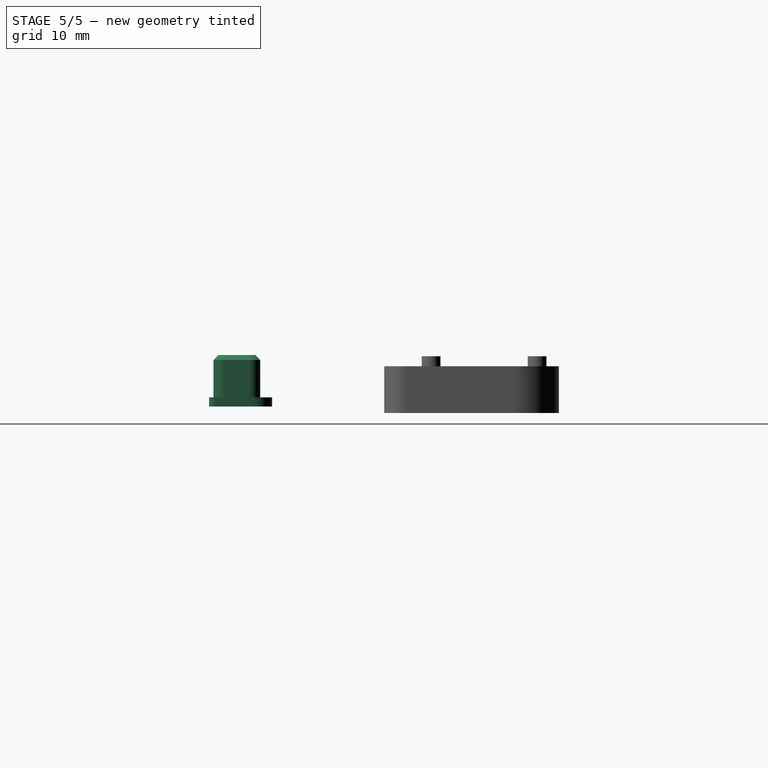
[diagram: stage 5 of 5 — right view after this stage's code; geometry added in this stage tinted green]
FEATURE [PartDesign::SubShapeBinder] Binder001
  BindCopyOnChange = 0
  BindMode = 0
  ClaimChildren = false
  Context = -> Body002 [Binder001.]
  Fuse = false
  MakeFace = true
  OffsetFill = false
  OffsetIntersection = false
  OffsetJoinType = 0
  OffsetOpenResult = false
  PartialLoad = false
  Relative = true
  Support = -> [Body001]
  _Version = 2
FEATURE [Sketcher::SketchObject] Sketch016
  ArcFitTolerance = 1e-06
  AttachmentSupport = -> [Binder001]
  ExternalGeometry = -> [Binder001]
  FullyConstrained = true
  MakeInternals = false
  MapMode = 5
  Placement = pos=(0,0,9.8) rot=(0,0,1;0rad)
  sketch-geometry (8):
    g0: LineSegment StartX=138.334 StartY=-93.3751 StartZ=0 EndX=138.334 EndY=-89.3751 EndZ=0
    g1: LineSegment StartX=136.584 StartY=-87.6251 StartZ=0 EndX=132.584 EndY=-87.6251 EndZ=0
    g2: LineSegment StartX=130.834 StartY=-89.3751 StartZ=0 EndX=130.834 EndY=-93.3751 EndZ=0
    g3: LineSegment StartX=132.584 StartY=-95.1251 StartZ=0 EndX=136.584 EndY=-95.1251 EndZ=0
    g4: ArcOfCircle CenterX=136.584 CenterY=-93.3751 CenterZ=0 NormalX=0 NormalY=0 NormalZ=1 AngleXU=0 Radius=1.75 StartAngle=4.71239 EndAngle=6.28319
    g5: ArcOfCircle CenterX=136.584 CenterY=-89.3751 CenterZ=0 NormalX=0 NormalY=0 NormalZ=1 AngleXU=0 Radius=1.75 StartAngle=3.4e-15 EndAngle=1.5708
    g6: ArcOfCircle CenterX=132.584 CenterY=-89.3751 CenterZ=0 NormalX=0 NormalY=0 NormalZ=1 AngleXU=0 Radius=1.75 StartAngle=1.5708 EndAngle=3.14159
    g7: ArcOfCircle CenterX=132.584 CenterY=-93.3751 CenterZ=0 NormalX=0 NormalY=0 NormalZ=1 AngleXU=0 Radius=1.75 StartAngle=3.14159 EndAngle=4.71239
  constraints (18):
    c: Tangent(g0,g4) = -1.5708
    c: Tangent(g0,g5) = -1.5708
    c: Tangent(g1,g5) = -1.5708
    c: Tangent(g1,g6) = -1.5708
    c: Tangent(g2,g6) = -1.5708
    c: Tangent(g2,g7) = -1.5708
    c: Tangent(g3,g7) = -1.5708
    c: Tangent(g3,g4) = -1.5708
    c: Vertical(g0)
    c: Vertical(g2)
    c: Horizontal(g1)
    c: Horizontal(g3)
    c: Equal(g4,g5)
    c: Equal(g5,g6)
    c: Equal(g6,g7)
    c: DistanceX(g2,g0) = 7.5
    c: Coincident(g6,g-3)
    c: Coincident(g4,g-4)
FEATURE [PartDesign::Pad] Pad005
  Direction = (0,0,1)
  Length = 6
  Length2 = 10
  Profile = -> Sketch016
  ReferenceAxis = -> Sketch016 [N_Axis]
  Reversed = true
  Suppressed = false
  Type = 0
FEATURE [Sketcher::SketchObject] Sketch017
  ArcFitTolerance = 1e-06
  AttachmentSupport = -> [Pad005]
  ExternalGeometry = -> [Pad005]
  FullyConstrained = true
  MakeInternals = false
  MapMode = 5
  Placement = pos=(0,0,3.8) rot=(1,0,0;3.14159rad)
  sketch-geometry (8):
    g0: LineSegment StartX=128.934 StartY=94.8251 StartZ=0 EndX=128.934 EndY=89.3751 EndZ=0
    g1: LineSegment StartX=132.584 StartY=85.7251 StartZ=0 EndX=136.034 EndY=85.7251 EndZ=0
    g2: LineSegment StartX=139.034 StartY=88.7251 StartZ=0 EndX=139.034 EndY=94.8251 EndZ=0
    g3: LineSegment StartX=138.034 StartY=95.8251 StartZ=0 EndX=129.934 EndY=95.8251 EndZ=0
    g4: ArcOfCircle CenterX=132.584 CenterY=89.3751 CenterZ=0 NormalX=0 NormalY=0 NormalZ=1 AngleXU=0 Radius=3.65 StartAngle=3.14159 EndAngle=4.71239
    g5: ArcOfCircle CenterX=136.034 CenterY=88.7251 CenterZ=0 NormalX=0 NormalY=0 NormalZ=1 AngleXU=0 Radius=3 StartAngle=4.71239 EndAngle=6.28319
    g6: ArcOfCircle CenterX=129.934 CenterY=94.8251 CenterZ=0 NormalX=0 NormalY=0 NormalZ=1 AngleXU=0 Radius=1 StartAngle=1.5708 EndAngle=3.14159
    g7: ArcOfCircle CenterX=138.034 CenterY=94.8251 CenterZ=0 NormalX=0 NormalY=0 NormalZ=1 AngleXU=0 Radius=1 StartAngle=-1.8e-15 EndAngle=1.5708
  constraints (19):
    c: Tangent(g0,g4) = -1.5708
    c: Tangent(g1,g4) = -1.5708
    c: Tangent(g1,g5) = -1.5708
    c: Tangent(g2,g5) = -1.5708
    c: Vertical(g0)
    c: Vertical(g2)
    c: Horizontal(g1)
    c: Horizontal(g3)
    c: Tangent(g0,g6) = -1.5708
    c: Tangent(g3,g6) = -1.5708
    c: Tangent(g3,g7) = -1.5708
    c: Tangent(g2,g7) = -1.5708
    c: Equal(g6,g7)
    c: Radius(g6) = 1
    c: Radius(g4) = 3.65
    c: Radius(g5) = 3
    c: DistanceX(g0,g2) = 10.1
    c: DistanceY(g1,g3) = 10.1
    c: Coincident(g4,g-3)
FEATURE [PartDesign::Pad] Pad006
  BaseFeature = -> Pad005
  Direction = (0,0,-1)
  Length = 1.45
  Length2 = 10
  Profile = -> Sketch017
  ReferenceAxis = -> Sketch017 [N_Axis]
  Suppressed = false
  Type = 0
FEATURE [PartDesign::Pad] Pad007
  BaseFeature = -> Pad006
  Direction = (0,0,1)
  Length = 0.8
  Length2 = 10
  Profile = -> Pad006 [Face4]
  Suppressed = false
  TaperAngle = -45
  Type = 0
FEATURE [Sketcher::SketchObject] Sketch020
  ArcFitTolerance = 1e-06
  AttachmentSupport = -> [Pocket011]
  ExternalGeometry = -> [Pocket011]
  FullyConstrained = true
  MakeInternals = false
  MapMode = 5
  Placement = pos=(0,0,8.8) rot=(0,0,1;0rad)
  sketch-geometry (3):
    g0: Circle CenterX=44.0062 CenterY=-43.2397 CenterZ=0 NormalX=0 NormalY=0 NormalZ=1 AngleXU=0 Radius=1.5
    g1: Circle CenterX=133.006 CenterY=-43.2397 CenterZ=0 NormalX=0 NormalY=0 NormalZ=1 AngleXU=0 Radius=1.5
    g2: Circle CenterX=101.006 CenterY=-60.2397 CenterZ=0 NormalX=0 NormalY=0 NormalZ=1 AngleXU=0 Radius=1.5
  constraints (7):
    c: Diameter(g0) = 3
    c: Horizontal(g0,g1)
    c: Equal(g1,g0)
    c: DistanceX(g0,g1) = 89
    c: Equal(g2,g0)
    c: Symmetric(g-5,g-4,g2)
    c: Symmetric(g-6,g-3,g0)
FEATURE [PartDesign::Pad] Pad009
  BaseFeature = -> Pocket011
  Direction = (0,0,1)
  Length = 1.6
  Length2 = 10
  Profile = -> Sketch020
  ReferenceAxis = -> Sketch020 [N_Axis]
  Suppressed = false
  Type = 0
FEATURE [Sketcher::SketchObject] Sketch026
  ArcFitTolerance = 1e-06
  AttachmentSupport = -> [Pocket016]
  ExternalGeometry = -> [Pocket016]
  FullyConstrained = true
  MakeInternals = false
  MapMode = 5
  Placement = pos=(0,0,8.8) rot=(0,0,1;0rad)
  sketch-geometry (5):
    g0: LineSegment StartX=97.7562 StartY=-54.4897 StartZ=0 EndX=92.7562 EndY=-54.4897 EndZ=0
    g1: LineSegment StartX=92.7562 StartY=-54.4897 StartZ=0 EndX=92.7562 EndY=-57.9897 EndZ=0
    g2: LineSegment StartX=92.7562 StartY=-57.9897 StartZ=0 EndX=97.7562 EndY=-57.9897 EndZ=0
    g3: LineSegment StartX=97.7562 StartY=-57.9897 StartZ=0 EndX=97.7562 EndY=-54.4897 EndZ=0
    g4: LineSegment [constr] StartX=89.2562 StartY=-54.4897 StartZ=0 EndX=92.7562 EndY=-54.4897 EndZ=0
  constraints (12):
    c: Coincident(g0,g1)
    c: Coincident(g1,g2)
    c: Coincident(g2,g3)
    c: Coincident(g3,g0)
    c: Horizontal(g0)
    c: Horizontal(g2)
    c: Vertical(g1)
    c: Coincident(g0,g-3)
    c: Coincident(g2,g-3)
    c: Coincident(g4,g-4)
    c: Coincident(g4,g0)
    c: Equal(g4,g-5)
FEATURE [PartDesign::Pad] Pad015
  BaseFeature = -> Pocket016
  Direction = (-1,0,1)
  Length = 10
  Length2 = 10
  Placement = pos=(0,0,8.8) rot=(0,0,1;0rad)
  Profile = -> Sketch026
  ReferenceAxis = -> Sketch026 [N_Axis]
  Refine = true
  Reversed = true
  Suppressed = false
  Type = 3
  UpToFace = -> Pocket016 [Face5]
  UseCustomVector = true
FEATURE [PartDesign::Body] Body004  label="Atari XE light tunnels"
  AllowCompound = false
  Group = -> [Clone2D,Pad013,Clone2D001,Pad014,Clone2D002,Sketch025,Pocket016,Sketch026,Pad015]
  Origin = -> Origin004
  Placement = pos=(0,57,0) rot=(0,0,1;0rad)
  Tip = -> Pad015
FEATURE [Part::Part2DObjectPython] Clone2D003  label="Sketch018 (2D)001"  # Draft 2D object (typed FeaturePython)
  Fuse = false
  Objects = -> [Sketch018]
  Placement = pos=(0,0,8.8) rot=(0,0,1;0rad)
  Scale = (1,1,1)
FEATURE [Part::Part2DObjectPython] Clone2D004  label="Sketch020 (2D)001"  # Draft 2D object (typed FeaturePython)
  Fuse = false
  Objects = -> [Sketch020]
  Placement = pos=(0,0,8.8) rot=(0,0,1;0rad)
  Scale = (1,1,1)
FEATURE [Part::Part2DObjectPython] Clone2D005  label="Sketch019 (2D)001"  # Draft 2D object (typed FeaturePython)
  Fuse = false
  Objects = -> [Sketch019]
  Placement = pos=(0,0,8.8) rot=(0,0,1;0rad)
  Scale = (1,1,1)
FEATURE [PartDesign::Pad] Pad016
  Direction = (0,0,1)
  Length = 7.5
  Length2 = 10
  Placement = pos=(0,0,8.8) rot=(0,0,1;0rad)
  Profile = -> Clone2D003
  ReferenceAxis = -> Clone2D003 [N_Axis]
  Reversed = true
  Suppressed = false
  Type = 0
FEATURE [PartDesign::Pad] Pad017
  BaseFeature = -> Pad016
  Direction = (0,0,1)
  Length = 1.6
  Length2 = 10
  Placement = pos=(0,0,8.8) rot=(0,0,1;0rad)
  Profile = -> Clone2D004
  ReferenceAxis = -> Clone2D004 [N_Axis]
  Suppressed = false
  Type = 0
FEATURE [Sketcher::SketchObject] Sketch027
  ArcFitTolerance = 1e-06
  AttachmentSupport = -> [Pad017]
  ExternalGeometry = -> [Clone2D005]
  FullyConstrained = true
  MakeInternals = false
  MapMode = 5
  Placement = pos=(0,0,8.8) rot=(0,0,1;0rad)
  sketch-geometry (286):
    g0: LineSegment StartX=46.2562 StartY=-41.4897 StartZ=0 EndX=46.2562 EndY=-44.9897 EndZ=0
    g1: LineSegment StartX=46.2562 StartY=-44.9897 StartZ=0 EndX=49.7562 EndY=-44.9897 EndZ=0
    g2: LineSegment StartX=49.7562 StartY=-44.9897 StartZ=0 EndX=49.7562 EndY=-41.4897 EndZ=0
    g3: LineSegment StartX=49.7562 StartY=-41.4897 StartZ=0 EndX=46.2562 EndY=-41.4897 EndZ=0
    g4: LineSegment StartX=50.2562 StartY=-41.4897 StartZ=0 EndX=50.2562 EndY=-44.9897 EndZ=0
    g5: LineSegment StartX=50.2562 StartY=-44.9897 StartZ=0 EndX=53.7562 EndY=-44.9897 EndZ=0
    g6: LineSegment StartX=53.7562 StartY=-44.9897 StartZ=0 EndX=53.7562 EndY=-41.4897 EndZ=0
    g7: LineSegment StartX=53.7562 StartY=-41.4897 StartZ=0 EndX=50.2562 EndY=-41.4897 EndZ=0
    g8: LineSegment StartX=54.2562 StartY=-41.4897 StartZ=0 EndX=54.2562 EndY=-44.9897 EndZ=0
    g9: LineSegment StartX=54.2562 StartY=-44.9897 StartZ=0 EndX=57.7562 EndY=-44.9897 EndZ=0
    g10: LineSegment StartX=57.7562 StartY=-44.9897 StartZ=0 EndX=57.7562 EndY=-41.4897 EndZ=0
    g11: LineSegment StartX=57.7562 StartY=-41.4897 StartZ=0 EndX=54.2562 EndY=-41.4897 EndZ=0
    g12: LineSegment StartX=58.2562 StartY=-41.4897 StartZ=0 EndX=58.2562 EndY=-44.9897 EndZ=0
    g13: LineSegment StartX=58.2562 StartY=-44.9897 StartZ=0 EndX=61.7562 EndY=-44.9897 EndZ=0
    g14: LineSegment StartX=61.7562 StartY=-44.9897 StartZ=0 EndX=61.7562 EndY=-41.4897 EndZ=0
    g15: LineSegment StartX=61.7562 StartY=-41.4897 StartZ=0 EndX=58.2562 EndY=-41.4897 EndZ=0
    g16: LineSegment StartX=114.256 StartY=-41.4897 StartZ=0 EndX=114.256 EndY=-44.9897 EndZ=0
    g17: LineSegment StartX=114.256 StartY=-44.9897 StartZ=0 EndX=117.756 EndY=-44.9897 EndZ=0
    g18: LineSegment StartX=117.756 StartY=-44.9897 StartZ=0 EndX=117.756 EndY=-41.4897 EndZ=0
    g19: LineSegment StartX=117.756 StartY=-41.4897 StartZ=0 EndX=114.256 EndY=-41.4897 EndZ=0
    g20: LineSegment StartX=118.256 StartY=-41.4897 StartZ=0 EndX=118.256 EndY=-44.9897 EndZ=0
    g21: LineSegment StartX=118.256 StartY=-44.9897 StartZ=0 EndX=121.756 EndY=-44.9897 EndZ=0
    g22: LineSegment StartX=121.756 StartY=-44.9897 StartZ=0 EndX=121.756 EndY=-41.4897 EndZ=0
    g23: LineSegment StartX=121.756 StartY=-41.4897 StartZ=0 EndX=118.256 EndY=-41.4897 EndZ=0
    g24: LineSegment StartX=126.256 StartY=-41.4897 StartZ=0 EndX=126.256 EndY=-44.9897 EndZ=0
    g25: LineSegment StartX=126.256 StartY=-44.9897 StartZ=0 EndX=129.756 EndY=-44.9897 EndZ=0
    g26: LineSegment StartX=129.756 StartY=-44.9897 StartZ=0 EndX=129.756 EndY=-41.4897 EndZ=0
    g27: LineSegment StartX=129.756 StartY=-41.4897 StartZ=0 EndX=126.256 EndY=-41.4897 EndZ=0
    g28: LineSegment StartX=38.2562 StartY=-46.4897 StartZ=0 EndX=38.2562 EndY=-49.9897 EndZ=0
    g29: LineSegment StartX=38.2562 StartY=-49.9897 StartZ=0 EndX=41.7562 EndY=-49.9897 EndZ=0
    g30: LineSegment StartX=41.7562 StartY=-49.9897 StartZ=0 EndX=41.7562 EndY=-46.4897 EndZ=0
    g31: LineSegment StartX=41.7562 StartY=-46.4897 StartZ=0 EndX=38.2562 EndY=-46.4897 EndZ=0
    g32: LineSegment StartX=42.2562 StartY=-46.4897 StartZ=0 EndX=42.2562 EndY=-49.9897 EndZ=0
    g33: LineSegment StartX=42.2562 StartY=-49.9897 StartZ=0 EndX=45.7562 EndY=-49.9897 EndZ=0
    g34: LineSegment StartX=45.7562 StartY=-49.9897 StartZ=0 EndX=45.7562 EndY=-46.4897 EndZ=0
    g35: LineSegment StartX=45.7562 StartY=-46.4897 StartZ=0 EndX=42.2562 EndY=-46.4897 EndZ=0
    g36: LineSegment StartX=46.2562 StartY=-46.4897 StartZ=0 EndX=46.2562 EndY=-49.9897 EndZ=0
    g37: LineSegment StartX=46.2562 StartY=-49.9897 StartZ=0 EndX=49.7562 EndY=-49.9897 EndZ=0
    g38: LineSegment StartX=49.7562 StartY=-49.9897 StartZ=0 EndX=49.7562 EndY=-46.4897 EndZ=0
    g39: LineSegment StartX=49.7562 StartY=-46.4897 StartZ=0 EndX=46.2562 EndY=-46.4897 EndZ=0
    g40: LineSegment StartX=50.2562 StartY=-46.4897 StartZ=0 EndX=50.2562 EndY=-49.9897 EndZ=0
    g41: LineSegment StartX=50.2562 StartY=-49.9897 StartZ=0 EndX=53.7562 EndY=-49.9897 EndZ=0
    g42: LineSegment StartX=53.7562 StartY=-49.9897 StartZ=0 EndX=53.7562 EndY=-46.4897 EndZ=0
    g43: LineSegment StartX=53.7562 StartY=-46.4897 StartZ=0 EndX=50.2562 EndY=-46.4897 EndZ=0
    g44: LineSegment StartX=54.2562 StartY=-46.4897 StartZ=0 EndX=54.2562 EndY=-49.9897 EndZ=0
    g45: LineSegment StartX=54.2562 StartY=-49.9897 StartZ=0 EndX=57.7562 EndY=-49.9897 EndZ=0
    g46: LineSegment StartX=57.7562 StartY=-49.9897 StartZ=0 EndX=57.7562 EndY=-46.4897 EndZ=0
    g47: LineSegment StartX=57.7562 StartY=-46.4897 StartZ=0 EndX=54.2562 EndY=-46.4897 EndZ=0
    g48: LineSegment StartX=58.2562 StartY=-46.4897 StartZ=0 EndX=58.2562 EndY=-49.9897 EndZ=0
    g49: LineSegment StartX=58.2562 StartY=-49.9897 StartZ=0 EndX=61.7562 EndY=-49.9897 EndZ=0
    g50: LineSegment StartX=61.7562 StartY=-49.9897 StartZ=0 EndX=61.7562 EndY=-46.4897 EndZ=0
    g51: LineSegment StartX=61.7562 StartY=-46.4897 StartZ=0 EndX=58.2562 EndY=-46.4897 EndZ=0
    g52: LineSegment StartX=62.2562 StartY=-46.4897 StartZ=0 EndX=62.2562 EndY=-49.9897 EndZ=0
    g53: LineSegment StartX=62.2562 StartY=-49.9897 StartZ=0 EndX=65.7562 EndY=-49.9897 EndZ=0
    g54: LineSegment StartX=65.7562 StartY=-49.9897 StartZ=0 EndX=65.7562 EndY=-46.4897 EndZ=0
    g55: LineSegment StartX=65.7562 StartY=-46.4897 StartZ=0 EndX=62.2562 EndY=-46.4897 EndZ=0
    g56: LineSegment StartX=66.2562 StartY=-46.4897 StartZ=0 EndX=66.2562 EndY=-49.9897 EndZ=0
    g57: LineSegment StartX=66.2562 StartY=-49.9897 StartZ=0 EndX=69.7562 EndY=-49.9897 EndZ=0
    g58: LineSegment StartX=69.7562 StartY=-49.9897 StartZ=0 EndX=69.7562 EndY=-46.4897 EndZ=0
    g59: LineSegment StartX=69.7562 StartY=-46.4897 StartZ=0 EndX=66.2562 EndY=-46.4897 EndZ=0
    g60: LineSegment StartX=70.2562 StartY=-46.4897 StartZ=0 EndX=70.2562 EndY=-49.9897 EndZ=0
    g61: LineSegment StartX=70.2562 StartY=-49.9897 StartZ=0 EndX=73.7562 EndY=-49.9897 EndZ=0
    g62: LineSegment StartX=73.7562 StartY=-49.9897 StartZ=0 EndX=73.7562 EndY=-46.4897 EndZ=0
    g63: LineSegment StartX=73.7562 StartY=-46.4897 StartZ=0 EndX=70.2562 EndY=-46.4897 EndZ=0
    g64: LineSegment StartX=74.2562 StartY=-46.4897 StartZ=0 EndX=74.2562 EndY=-49.9897 EndZ=0
    g65: LineSegment StartX=74.2562 StartY=-49.9897 StartZ=0 EndX=77.7562 EndY=-49.9897 EndZ=0
    g66: LineSegment StartX=77.7562 StartY=-49.9897 StartZ=0 EndX=77.7562 EndY=-46.4897 EndZ=0
    g67: LineSegment StartX=77.7562 StartY=-46.4897 StartZ=0 EndX=74.2562 EndY=-46.4897 EndZ=0
    g68: LineSegment StartX=78.2562 StartY=-46.4897 StartZ=0 EndX=78.2562 EndY=-49.9897 EndZ=0
    g69: LineSegment StartX=78.2562 StartY=-49.9897 StartZ=0 EndX=81.7562 EndY=-49.9897 EndZ=0
    g70: LineSegment StartX=81.7562 StartY=-49.9897 StartZ=0 EndX=81.7562 EndY=-46.4897 EndZ=0
    g71: LineSegment StartX=81.7562 StartY=-46.4897 StartZ=0 EndX=78.2562 EndY=-46.4897 EndZ=0
    g72: LineSegment StartX=82.2562 StartY=-46.4897 StartZ=0 EndX=82.2562 EndY=-49.9897 EndZ=0
    g73: LineSegment StartX=82.2562 StartY=-49.9897 StartZ=0 EndX=85.7562 EndY=-49.9897 EndZ=0
    g74: LineSegment StartX=85.7562 StartY=-49.9897 StartZ=0 EndX=85.7562 EndY=-46.4897 EndZ=0
    g75: LineSegment StartX=85.7562 StartY=-46.4897 StartZ=0 EndX=82.2562 EndY=-46.4897 EndZ=0
    g76: LineSegment StartX=86.2562 StartY=-46.4897 StartZ=0 EndX=86.2562 EndY=-49.9897 EndZ=0
    g77: LineSegment StartX=86.2562 StartY=-49.9897 StartZ=0 EndX=89.7562 EndY=-49.9897 EndZ=0
    g78: LineSegment StartX=89.7562 StartY=-49.9897 StartZ=0 EndX=89.7562 EndY=-46.4897 EndZ=0
    g79: LineSegment StartX=89.7562 StartY=-46.4897 StartZ=0 EndX=86.2562 EndY=-46.4897 EndZ=0
    g80: LineSegment StartX=90.2562 StartY=-46.4897 StartZ=0 EndX=90.2562 EndY=-49.9897 EndZ=0
    g81: LineSegment StartX=90.2562 StartY=-49.9897 StartZ=0 EndX=97.7562 EndY=-49.9897 EndZ=0
    g82: LineSegment StartX=97.7562 StartY=-49.9897 StartZ=0 EndX=97.7562 EndY=-46.4897 EndZ=0
    g83: LineSegment StartX=97.7562 StartY=-46.4897 StartZ=0 EndX=90.2562 EndY=-46.4897 EndZ=0
    g84: LineSegment StartX=100.256 StartY=-46.4897 StartZ=0 EndX=100.256 EndY=-49.9897 EndZ=0
    g85: LineSegment StartX=100.256 StartY=-49.9897 StartZ=0 EndX=103.756 EndY=-49.9897 EndZ=0
    g86: LineSegment StartX=103.756 StartY=-49.9897 StartZ=0 EndX=103.756 EndY=-46.4897 EndZ=0
    g87: LineSegment StartX=103.756 StartY=-46.4897 StartZ=0 EndX=100.256 EndY=-46.4897 EndZ=0
    g88: LineSegment StartX=104.256 StartY=-46.4897 StartZ=0 EndX=104.256 EndY=-49.9897 EndZ=0
    g89: LineSegment StartX=104.256 StartY=-49.9897 StartZ=0 EndX=107.756 EndY=-49.9897 EndZ=0
    g90: LineSegment StartX=107.756 StartY=-49.9897 StartZ=0 EndX=107.756 EndY=-46.4897 EndZ=0
    g91: LineSegment StartX=107.756 StartY=-46.4897 StartZ=0 EndX=104.256 EndY=-46.4897 EndZ=0
    g92: LineSegment StartX=108.256 StartY=-46.4897 StartZ=0 EndX=108.256 EndY=-49.9897 EndZ=0
    g93: LineSegment StartX=108.256 StartY=-49.9897 StartZ=0 EndX=113.756 EndY=-49.9897 EndZ=0
    g94: LineSegment StartX=113.756 StartY=-49.9897 StartZ=0 EndX=113.756 EndY=-46.4897 EndZ=0
    g95: LineSegment StartX=113.756 StartY=-46.4897 StartZ=0 EndX=108.256 EndY=-46.4897 EndZ=0
    g96: LineSegment StartX=114.256 StartY=-46.4897 StartZ=0 EndX=114.256 EndY=-49.9897 EndZ=0
    g97: LineSegment StartX=114.256 StartY=-49.9897 StartZ=0 EndX=117.756 EndY=-49.9897 EndZ=0
    g98: LineSegment StartX=117.756 StartY=-49.9897 StartZ=0 EndX=117.756 EndY=-46.4897 EndZ=0
    g99: LineSegment StartX=117.756 StartY=-46.4897 StartZ=0 EndX=114.256 EndY=-46.4897 EndZ=0
    g100: LineSegment StartX=132.256 StartY=-46.4897 StartZ=0 EndX=132.256 EndY=-49.9897 EndZ=0
    g101: LineSegment StartX=132.256 StartY=-49.9897 StartZ=0 EndX=135.756 EndY=-49.9897 EndZ=0
    g102: LineSegment StartX=135.756 StartY=-49.9897 StartZ=0 EndX=135.756 EndY=-46.4897 EndZ=0
    g103: LineSegment StartX=135.756 StartY=-46.4897 StartZ=0 EndX=132.256 EndY=-46.4897 EndZ=0
    g104: LineSegment [constr] StartX=107.756 StartY=-46.4897 StartZ=0 EndX=108.256 EndY=-46.4897 EndZ=0
    g105: LineSegment [constr] StartX=113.756 StartY=-46.4897 StartZ=0 EndX=114.256 EndY=-46.4897 EndZ=0
    g106: LineSegment StartX=38.2562 StartY=-50.4897 StartZ=0 EndX=38.2562 EndY=-53.9897 EndZ=0
    g107: LineSegment StartX=38.2562 StartY=-53.9897 StartZ=0 EndX=43.7562 EndY=-53.9897 EndZ=0
    g108: LineSegment StartX=43.7562 StartY=-53.9897 StartZ=0 EndX=43.7562 EndY=-50.4897 EndZ=0
    g109: LineSegment StartX=43.7562 StartY=-50.4897 StartZ=0 EndX=38.2562 EndY=-50.4897 EndZ=0
    g110: LineSegment StartX=44.2562 StartY=-50.4897 StartZ=0 EndX=44.2562 EndY=-53.9897 EndZ=0
    g111: LineSegment StartX=44.2562 StartY=-53.9897 StartZ=0 EndX=47.7562 EndY=-53.9897 EndZ=0
    g112: LineSegment StartX=47.7562 StartY=-53.9897 StartZ=0 EndX=47.7562 EndY=-50.4897 EndZ=0
    g113: LineSegment StartX=47.7562 StartY=-50.4897 StartZ=0 EndX=44.2562 EndY=-50.4897 EndZ=0
    g114: LineSegment StartX=48.2562 StartY=-50.4897 StartZ=0 EndX=48.2562 EndY=-53.9897 EndZ=0
    g115: LineSegment StartX=48.2562 StartY=-53.9897 StartZ=0 EndX=51.7562 EndY=-53.9897 EndZ=0
    g116: LineSegment StartX=51.7562 StartY=-53.9897 StartZ=0 EndX=51.7562 EndY=-50.4897 EndZ=0
    g117: LineSegment StartX=51.7562 StartY=-50.4897 StartZ=0 EndX=48.2562 EndY=-50.4897 EndZ=0
    g118: LineSegment StartX=52.2562 StartY=-50.4897 StartZ=0 EndX=52.2562 EndY=-53.9897 EndZ=0
    g119: LineSegment StartX=52.2562 StartY=-53.9897 StartZ=0 EndX=55.7562 EndY=-53.9897 EndZ=0
    g120: LineSegment StartX=55.7562 StartY=-53.9897 StartZ=0 EndX=55.7562 EndY=-50.4897 EndZ=0
    g121: LineSegment StartX=55.7562 StartY=-50.4897 StartZ=0 EndX=52.2562 EndY=-50.4897 EndZ=0
    g122: LineSegment StartX=56.2562 StartY=-50.4897 StartZ=0 EndX=56.2562 EndY=-53.9897 EndZ=0
    g123: LineSegment StartX=56.2562 StartY=-53.9897 StartZ=0 EndX=59.7562 EndY=-53.9897 EndZ=0
    g124: LineSegment StartX=59.7562 StartY=-53.9897 StartZ=0 EndX=59.7562 EndY=-50.4897 EndZ=0
    g125: LineSegment StartX=59.7562 StartY=-50.4897 StartZ=0 EndX=56.2562 EndY=-50.4897 EndZ=0
    g126: LineSegment StartX=60.2562 StartY=-50.4897 StartZ=0 EndX=60.2562 EndY=-53.9897 EndZ=0
    g127: LineSegment StartX=60.2562 StartY=-53.9897 StartZ=0 EndX=63.7562 EndY=-53.9897 EndZ=0
    g128: LineSegment StartX=63.7562 StartY=-53.9897 StartZ=0 EndX=63.7562 EndY=-50.4897 EndZ=0
    g129: LineSegment StartX=63.7562 StartY=-50.4897 StartZ=0 EndX=60.2562 EndY=-50.4897 EndZ=0
    g130: LineSegment StartX=64.2562 StartY=-50.4897 StartZ=0 EndX=64.2562 EndY=-53.9897 EndZ=0
    g131: LineSegment StartX=64.2562 StartY=-53.9897 StartZ=0 EndX=67.7562 EndY=-53.9897 EndZ=0
    g132: LineSegment StartX=67.7562 StartY=-53.9897 StartZ=0 EndX=67.7562 EndY=-50.4897 EndZ=0
    g133: LineSegment StartX=67.7562 StartY=-50.4897 StartZ=0 EndX=64.2562 EndY=-50.4897 EndZ=0
    g134: LineSegment StartX=68.2562 StartY=-50.4897 StartZ=0 EndX=68.2562 EndY=-53.9897 EndZ=0
    g135: LineSegment StartX=68.2562 StartY=-53.9897 StartZ=0 EndX=71.7562 EndY=-53.9897 EndZ=0
    g136: LineSegment StartX=71.7562 StartY=-53.9897 StartZ=0 EndX=71.7562 EndY=-50.4897 EndZ=0
    g137: LineSegment StartX=71.7562 StartY=-50.4897 StartZ=0 EndX=68.2562 EndY=-50.4897 EndZ=0
    g138: LineSegment StartX=72.2562 StartY=-50.4897 StartZ=0 EndX=72.2562 EndY=-53.9897 EndZ=0
    g139: LineSegment StartX=72.2562 StartY=-53.9897 StartZ=0 EndX=75.7562 EndY=-53.9897 EndZ=0
    g140: LineSegment StartX=75.7562 StartY=-53.9897 StartZ=0 EndX=75.7562 EndY=-50.4897 EndZ=0
    g141: LineSegment StartX=75.7562 StartY=-50.4897 StartZ=0 EndX=72.2562 EndY=-50.4897 EndZ=0
    g142: LineSegment StartX=76.2562 StartY=-50.4897 StartZ=0 EndX=76.2562 EndY=-53.9897 EndZ=0
    g143: LineSegment StartX=76.2562 StartY=-53.9897 StartZ=0 EndX=79.7562 EndY=-53.9897 EndZ=0
    g144: LineSegment StartX=79.7562 StartY=-53.9897 StartZ=0 EndX=79.7562 EndY=-50.4897 EndZ=0
    g145: LineSegment StartX=79.7562 StartY=-50.4897 StartZ=0 EndX=76.2562 EndY=-50.4897 EndZ=0
    g146: LineSegment StartX=80.2562 StartY=-50.4897 StartZ=0 EndX=80.2562 EndY=-53.9897 EndZ=0
    g147: LineSegment StartX=80.2562 StartY=-53.9897 StartZ=0 EndX=83.7562 EndY=-53.9897 EndZ=0
    g148: LineSegment StartX=83.7562 StartY=-53.9897 StartZ=0 EndX=83.7562 EndY=-50.4897 EndZ=0
    g149: LineSegment StartX=83.7562 StartY=-50.4897 StartZ=0 EndX=80.2562 EndY=-50.4897 EndZ=0
    g150: LineSegment StartX=84.2562 StartY=-50.4897 StartZ=0 EndX=84.2562 EndY=-53.9897 EndZ=0
    g151: LineSegment StartX=84.2562 StartY=-53.9897 StartZ=0 EndX=87.7562 EndY=-53.9897 EndZ=0
    g152: LineSegment StartX=87.7562 StartY=-53.9897 StartZ=0 EndX=87.7562 EndY=-50.4897 EndZ=0
    g153: LineSegment StartX=87.7562 StartY=-50.4897 StartZ=0 EndX=84.2562 EndY=-50.4897 EndZ=0
    g154: LineSegment StartX=88.2562 StartY=-50.4897 StartZ=0 EndX=88.2562 EndY=-53.9897 EndZ=0
    g155: LineSegment StartX=88.2562 StartY=-53.9897 StartZ=0 EndX=91.7562 EndY=-53.9897 EndZ=0
    g156: LineSegment StartX=91.7562 StartY=-53.9897 StartZ=0 EndX=91.7562 EndY=-50.4897 EndZ=0
    g157: LineSegment StartX=91.7562 StartY=-50.4897 StartZ=0 EndX=88.2562 EndY=-50.4897 EndZ=0
    g158: LineSegment StartX=92.2562 StartY=-50.4897 StartZ=0 EndX=92.2562 EndY=-53.9897 EndZ=0
    g159: LineSegment StartX=92.2562 StartY=-53.9897 StartZ=0 EndX=97.7562 EndY=-53.9897 EndZ=0
    g160: LineSegment StartX=97.7562 StartY=-53.9897 StartZ=0 EndX=97.7562 EndY=-50.4897 EndZ=0
    g161: LineSegment StartX=97.7562 StartY=-50.4897 StartZ=0 EndX=92.2562 EndY=-50.4897 EndZ=0
    g162: LineSegment StartX=132.256 StartY=-50.4897 StartZ=0 EndX=132.256 EndY=-53.9897 EndZ=0
    g163: LineSegment StartX=132.256 StartY=-53.9897 StartZ=0 EndX=135.756 EndY=-53.9897 EndZ=0
    g164: LineSegment StartX=135.756 StartY=-53.9897 StartZ=0 EndX=135.756 EndY=-50.4897 EndZ=0
    g165: LineSegment StartX=135.756 StartY=-50.4897 StartZ=0 EndX=132.256 EndY=-50.4897 EndZ=0
    g166: LineSegment StartX=38.2562 StartY=-54.4897 StartZ=0 EndX=38.2562 EndY=-57.9897 EndZ=0
    g167: LineSegment StartX=38.2562 StartY=-57.9897 StartZ=0 EndX=44.7562 EndY=-57.9897 EndZ=0
    g168: LineSegment StartX=44.7562 StartY=-57.9897 StartZ=0 EndX=44.7562 EndY=-54.4897 EndZ=0
    g169: LineSegment StartX=44.7562 StartY=-54.4897 StartZ=0 EndX=38.2562 EndY=-54.4897 EndZ=0
    g170: LineSegment StartX=45.2562 StartY=-54.4897 StartZ=0 EndX=45.2562 EndY=-57.9897 EndZ=0
    g171: LineSegment StartX=45.2562 StartY=-57.9897 StartZ=0 EndX=48.7562 EndY=-57.9897 EndZ=0
    g172: LineSegment StartX=48.7562 StartY=-57.9897 StartZ=0 EndX=48.7562 EndY=-54.4897 EndZ=0
    g173: LineSegment StartX=48.7562 StartY=-54.4897 StartZ=0 EndX=45.2562 EndY=-54.4897 EndZ=0
    g174: LineSegment StartX=49.2562 StartY=-54.4897 StartZ=0 EndX=49.2562 EndY=-57.9897 EndZ=0
    g175: LineSegment StartX=49.2562 StartY=-57.9897 StartZ=0 EndX=52.7562 EndY=-57.9897 EndZ=0
    g176: LineSegment StartX=52.7562 StartY=-57.9897 StartZ=0 EndX=52.7562 EndY=-54.4897 EndZ=0
    g177: LineSegment StartX=52.7562 StartY=-54.4897 StartZ=0 EndX=49.2562 EndY=-54.4897 EndZ=0
    g178: LineSegment StartX=53.2562 StartY=-54.4897 StartZ=0 EndX=53.2562 EndY=-57.9897 EndZ=0
    g179: LineSegment StartX=53.2562 StartY=-57.9897 StartZ=0 EndX=56.7562 EndY=-57.9897 EndZ=0
    g180: LineSegment StartX=56.7562 StartY=-57.9897 StartZ=0 EndX=56.7562 EndY=-54.4897 EndZ=0
    g181: LineSegment StartX=56.7562 StartY=-54.4897 StartZ=0 EndX=53.2562 EndY=-54.4897 EndZ=0
    g182: LineSegment StartX=57.2562 StartY=-54.4897 StartZ=0 EndX=57.2562 EndY=-57.9897 EndZ=0
    g183: LineSegment StartX=57.2562 StartY=-57.9897 StartZ=0 EndX=60.7562 EndY=-57.9897 EndZ=0
    g184: LineSegment StartX=60.7562 StartY=-57.9897 StartZ=0 EndX=60.7562 EndY=-54.4897 EndZ=0
    g185: LineSegment StartX=60.7562 StartY=-54.4897 StartZ=0 EndX=57.2562 EndY=-54.4897 EndZ=0
    g186: LineSegment StartX=61.2562 StartY=-54.4897 StartZ=0 EndX=61.2562 EndY=-57.9897 EndZ=0
    g187: LineSegment StartX=61.2562 StartY=-57.9897 StartZ=0 EndX=64.7562 EndY=-57.9897 EndZ=0
    g188: LineSegment StartX=64.7562 StartY=-57.9897 StartZ=0 EndX=64.7562 EndY=-54.4897 EndZ=0
    g189: LineSegment StartX=64.7562 StartY=-54.4897 StartZ=0 EndX=61.2562 EndY=-54.4897 EndZ=0
    g190: LineSegment StartX=65.2562 StartY=-54.4897 StartZ=0 EndX=65.2562 EndY=-57.9897 EndZ=0
    g191: LineSegment StartX=65.2562 StartY=-57.9897 StartZ=0 EndX=68.7562 EndY=-57.9897 EndZ=0
    g192: LineSegment StartX=68.7562 StartY=-57.9897 StartZ=0 EndX=68.7562 EndY=-54.4897 EndZ=0
    g193: LineSegment StartX=68.7562 StartY=-54.4897 StartZ=0 EndX=65.2562 EndY=-54.4897 EndZ=0
    g194: LineSegment StartX=69.2562 StartY=-54.4897 StartZ=0 EndX=69.2562 EndY=-57.9897 EndZ=0
    g195: LineSegment StartX=69.2562 StartY=-57.9897 StartZ=0 EndX=72.7562 EndY=-57.9897 EndZ=0
    g196: LineSegment StartX=72.7562 StartY=-57.9897 StartZ=0 EndX=72.7562 EndY=-54.4897 EndZ=0
    g197: LineSegment StartX=72.7562 StartY=-54.4897 StartZ=0 EndX=69.2562 EndY=-54.4897 EndZ=0
    g198: LineSegment StartX=73.2562 StartY=-54.4897 StartZ=0 EndX=73.2562 EndY=-57.9897 EndZ=0
    g199: LineSegment StartX=73.2562 StartY=-57.9897 StartZ=0 EndX=76.7562 EndY=-57.9897 EndZ=0
    g200: LineSegment StartX=76.7562 StartY=-57.9897 StartZ=0 EndX=76.7562 EndY=-54.4897 EndZ=0
    g201: LineSegment StartX=76.7562 StartY=-54.4897 StartZ=0 EndX=73.2562 EndY=-54.4897 EndZ=0
    g202: LineSegment StartX=77.2562 StartY=-54.4897 StartZ=0 EndX=77.2562 EndY=-57.9897 EndZ=0
    g203: LineSegment StartX=77.2562 StartY=-57.9897 StartZ=0 EndX=80.7562 EndY=-57.9897 EndZ=0
    g204: LineSegment StartX=80.7562 StartY=-57.9897 StartZ=0 EndX=80.7562 EndY=-54.4897 EndZ=0
    g205: LineSegment StartX=80.7562 StartY=-54.4897 StartZ=0 EndX=77.2562 EndY=-54.4897 EndZ=0
    g206: LineSegment StartX=81.2562 StartY=-54.4897 StartZ=0 EndX=81.2562 EndY=-57.9897 EndZ=0
    g207: LineSegment StartX=81.2562 StartY=-57.9897 StartZ=0 EndX=84.7562 EndY=-57.9897 EndZ=0
    g208: LineSegment StartX=84.7562 StartY=-57.9897 StartZ=0 EndX=84.7562 EndY=-54.4897 EndZ=0
    g209: LineSegment StartX=84.7562 StartY=-54.4897 StartZ=0 EndX=81.2562 EndY=-54.4897 EndZ=0
    g210: LineSegment StartX=85.2562 StartY=-54.4897 StartZ=0 EndX=85.2562 EndY=-57.9897 EndZ=0
    g211: LineSegment StartX=85.2562 StartY=-57.9897 StartZ=0 EndX=88.7562 EndY=-57.9897 EndZ=0
    g212: LineSegment StartX=88.7562 StartY=-57.9897 StartZ=0 EndX=88.7562 EndY=-54.4897 EndZ=0
    g213: LineSegment StartX=88.7562 StartY=-54.4897 StartZ=0 EndX=85.2562 EndY=-54.4897 EndZ=0
    g214: LineSegment StartX=89.2562 StartY=-54.4897 StartZ=0 EndX=89.2562 EndY=-57.9897 EndZ=0
    g215: LineSegment StartX=89.2562 StartY=-57.9897 StartZ=0 EndX=97.7562 EndY=-57.9897 EndZ=0
    g216: LineSegment StartX=97.7562 StartY=-57.9897 StartZ=0 EndX=97.7562 EndY=-54.4897 EndZ=0
    g217: LineSegment StartX=97.7562 StartY=-54.4897 StartZ=0 EndX=89.2562 EndY=-54.4897 EndZ=0
    g218: LineSegment StartX=132.256 StartY=-54.4897 StartZ=0 EndX=132.256 EndY=-57.9897 EndZ=0
    g219: LineSegment StartX=132.256 StartY=-57.9897 StartZ=0 EndX=135.756 EndY=-57.9897 EndZ=0
    g220: LineSegment StartX=135.756 StartY=-57.9897 StartZ=0 EndX=135.756 EndY=-54.4897 EndZ=0
    g221: LineSegment StartX=135.756 StartY=-54.4897 StartZ=0 EndX=132.256 EndY=-54.4897 EndZ=0
    g222: LineSegment StartX=38.2562 StartY=-58.4897 StartZ=0 EndX=38.2562 EndY=-61.9897 EndZ=0
    g223: LineSegment StartX=38.2562 StartY=-61.9897 StartZ=0 EndX=46.7562 EndY=-61.9897 EndZ=0
    g224: LineSegment StartX=46.7562 StartY=-61.9897 StartZ=0 EndX=46.7562 EndY=-58.4897 EndZ=0
    g225: LineSegment StartX=46.7562 StartY=-58.4897 StartZ=0 EndX=38.2562 EndY=-58.4897 EndZ=0
    g226: LineSegment StartX=47.2562 StartY=-58.4897 StartZ=0 EndX=47.2562 EndY=-61.9897 EndZ=0
    g227: LineSegment StartX=47.2562 StartY=-61.9897 StartZ=0 EndX=50.7562 EndY=-61.9897 EndZ=0
    g228: LineSegment StartX=50.7562 StartY=-61.9897 StartZ=0 EndX=50.7562 EndY=-58.4897 EndZ=0
    g229: LineSegment StartX=50.7562 StartY=-58.4897 StartZ=0 EndX=47.2562 EndY=-58.4897 EndZ=0
    g230: LineSegment StartX=51.2562 StartY=-58.4897 StartZ=0 EndX=51.2562 EndY=-61.9897 EndZ=0
    g231: LineSegment StartX=51.2562 StartY=-61.9897 StartZ=0 EndX=54.7562 EndY=-61.9897 EndZ=0
    g232: LineSegment StartX=54.7562 StartY=-61.9897 StartZ=0 EndX=54.7562 EndY=-58.4897 EndZ=0
    g233: LineSegment StartX=54.7562 StartY=-58.4897 StartZ=0 EndX=51.2562 EndY=-58.4897 EndZ=0
    g234: LineSegment StartX=55.2562 StartY=-58.4897 StartZ=0 EndX=55.2562 EndY=-61.9897 EndZ=0
    g235: LineSegment StartX=55.2562 StartY=-61.9897 StartZ=0 EndX=58.7562 EndY=-61.9897 EndZ=0
    g236: LineSegment StartX=58.7562 StartY=-61.9897 StartZ=0 EndX=58.7562 EndY=-58.4897 EndZ=0
    g237: LineSegment StartX=58.7562 StartY=-58.4897 StartZ=0 EndX=55.2562 EndY=-58.4897 EndZ=0
    g238: LineSegment StartX=59.2562 StartY=-58.4897 StartZ=0 EndX=59.2562 EndY=-61.9897 EndZ=0
    g239: LineSegment StartX=59.2562 StartY=-61.9897 StartZ=0 EndX=62.7562 EndY=-61.9897 EndZ=0
    g240: LineSegment StartX=62.7562 StartY=-61.9897 StartZ=0 EndX=62.7562 EndY=-58.4897 EndZ=0
    g241: LineSegment StartX=62.7562 StartY=-58.4897 StartZ=0 EndX=59.2562 EndY=-58.4897 EndZ=0
    g242: LineSegment StartX=63.2562 StartY=-58.4897 StartZ=0 EndX=63.2562 EndY=-61.9897 EndZ=0
    g243: LineSegment StartX=63.2562 StartY=-61.9897 StartZ=0 EndX=66.7562 EndY=-61.9897 EndZ=0
    g244: LineSegment StartX=66.7562 StartY=-61.9897 StartZ=0 EndX=66.7562 EndY=-58.4897 EndZ=0
    g245: LineSegment StartX=66.7562 StartY=-58.4897 StartZ=0 EndX=63.2562 EndY=-58.4897 EndZ=0
    g246: LineSegment StartX=67.2562 StartY=-58.4897 StartZ=0 EndX=67.2562 EndY=-61.9897 EndZ=0
    g247: LineSegment StartX=67.2562 StartY=-61.9897 StartZ=0 EndX=70.7562 EndY=-61.9897 EndZ=0
    g248: LineSegment StartX=70.7562 StartY=-61.9897 StartZ=0 EndX=70.7562 EndY=-58.4897 EndZ=0
    g249: LineSegment StartX=70.7562 StartY=-58.4897 StartZ=0 EndX=67.2562 EndY=-58.4897 EndZ=0
    g250: LineSegment StartX=71.2562 StartY=-58.4897 StartZ=0 EndX=71.2562 EndY=-61.9897 EndZ=0
    g251: LineSegment StartX=71.2562 StartY=-61.9897 StartZ=0 EndX=74.7562 EndY=-61.9897 EndZ=0
    g252: LineSegment StartX=74.7562 StartY=-61.9897 StartZ=0 EndX=74.7562 EndY=-58.4897 EndZ=0
    g253: LineSegment StartX=74.7562 StartY=-58.4897 StartZ=0 EndX=71.2562 EndY=-58.4897 EndZ=0
    g254: LineSegment StartX=75.2562 StartY=-58.4897 StartZ=0 EndX=75.2562 EndY=-61.9897 EndZ=0
    g255: LineSegment StartX=75.2562 StartY=-61.9897 StartZ=0 EndX=78.7562 EndY=-61.9897 EndZ=0
    g256: LineSegment StartX=78.7562 StartY=-61.9897 StartZ=0 EndX=78.7562 EndY=-58.4897 EndZ=0
    g257: LineSegment StartX=78.7562 StartY=-58.4897 StartZ=0 EndX=75.2562 EndY=-58.4897 EndZ=0
    g258: LineSegment StartX=79.2562 StartY=-58.4897 StartZ=0 EndX=79.2562 EndY=-61.9897 EndZ=0
    g259: LineSegment StartX=79.2562 StartY=-61.9897 StartZ=0 EndX=82.7562 EndY=-61.9897 EndZ=0
    g260: LineSegment StartX=82.7562 StartY=-61.9897 StartZ=0 EndX=82.7562 EndY=-58.4897 EndZ=0
    g261: LineSegment StartX=82.7562 StartY=-58.4897 StartZ=0 EndX=79.2562 EndY=-58.4897 EndZ=0
    g262: LineSegment StartX=83.2562 StartY=-58.4897 StartZ=0 EndX=83.2562 EndY=-61.9897 EndZ=0
    g263: LineSegment StartX=83.2562 StartY=-61.9897 StartZ=0 EndX=86.7562 EndY=-61.9897 EndZ=0
    g264: LineSegment StartX=86.7562 StartY=-61.9897 StartZ=0 EndX=86.7562 EndY=-58.4897 EndZ=0
    g265: LineSegment StartX=86.7562 StartY=-58.4897 StartZ=0 EndX=83.2562 EndY=-58.4897 EndZ=0
    g266: LineSegment StartX=87.2562 StartY=-58.4897 StartZ=0 EndX=87.2562 EndY=-61.9897 EndZ=0
    g267: LineSegment StartX=87.2562 StartY=-61.9897 StartZ=0 EndX=97.7562 EndY=-61.9897 EndZ=0
    g268: LineSegment StartX=97.7562 StartY=-61.9897 StartZ=0 EndX=97.7562 EndY=-58.4897 EndZ=0
    g269: LineSegment StartX=97.7562 StartY=-58.4897 StartZ=0 EndX=87.2562 EndY=-58.4897 EndZ=0
    g270: LineSegment StartX=132.256 StartY=-58.4897 StartZ=0 EndX=132.256 EndY=-61.9897 EndZ=0
    g271: LineSegment StartX=132.256 StartY=-61.9897 StartZ=0 EndX=135.756 EndY=-61.9897 EndZ=0
    g272: LineSegment StartX=135.756 StartY=-61.9897 StartZ=0 EndX=135.756 EndY=-58.4897 EndZ=0
    g273: LineSegment StartX=135.756 StartY=-58.4897 StartZ=0 EndX=132.256 EndY=-58.4897 EndZ=0
    g274: LineSegment StartX=53.2562 StartY=-62.4897 StartZ=0 EndX=53.2562 EndY=-65.9897 EndZ=0
    g275: LineSegment StartX=53.2562 StartY=-65.9897 StartZ=0 EndX=77.7562 EndY=-65.9897 EndZ=0
    g276: LineSegment StartX=77.7562 StartY=-65.9897 StartZ=0 EndX=77.7562 EndY=-62.4897 EndZ=0
    g277: LineSegment StartX=77.7562 StartY=-62.4897 StartZ=0 EndX=53.2562 EndY=-62.4897 EndZ=0
    g278: LineSegment StartX=93.2562 StartY=-62.4897 StartZ=0 EndX=93.2562 EndY=-65.9897 EndZ=0
    g279: LineSegment StartX=93.2562 StartY=-65.9897 StartZ=0 EndX=97.7562 EndY=-65.9897 EndZ=0
    g280: LineSegment StartX=97.7562 StartY=-65.9897 StartZ=0 EndX=97.7562 EndY=-62.4897 EndZ=0
    g281: LineSegment StartX=97.7562 StartY=-62.4897 StartZ=0 EndX=93.2562 EndY=-62.4897 EndZ=0
    g282: LineSegment StartX=132.256 StartY=-62.4897 StartZ=0 EndX=132.256 EndY=-65.9897 EndZ=0
    g283: LineSegment StartX=132.256 StartY=-65.9897 StartZ=0 EndX=135.756 EndY=-65.9897 EndZ=0
    g284: LineSegment StartX=135.756 StartY=-65.9897 StartZ=0 EndX=135.756 EndY=-62.4897 EndZ=0
    g285: LineSegment StartX=135.756 StartY=-62.4897 StartZ=0 EndX=132.256 EndY=-62.4897 EndZ=0
  constraints (715):
    c: Coincident(g0,g1)
    c: Coincident(g1,g2)
    c: Coincident(g2,g3)
    c: Coincident(g3,g0)
    c: Vertical(g0)
    c: Vertical(g2)
    c: Horizontal(g1)
    c: Horizontal(g3)
    c: Coincident(g0,g-19)
    c: Coincident(g1,g-23)
    c: Coincident(g4,g5)
    c: Coincident(g5,g6)
    c: Coincident(g6,g7)
    c: Coincident(g7,g4)
    c: Vertical(g4)
    c: Vertical(g6)
    c: Horizontal(g5)
    c: Horizontal(g7)
    c: Coincident(g4,g-20)
    c: Coincident(g5,g-24)
    c: Coincident(g8,g9)
    c: Coincident(g9,g10)
    c: Coincident(g10,g11)
    c: Coincident(g11,g8)
    c: Vertical(g8)
    c: Vertical(g10)
    c: Horizontal(g9)
    c: Horizontal(g11)
    c: Coincident(g8,g-21)
    c: Coincident(g9,g-25)
    c: Coincident(g12,g13)
    c: Coincident(g13,g14)
    c: Coincident(g14,g15)
    c: Coincident(g15,g12)
    c: Vertical(g12)
    c: Vertical(g14)
    c: Horizontal(g13)
    c: Horizontal(g15)
    c: Coincident(g12,g-22)
    c: Coincident(g13,g-26)
    c: Coincident(g16,g17)
    c: Coincident(g17,g18)
    c: Coincident(g18,g19)
    c: Coincident(g19,g16)
    c: Vertical(g16)
    c: Vertical(g18)
    c: Horizontal(g17)
    c: Horizontal(g19)
    c: Coincident(g16,g-17)
    c: Coincident(g17,g-18)
    c: Coincident(g20,g21)
    c: Coincident(g21,g22)
    c: Coincident(g22,g23)
    c: Coincident(g23,g20)
    c: Vertical(g20)
    c: Vertical(g22)
    c: Horizontal(g21)
    c: Horizontal(g23)
    c: Coincident(g20,g-15)
    c: Coincident(g21,g-16)
    c: Coincident(g24,g25)
    c: Coincident(g25,g26)
    c: Coincident(g26,g27)
    c: Coincident(g27,g24)
    c: Vertical(g24)
    c: Vertical(g26)
    c: Horizontal(g25)
    c: Horizontal(g27)
    c: Coincident(g24,g-13)
    c: Coincident(g25,g-14)
    c: Coincident(g28,g29)
    c: Coincident(g29,g30)
    c: Coincident(g30,g31)
    c: Coincident(g31,g28)
    c: Vertical(g28)
    c: Vertical(g30)
    c: Horizontal(g29)
    c: Horizontal(g31)
    c: Coincident(g28,g-136)
    c: Coincident(g29,g-109)
    c: Coincident(g32,g33)
    c: Coincident(g33,g34)
    c: Coincident(g34,g35)
    c: Coincident(g35,g32)
    c: Vertical(g32)
    c: Vertical(g34)
    c: Horizontal(g33)
    c: Horizontal(g35)
    c: Coincident(g32,g-135)
    c: Coincident(g33,g-110)
    c: Coincident(g36,g37)
    c: Coincident(g37,g38)
    c: Coincident(g38,g39)
    c: Coincident(g39,g36)
    c: Vertical(g36)
    c: Vertical(g38)
    c: Horizontal(g37)
    c: Horizontal(g39)
    c: Coincident(g36,g-134)
    c: Coincident(g37,g-111)
    c: Coincident(g40,g41)
    c: Coincident(g41,g42)
    c: Coincident(g42,g43)
    c: Coincident(g43,g40)
    c: Vertical(g40)
    c: Vertical(g42)
    c: Horizontal(g41)
    c: Horizontal(g43)
    c: Coincident(g40,g-133)
    c: Coincident(g41,g-112)
    c: Coincident(g44,g45)
    c: Coincident(g45,g46)
    c: Coincident(g46,g47)
    c: Coincident(g47,g44)
    c: Vertical(g44)
    c: Vertical(g46)
    c: Horizontal(g45)
    c: Horizontal(g47)
    c: Coincident(g44,g-132)
    c: Coincident(g45,g-113)
    c: Coincident(g48,g49)
    c: Coincident(g49,g50)
    c: Coincident(g50,g51)
    c: Coincident(g51,g48)
    c: Vertical(g48)
    c: Vertical(g50)
    c: Horizontal(g49)
    c: Horizontal(g51)
    c: Coincident(g48,g-131)
    c: Coincident(g49,g-114)
    c: Coincident(g52,g53)
    c: Coincident(g53,g54)
    c: Coincident(g54,g55)
    c: Coincident(g55,g52)
    c: Vertical(g52)
    c: Vertical(g54)
    c: Horizontal(g53)
    c: Horizontal(g55)
    c: Coincident(g52,g-130)
    c: Coincident(g53,g-115)
    c: Coincident(g56,g57)
    c: Coincident(g57,g58)
    c: Coincident(g58,g59)
    c: Coincident(g59,g56)
    c: Vertical(g56)
    c: Vertical(g58)
    c: Horizontal(g57)
    c: Horizontal(g59)
    c: Coincident(g56,g-129)
    c: Coincident(g57,g-116)
    c: Coincident(g60,g61)
    c: Coincident(g61,g62)
    c: Coincident(g62,g63)
    c: Coincident(g63,g60)
    c: Vertical(g60)
    c: Vertical(g62)
    c: Horizontal(g61)
    c: Horizontal(g63)
    c: Coincident(g60,g-128)
    c: Coincident(g61,g-117)
    c: Coincident(g64,g65)
    c: Coincident(g65,g66)
    c: Coincident(g66,g67)
    c: Coincident(g67,g64)
    c: Vertical(g64)
    c: Vertical(g66)
    c: Horizontal(g65)
    c: Horizontal(g67)
    c: Coincident(g64,g-127)
    c: Coincident(g65,g-118)
    c: Coincident(g68,g69)
    c: Coincident(g69,g70)
    c: Coincident(g70,g71)
    c: Coincident(g71,g68)
    c: Vertical(g68)
    c: Vertical(g70)
    c: Horizontal(g69)
    c: Horizontal(g71)
    c: Coincident(g68,g-126)
    c: Coincident(g69,g-119)
    c: Coincident(g72,g73)
    c: Coincident(g73,g74)
    c: Coincident(g74,g75)
    c: Coincident(g75,g72)
    c: Vertical(g72)
    c: Vertical(g74)
    c: Horizontal(g73)
    c: Horizontal(g75)
    c: Coincident(g72,g-125)
    c: Coincident(g73,g-120)
    c: Coincident(g76,g77)
    c: Coincident(g77,g78)
    c: Coincident(g78,g79)
    c: Coincident(g79,g76)
    c: Vertical(g76)
    c: Vertical(g78)
    c: Horizontal(g77)
    c: Horizontal(g79)
    c: Coincident(g76,g-124)
    c: Coincident(g77,g-121)
    c: Coincident(g80,g81)
    c: Coincident(g81,g82)
    c: Coincident(g82,g83)
    c: Coincident(g83,g80)
    c: Vertical(g80)
    c: Vertical(g82)
    c: Horizontal(g81)
    c: Horizontal(g83)
    c: Coincident(g80,g-123)
    c: Coincident(g81,g-122)
    c: Coincident(g84,g85)
    c: Coincident(g85,g86)
    c: Coincident(g86,g87)
    c: Coincident(g87,g84)
    c: Vertical(g84)
    c: Vertical(g86)
    c: Horizontal(g85)
    c: Horizontal(g87)
    c: Coincident(g84,g-137)
    c: Coincident(g85,g-138)
    c: Coincident(g88,g89)
    c: Coincident(g89,g90)
    c: Coincident(g90,g91)
    c: Coincident(g91,g88)
    c: Vertical(g88)
    c: Vertical(g90)
    c: Horizontal(g89)
    c: Horizontal(g91)
    c: Coincident(g88,g-139)
    c: Coincident(g89,g-140)
    c: Coincident(g92,g93)
    c: Coincident(g93,g94)
    c: Coincident(g94,g95)
    c: Coincident(g95,g92)
    c: Vertical(g92)
    c: Vertical(g94)
    c: Horizontal(g93)
    c: Horizontal(g95)
    c: Coincident(g92,g-141)
    c: Coincident(g96,g97)
    c: Coincident(g97,g98)
    c: Coincident(g98,g99)
    c: Coincident(g99,g96)
    c: Vertical(g96)
    c: Vertical(g98)
    c: Horizontal(g97)
    c: Horizontal(g99)
    c: Coincident(g96,g-143)
    c: Coincident(g97,g-144)
    c: Coincident(g100,g101)
    c: Coincident(g101,g102)
    c: Coincident(g102,g103)
    c: Coincident(g103,g100)
    c: Vertical(g100)
    c: Vertical(g102)
    c: Horizontal(g101)
    c: Horizontal(g103)
    c: Coincident(g100,g-3)
    c: Coincident(g101,g-4)
    c: PointOnObject(g93,g-142)
    c: Coincident(g104,g90)
    c: Coincident(g104,g92)
    c: Coincident(g105,g94)
    c: Coincident(g105,g96)
    c: Equal(g104,g105)
    c: Coincident(g106,g107)
    c: Coincident(g107,g108)
    c: Coincident(g108,g109)
    c: Coincident(g109,g106)
    c: Vertical(g106)
    c: Vertical(g108)
    c: Horizontal(g107)
    c: Horizontal(g109)
    c: Coincident(g106,g-108)
    c: Coincident(g107,g-81)
    c: Coincident(g110,g111)
    c: Coincident(g111,g112)
    c: Coincident(g112,g113)
    c: Coincident(g113,g110)
    c: Vertical(g110)
    c: Vertical(g112)
    c: Horizontal(g111)
    c: Horizontal(g113)
    c: Coincident(g110,g-107)
    c: Coincident(g111,g-82)
    c: Coincident(g114,g115)
    c: Coincident(g115,g116)
    c: Coincident(g116,g117)
    c: Coincident(g117,g114)
    c: Vertical(g114)
    c: Vertical(g116)
    c: Horizontal(g115)
    c: Horizontal(g117)
    c: Coincident(g114,g-106)
    c: Coincident(g115,g-83)
    c: Coincident(g118,g119)
    c: Coincident(g119,g120)
    c: Coincident(g120,g121)
    c: Coincident(g121,g118)
    c: Vertical(g118)
    c: Vertical(g120)
    c: Horizontal(g119)
    c: Horizontal(g121)
    c: Coincident(g118,g-105)
    c: Coincident(g119,g-84)
    c: Coincident(g122,g123)
    c: Coincident(g123,g124)
    c: Coincident(g124,g125)
    c: Coincident(g125,g122)
    c: Vertical(g122)
    c: Vertical(g124)
    c: Horizontal(g123)
    c: Horizontal(g125)
    c: Coincident(g122,g-104)
    c: Coincident(g123,g-85)
    c: Coincident(g126,g127)
    c: Coincident(g127,g128)
    c: Coincident(g128,g129)
    c: Coincident(g129,g126)
    c: Vertical(g126)
    c: Vertical(g128)
    c: Horizontal(g127)
    c: Horizontal(g129)
    c: Coincident(g126,g-103)
    c: Coincident(g127,g-86)
    c: Coincident(g130,g131)
    c: Coincident(g131,g132)
    c: Coincident(g132,g133)
    c: Coincident(g133,g130)
    c: Vertical(g130)
    c: Vertical(g132)
    c: Horizontal(g131)
    c: Horizontal(g133)
    c: Coincident(g130,g-102)
    c: Coincident(g131,g-87)
    c: Coincident(g134,g135)
    c: Coincident(g135,g136)
    c: Coincident(g136,g137)
    c: Coincident(g137,g134)
    c: Vertical(g134)
    c: Vertical(g136)
    c: Horizontal(g135)
    c: Horizontal(g137)
    c: Coincident(g134,g-101)
    c: Coincident(g135,g-88)
    c: Coincident(g138,g139)
    c: Coincident(g139,g140)
    c: Coincident(g140,g141)
    c: Coincident(g141,g138)
    c: Vertical(g138)
    c: Vertical(g140)
    c: Horizontal(g139)
    c: Horizontal(g141)
    c: Coincident(g138,g-100)
    c: Coincident(g139,g-89)
    c: Coincident(g142,g143)
    c: Coincident(g143,g144)
    c: Coincident(g144,g145)
    c: Coincident(g145,g142)
    c: Vertical(g142)
    c: Vertical(g144)
    c: Horizontal(g143)
    c: Horizontal(g145)
    c: Coincident(g142,g-99)
    c: Coincident(g143,g-90)
    c: Coincident(g146,g147)
    c: Coincident(g147,g148)
    c: Coincident(g148,g149)
    c: Coincident(g149,g146)
    c: Vertical(g146)
    c: Vertical(g148)
    c: Horizontal(g147)
    c: Horizontal(g149)
    c: Coincident(g146,g-98)
    c: Coincident(g147,g-91)
    c: Coincident(g150,g151)
    c: Coincident(g151,g152)
    c: Coincident(g152,g153)
    c: Coincident(g153,g150)
    c: Vertical(g150)
    c: Vertical(g152)
    c: Horizontal(g151)
    c: Horizontal(g153)
    c: Coincident(g150,g-97)
    c: Coincident(g151,g-92)
    c: Coincident(g154,g155)
    c: Coincident(g155,g156)
    c: Coincident(g156,g157)
    c: Coincident(g157,g154)
    c: Vertical(g154)
    c: Vertical(g156)
    c: Horizontal(g155)
    c: Horizontal(g157)
    c: Coincident(g154,g-96)
    c: Coincident(g155,g-93)
    c: Coincident(g158,g159)
    c: Coincident(g159,g160)
    c: Coincident(g160,g161)
    c: Coincident(g161,g158)
    c: Vertical(g158)
    c: Vertical(g160)
    c: Horizontal(g159)
    c: Horizontal(g161)
    c: Coincident(g158,g-95)
    c: Coincident(g159,g-94)
    c: Coincident(g162,g163)
    c: Coincident(g163,g164)
    c: Coincident(g164,g165)
    c: Coincident(g165,g162)
    c: Vertical(g162)
    c: Vertical(g164)
    c: Horizontal(g163)
    c: Horizontal(g165)
    c: Coincident(g162,g-5)
    c: Coincident(g163,g-6)
    c: Coincident(g166,g167)
    c: Coincident(g167,g168)
    c: Coincident(g168,g169)
    c: Coincident(g169,g166)
    c: Vertical(g166)
    c: Vertical(g168)
    c: Horizontal(g167)
    c: Horizontal(g169)
    c: Coincident(g166,g-80)
    c: Coincident(g167,g-55)
    c: Coincident(g170,g171)
    c: Coincident(g171,g172)
    c: Coincident(g172,g173)
    c: Coincident(g173,g170)
    c: Vertical(g170)
    c: Vertical(g172)
    c: Horizontal(g171)
    c: Horizontal(g173)
    c: Coincident(g170,g-79)
    c: Coincident(g171,g-56)
    c: Coincident(g174,g175)
    c: Coincident(g175,g176)
    c: Coincident(g176,g177)
    c: Coincident(g177,g174)
    c: Vertical(g174)
    c: Vertical(g176)
    c: Horizontal(g175)
    c: Horizontal(g177)
    c: Coincident(g174,g-78)
    c: Coincident(g175,g-57)
    c: Coincident(g178,g179)
    c: Coincident(g179,g180)
    c: Coincident(g180,g181)
    c: Coincident(g181,g178)
    c: Vertical(g178)
    c: Vertical(g180)
    c: Horizontal(g179)
    c: Horizontal(g181)
    c: Coincident(g178,g-77)
    c: Coincident(g179,g-58)
    c: Coincident(g182,g183)
    c: Coincident(g183,g184)
    c: Coincident(g184,g185)
    c: Coincident(g185,g182)
    c: Vertical(g182)
    c: Vertical(g184)
    c: Horizontal(g183)
    c: Horizontal(g185)
    c: Coincident(g182,g-76)
    c: Coincident(g183,g-59)
    c: Coincident(g186,g187)
    c: Coincident(g187,g188)
    c: Coincident(g188,g189)
    c: Coincident(g189,g186)
    c: Vertical(g186)
    c: Vertical(g188)
    c: Horizontal(g187)
    c: Horizontal(g189)
    c: Coincident(g186,g-75)
    c: Coincident(g187,g-60)
    c: Coincident(g190,g191)
    c: Coincident(g191,g192)
    c: Coincident(g192,g193)
    c: Coincident(g193,g190)
    c: Vertical(g190)
    c: Vertical(g192)
    c: Horizontal(g191)
    c: Horizontal(g193)
    c: Coincident(g190,g-74)
    c: Coincident(g191,g-61)
    c: Coincident(g194,g195)
    c: Coincident(g195,g196)
    c: Coincident(g196,g197)
    c: Coincident(g197,g194)
    c: Vertical(g194)
    c: Vertical(g196)
    c: Horizontal(g195)
    c: Horizontal(g197)
    c: Coincident(g194,g-73)
    c: Coincident(g195,g-62)
    c: Coincident(g198,g199)
    c: Coincident(g199,g200)
    c: Coincident(g200,g201)
    c: Coincident(g201,g198)
    c: Vertical(g198)
    c: Vertical(g200)
    c: Horizontal(g199)
    c: Horizontal(g201)
    c: Coincident(g198,g-72)
    c: Coincident(g199,g-63)
    c: Coincident(g202,g203)
    c: Coincident(g203,g204)
    c: Coincident(g204,g205)
    c: Coincident(g205,g202)
    c: Vertical(g202)
    c: Vertical(g204)
    c: Horizontal(g203)
    c: Horizontal(g205)
    c: Coincident(g202,g-71)
    c: Coincident(g203,g-64)
    c: Coincident(g206,g207)
    c: Coincident(g207,g208)
    c: Coincident(g208,g209)
    c: Coincident(g209,g206)
    c: Vertical(g206)
    c: Vertical(g208)
    c: Horizontal(g207)
    c: Horizontal(g209)
    c: Coincident(g206,g-70)
    c: Coincident(g207,g-65)
    c: Coincident(g210,g211)
    c: Coincident(g211,g212)
    c: Coincident(g212,g213)
    c: Coincident(g213,g210)
    c: Vertical(g210)
    c: Vertical(g212)
    c: Horizontal(g211)
    c: Horizontal(g213)
    c: Coincident(g210,g-69)
    c: Coincident(g211,g-66)
    c: Coincident(g214,g215)
    c: Coincident(g215,g216)
    c: Coincident(g216,g217)
    c: Coincident(g217,g214)
    c: Vertical(g214)
    c: Vertical(g216)
    c: Horizontal(g215)
    c: Horizontal(g217)
    c: Coincident(g214,g-68)
    c: Coincident(g215,g-67)
    c: Coincident(g218,g219)
    c: Coincident(g219,g220)
    c: Coincident(g220,g221)
    c: Coincident(g221,g218)
    c: Vertical(g218)
    c: Vertical(g220)
    c: Horizontal(g219)
    c: Horizontal(g221)
    c: Coincident(g218,g-7)
    c: Coincident(g219,g-8)
    c: Coincident(g222,g223)
    c: Coincident(g223,g224)
    c: Coincident(g224,g225)
    c: Coincident(g225,g222)
    c: Vertical(g222)
    c: Vertical(g224)
    c: Horizontal(g223)
    c: Horizontal(g225)
    c: Coincident(g222,g-54)
    c: Coincident(g223,g-31)
    c: Coincident(g226,g227)
    c: Coincident(g227,g228)
    c: Coincident(g228,g229)
    c: Coincident(g229,g226)
    c: Vertical(g226)
    c: Vertical(g228)
    c: Horizontal(g227)
    c: Horizontal(g229)
    c: Coincident(g226,g-53)
    c: Coincident(g227,g-32)
    c: Coincident(g230,g231)
    c: Coincident(g231,g232)
    c: Coincident(g232,g233)
    c: Coincident(g233,g230)
    c: Vertical(g230)
    c: Vertical(g232)
    c: Horizontal(g231)
    c: Horizontal(g233)
    c: Coincident(g230,g-52)
    c: Coincident(g231,g-33)
    c: Coincident(g234,g235)
    c: Coincident(g235,g236)
    c: Coincident(g236,g237)
    c: Coincident(g237,g234)
    c: Vertical(g234)
    c: Vertical(g236)
    c: Horizontal(g235)
    c: Horizontal(g237)
    c: Coincident(g234,g-51)
    c: Coincident(g235,g-34)
    c: Coincident(g238,g239)
    c: Coincident(g239,g240)
    c: Coincident(g240,g241)
    c: Coincident(g241,g238)
    c: Vertical(g238)
    c: Vertical(g240)
    c: Horizontal(g239)
    c: Horizontal(g241)
    c: Coincident(g238,g-50)
    c: Coincident(g239,g-35)
    c: Coincident(g242,g243)
    c: Coincident(g243,g244)
    c: Coincident(g244,g245)
    c: Coincident(g245,g242)
    c: Vertical(g242)
    c: Vertical(g244)
    c: Horizontal(g243)
    c: Horizontal(g245)
    c: Coincident(g242,g-49)
    c: Coincident(g243,g-36)
    c: Coincident(g246,g247)
    c: Coincident(g247,g248)
    c: Coincident(g248,g249)
    c: Coincident(g249,g246)
    c: Vertical(g246)
    c: Vertical(g248)
    c: Horizontal(g247)
    c: Horizontal(g249)
    c: Coincident(g246,g-48)
    c: Coincident(g247,g-37)
    c: Coincident(g250,g251)
    c: Coincident(g251,g252)
    c: Coincident(g252,g253)
    c: Coincident(g253,g250)
    c: Vertical(g250)
    c: Vertical(g252)
    c: Horizontal(g251)
    c: Horizontal(g253)
    c: Coincident(g250,g-47)
    c: Coincident(g251,g-38)
    c: Coincident(g254,g255)
    c: Coincident(g255,g256)
    c: Coincident(g256,g257)
    c: Coincident(g257,g254)
    c: Vertical(g254)
    c: Vertical(g256)
    c: Horizontal(g255)
    c: Horizontal(g257)
    c: Coincident(g254,g-46)
    c: Coincident(g255,g-39)
    c: Coincident(g258,g259)
    c: Coincident(g259,g260)
    c: Coincident(g260,g261)
    c: Coincident(g261,g258)
    c: Vertical(g258)
    c: Vertical(g260)
    c: Horizontal(g259)
    c: Horizontal(g261)
    c: Coincident(g258,g-45)
    c: Coincident(g259,g-40)
    c: Coincident(g262,g263)
    c: Coincident(g263,g264)
    c: Coincident(g264,g265)
    c: Coincident(g265,g262)
    c: Vertical(g262)
    c: Vertical(g264)
    c: Horizontal(g263)
    c: Horizontal(g265)
    c: Coincident(g262,g-44)
    c: Coincident(g263,g-41)
    c: Coincident(g266,g267)
    c: Coincident(g267,g268)
    c: Coincident(g268,g269)
    c: Coincident(g269,g266)
    c: Vertical(g266)
    c: Vertical(g268)
    c: Horizontal(g267)
    c: Horizontal(g269)
    c: Coincident(g266,g-43)
    c: Coincident(g267,g-42)
    c: Coincident(g270,g271)
    c: Coincident(g271,g272)
    c: Coincident(g272,g273)
    c: Coincident(g273,g270)
    c: Vertical(g270)
    c: Vertical(g272)
    c: Horizontal(g271)
    c: Horizontal(g273)
    c: Coincident(g270,g-9)
    c: Coincident(g271,g-10)
    c: Coincident(g274,g275)
    c: Coincident(g275,g276)
    c: Coincident(g276,g277)
    c: Coincident(g277,g274)
    c: Vertical(g274)
    c: Vertical(g276)
    c: Horizontal(g275)
    c: Horizontal(g277)
    c: Coincident(g274,g-27)
    c: Coincident(g275,g-28)
    c: Coincident(g278,g279)
    c: Coincident(g279,g280)
    c: Coincident(g280,g281)
    c: Coincident(g281,g278)
    c: Vertical(g278)
    c: Vertical(g280)
    c: Horizontal(g279)
    c: Horizontal(g281)
    c: Coincident(g278,g-29)
    c: Coincident(g279,g-30)
    c: Coincident(g282,g283)
    c: Coincident(g283,g284)
    c: Coincident(g284,g285)
    c: Coincident(g285,g282)
    c: Vertical(g282)
    c: Vertical(g284)
    c: Horizontal(g283)
    c: Horizontal(g285)
    c: Coincident(g282,g-11)
    c: Coincident(g283,g-12)
FEATURE [PartDesign::Pocket] Pocket017
  BaseFeature = -> Pad017
  Direction = (0,0,-1)
  Length = 10
  Length2 = 5
  Placement = pos=(0,0,8.8) rot=(0,0,1;0rad)
  Profile = -> Sketch027
  ReferenceAxis = -> Sketch027 [N_Axis]
  Suppressed = false
  TaperAngle = -3
  Type = 0
FEATURE [Part::Part2DObjectPython] Clone2D006  label="Sketch026 (2D)"  # Draft 2D object (typed FeaturePython)
  Fuse = false
  Objects = -> [Sketch026]
  Placement = pos=(0,0,8.8) rot=(0,0,1;0rad)
  Scale = (1,1,1)
FEATURE [PartDesign::Pad] Pad018
  BaseFeature = -> Pocket017
  Direction = (-1,0,1)
  Length = 10
  Length2 = 10
  Placement = pos=(0,0,8.8) rot=(0,0,1;0rad)
  Profile = -> Clone2D006
  ReferenceAxis = -> Clone2D006 [N_Axis]
  Refine = true
  Reversed = true
  Suppressed = false
  Type = 3
  UpToFace = -> Pocket017 [Face5]
  UseCustomVector = true
FEATURE [PartDesign::Body] Body005  label="Atari XL light tunnels"
  AllowCompound = false
  Group = -> [Clone2D003,Clone2D004,Clone2D005,Pad016,Pad017,Sketch027,Pocket017,Clone2D006,Pad018]
  Origin = -> Origin005
  Placement = pos=(0,88,0) rot=(0,0,1;0rad)
  Tip = -> Pad018
note: 3 file-system paths scrubbed to <path> (originals preserved in the JSON sidecar)
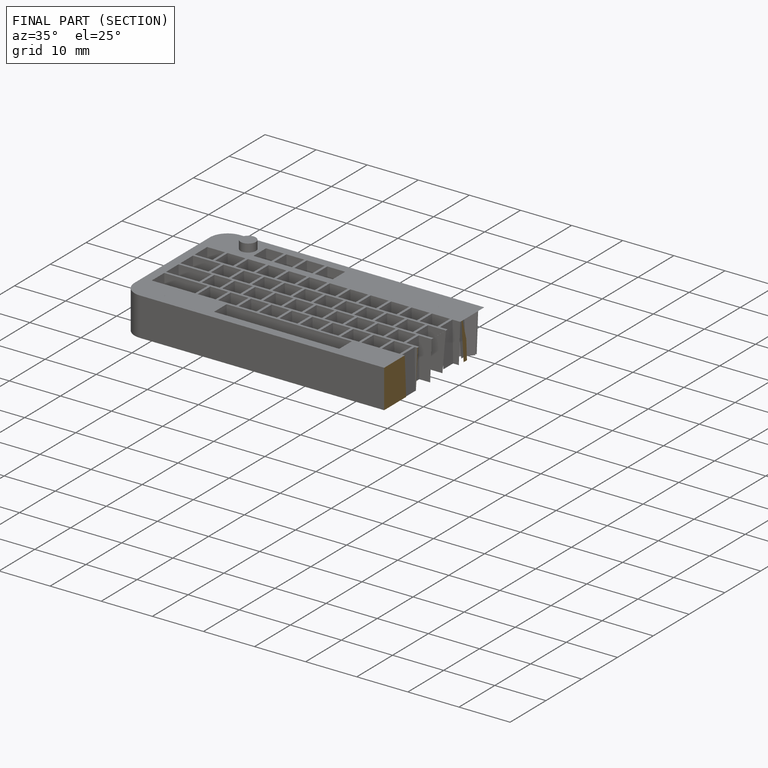
[diagram: finished part — half-section view (interior)]
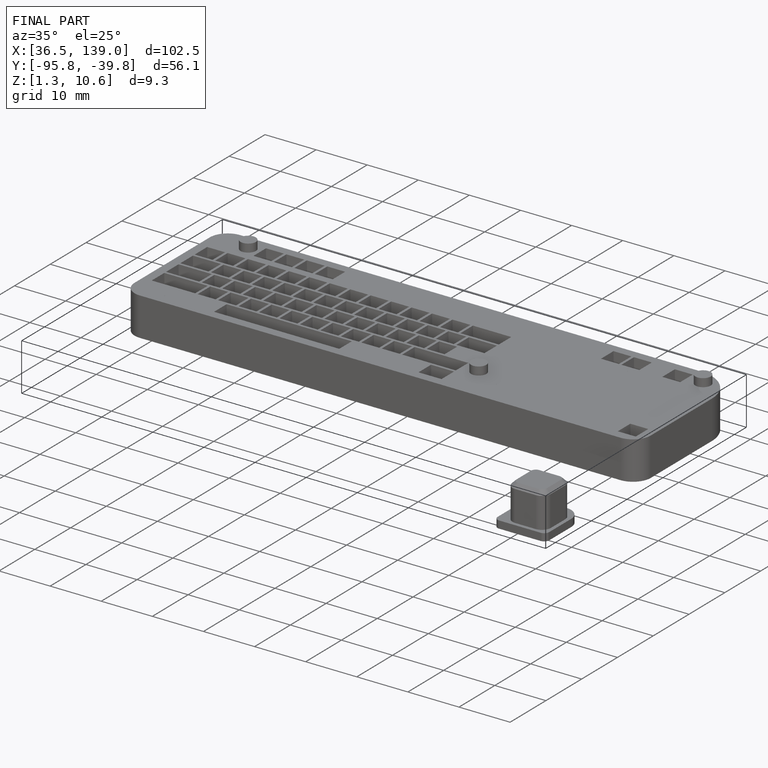
[diagram: finished part — iso view with bounding-box wireframe]
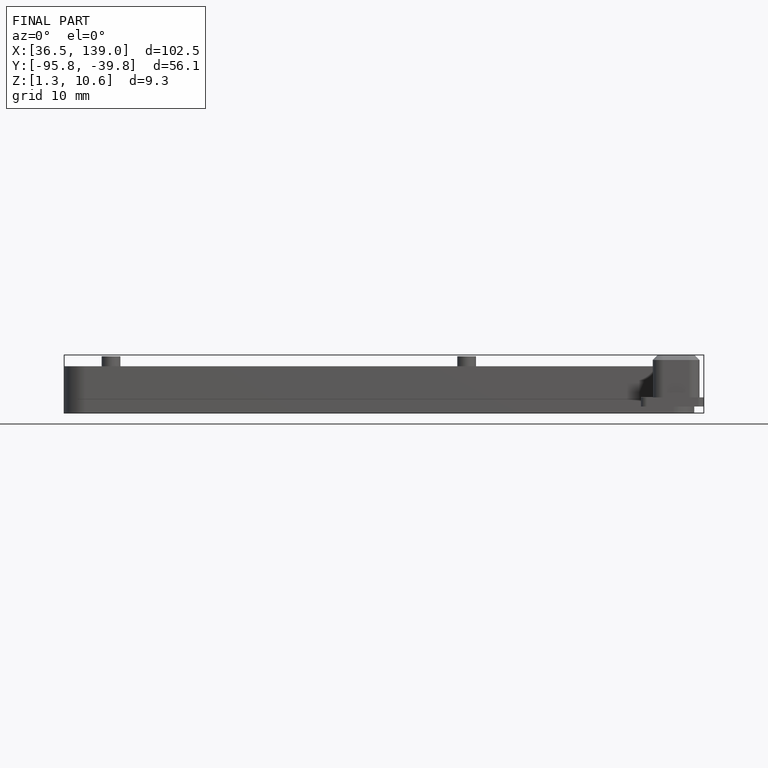
[diagram: finished part — front view with bounding-box wireframe]
